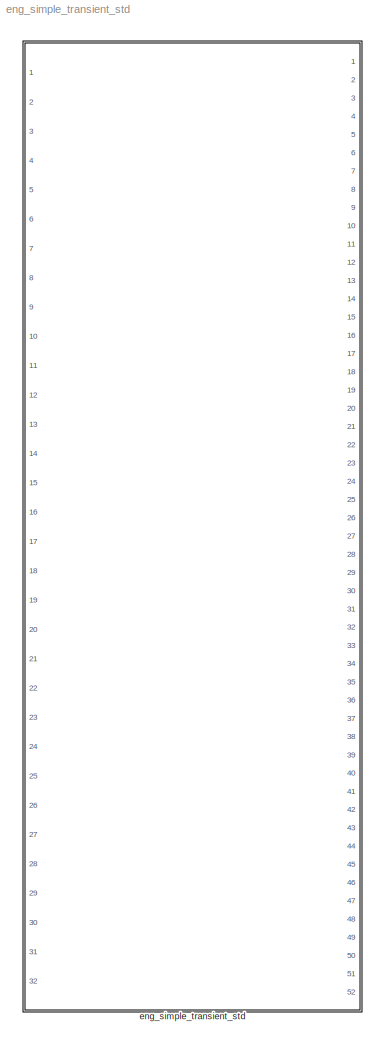
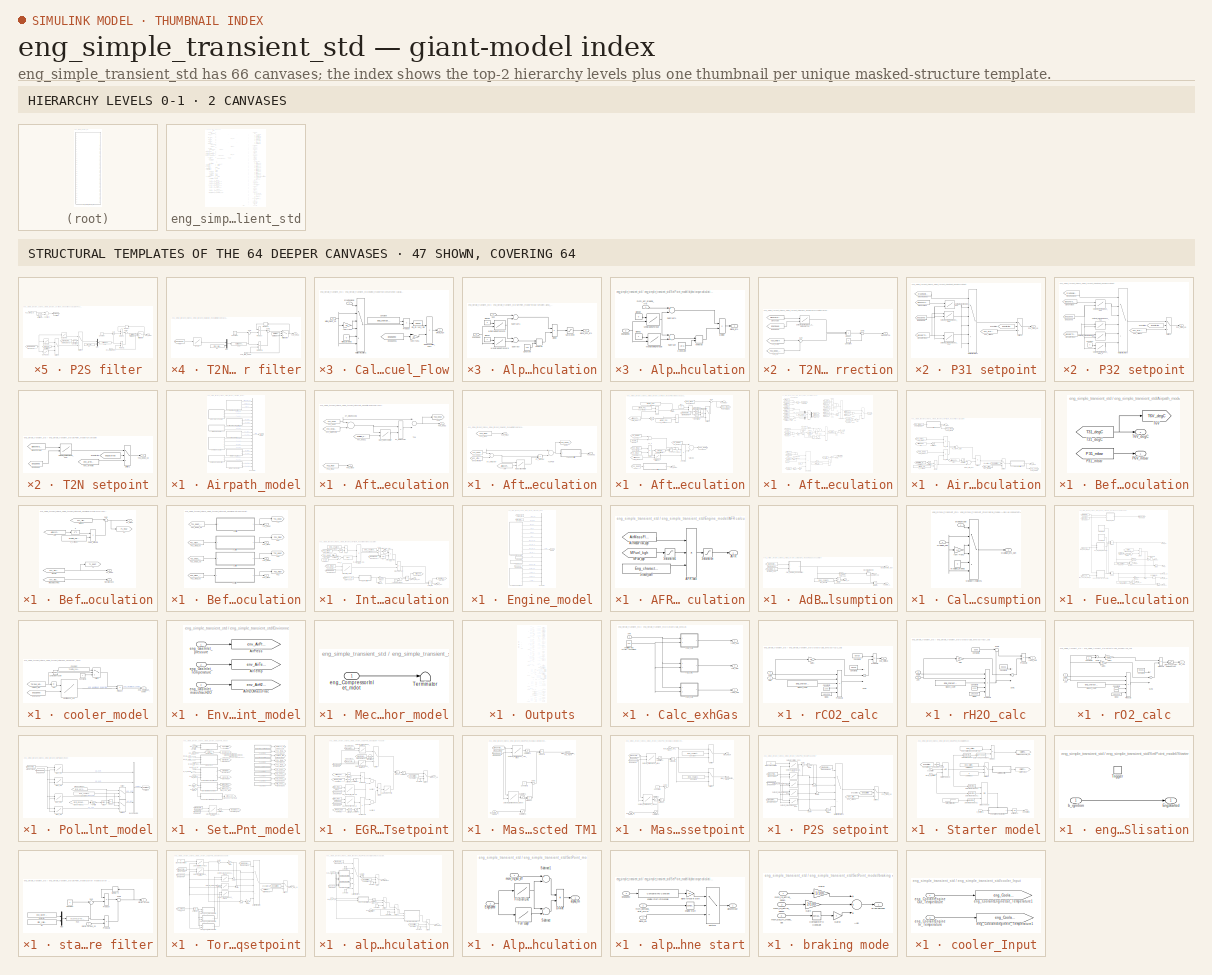
[diagram: thumbnail index - top-2 hierarchy levels (2 canvases) + 47 structural-template representatives of the remaining 64 canvases]
MODEL eng_simple_transient_std
KIND library
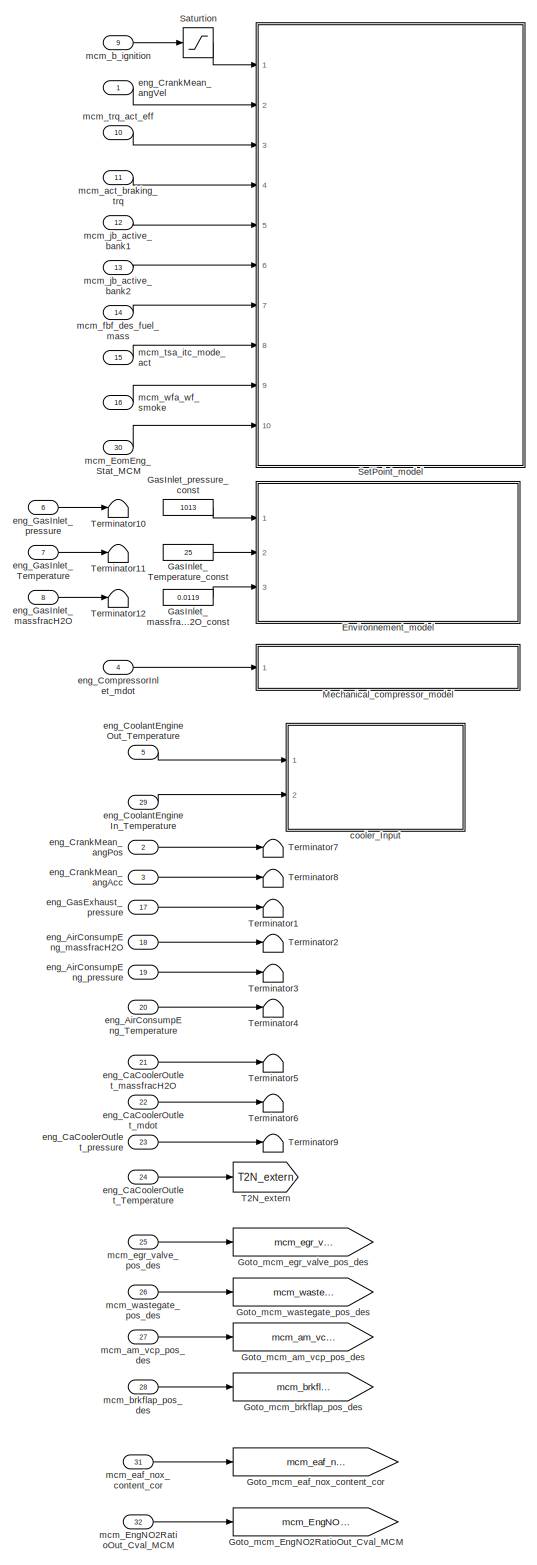
[diagram: eng_simple_transient_std - part 1/6, left side, full height]
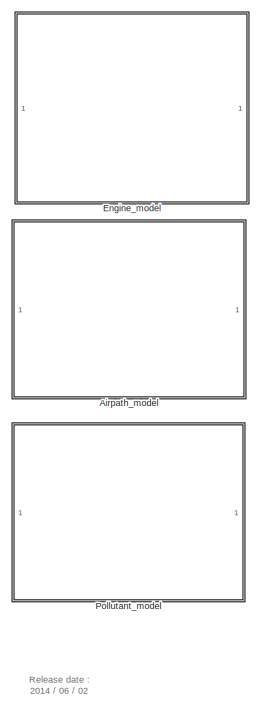
[diagram: eng_simple_transient_std - part 2/6, top center region]
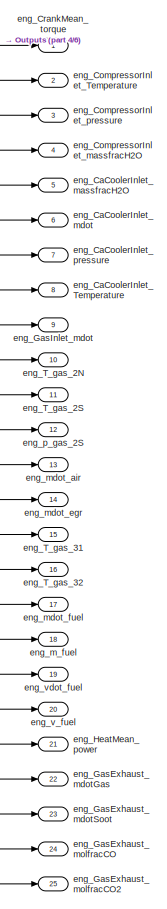
[diagram: eng_simple_transient_std - part 3/6, top right region]
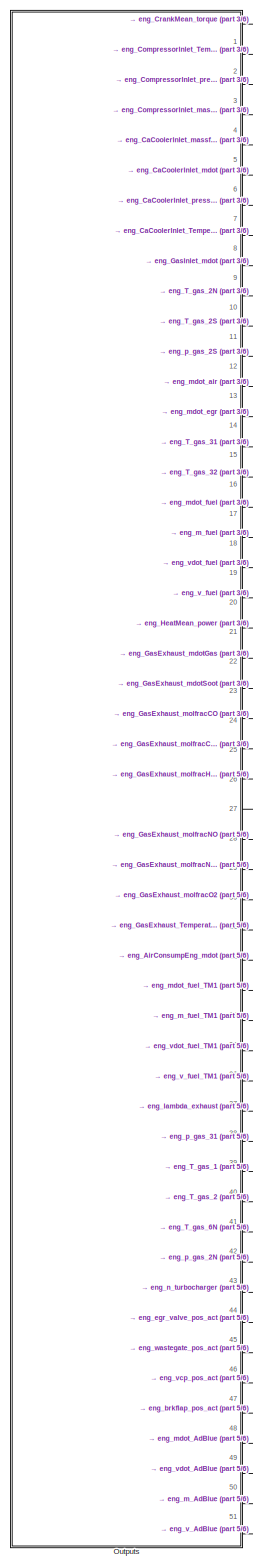
[diagram: eng_simple_transient_std - part 4/6, center side, full height]
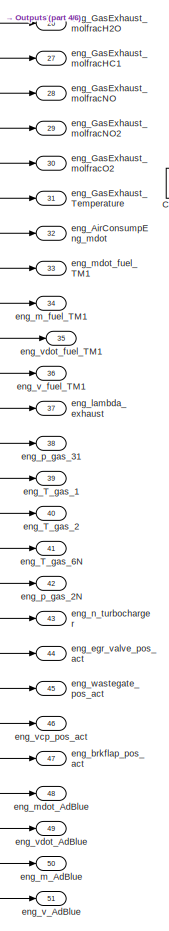
[diagram: eng_simple_transient_std - part 5/6, bottom right region]
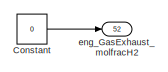
[diagram: eng_simple_transient_std - part 6/6, middle right region]
BLOCK [SubSystem] eng_simple_transient_std
  Ports = [32, 52]
  RequestExecContextInheritance = off
  SID = 1
  SystemSampleTime = 0.01
  TreatAsAtomicUnit = on
  Variant = off
BLOCK [SubSystem] eng_simple_transient_std/Airpath_model
  Ports = []
  RequestExecContextInheritance = off
  SID = 16
  Variant = off
BLOCK [SubSystem] eng_simple_transient_std/Airpath_model/After EGR cooler calculation
  Ports = [0, 2]
  RequestExecContextInheritance = off
  SID = 17
  Variant = off
BLOCK [Lookup2D] eng_simple_transient_std/Airpath_model/After EGR cooler calculation/Map_EGRcoolerEff
  ColumnIndex = Airpath_EGRcooler_x_EGR_flow
  InputSameDT = off
  RowIndex = Airpath_EGRcooler_y_delta_Temp
  SID = 18
  SaturateOnIntegerOverflow = off
  Table = Airpath_EGRcooler_z_efficiency
BLOCK [From] eng_simple_transient_std/Airpath_model/After EGR cooler calculation/P2S_mbar
  GotoTag = P2S_mbar
  SID = 19
  TagVisibility = global
BLOCK [Outport] eng_simple_transient_std/Airpath_model/After EGR cooler calculation/P6N_mbar
  IconDisplay = Port number
  SID = 27
BLOCK [Sum] eng_simple_transient_std/Airpath_model/After EGR cooler calculation/T6N
  InputSameDT = off
  Inputs = +-
  OutDataTypeStr = Inherit: Inherit via internal rule
  Ports = [2, 1]
  SID = 20
  SaturateOnIntegerOverflow = off
BLOCK [Goto] eng_simple_transient_std/Airpath_model/After EGR cooler calculation/T6N1
  GotoTag = T6N_degC
  SID = 21
  TagVisibility = global
BLOCK [Outport] eng_simple_transient_std/Airpath_model/After EGR cooler calculation/T6N_degC
  IconDisplay = Port number
  Port = 2
  SID = 28
BLOCK [From] eng_simple_transient_std/Airpath_model/After EGR cooler calculation/T6V_degC
  GotoTag = T6V_degC
  SID = 22
  TagVisibility = global
BLOCK [From] eng_simple_transient_std/Airpath_model/After EGR cooler calculation/T6V_degC1
  GotoTag = EGRflow_kgh
  SID = 23
  TagVisibility = global
BLOCK [Product] eng_simple_transient_std/Airpath_model/After EGR cooler calculation/dT_EGRcooler
  InputSameDT = off
  Inputs = **
  OutDataTypeStr = Inherit: Inherit via internal rule
  Ports = [2, 1]
  RndMeth = Floor
  SID = 24
  SaturateOnIntegerOverflow = off
BLOCK [Sum] eng_simple_transient_std/Airpath_model/After EGR cooler calculation/dT_bfEGRCooler1
  InputSameDT = off
  Inputs = +-
  OutDataTypeStr = Inherit: Inherit via internal rule
  Ports = [2, 1]
  SID = 25
  SaturateOnIntegerOverflow = off
BLOCK [From] eng_simple_transient_std/Airpath_model/After EGR cooler calculation/env_WaterTemp
  GotoTag = eng_CoolantEngineOut_Temperature
  SID = 26
  TagVisibility = global
BLOCK [SubSystem] eng_simple_transient_std/Airpath_model/After air cooler calculation
  Ports = [0, 2]
  RequestExecContextInheritance = off
  SID = 29
  Variant = off
BLOCK [From] eng_simple_transient_std/Airpath_model/After air cooler calculation/AMF
  GotoTag = AirMassFlow_kgh
  SID = 30
  TagVisibility = global
BLOCK [Goto] eng_simple_transient_std/Airpath_model/After air cooler calculation/Goto1
  GotoTag = T2N_degC_wf
  SID = 31
  TagVisibility = global
BLOCK [Lookup2D] eng_simple_transient_std/Airpath_model/After air cooler calculation/Map_AirCoolerEff
  ColumnIndex = Airpath_aircooler_x_ML_kgh
  InputSameDT = off
  LookUpMeth = Interpolation-Use End Values
  RowIndex = Airpath_aircooler_y_delta_Temp
  SID = 32
  SaturateOnIntegerOverflow = off
  Table = Airpath_aircooler_z_efficiency
BLOCK [Outport] eng_simple_transient_std/Airpath_model/After air cooler calculation/P2N_mbar
  IconDisplay = Port number
  SID = 40
BLOCK [From] eng_simple_transient_std/Airpath_model/After air cooler calculation/P2S_mbar
  GotoTag = P2S_mbar
  SID = 33
  TagVisibility = global
BLOCK [Sum] eng_simple_transient_std/Airpath_model/After air cooler calculation/T2N Flow
  InputSameDT = off
  Inputs = +-
  OutDataTypeStr = Inherit: Inherit via internal rule
  Ports = [2, 1]
  SID = 34
  SaturateOnIntegerOverflow = off
BLOCK [SubSystem] eng_simple_transient_std/Airpath_model/After air cooler calculation/T2N sensor filter
  AncestorBlock = ControlLib/# First order filter
  Ports = [1, 1]
  RequestExecContextInheritance = off
  SID = 35
  Variant = off
BLOCK [Constant] eng_simple_transient_std/Airpath_model/After air cooler calculation/T2N sensor filter/Constant
  SID = 35:2
BLOCK [DigitalClock] eng_simple_transient_std/Airpath_model/After air cooler calculation/T2N sensor filter/Digital Clock
  SID = 35:19
  SampleTime = -1
BLOCK [Fcn] eng_simple_transient_std/Airpath_model/After air cooler calculation/T2N sensor filter/Fcn
  Expr = u(2)/(u(2)+u(1))
  SID = 35:3
BLOCK [From] eng_simple_transient_std/Airpath_model/After air cooler calculation/T2N sensor filter/From
  GotoTag = EngSpeed
  SID = 35:16
  TagVisibility = global
BLOCK [Switch] eng_simple_transient_std/Airpath_model/After air cooler calculation/T2N sensor filter/Initialisation
  Criteria = u2 > Threshold
  InputSameDT = off
  SID = 35:18
  SaturateOnIntegerOverflow = off
BLOCK [Memory] eng_simple_transient_std/Airpath_model/After air cooler calculation/T2N sensor filter/Memory4
  InheritSampleTime = on
  SID = 35:5
BLOCK [Mux] eng_simple_transient_std/Airpath_model/After air cooler calculation/T2N sensor filter/Mux
  DisplayOption = bar
  Inputs = 2
  Ports = [2, 1]
  SID = 35:6
BLOCK [Product] eng_simple_transient_std/Airpath_model/After air cooler calculation/T2N sensor filter/Product
  Ports = [2, 1]
  RndMeth = Floor
  SID = 35:7
BLOCK [Product] eng_simple_transient_std/Airpath_model/After air cooler calculation/T2N sensor filter/Product1
  Ports = [2, 1]
  RndMeth = Floor
  SID = 35:8
BLOCK [Sum] eng_simple_transient_std/Airpath_model/After air cooler calculation/T2N sensor filter/Sum
  IconShape = round
  Inputs = |+-
  Ports = [2, 1]
  SID = 35:9
BLOCK [Sum] eng_simple_transient_std/Airpath_model/After air cooler calculation/T2N sensor filter/Sum1
  IconShape = round
  Inputs = |++
  Ports = [2, 1]
  SID = 35:10
BLOCK [Outport] eng_simple_transient_std/Airpath_model/After air cooler calculation/T2N sensor filter/T2N_degC
  IconDisplay = Port number
  SID = 35:13
BLOCK [Inport] eng_simple_transient_std/Airpath_model/After air cooler calculation/T2N sensor filter/T2N_flow_degC
  IconDisplay = Port number
  SID = 35:1
BLOCK [Constant] eng_simple_transient_std/Airpath_model/After air cooler calculation/T2N sensor filter/dt
  SID = 35:11
  Value = Fiter_calibration_dt
BLOCK [Lookup] eng_simple_transient_std/Airpath_model/After air cooler calculation/T2N sensor filter/tc T2N
  InputValues = Fiter_calibration_fmode_x_NMOT_rpm
  LookUpMeth = Interpolation-Use End Values
  SID = 35:15
  SaturateOnIntegerOverflow = off
  Table = Fiter_calibration_fmode_y_tc_T2N
BLOCK [Outport] eng_simple_transient_std/Airpath_model/After air cooler calculation/T2N_degC
  IconDisplay = Port number
  Port = 2
  SID = 41
BLOCK [From] eng_simple_transient_std/Airpath_model/After air cooler calculation/T2V_degC
  GotoTag = T2V_degC
  SID = 36
  TagVisibility = global
BLOCK [Product] eng_simple_transient_std/Airpath_model/After air cooler calculation/dT_AirCooler
  InputSameDT = off
  Inputs = **
  OutDataTypeStr = Inherit: Inherit via internal rule
  Ports = [2, 1]
  RndMeth = Floor
  SID = 37
  SaturateOnIntegerOverflow = off
BLOCK [Sum] eng_simple_transient_std/Airpath_model/After air cooler calculation/dT_bfAirCooler
  InputSameDT = off
  Inputs = +-
  OutDataTypeStr = Inherit: Inherit via internal rule
  Ports = [2, 1]
  SID = 38
  SaturateOnIntegerOverflow = off
BLOCK [From] eng_simple_transient_std/Airpath_model/After air cooler calculation/env_AirTemp
  GotoTag = env_AirTemp
  SID = 39
  TagVisibility = global
BLOCK [SubSystem] eng_simple_transient_std/Airpath_model/After compressor calculation
  Ports = [0, 2]
  RequestExecContextInheritance = off
  SID = 42
  Variant = off
BLOCK [Fcn] eng_simple_transient_std/Airpath_model/After compressor calculation/(P2//P1)^((g-1)//g)
  Expr = u^((1.4-1)/1.4)
  SID = 43
BLOCK [From] eng_simple_transient_std/Airpath_model/After compressor calculation/AMF_kgh
  GotoTag = AirMassFlow_kgh
  SID = 44
  TagVisibility = global
BLOCK [From] eng_simple_transient_std/Airpath_model/After compressor calculation/AMF_kgh1
  GotoTag = AirMassFlow_kgh
  SID = 45
  TagVisibility = global
BLOCK [Reference] eng_simple_transient_std/Airpath_model/After compressor calculation/Compare\nTo Constant  REF=simulink/Logic and Bit\nOperations/Compare\nTo Constant
  OutDataTypeStr = uint8
  Ports = [1, 1]
  SID = 758
  SourceBlock = simulink/Logic and Bit\nOperations/Compare\nTo Constant
  SourceType = Compare To Constant
  ZeroCross = on
  const = 3.0
  relop = <=
BLOCK [Reference] eng_simple_transient_std/Airpath_model/After compressor calculation/Compare\nTo Constant1  REF=simulink/Logic and Bit\nOperations/Compare\nTo Constant
  OutDataTypeStr = uint8
  Ports = [1, 1]
  SID = 759
  SourceBlock = simulink/Logic and Bit\nOperations/Compare\nTo Constant
  SourceType = Compare To Constant
  ZeroCross = on
  const = 1
  relop = >=
BLOCK [Lookup2D] eng_simple_transient_std/Airpath_model/After compressor calculation/Compressor efficiency
  ColumnIndex = Airpath_compressor_x_massFlow_kgh
  InputSameDT = off
  LookUpMeth = Interpolation-Use End Values
  RowIndex = Airpath_compressor_y_PressRatio
  SID = 46
  SaturateOnIntegerOverflow = off
  Table = Airpath_compressor_z_Efficiency
BLOCK [Logic] eng_simple_transient_std/Airpath_model/After compressor calculation/Logical\nOperator
  AllPortsSameDT = off
  OutDataTypeStr = boolean
  Ports = [2, 1]
  SID = 760
BLOCK [MinMax] eng_simple_transient_std/Airpath_model/After compressor calculation/MinMax
  Function = max
  InputSameDT = off
  Inputs = 2
  Ports = [2, 1]
  SID = 47
  SaturateOnIntegerOverflow = off
BLOCK [Fcn] eng_simple_transient_std/Airpath_model/After compressor calculation/P
  Expr = u^2
  SID = 48
BLOCK [From] eng_simple_transient_std/Airpath_model/After compressor calculation/P1_mbar
  GotoTag = P1_mbar
  SID = 49
  TagVisibility = global
BLOCK [Product] eng_simple_transient_std/Airpath_model/After compressor calculation/P2//P1
  InputSameDT = off
  Inputs = */
  OutDataTypeStr = Inherit: Inherit via internal rule
  Ports = [2, 1]
  RndMeth = Floor
  SID = 50
  SaturateOnIntegerOverflow = off
BLOCK [From] eng_simple_transient_std/Airpath_model/After compressor calculation/P2S_mbar
  GotoTag = P2S_mbar
  SID = 51
  TagVisibility = global
BLOCK [Outport] eng_simple_transient_std/Airpath_model/After compressor calculation/P2V_mbar
  IconDisplay = Port number
  SID = 75
BLOCK [From] eng_simple_transient_std/Airpath_model/After compressor calculation/P2V_mbar1
  GotoTag = P2V_mbar
  SID = 52
  TagVisibility = global
BLOCK [Goto] eng_simple_transient_std/Airpath_model/After compressor calculation/P2V_mbar_2
  GotoTag = P2V_mbar
  SID = 53
  TagVisibility = global
BLOCK [Product] eng_simple_transient_std/Airpath_model/After compressor calculation/PxV1
  InputSameDT = off
  OutDataTypeStr = Inherit: Inherit via internal rule
  Ports = [2, 1]
  SID = 54
  SaturateOnIntegerOverflow = off
BLOCK [Product] eng_simple_transient_std/Airpath_model/After compressor calculation/PxV2
  InputSameDT = off
  OutDataTypeStr = Inherit: Inherit via internal rule
  Ports = [2, 1]
  SID = 55
  SaturateOnIntegerOverflow = off
BLOCK [Sum] eng_simple_transient_std/Airpath_model/After compressor calculation/Sum
  IconShape = round
  InputSameDT = off
  Inputs = |++
  OutDataTypeStr = Inherit: Inherit via internal rule
  Ports = [2, 1]
  SID = 56
  SaturateOnIntegerOverflow = off
BLOCK [Sum] eng_simple_transient_std/Airpath_model/After compressor calculation/Sum1
  IconShape = round
  InputSameDT = off
  Inputs = ++|
  OutDataTypeStr = Inherit: Inherit via internal rule
  Ports = [2, 1]
  SID = 57
  SaturateOnIntegerOverflow = off
BLOCK [Switch] eng_simple_transient_std/Airpath_model/After compressor calculation/Switch3
  Criteria = u2 > Threshold
  InputSameDT = off
  SID = 58
  SaturateOnIntegerOverflow = off
BLOCK [Sum] eng_simple_transient_std/Airpath_model/After compressor calculation/T1_K
  InputSameDT = off
  OutDataTypeStr = Inherit: Inherit via internal rule
  Ports = [2, 1]
  SID = 59
  SaturateOnIntegerOverflow = off
BLOCK [From] eng_simple_transient_std/Airpath_model/After compressor calculation/T1_degC
  GotoTag = T1_degC
  SID = 60
  TagVisibility = global
BLOCK [From] eng_simple_transient_std/Airpath_model/After compressor calculation/T1_degC1
  GotoTag = T1_degC
  SID = 61
  TagVisibility = global
BLOCK [Goto] eng_simple_transient_std/Airpath_model/After compressor calculation/T2V
  GotoTag = T2V_degC
  SID = 62
  TagVisibility = global
BLOCK [SubSystem] eng_simple_transient_std/Airpath_model/After compressor calculation/T2V sensor filter
  AncestorBlock = ControlLib/# First order filter
  Ports = [1, 1]
  RequestExecContextInheritance = off
  SID = 63
  Variant = off
BLOCK [Constant] eng_simple_transient_std/Airpath_model/After compressor calculation/T2V sensor filter/Constant
  SID = 63:2
BLOCK [DigitalClock] eng_simple_transient_std/Airpath_model/After compressor calculation/T2V sensor filter/Digital Clock
  SID = 63:19
  SampleTime = -1
BLOCK [From] eng_simple_transient_std/Airpath_model/After compressor calculation/T2V sensor filter/EngSpeed
  GotoTag = EngSpeed
  SID = 63:16
  TagVisibility = global
BLOCK [Fcn] eng_simple_transient_std/Airpath_model/After compressor calculation/T2V sensor filter/Fcn
  Expr = u(2)/(u(2)+u(1))
  SID = 63:3
BLOCK [Switch] eng_simple_transient_std/Airpath_model/After compressor calculation/T2V sensor filter/Initialisation
  Criteria = u2 > Threshold
  InputSameDT = off
  SID = 63:18
  SaturateOnIntegerOverflow = off
BLOCK [Memory] eng_simple_transient_std/Airpath_model/After compressor calculation/T2V sensor filter/Memory4
  InheritSampleTime = on
  SID = 63:5
BLOCK [Mux] eng_simple_transient_std/Airpath_model/After compressor calculation/T2V sensor filter/Mux
  DisplayOption = bar
  Inputs = 2
  Ports = [2, 1]
  SID = 63:6
BLOCK [Product] eng_simple_transient_std/Airpath_model/After compressor calculation/T2V sensor filter/Product
  Ports = [2, 1]
  RndMeth = Floor
  SID = 63:7
BLOCK [Product] eng_simple_transient_std/Airpath_model/After compressor calculation/T2V sensor filter/Product1
  Ports = [2, 1]
  RndMeth = Floor
  SID = 63:8
BLOCK [Sum] eng_simple_transient_std/Airpath_model/After compressor calculation/T2V sensor filter/Sum
  IconShape = round
  Inputs = |+-
  Ports = [2, 1]
  SID = 63:9
BLOCK [Sum] eng_simple_transient_std/Airpath_model/After compressor calculation/T2V sensor filter/Sum1
  IconShape = round
  Inputs = |++
  Ports = [2, 1]
  SID = 63:10
BLOCK [Outport] eng_simple_transient_std/Airpath_model/After compressor calculation/T2V sensor filter/T2V_degC
  IconDisplay = Port number
  SID = 63:13
BLOCK [Inport] eng_simple_transient_std/Airpath_model/After compressor calculation/T2V sensor filter/T2V_flow_degC
  IconDisplay = Port number
  SID = 63:1
BLOCK [Constant] eng_simple_transient_std/Airpath_model/After compressor calculation/T2V sensor filter/dt
  SID = 63:11
  Value = Fiter_calibration_dt
BLOCK [Lookup] eng_simple_transient_std/Airpath_model/After compressor calculation/T2V sensor filter/tc T2V
  InputValues = Fiter_calibration_fmode_x_NMOT_rpm
  LookUpMeth = Interpolation-Use End Values
  SID = 63:14
  SaturateOnIntegerOverflow = off
  Table = Fiter_calibration_fmode_y_tc_T2V
BLOCK [From] eng_simple_transient_std/Airpath_model/After compressor calculation/T2V1
  GotoTag = T2V_degC
  SID = 64
  TagVisibility = global
BLOCK [Outport] eng_simple_transient_std/Airpath_model/After compressor calculation/T2V_degC
  IconDisplay = Port number
  Port = 2
  SID = 76
BLOCK [Product] eng_simple_transient_std/Airpath_model/After compressor calculation/T2_ad
  InputSameDT = off
  Inputs = **
  OutDataTypeStr = Inherit: Inherit via internal rule
  Ports = [2, 1]
  RndMeth = Floor
  SID = 65
  SaturateOnIntegerOverflow = off
BLOCK [Sum] eng_simple_transient_std/Airpath_model/After compressor calculation/TaftComp
  InputSameDT = off
  OutDataTypeStr = Inherit: Inherit via internal rule
  Ports = [2, 1]
  SID = 66
  SaturateOnIntegerOverflow = off
BLOCK [From] eng_simple_transient_std/Airpath_model/After compressor calculation/brakingMode
  GotoTag = brakingMode
  SID = 67
  TagVisibility = global
BLOCK [Product] eng_simple_transient_std/Airpath_model/After compressor calculation/dTcomp
  InputSameDT = off
  Inputs = */
  OutDataTypeStr = Inherit: Inherit via internal rule
  Ports = [2, 1]
  RndMeth = Floor
  SID = 68
  SaturateOnIntegerOverflow = off
BLOCK [Sum] eng_simple_transient_std/Airpath_model/After compressor calculation/dTcompAd
  InputSameDT = off
  Inputs = -+
  OutDataTypeStr = Inherit: Inherit via internal rule
  Ports = [2, 1]
  SID = 69
  SaturateOnIntegerOverflow = off
BLOCK [Constant] eng_simple_transient_std/Airpath_model/After compressor calculation/deg->K
  SID = 70
  Value = 273.15
BLOCK [Constant] eng_simple_transient_std/Airpath_model/After compressor calculation/max
  SID = 71
  Value = 0
BLOCK [Constant] eng_simple_transient_std/Airpath_model/After compressor calculation/n_cylinder
  SID = 72
  Value = Airpath_Pdrop_aircooler_coeff
BLOCK [Constant] eng_simple_transient_std/Airpath_model/After compressor calculation/n_cylinder1
  SID = 73
  Value = Airpath_Pdrop_aircooler_coeffBr_a1
BLOCK [Constant] eng_simple_transient_std/Airpath_model/After compressor calculation/n_cylinder2
  SID = 74
  Value = Airpath_Pdrop_aircooler_coeffBr_a2
BLOCK [SubSystem] eng_simple_transient_std/Airpath_model/After turbine calculation
  Ports = [0, 2]
  RequestExecContextInheritance = off
  SID = 77
  Variant = off
BLOCK [Fcn] eng_simple_transient_std/Airpath_model/After turbine calculation/(P4//P3)^((g-1)//g)
  Expr = u^((1.4-1)/1.4)
  SID = 78
BLOCK [From] eng_simple_transient_std/Airpath_model/After turbine calculation/AMF
  GotoTag = AirMassFlow_kgh
  SID = 79
  TagVisibility = global
BLOCK [From] eng_simple_transient_std/Airpath_model/After turbine calculation/AMF1
  GotoTag = AirMassFlow_kgh
  SID = 80
  TagVisibility = global
BLOCK [Sum] eng_simple_transient_std/Airpath_model/After turbine calculation/Add
  InputSameDT = off
  OutDataTypeStr = Inherit: Inherit via internal rule
  Ports = [2, 1]
  SID = 81
  SaturateOnIntegerOverflow = off
BLOCK [Sum] eng_simple_transient_std/Airpath_model/After turbine calculation/Add1
  InputSameDT = off
  OutDataTypeStr = Inherit: Inherit via internal rule
  Ports = [2, 1]
  SID = 82
  SaturateOnIntegerOverflow = off
BLOCK [Sum] eng_simple_transient_std/Airpath_model/After turbine calculation/Add4
  InputSameDT = off
  Inputs = +-
  OutDataTypeStr = Inherit: Inherit via internal rule
  Ports = [2, 1]
  SID = 83
  SaturateOnIntegerOverflow = off
BLOCK [Sum] eng_simple_transient_std/Airpath_model/After turbine calculation/Add6
  InputSameDT = off
  Inputs = +-
  OutDataTypeStr = Inherit: Inherit via internal rule
  Ports = [2, 1]
  SID = 84
  SaturateOnIntegerOverflow = off
BLOCK [Demux] eng_simple_transient_std/Airpath_model/After turbine calculation/Demux
  DisplayOption = bar
  Outputs = 2
  Ports = [1, 2]
  SID = 85
BLOCK [From] eng_simple_transient_std/Airpath_model/After turbine calculation/EGRflow
  GotoTag = EGRflow_kgh
  SID = 86
  TagVisibility = global
BLOCK [From] eng_simple_transient_std/Airpath_model/After turbine calculation/EGRflow3
  GotoTag = EGRflow_kgh
  SID = 87
  TagVisibility = global
BLOCK [From] eng_simple_transient_std/Airpath_model/After turbine calculation/EGRflow5
  GotoTag = EGRflow_kgh
  SID = 88
  TagVisibility = global
BLOCK [From] eng_simple_transient_std/Airpath_model/After turbine calculation/EGRflow7
  GotoTag = beforeEGRflow
  SID = 89
  TagVisibility = global
BLOCK [Sum] eng_simple_transient_std/Airpath_model/After turbine calculation/ExhaustMassFlow
  InputSameDT = off
  OutDataTypeStr = Inherit: Inherit via internal rule
  Ports = [2, 1]
  SID = 90
  SaturateOnIntegerOverflow = off
BLOCK [Sum] eng_simple_transient_std/Airpath_model/After turbine calculation/ExhaustMassFlow1
  InputSameDT = off
  Inputs = +++
  OutDataTypeStr = Inherit: Inherit via internal rule
  Ports = [3, 1]
  SID = 91
  SaturateOnIntegerOverflow = off
BLOCK [Product] eng_simple_transient_std/Airpath_model/After turbine calculation/ExhaustVolFlow
  InputSameDT = off
  Inputs = ***/
  OutDataTypeStr = Inherit: Inherit via internal rule
  Ports = [4, 1]
  RndMeth = Floor
  SID = 92
  SaturateOnIntegerOverflow = off
BLOCK [Gain] eng_simple_transient_std/Airpath_model/After turbine calculation/Gain1
  Gain = 1/2
  OutDataTypeStr = Inherit: Inherit via internal rule
  ParamDataTypeStr = Inherit: Inherit via internal rule
  SID = 93
  SaturateOnIntegerOverflow = off
BLOCK [Gain] eng_simple_transient_std/Airpath_model/After turbine calculation/Gain2
  Gain = 1/2
  OutDataTypeStr = Inherit: Inherit via internal rule
  ParamDataTypeStr = Inherit: Inherit via internal rule
  SID = 94
  SaturateOnIntegerOverflow = off
BLOCK [Gain] eng_simple_transient_std/Airpath_model/After turbine calculation/Gain3
  Gain = 1/2
  OutDataTypeStr = Inherit: Inherit via internal rule
  ParamDataTypeStr = Inherit: Inherit via internal rule
  SID = 95
  SaturateOnIntegerOverflow = off
BLOCK [Gain] eng_simple_transient_std/Airpath_model/After turbine calculation/Gain6
  Gain = 1/2
  OutDataTypeStr = Inherit: Inherit via internal rule
  ParamDataTypeStr = Inherit: Inherit via internal rule
  SID = 96
  SaturateOnIntegerOverflow = off
BLOCK [Sum] eng_simple_transient_std/Airpath_model/After turbine calculation/MFlow1
  InputSameDT = off
  OutDataTypeStr = Inherit: Inherit via internal rule
  Ports = [2, 1]
  SID = 97
  SaturateOnIntegerOverflow = off
BLOCK [Sum] eng_simple_transient_std/Airpath_model/After turbine calculation/MFlow2
  InputSameDT = off
  OutDataTypeStr = Inherit: Inherit via internal rule
  Ports = [2, 1]
  SID = 98
  SaturateOnIntegerOverflow = off
BLOCK [Sum] eng_simple_transient_std/Airpath_model/After turbine calculation/MFlow3
  InputSameDT = off
  OutDataTypeStr = Inherit: Inherit via internal rule
  Ports = [2, 1]
  SID = 99
  SaturateOnIntegerOverflow = off
BLOCK [Goto] eng_simple_transient_std/Airpath_model/After turbine calculation/MFlow31_kgh
  GotoTag = MFlow31_kgh
  SID = 100
BLOCK [From] eng_simple_transient_std/Airpath_model/After turbine calculation/MFlow31_kgh1
  GotoTag = MFlow31_kgh
  SID = 101
BLOCK [From] eng_simple_transient_std/Airpath_model/After turbine calculation/MFlow31_kgh2
  GotoTag = MFlow31_kgh
  SID = 102
BLOCK [From] eng_simple_transient_std/Airpath_model/After turbine calculation/MFlow31_kgh3
  GotoTag = MFlow31_kgh
  SID = 103
BLOCK [Goto] eng_simple_transient_std/Airpath_model/After turbine calculation/MFlow32_kgh
  GotoTag = MFlow32_kgh
  SID = 104
BLOCK [From] eng_simple_transient_std/Airpath_model/After turbine calculation/MFlow32_kgh1
  GotoTag = MFlow32_kgh
  SID = 105
BLOCK [From] eng_simple_transient_std/Airpath_model/After turbine calculation/MFlow32_kgh2
  GotoTag = MFlow32_kgh
  SID = 106
BLOCK [From] eng_simple_transient_std/Airpath_model/After turbine calculation/MFlow32_kgh3
  GotoTag = MFlow32_kgh
  SID = 107
BLOCK [From] eng_simple_transient_std/Airpath_model/After turbine calculation/Mfuel
  GotoTag = MFuel_kgh
  SID = 108
  TagVisibility = global
BLOCK [From] eng_simple_transient_std/Airpath_model/After turbine calculation/Mfuel1
  GotoTag = MFuel_kgh
  SID = 109
  TagVisibility = global
BLOCK [Mux] eng_simple_transient_std/Airpath_model/After turbine calculation/Mux
  DisplayOption = bar
  Inputs = 2
  Ports = [2, 1]
  SID = 110
BLOCK [Mux] eng_simple_transient_std/Airpath_model/After turbine calculation/Mux1
  DisplayOption = bar
  Inputs = 2
  Ports = [2, 1]
  SID = 111
BLOCK [Fcn] eng_simple_transient_std/Airpath_model/After turbine calculation/P
  Expr = u^2
  SID = 112
BLOCK [From] eng_simple_transient_std/Airpath_model/After turbine calculation/P31_mbar
  GotoTag = P31_mbar
  SID = 113
  TagVisibility = global
BLOCK [From] eng_simple_transient_std/Airpath_model/After turbine calculation/P32_mbar
  GotoTag = P32_mbar
  SID = 114
  TagVisibility = global
BLOCK [Product] eng_simple_transient_std/Airpath_model/After turbine calculation/P4//P3
  InputSameDT = off
  Inputs = */
  OutDataTypeStr = Inherit: Inherit via internal rule
  Ports = [2, 1]
  RndMeth = Floor
  SID = 115
  SaturateOnIntegerOverflow = off
BLOCK [Product] eng_simple_transient_std/Airpath_model/After turbine calculation/P4//P3_2
  InputSameDT = off
  Inputs = */
  OutDataTypeStr = Inherit: Inherit via internal rule
  Ports = [2, 1]
  RndMeth = Floor
  SID = 116
  SaturateOnIntegerOverflow = off
BLOCK [Outport] eng_simple_transient_std/Airpath_model/After turbine calculation/P4_mbar
  IconDisplay = Port number
  SID = 157
BLOCK [From] eng_simple_transient_std/Airpath_model/After turbine calculation/P4_mbar1
  GotoTag = P4_mbar
  SID = 117
BLOCK [Goto] eng_simple_transient_std/Airpath_model/After turbine calculation/P4_mbar2
  GotoTag = P4_mbar
  SID = 118
BLOCK [From] eng_simple_transient_std/Airpath_model/After turbine calculation/P4_mbar3
  GotoTag = P4_mbar
  SID = 119
BLOCK [Product] eng_simple_transient_std/Airpath_model/After turbine calculation/Product
  InputSameDT = off
  OutDataTypeStr = Inherit: Inherit via internal rule
  Ports = [2, 1]
  SID = 120
  SaturateOnIntegerOverflow = off
BLOCK [Product] eng_simple_transient_std/Airpath_model/After turbine calculation/Product1
  InputSameDT = off
  OutDataTypeStr = Inherit: Inherit via internal rule
  Ports = [2, 1]
  SID = 121
  SaturateOnIntegerOverflow = off
BLOCK [Product] eng_simple_transient_std/Airpath_model/After turbine calculation/PxV2
  InputSameDT = off
  OutDataTypeStr = Inherit: Inherit via internal rule
  Ports = [2, 1]
  SID = 122
  SaturateOnIntegerOverflow = off
BLOCK [Saturate] eng_simple_transient_std/Airpath_model/After turbine calculation/Saturation
  InputPortMap = u0
  LowerLimit = 0.1
  Ports = [1, 1]
  SID = 123
  UpperLimit = inf
BLOCK [Sum] eng_simple_transient_std/Airpath_model/After turbine calculation/Sum
  IconShape = round
  InputSameDT = off
  Inputs = |++
  OutDataTypeStr = Inherit: Inherit via internal rule
  Ports = [2, 1]
  SID = 124
  SaturateOnIntegerOverflow = off
BLOCK [Sum] eng_simple_transient_std/Airpath_model/After turbine calculation/Sum2
  IconShape = round
  InputSameDT = off
  Inputs = |++
  OutDataTypeStr = Inherit: Inherit via internal rule
  Ports = [2, 1]
  SID = 125
  SaturateOnIntegerOverflow = off
BLOCK [Switch] eng_simple_transient_std/Airpath_model/After turbine calculation/Switch1
  Criteria = u2 > Threshold
  InputSameDT = off
  SID = 126
  SaturateOnIntegerOverflow = off
BLOCK [Switch] eng_simple_transient_std/Airpath_model/After turbine calculation/Switch3
  Criteria = u2 > Threshold
  InputSameDT = off
  SID = 127
  SaturateOnIntegerOverflow = off
BLOCK [Product] eng_simple_transient_std/Airpath_model/After turbine calculation/T3 weighted mean
  InputSameDT = off
  Inputs = */
  OutDataTypeStr = Inherit: Inherit via internal rule
  Ports = [2, 1]
  RndMeth = Floor
  SID = 128
  SaturateOnIntegerOverflow = off
BLOCK [From] eng_simple_transient_std/Airpath_model/After turbine calculation/T31_degC
  GotoTag = T31_degC
  SID = 129
  TagVisibility = global
BLOCK [From] eng_simple_transient_std/Airpath_model/After turbine calculation/T31_degC1
  GotoTag = T32_degC
  SID = 130
  TagVisibility = global
BLOCK [From] eng_simple_transient_std/Airpath_model/After turbine calculation/T31_degC2
  GotoTag = T31_degC
  SID = 131
  TagVisibility = global
BLOCK [From] eng_simple_transient_std/Airpath_model/After turbine calculation/T31_degC3
  GotoTag = T32_degC
  SID = 132
  TagVisibility = global
BLOCK [Goto] eng_simple_transient_std/Airpath_model/After turbine calculation/T3_degC
  GotoTag = T3_degC
  SID = 133
BLOCK [From] eng_simple_transient_std/Airpath_model/After turbine calculation/T3_degC2
  GotoTag = T3_degC
  SID = 134
BLOCK [From] eng_simple_transient_std/Airpath_model/After turbine calculation/T3_degC3
  GotoTag = T3_degC
  SID = 135
BLOCK [Product] eng_simple_transient_std/Airpath_model/After turbine calculation/T4_ad
  InputSameDT = off
  Inputs = **
  OutDataTypeStr = Inherit: Inherit via internal rule
  Ports = [2, 1]
  RndMeth = Floor
  SID = 136
  SaturateOnIntegerOverflow = off
BLOCK [Outport] eng_simple_transient_std/Airpath_model/After turbine calculation/T4_degC
  IconDisplay = Port number
  Port = 2
  SID = 158
BLOCK [Goto] eng_simple_transient_std/Airpath_model/After turbine calculation/T4_degC1
  GotoTag = T4_degC
  SID = 137
BLOCK [From] eng_simple_transient_std/Airpath_model/After turbine calculation/T4_degC2
  GotoTag = T4_degC
  SID = 138
BLOCK [Sum] eng_simple_transient_std/Airpath_model/After turbine calculation/TaftTurb
  InputSameDT = off
  Inputs = +-
  OutDataTypeStr = Inherit: Inherit via internal rule
  Ports = [2, 1]
  SID = 139
  SaturateOnIntegerOverflow = off
BLOCK [Sum] eng_simple_transient_std/Airpath_model/After turbine calculation/TbfTurb_K
  InputSameDT = off
  OutDataTypeStr = Inherit: Inherit via internal rule
  Ports = [2, 1]
  SID = 140
  SaturateOnIntegerOverflow = off
BLOCK [Lookup] eng_simple_transient_std/Airpath_model/After turbine calculation/Turbine efficiency
  InputValues = Airpath_turbine_x_PressRatio
  SID = 141
  SaturateOnIntegerOverflow = off
  Table = Airpath_turbine_y_Efficiency
BLOCK [UnitDelay] eng_simple_transient_std/Airpath_model/After turbine calculation/Unit Delay
  InitialCondition = 20
  SID = 142
  SampleTime = -1
BLOCK [UnitDelay] eng_simple_transient_std/Airpath_model/After turbine calculation/Unit Delay1
  InitialCondition = 1000
  SID = 143
  SampleTime = -1
BLOCK [Constant] eng_simple_transient_std/Airpath_model/After turbine calculation/assymetric turbine2
  SID = 144
  Value = Eng_characteristics_assymTurbine
BLOCK [Goto] eng_simple_transient_std/Airpath_model/After turbine calculation/beforeEGRflow
  GotoTag = beforeEGRflow
  SID = 145
BLOCK [From] eng_simple_transient_std/Airpath_model/After turbine calculation/beforeEGRflow5
  GotoTag = beforeEGRflow
  SID = 146
BLOCK [From] eng_simple_transient_std/Airpath_model/After turbine calculation/beforeEGRflow6
  GotoTag = beforeEGRflow
  SID = 147
BLOCK [Constant] eng_simple_transient_std/Airpath_model/After turbine calculation/const
  SID = 148
BLOCK [Product] eng_simple_transient_std/Airpath_model/After turbine calculation/dTturb
  InputSameDT = off
  Inputs = **
  OutDataTypeStr = Inherit: Inherit via internal rule
  Ports = [2, 1]
  RndMeth = Floor
  SID = 149
  SaturateOnIntegerOverflow = off
BLOCK [Sum] eng_simple_transient_std/Airpath_model/After turbine calculation/dTturbAd
  InputSameDT = off
  Inputs = +-
  OutDataTypeStr = Inherit: Inherit via internal rule
  Ports = [2, 1]
  SID = 150
  SaturateOnIntegerOverflow = off
BLOCK [Constant] eng_simple_transient_std/Airpath_model/After turbine calculation/deg->K
  SID = 151
  Value = 273.15
BLOCK [Constant] eng_simple_transient_std/Airpath_model/After turbine calculation/degC->K
  SID = 152
  Value = 273.15
BLOCK [From] eng_simple_transient_std/Airpath_model/After turbine calculation/env_AirPress
  GotoTag = env_AirPress
  SID = 153
  TagVisibility = global
BLOCK [Gain] eng_simple_transient_std/Airpath_model/After turbine calculation/gain
  Gain = 100
  OutDataTypeStr = Inherit: Inherit via internal rule
  ParamDataTypeStr = Inherit: Inherit via internal rule
  SID = 154
  SaturateOnIntegerOverflow = off
BLOCK [Constant] eng_simple_transient_std/Airpath_model/After turbine calculation/n_cylinder1
  SID = 155
  Value = Airpath_Pdrop_aftTurb_coeff
BLOCK [Constant] eng_simple_transient_std/Airpath_model/After turbine calculation/r
  SID = 156
  Value = 287
BLOCK [SubSystem] eng_simple_transient_std/Airpath_model/Airbox calculation
  Ports = [0, 2]
  RequestExecContextInheritance = off
  SID = 159
  Variant = off
BLOCK [From] eng_simple_transient_std/Airpath_model/Airbox calculation/AMF
  GotoTag = AirMassFlow_kgh
  SID = 160
  TagVisibility = global
BLOCK [From] eng_simple_transient_std/Airpath_model/Airbox calculation/AMF1
  GotoTag = AirMassFlow_kgh
  SID = 161
  TagVisibility = global
BLOCK [From] eng_simple_transient_std/Airpath_model/Airbox calculation/EGRflow
  GotoTag = EGRflow_kgh
  SID = 162
  TagVisibility = global
BLOCK [From] eng_simple_transient_std/Airpath_model/Airbox calculation/EngStarted
  GotoTag = EngStarted
  SID = 163
  TagVisibility = global
BLOCK [Product] eng_simple_transient_std/Airpath_model/Airbox calculation/FT_AIR
  InputSameDT = off
  OutDataTypeStr = Inherit: Inherit via internal rule
  Ports = [2, 1]
  SID = 164
  SaturateOnIntegerOverflow = off
BLOCK [Sum] eng_simple_transient_std/Airpath_model/Airbox calculation/FT_AIR+FT_EGR
  InputSameDT = off
  OutDataTypeStr = Inherit: Inherit via internal rule
  Ports = [2, 1]
  SID = 165
  SaturateOnIntegerOverflow = off
BLOCK [Product] eng_simple_transient_std/Airpath_model/Airbox calculation/FT_EGR
  InputSameDT = off
  OutDataTypeStr = Inherit: Inherit via internal rule
  Ports = [2, 1]
  SID = 166
  SaturateOnIntegerOverflow = off
BLOCK [Sum] eng_simple_transient_std/Airpath_model/Airbox calculation/Intake_flow_kgh
  InputSameDT = off
  OutDataTypeStr = Inherit: Inherit via internal rule
  Ports = [2, 1]
  SID = 167
  SaturateOnIntegerOverflow = off
BLOCK [SubSystem] eng_simple_transient_std/Airpath_model/Airbox calculation/P2S filter
  AncestorBlock = ControlLib/# First order filter
  Ports = [1, 1]
  RequestExecContextInheritance = off
  SID = 168
  Variant = off
BLOCK [Reference] eng_simple_transient_std/Airpath_model/Airbox calculation/P2S filter/Compare\nTo Constant  REF=simulink/Logic and Bit\nOperations/Compare\nTo Constant
  OutDataTypeStr = uint8
  Ports = [1, 1]
  SID = 168:32
  SourceBlock = simulink/Logic and Bit\nOperations/Compare\nTo Constant
  SourceType = Compare To Constant
  ZeroCross = on
  const = 3
  relop = ==
BLOCK [Constant] eng_simple_transient_std/Airpath_model/Airbox calculation/P2S filter/Constant
  SID = 168:4
BLOCK [DigitalClock] eng_simple_transient_std/Airpath_model/Airbox calculation/P2S filter/Digital Clock
  SID = 168:31
  SampleTime = -1
BLOCK [From] eng_simple_transient_std/Airpath_model/Airbox calculation/P2S filter/EngSpeed
  GotoTag = EngSpeed
  SID = 168:26
  TagVisibility = global
BLOCK [Fcn] eng_simple_transient_std/Airpath_model/Airbox calculation/P2S filter/Fcn
  Expr = u(2)/(u(2)+u(1))
  SID = 168:5
BLOCK [Switch] eng_simple_transient_std/Airpath_model/Airbox calculation/P2S filter/Initialisation
  Criteria = u2 > Threshold
  InputSameDT = off
  SID = 168:30
  SaturateOnIntegerOverflow = off
BLOCK [Memory] eng_simple_transient_std/Airpath_model/Airbox calculation/P2S filter/Memory4
  InheritSampleTime = on
  SID = 168:7
BLOCK [Mux] eng_simple_transient_std/Airpath_model/Airbox calculation/P2S filter/Mux
  DisplayOption = bar
  Inputs = 2
  Ports = [2, 1]
  SID = 168:8
BLOCK [Outport] eng_simple_transient_std/Airpath_model/Airbox calculation/P2S filter/P2S_mbar
  IconDisplay = Port number
  SID = 168:24
BLOCK [Inport] eng_simple_transient_std/Airpath_model/Airbox calculation/P2S filter/P2S_mbar_sp
  IconDisplay = Port number
  SID = 168:1
BLOCK [InportShadow] eng_simple_transient_std/Airpath_model/Airbox calculation/P2S filter/P2V_mbar_sp1
  IconDisplay = Port number
  SID = 168:9
BLOCK [Product] eng_simple_transient_std/Airpath_model/Airbox calculation/P2S filter/Product
  Ports = [2, 1]
  RndMeth = Floor
  SID = 168:10
BLOCK [Product] eng_simple_transient_std/Airpath_model/Airbox calculation/P2S filter/Product1
  Ports = [2, 1]
  RndMeth = Floor
  SID = 168:11
BLOCK [Sum] eng_simple_transient_std/Airpath_model/Airbox calculation/P2S filter/Subtract1
  InputSameDT = off
  Inputs = +-
  OutDataTypeStr = Inherit: Inherit via internal rule
  Ports = [2, 1]
  SID = 168:12
  SaturateOnIntegerOverflow = off
BLOCK [Sum] eng_simple_transient_std/Airpath_model/Airbox calculation/P2S filter/Sum
  IconShape = round
  Inputs = |+-
  Ports = [2, 1]
  SID = 168:13
BLOCK [Sum] eng_simple_transient_std/Airpath_model/Airbox calculation/P2S filter/Sum1
  IconShape = round
  Inputs = |++
  Ports = [2, 1]
  SID = 168:14
BLOCK [Goto] eng_simple_transient_std/Airpath_model/Airbox calculation/P2S filter/Svariation
  GotoTag = increase
  SID = 168:15
BLOCK [From] eng_simple_transient_std/Airpath_model/Airbox calculation/P2S filter/Svariation1
  GotoTag = increase
  SID = 168:16
BLOCK [Switch] eng_simple_transient_std/Airpath_model/Airbox calculation/P2S filter/Switch2
  Criteria = u2 > Threshold
  InputSameDT = off
  SID = 168:17
  SaturateOnIntegerOverflow = off
BLOCK [Switch] eng_simple_transient_std/Airpath_model/Airbox calculation/P2S filter/Switch3
  Criteria = u2 > Threshold
  InputSameDT = off
  SID = 168:18
  SaturateOnIntegerOverflow = off
BLOCK [UnitDelay] eng_simple_transient_std/Airpath_model/Airbox calculation/P2S filter/Unit Delay1
  SID = 168:19
  SampleTime = -1
BLOCK [From] eng_simple_transient_std/Airpath_model/Airbox calculation/P2S filter/brakingMode1
  GotoTag = brakingMode
  SID = 168:27
  TagVisibility = global
BLOCK [Constant] eng_simple_transient_std/Airpath_model/Airbox calculation/P2S filter/dt
  SID = 168:20
  Value = Fiter_calibration_dt
BLOCK [Lookup] eng_simple_transient_std/Airpath_model/Airbox calculation/P2S filter/tc_P2S_dc
  InputValues = Fiter_calibration_fmode_x_NMOT_rpm
  LookUpMeth = Interpolation-Use End Values
  SID = 168:22
  SaturateOnIntegerOverflow = off
  Table = Fiter_calibration_fmode_y_tc_P2S_dc
BLOCK [Lookup] eng_simple_transient_std/Airpath_model/Airbox calculation/P2S filter/tc_P2S_ic
  InputValues = Fiter_calibration_fmode_x_NMOT_rpm
  LookUpMeth = Interpolation-Use End Values
  SID = 168:23
  SaturateOnIntegerOverflow = off
  Table = Fiter_calibration_fmode_y_tc_P2S_ic
BLOCK [Lookup] eng_simple_transient_std/Airpath_model/Airbox calculation/P2S filter/tc_br_P2S
  InputValues = Fiter_calibration_brmode_x_NMOT_rpm
  LookUpMeth = Interpolation-Use End Values
  SID = 168:25
  SaturateOnIntegerOverflow = off
  Table = Fiter_calibration_brmode_y_tc_P2S
BLOCK [Outport] eng_simple_transient_std/Airpath_model/Airbox calculation/P2S_mbar
  IconDisplay = Port number
  SID = 181
BLOCK [Goto] eng_simple_transient_std/Airpath_model/Airbox calculation/P2S_mbar1
  GotoTag = P2S_mbar
  SID = 169
  TagVisibility = global
BLOCK [From] eng_simple_transient_std/Airpath_model/Airbox calculation/P2V_mbar_sp
  GotoTag = P2S_mbar_sp
  SID = 170
  TagVisibility = global
BLOCK [Product] eng_simple_transient_std/Airpath_model/Airbox calculation/PxV2
  InputSameDT = off
  OutDataTypeStr = Inherit: Inherit via internal rule
  Ports = [2, 1]
  SID = 171
  SaturateOnIntegerOverflow = off
BLOCK [Saturate] eng_simple_transient_std/Airpath_model/Airbox calculation/Saturation
  InputPortMap = u0
  LowerLimit = 0.1
  Ports = [1, 1]
  SID = 1408
  UpperLimit = inf
BLOCK [Saturate] eng_simple_transient_std/Airpath_model/Airbox calculation/Saturation1
  InputPortMap = u0
  LowerLimit = 0
  Ports = [1, 1]
  SID = 1406
  UpperLimit = inf
BLOCK [Saturate] eng_simple_transient_std/Airpath_model/Airbox calculation/Saturation2
  InputPortMap = u0
  LowerLimit = 0.1
  Ports = [1, 1]
  SID = 1409
  UpperLimit = inf
BLOCK [Switch] eng_simple_transient_std/Airpath_model/Airbox calculation/Switch1
  Criteria = u2 > Threshold
  InputSameDT = off
  SID = 173
  SaturateOnIntegerOverflow = off
BLOCK [From] eng_simple_transient_std/Airpath_model/Airbox calculation/T2N_degC
  GotoTag = T2N_degC_wf
  SID = 174
  TagVisibility = global
BLOCK [SubSystem] eng_simple_transient_std/Airpath_model/Airbox calculation/T2S sensor filter
  AncestorBlock = ControlLib/# First order filter
  Ports = [1, 1]
  RequestExecContextInheritance = off
  SID = 175
  Variant = off
BLOCK [Constant] eng_simple_transient_std/Airpath_model/Airbox calculation/T2S sensor filter/Constant
  SID = 175:2
BLOCK [DigitalClock] eng_simple_transient_std/Airpath_model/Airbox calculation/T2S sensor filter/Digital Clock
  SID = 175:19
  SampleTime = -1
BLOCK [Fcn] eng_simple_transient_std/Airpath_model/Airbox calculation/T2S sensor filter/Fcn
  Expr = u(2)/(u(2)+u(1))
  SID = 175:3
BLOCK [From] eng_simple_transient_std/Airpath_model/Airbox calculation/T2S sensor filter/From
  GotoTag = EngSpeed
  SID = 175:16
  TagVisibility = global
BLOCK [Switch] eng_simple_transient_std/Airpath_model/Airbox calculation/T2S sensor filter/Initialisation
  Criteria = u2 > Threshold
  InputSameDT = off
  SID = 175:18
  SaturateOnIntegerOverflow = off
BLOCK [Memory] eng_simple_transient_std/Airpath_model/Airbox calculation/T2S sensor filter/Memory4
  InheritSampleTime = on
  SID = 175:5
BLOCK [Mux] eng_simple_transient_std/Airpath_model/Airbox calculation/T2S sensor filter/Mux
  DisplayOption = bar
  Inputs = 2
  Ports = [2, 1]
  SID = 175:6
BLOCK [Product] eng_simple_transient_std/Airpath_model/Airbox calculation/T2S sensor filter/Product
  Ports = [2, 1]
  RndMeth = Floor
  SID = 175:7
BLOCK [Product] eng_simple_transient_std/Airpath_model/Airbox calculation/T2S sensor filter/Product1
  Ports = [2, 1]
  RndMeth = Floor
  SID = 175:8
BLOCK [Sum] eng_simple_transient_std/Airpath_model/Airbox calculation/T2S sensor filter/Sum
  IconShape = round
  Inputs = |+-
  Ports = [2, 1]
  SID = 175:9
BLOCK [Sum] eng_simple_transient_std/Airpath_model/Airbox calculation/T2S sensor filter/Sum1
  IconShape = round
  Inputs = |++
  Ports = [2, 1]
  SID = 175:10
BLOCK [Outport] eng_simple_transient_std/Airpath_model/Airbox calculation/T2S sensor filter/T2S_degC
  IconDisplay = Port number
  SID = 175:13
BLOCK [Inport] eng_simple_transient_std/Airpath_model/Airbox calculation/T2S sensor filter/T2S_flow_degC
  IconDisplay = Port number
  SID = 175:1
BLOCK [Constant] eng_simple_transient_std/Airpath_model/Airbox calculation/T2S sensor filter/dt
  SID = 175:11
  Value = Fiter_calibration_dt
BLOCK [Lookup] eng_simple_transient_std/Airpath_model/Airbox calculation/T2S sensor filter/tc T2V
  InputValues = Fiter_calibration_fmode_x_NMOT_rpm
  LookUpMeth = Interpolation-Use End Values
  SID = 175:15
  SaturateOnIntegerOverflow = off
  Table = Fiter_calibration_fmode_y_tc_T2V
BLOCK [Outport] eng_simple_transient_std/Airpath_model/Airbox calculation/T2S_degC
  IconDisplay = Port number
  Port = 2
  SID = 182
BLOCK [Goto] eng_simple_transient_std/Airpath_model/Airbox calculation/T2S_degC1
  GotoTag = T2S_degC
  SID = 176
  TagVisibility = global
BLOCK [From] eng_simple_transient_std/Airpath_model/Airbox calculation/T6N_degC
  GotoTag = T6N_degC
  SID = 177
  TagVisibility = global
BLOCK [Product] eng_simple_transient_std/Airpath_model/Airbox calculation/Tairbox
  InputSameDT = off
  Inputs = */
  OutDataTypeStr = Inherit: Inherit via internal rule
  Ports = [2, 1]
  RndMeth = Floor
  SID = 178
  SaturateOnIntegerOverflow = off
BLOCK [From] eng_simple_transient_std/Airpath_model/Airbox calculation/env_AirTemp
  GotoTag = env_AirTemp
  SID = 179
  TagVisibility = global
BLOCK [Constant] eng_simple_transient_std/Airpath_model/Airbox calculation/n_cylinder1
  SID = 180
  Value = Airpath_Tairbox_EGR_coeff
BLOCK [Goto] eng_simple_transient_std/Airpath_model/Airpath
  GotoTag = Airpath
  SID = 183
  TagVisibility = global
BLOCK [SubSystem] eng_simple_transient_std/Airpath_model/Before EGR cooler calculation
  Ports = [0, 2]
  RequestExecContextInheritance = off
  SID = 184
  Variant = off
BLOCK [From] eng_simple_transient_std/Airpath_model/Before EGR cooler calculation/P31_mbar
  GotoTag = P31_mbar
  SID = 185
  TagVisibility = global
BLOCK [Outport] eng_simple_transient_std/Airpath_model/Before EGR cooler calculation/P6V_mbar
  IconDisplay = Port number
  SID = 188
BLOCK [From] eng_simple_transient_std/Airpath_model/Before EGR cooler calculation/T31_degC
  GotoTag = T31_degC
  SID = 186
  TagVisibility = global
BLOCK [Goto] eng_simple_transient_std/Airpath_model/Before EGR cooler calculation/T6V
  GotoTag = T6V_degC
  SID = 187
  TagVisibility = global
BLOCK [Outport] eng_simple_transient_std/Airpath_model/Before EGR cooler calculation/T6V_degC
  IconDisplay = Port number
  Port = 2
  SID = 189
BLOCK [SubSystem] eng_simple_transient_std/Airpath_model/Before compressor calculation
  Ports = [0, 3]
  RequestExecContextInheritance = off
  SID = 190
  Variant = off
BLOCK [From] eng_simple_transient_std/Airpath_model/Before compressor calculation/AMF
  GotoTag = AirMassFlow_kgh
  SID = 191
  TagVisibility = global
BLOCK [From] eng_simple_transient_std/Airpath_model/Before compressor calculation/AirH2OMassFrac
  GotoTag = env_AirH2OMassFrac
  SID = 192
  TagVisibility = global
BLOCK [From] eng_simple_transient_std/Airpath_model/Before compressor calculation/AirPress
  GotoTag = env_AirPress
  SID = 193
  TagVisibility = global
BLOCK [From] eng_simple_transient_std/Airpath_model/Before compressor calculation/AirTemp
  GotoTag = env_AirTemp
  SID = 194
  TagVisibility = global
BLOCK [Goto] eng_simple_transient_std/Airpath_model/Before compressor calculation/P1
  GotoTag = P1_mbar
  SID = 195
  TagVisibility = global
BLOCK [Outport] eng_simple_transient_std/Airpath_model/Before compressor calculation/P1_mbar
  IconDisplay = Port number
  Port = 2
  SID = 202
BLOCK [Product] eng_simple_transient_std/Airpath_model/Before compressor calculation/Pdrop_bfrComp
  InputSameDT = off
  OutDataTypeStr = Inherit: Inherit via internal rule
  Ports = [2, 1]
  SID = 196
  SaturateOnIntegerOverflow = off
BLOCK [Sum] eng_simple_transient_std/Airpath_model/Before compressor calculation/Sum
  IconShape = round
  InputSameDT = off
  Inputs = |+-
  OutDataTypeStr = Inherit: Inherit via internal rule
  Ports = [2, 1]
  SID = 197
  SaturateOnIntegerOverflow = off
BLOCK [Goto] eng_simple_transient_std/Airpath_model/Before compressor calculation/T1
  GotoTag = T1_degC
  SID = 198
  TagVisibility = global
BLOCK [Outport] eng_simple_transient_std/Airpath_model/Before compressor calculation/T1_degC
  IconDisplay = Port number
  Port = 3
  SID = 203
BLOCK [Fcn] eng_simple_transient_std/Airpath_model/Before compressor calculation/a
  Expr = u^2
  SID = 199
BLOCK [Outport] eng_simple_transient_std/Airpath_model/Before compressor calculation/massfracH2O
  IconDisplay = Port number
  SID = 201
BLOCK [Constant] eng_simple_transient_std/Airpath_model/Before compressor calculation/n_cylinder
  SID = 200
  Value = Airpath_Pdrop_bfrComp_coeff
BLOCK [SubSystem] eng_simple_transient_std/Airpath_model/Before turbine calculation
  Ports = [0, 4]
  RequestExecContextInheritance = off
  SID = 204
  Variant = off
BLOCK [Goto] eng_simple_transient_std/Airpath_model/Before turbine calculation/P31
  GotoTag = P31_mbar
  SID = 205
  TagVisibility = global
BLOCK [SubSystem] eng_simple_transient_std/Airpath_model/Before turbine calculation/P31 filter
  AncestorBlock = ControlLib/# First order filter
  Ports = [1, 1]
  RequestExecContextInheritance = off
  SID = 206
  Variant = off
BLOCK [From] eng_simple_transient_std/Airpath_model/Before turbine calculation/P31 filter/BreakingSignal
  GotoTag = brakingMode
  SID = 206:26
  TagVisibility = global
BLOCK [Reference] eng_simple_transient_std/Airpath_model/Before turbine calculation/P31 filter/Compare\nTo Constant  REF=simulink/Logic and Bit\nOperations/Compare\nTo Constant
  OutDataTypeStr = uint8
  Ports = [1, 1]
  SID = 206:31
  SourceBlock = simulink/Logic and Bit\nOperations/Compare\nTo Constant
  SourceType = Compare To Constant
  ZeroCross = on
  const = 3.0
  relop = ==
BLOCK [Constant] eng_simple_transient_std/Airpath_model/Before turbine calculation/P31 filter/Constant
  SID = 206:4
BLOCK [DigitalClock] eng_simple_transient_std/Airpath_model/Before turbine calculation/P31 filter/Digital Clock
  SID = 206:30
  SampleTime = -1
BLOCK [From] eng_simple_transient_std/Airpath_model/Before turbine calculation/P31 filter/EngSpeed_rpm
  GotoTag = EngSpeed
  SID = 206:27
  TagVisibility = global
BLOCK [Fcn] eng_simple_transient_std/Airpath_model/Before turbine calculation/P31 filter/Fcn
  Expr = u(2)/(u(2)+u(1))
  SID = 206:5
BLOCK [Switch] eng_simple_transient_std/Airpath_model/Before turbine calculation/P31 filter/Initialisation
  Criteria = u2 > Threshold
  InputSameDT = off
  SID = 206:29
  SaturateOnIntegerOverflow = off
BLOCK [Memory] eng_simple_transient_std/Airpath_model/Before turbine calculation/P31 filter/Memory4
  InheritSampleTime = on
  SID = 206:7
BLOCK [Mux] eng_simple_transient_std/Airpath_model/Before turbine calculation/P31 filter/Mux
  DisplayOption = bar
  Inputs = 2
  Ports = [2, 1]
  SID = 206:8
BLOCK [Outport] eng_simple_transient_std/Airpath_model/Before turbine calculation/P31 filter/P31_mbar
  IconDisplay = Port number
  SID = 206:24
BLOCK [Inport] eng_simple_transient_std/Airpath_model/Before turbine calculation/P31 filter/P31_mbar_sp
  IconDisplay = Port number
  SID = 206:1
BLOCK [InportShadow] eng_simple_transient_std/Airpath_model/Before turbine calculation/P31 filter/PbefTurb_b1_mbar_sp1
  IconDisplay = Port number
  SID = 206:9
BLOCK [Product] eng_simple_transient_std/Airpath_model/Before turbine calculation/P31 filter/Product
  Ports = [2, 1]
  RndMeth = Floor
  SID = 206:10
BLOCK [Product] eng_simple_transient_std/Airpath_model/Before turbine calculation/P31 filter/Product1
  Ports = [2, 1]
  RndMeth = Floor
  SID = 206:11
BLOCK [Sum] eng_simple_transient_std/Airpath_model/Before turbine calculation/P31 filter/Subtract1
  InputSameDT = off
  Inputs = +-
  OutDataTypeStr = Inherit: Inherit via internal rule
  Ports = [2, 1]
  SID = 206:12
  SaturateOnIntegerOverflow = off
BLOCK [Sum] eng_simple_transient_std/Airpath_model/Before turbine calculation/P31 filter/Sum
  IconShape = round
  Inputs = |+-
  Ports = [2, 1]
  SID = 206:13
BLOCK [Sum] eng_simple_transient_std/Airpath_model/Before turbine calculation/P31 filter/Sum1
  IconShape = round
  Inputs = |++
  Ports = [2, 1]
  SID = 206:14
BLOCK [Goto] eng_simple_transient_std/Airpath_model/Before turbine calculation/P31 filter/Svariation
  GotoTag = increase
  SID = 206:15
BLOCK [From] eng_simple_transient_std/Airpath_model/Before turbine calculation/P31 filter/Svariation2
  GotoTag = increase
  SID = 206:16
BLOCK [Switch] eng_simple_transient_std/Airpath_model/Before turbine calculation/P31 filter/Switch1
  Criteria = u2 > Threshold
  InputSameDT = off
  SID = 206:17
  SaturateOnIntegerOverflow = off
BLOCK [Switch] eng_simple_transient_std/Airpath_model/Before turbine calculation/P31 filter/Switch3
  Criteria = u2 > Threshold
  InputSameDT = off
  SID = 206:18
  SaturateOnIntegerOverflow = off
BLOCK [UnitDelay] eng_simple_transient_std/Airpath_model/Before turbine calculation/P31 filter/Unit Delay1
  SID = 206:19
  SampleTime = -1
BLOCK [Constant] eng_simple_transient_std/Airpath_model/Before turbine calculation/P31 filter/dt
  SID = 206:20
  Value = Fiter_calibration_dt
BLOCK [Lookup] eng_simple_transient_std/Airpath_model/Before turbine calculation/P31 filter/tc Br
  InputValues = Fiter_calibration_brmode_x_NMOT_rpm
  LookUpMeth = Interpolation-Use End Values
  SID = 206:25
  SaturateOnIntegerOverflow = off
  Table = Fiter_calibration_brmode_y_tc_P31
BLOCK [Lookup] eng_simple_transient_std/Airpath_model/Before turbine calculation/P31 filter/tc FM decrease
  InputValues = Fiter_calibration_fmode_x_NMOT_rpm
  LookUpMeth = Interpolation-Use End Values
  SID = 206:22
  SaturateOnIntegerOverflow = off
  Table = Fiter_calibration_fmode_y_tc_P31_dc
BLOCK [Lookup] eng_simple_transient_std/Airpath_model/Before turbine calculation/P31 filter/tc FM increase
  InputValues = Fiter_calibration_fmode_x_NMOT_rpm
  LookUpMeth = Interpolation-Use End Values
  SID = 206:23
  SaturateOnIntegerOverflow = off
  Table = Fiter_calibration_fmode_y_tc_P31_ic
BLOCK [Outport] eng_simple_transient_std/Airpath_model/Before turbine calculation/P31_mbar
  IconDisplay = Port number
  SID = 217
BLOCK [From] eng_simple_transient_std/Airpath_model/Before turbine calculation/P31_mbar_sp
  GotoTag = P31_mbar_sp
  SID = 207
  TagVisibility = global
BLOCK [Goto] eng_simple_transient_std/Airpath_model/Before turbine calculation/P32
  GotoTag = P32_mbar
  SID = 208
  TagVisibility = global
BLOCK [SubSystem] eng_simple_transient_std/Airpath_model/Before turbine calculation/P32 filter
  AncestorBlock = ControlLib/# First order filter
  Ports = [1, 1]
  RequestExecContextInheritance = off
  SID = 209
  Variant = off
BLOCK [From] eng_simple_transient_std/Airpath_model/Before turbine calculation/P32 filter/BreakingSignal
  GotoTag = brakingMode
  SID = 209:27
  TagVisibility = global
BLOCK [Reference] eng_simple_transient_std/Airpath_model/Before turbine calculation/P32 filter/Compare\nTo Constant  REF=simulink/Logic and Bit\nOperations/Compare\nTo Constant
  OutDataTypeStr = uint8
  Ports = [1, 1]
  SID = 209:31
  SourceBlock = simulink/Logic and Bit\nOperations/Compare\nTo Constant
  SourceType = Compare To Constant
  ZeroCross = on
  const = 3.0
  relop = ==
BLOCK [Constant] eng_simple_transient_std/Airpath_model/Before turbine calculation/P32 filter/Constant
  SID = 209:4
BLOCK [DigitalClock] eng_simple_transient_std/Airpath_model/Before turbine calculation/P32 filter/Digital Clock
  SID = 209:30
  SampleTime = -1
BLOCK [From] eng_simple_transient_std/Airpath_model/Before turbine calculation/P32 filter/EngSpeed_rpm
  GotoTag = EngSpeed
  SID = 209:26
  TagVisibility = global
BLOCK [Fcn] eng_simple_transient_std/Airpath_model/Before turbine calculation/P32 filter/Fcn
  Expr = u(2)/(u(2)+u(1))
  SID = 209:5
BLOCK [Switch] eng_simple_transient_std/Airpath_model/Before turbine calculation/P32 filter/Initialisation
  Criteria = u2 > Threshold
  InputSameDT = off
  SID = 209:29
  SaturateOnIntegerOverflow = off
BLOCK [Memory] eng_simple_transient_std/Airpath_model/Before turbine calculation/P32 filter/Memory4
  InheritSampleTime = on
  SID = 209:7
BLOCK [Mux] eng_simple_transient_std/Airpath_model/Before turbine calculation/P32 filter/Mux
  DisplayOption = bar
  Inputs = 2
  Ports = [2, 1]
  SID = 209:8
BLOCK [Outport] eng_simple_transient_std/Airpath_model/Before turbine calculation/P32 filter/P32_mbar
  IconDisplay = Port number
  SID = 209:24
BLOCK [Inport] eng_simple_transient_std/Airpath_model/Before turbine calculation/P32 filter/P32_mbar_sp
  IconDisplay = Port number
  SID = 209:1
BLOCK [InportShadow] eng_simple_transient_std/Airpath_model/Before turbine calculation/P32 filter/P32_mbar_sp1
  IconDisplay = Port number
  SID = 209:9
BLOCK [Product] eng_simple_transient_std/Airpath_model/Before turbine calculation/P32 filter/Product
  Ports = [2, 1]
  RndMeth = Floor
  SID = 209:10
BLOCK [Product] eng_simple_transient_std/Airpath_model/Before turbine calculation/P32 filter/Product1
  Ports = [2, 1]
  RndMeth = Floor
  SID = 209:11
BLOCK [Sum] eng_simple_transient_std/Airpath_model/Before turbine calculation/P32 filter/Subtract1
  InputSameDT = off
  Inputs = +-
  OutDataTypeStr = Inherit: Inherit via internal rule
  Ports = [2, 1]
  SID = 209:12
  SaturateOnIntegerOverflow = off
BLOCK [Sum] eng_simple_transient_std/Airpath_model/Before turbine calculation/P32 filter/Sum
  IconShape = round
  Inputs = |+-
  Ports = [2, 1]
  SID = 209:13
BLOCK [Sum] eng_simple_transient_std/Airpath_model/Before turbine calculation/P32 filter/Sum1
  IconShape = round
  Inputs = |++
  Ports = [2, 1]
  SID = 209:14
BLOCK [Goto] eng_simple_transient_std/Airpath_model/Before turbine calculation/P32 filter/Svariation
  GotoTag = increase
  SID = 209:15
BLOCK [From] eng_simple_transient_std/Airpath_model/Before turbine calculation/P32 filter/Svariation2
  GotoTag = increase
  SID = 209:16
BLOCK [Switch] eng_simple_transient_std/Airpath_model/Before turbine calculation/P32 filter/Switch1
  Criteria = u2 > Threshold
  InputSameDT = off
  SID = 209:17
  SaturateOnIntegerOverflow = off
BLOCK [Switch] eng_simple_transient_std/Airpath_model/Before turbine calculation/P32 filter/Switch3
  Criteria = u2 > Threshold
  InputSameDT = off
  SID = 209:18
  SaturateOnIntegerOverflow = off
BLOCK [UnitDelay] eng_simple_transient_std/Airpath_model/Before turbine calculation/P32 filter/Unit Delay1
  SID = 209:19
  SampleTime = -1
BLOCK [Constant] eng_simple_transient_std/Airpath_model/Before turbine calculation/P32 filter/dt
  SID = 209:20
  Value = Fiter_calibration_dt
BLOCK [Lookup] eng_simple_transient_std/Airpath_model/Before turbine calculation/P32 filter/tc Br
  InputValues = Fiter_calibration_brmode_x_NMOT_rpm
  LookUpMeth = Interpolation-Use End Values
  SID = 209:25
  SaturateOnIntegerOverflow = off
  Table = Fiter_calibration_brmode_y_tc_P32
BLOCK [Lookup] eng_simple_transient_std/Airpath_model/Before turbine calculation/P32 filter/tc FM decrease
  InputValues = Fiter_calibration_fmode_x_NMOT_rpm
  LookUpMeth = Interpolation-Use End Values
  SID = 209:22
  SaturateOnIntegerOverflow = off
  Table = Fiter_calibration_fmode_y_tc_P32_dc
BLOCK [Lookup] eng_simple_transient_std/Airpath_model/Before turbine calculation/P32 filter/tc FM increase
  InputValues = Fiter_calibration_fmode_x_NMOT_rpm
  LookUpMeth = Interpolation-Use End Values
  SID = 209:23
  SaturateOnIntegerOverflow = off
  Table = Fiter_calibration_fmode_y_tc_P32_ic
BLOCK [Outport] eng_simple_transient_std/Airpath_model/Before turbine calculation/P32_mbar
  IconDisplay = Port number
  Port = 3
  SID = 219
BLOCK [From] eng_simple_transient_std/Airpath_model/Before turbine calculation/P32_mbar_sp
  GotoTag = P32_mbar_sp
  SID = 210
  TagVisibility = global
BLOCK [Goto] eng_simple_transient_std/Airpath_model/Before turbine calculation/T31
  GotoTag = T31_degC
  SID = 211
  TagVisibility = global
BLOCK [SubSystem] eng_simple_transient_std/Airpath_model/Before turbine calculation/T31 filter
  AncestorBlock = ControlLib/# First order filter
  Ports = [1, 1]
  RequestExecContextInheritance = off
  SID = 212
  Variant = off
BLOCK [From] eng_simple_transient_std/Airpath_model/Before turbine calculation/T31 filter/BreakingSignal
  GotoTag = brakingMode
  SID = 212:26
  TagVisibility = global
BLOCK [Reference] eng_simple_transient_std/Airpath_model/Before turbine calculation/T31 filter/Compare\nTo Constant  REF=simulink/Logic and Bit\nOperations/Compare\nTo Constant
  OutDataTypeStr = uint8
  Ports = [1, 1]
  SID = 212:36
  SourceBlock = simulink/Logic and Bit\nOperations/Compare\nTo Constant
  SourceType = Compare To Constant
  ZeroCross = on
  const = 3.0
  relop = ==
BLOCK [Constant] eng_simple_transient_std/Airpath_model/Before turbine calculation/T31 filter/Constant
  SID = 212:4
BLOCK [DigitalClock] eng_simple_transient_std/Airpath_model/Before turbine calculation/T31 filter/Digital Clock
  SID = 212:35
  SampleTime = -1
BLOCK [From] eng_simple_transient_std/Airpath_model/Before turbine calculation/T31 filter/EngSpeed_rpm
  GotoTag = EngSpeed
  SID = 212:27
  TagVisibility = global
BLOCK [Fcn] eng_simple_transient_std/Airpath_model/Before turbine calculation/T31 filter/Fcn
  Expr = u(2)/(u(2)+u(1))
  SID = 212:5
BLOCK [Switch] eng_simple_transient_std/Airpath_model/Before turbine calculation/T31 filter/Initialisation
  Criteria = u2 > Threshold
  InputSameDT = off
  SID = 212:29
  SaturateOnIntegerOverflow = off
BLOCK [Memory] eng_simple_transient_std/Airpath_model/Before turbine calculation/T31 filter/Memory4
  InheritSampleTime = on
  SID = 212:7
BLOCK [Mux] eng_simple_transient_std/Airpath_model/Before turbine calculation/T31 filter/Mux
  DisplayOption = bar
  Inputs = 2
  Ports = [2, 1]
  SID = 212:8
BLOCK [Product] eng_simple_transient_std/Airpath_model/Before turbine calculation/T31 filter/Product
  Ports = [2, 1]
  RndMeth = Floor
  SID = 212:9
BLOCK [Product] eng_simple_transient_std/Airpath_model/Before turbine calculation/T31 filter/Product1
  Ports = [2, 1]
  RndMeth = Floor
  SID = 212:10
BLOCK [Sum] eng_simple_transient_std/Airpath_model/Before turbine calculation/T31 filter/Subtract1
  InputSameDT = off
  Inputs = +-
  OutDataTypeStr = Inherit: Inherit via internal rule
  Ports = [2, 1]
  SID = 212:11
  SaturateOnIntegerOverflow = off
BLOCK [Sum] eng_simple_transient_std/Airpath_model/Before turbine calculation/T31 filter/Sum
  IconShape = round
  Inputs = |+-
  Ports = [2, 1]
  SID = 212:12
BLOCK [Sum] eng_simple_transient_std/Airpath_model/Before turbine calculation/T31 filter/Sum1
  IconShape = round
  Inputs = |++
  Ports = [2, 1]
  SID = 212:13
BLOCK [Goto] eng_simple_transient_std/Airpath_model/Before turbine calculation/T31 filter/Svariation
  GotoTag = increase
  SID = 212:14
BLOCK [From] eng_simple_transient_std/Airpath_model/Before turbine calculation/T31 filter/Svariation2
  GotoTag = increase
  SID = 212:15
BLOCK [Switch] eng_simple_transient_std/Airpath_model/Before turbine calculation/T31 filter/Switch1
  Criteria = u2 > Threshold
  InputSameDT = off
  SID = 212:16
  SaturateOnIntegerOverflow = off
BLOCK [Switch] eng_simple_transient_std/Airpath_model/Before turbine calculation/T31 filter/Switch3
  Criteria = u2 > Threshold
  InputSameDT = off
  SID = 212:17
  SaturateOnIntegerOverflow = off
BLOCK [Outport] eng_simple_transient_std/Airpath_model/Before turbine calculation/T31 filter/T31_degC
  IconDisplay = Port number
  SID = 212:24
BLOCK [Inport] eng_simple_transient_std/Airpath_model/Before turbine calculation/T31 filter/T31_degC_sp
  IconDisplay = Port number
  SID = 212:1
BLOCK [InportShadow] eng_simple_transient_std/Airpath_model/Before turbine calculation/T31 filter/T31_degC_sp1
  IconDisplay = Port number
  SID = 212:18
BLOCK [UnitDelay] eng_simple_transient_std/Airpath_model/Before turbine calculation/T31 filter/Unit Delay1
  SID = 212:19
  SampleTime = -1
BLOCK [Constant] eng_simple_transient_std/Airpath_model/Before turbine calculation/T31 filter/dt
  SID = 212:20
  Value = Fiter_calibration_dt
BLOCK [Lookup] eng_simple_transient_std/Airpath_model/Before turbine calculation/T31 filter/tc Br
  InputValues = Fiter_calibration_brmode_x_NMOT_rpm
  LookUpMeth = Interpolation-Use End Values
  SID = 212:25
  SaturateOnIntegerOverflow = off
  Table = Fiter_calibration_brmode_y_tc_T31
BLOCK [Lookup] eng_simple_transient_std/Airpath_model/Before turbine calculation/T31 filter/tc FM decrease
  InputValues = Fiter_calibration_fmode_x_NMOT_rpm
  LookUpMeth = Interpolation-Use End Values
  SID = 212:22
  SaturateOnIntegerOverflow = off
  Table = Fiter_calibration_fmode_y_tc_T31_dc
BLOCK [Lookup] eng_simple_transient_std/Airpath_model/Before turbine calculation/T31 filter/tc FM increase
  InputValues = Fiter_calibration_fmode_x_NMOT_rpm
  LookUpMeth = Interpolation-Use End Values
  SID = 212:23
  SaturateOnIntegerOverflow = off
  Table = Fiter_calibration_fmode_y_tc_T31_ic
BLOCK [Outport] eng_simple_transient_std/Airpath_model/Before turbine calculation/T31_degC
  IconDisplay = Port number
  Port = 2
  SID = 218
BLOCK [From] eng_simple_transient_std/Airpath_model/Before turbine calculation/T31_degC_sp
  GotoTag = T31_degC_sp
  SID = 213
  TagVisibility = global
BLOCK [Goto] eng_simple_transient_std/Airpath_model/Before turbine calculation/T32
  GotoTag = T32_degC
  SID = 214
  TagVisibility = global
BLOCK [SubSystem] eng_simple_transient_std/Airpath_model/Before turbine calculation/T32 filter
  AncestorBlock = ControlLib/# First order filter
  Ports = [1, 1]
  RequestExecContextInheritance = off
  SID = 215
  Variant = off
BLOCK [From] eng_simple_transient_std/Airpath_model/Before turbine calculation/T32 filter/BreakingSignal
  GotoTag = brakingMode
  SID = 215:27
  TagVisibility = global
BLOCK [Reference] eng_simple_transient_std/Airpath_model/Before turbine calculation/T32 filter/Compare\nTo Constant  REF=simulink/Logic and Bit\nOperations/Compare\nTo Constant
  OutDataTypeStr = uint8
  Ports = [1, 1]
  SID = 215:31
  SourceBlock = simulink/Logic and Bit\nOperations/Compare\nTo Constant
  SourceType = Compare To Constant
  ZeroCross = on
  const = 3.0
  relop = ==
BLOCK [Constant] eng_simple_transient_std/Airpath_model/Before turbine calculation/T32 filter/Constant
  SID = 215:4
BLOCK [DigitalClock] eng_simple_transient_std/Airpath_model/Before turbine calculation/T32 filter/Digital Clock
  SID = 215:30
  SampleTime = -1
BLOCK [From] eng_simple_transient_std/Airpath_model/Before turbine calculation/T32 filter/EngSpeed_rpm
  GotoTag = EngSpeed
  SID = 215:26
  TagVisibility = global
BLOCK [Fcn] eng_simple_transient_std/Airpath_model/Before turbine calculation/T32 filter/Fcn
  Expr = u(2)/(u(2)+u(1))
  SID = 215:5
BLOCK [Switch] eng_simple_transient_std/Airpath_model/Before turbine calculation/T32 filter/Initialisation
  Criteria = u2 > Threshold
  InputSameDT = off
  SID = 215:29
  SaturateOnIntegerOverflow = off
BLOCK [Memory] eng_simple_transient_std/Airpath_model/Before turbine calculation/T32 filter/Memory4
  InheritSampleTime = on
  SID = 215:7
BLOCK [Mux] eng_simple_transient_std/Airpath_model/Before turbine calculation/T32 filter/Mux
  DisplayOption = bar
  Inputs = 2
  Ports = [2, 1]
  SID = 215:8
BLOCK [Product] eng_simple_transient_std/Airpath_model/Before turbine calculation/T32 filter/Product
  Ports = [2, 1]
  RndMeth = Floor
  SID = 215:9
BLOCK [Product] eng_simple_transient_std/Airpath_model/Before turbine calculation/T32 filter/Product1
  Ports = [2, 1]
  RndMeth = Floor
  SID = 215:10
BLOCK [Sum] eng_simple_transient_std/Airpath_model/Before turbine calculation/T32 filter/Subtract1
  InputSameDT = off
  Inputs = +-
  OutDataTypeStr = Inherit: Inherit via internal rule
  Ports = [2, 1]
  SID = 215:11
  SaturateOnIntegerOverflow = off
BLOCK [Sum] eng_simple_transient_std/Airpath_model/Before turbine calculation/T32 filter/Sum
  IconShape = round
  Inputs = |+-
  Ports = [2, 1]
  SID = 215:12
BLOCK [Sum] eng_simple_transient_std/Airpath_model/Before turbine calculation/T32 filter/Sum1
  IconShape = round
  Inputs = |++
  Ports = [2, 1]
  SID = 215:13
BLOCK [Goto] eng_simple_transient_std/Airpath_model/Before turbine calculation/T32 filter/Svariation
  GotoTag = increase
  SID = 215:14
BLOCK [From] eng_simple_transient_std/Airpath_model/Before turbine calculation/T32 filter/Svariation2
  GotoTag = increase
  SID = 215:15
BLOCK [Switch] eng_simple_transient_std/Airpath_model/Before turbine calculation/T32 filter/Switch1
  Criteria = u2 > Threshold
  InputSameDT = off
  SID = 215:16
  SaturateOnIntegerOverflow = off
BLOCK [Switch] eng_simple_transient_std/Airpath_model/Before turbine calculation/T32 filter/Switch3
  Criteria = u2 > Threshold
  InputSameDT = off
  SID = 215:17
  SaturateOnIntegerOverflow = off
BLOCK [Outport] eng_simple_transient_std/Airpath_model/Before turbine calculation/T32 filter/T32_degC
  IconDisplay = Port number
  SID = 215:24
BLOCK [Inport] eng_simple_transient_std/Airpath_model/Before turbine calculation/T32 filter/T32_degC_sp
  IconDisplay = Port number
  SID = 215:1
BLOCK [InportShadow] eng_simple_transient_std/Airpath_model/Before turbine calculation/T32 filter/T32_degC_sp1
  IconDisplay = Port number
  SID = 215:18
BLOCK [UnitDelay] eng_simple_transient_std/Airpath_model/Before turbine calculation/T32 filter/Unit Delay1
  SID = 215:19
  SampleTime = -1
BLOCK [Constant] eng_simple_transient_std/Airpath_model/Before turbine calculation/T32 filter/dt
  SID = 215:20
  Value = Fiter_calibration_dt
BLOCK [Lookup] eng_simple_transient_std/Airpath_model/Before turbine calculation/T32 filter/tc Br
  InputValues = Fiter_calibration_brmode_x_NMOT_rpm
  LookUpMeth = Interpolation-Use End Values
  SID = 215:25
  SaturateOnIntegerOverflow = off
  Table = Fiter_calibration_brmode_y_tc_T32
BLOCK [Lookup] eng_simple_transient_std/Airpath_model/Before turbine calculation/T32 filter/tc FM decrease
  InputValues = Fiter_calibration_fmode_x_NMOT_rpm
  LookUpMeth = Interpolation-Use End Values
  SID = 215:22
  SaturateOnIntegerOverflow = off
  Table = Fiter_calibration_fmode_y_tc_T32_dc
BLOCK [Lookup] eng_simple_transient_std/Airpath_model/Before turbine calculation/T32 filter/tc FM increase
  InputValues = Fiter_calibration_fmode_x_NMOT_rpm
  LookUpMeth = Interpolation-Use End Values
  SID = 215:23
  SaturateOnIntegerOverflow = off
  Table = Fiter_calibration_fmode_y_tc_T32_ic
BLOCK [Outport] eng_simple_transient_std/Airpath_model/Before turbine calculation/T32_degC
  IconDisplay = Port number
  Port = 4
  SID = 220
BLOCK [From] eng_simple_transient_std/Airpath_model/Before turbine calculation/T32_degC_sp
  GotoTag = T32_degC_sp
  SID = 216
  TagVisibility = global
BLOCK [BusCreator] eng_simple_transient_std/Airpath_model/Bus\nCreator4
  DisplayOption = bar
  InheritFromInputs = on
  Inputs = 22
  Ports = [22, 1]
  SID = 221
BLOCK [SubSystem] eng_simple_transient_std/Airpath_model/Intake flows calculation
  Ports = [0, 3]
  RequestExecContextInheritance = off
  SID = 222
  Variant = off
BLOCK [Sum] eng_simple_transient_std/Airpath_model/Intake flows calculation/1-rEGR1
  InputSameDT = off
  Inputs = -+
  OutDataTypeStr = Inherit: Inherit via internal rule
  Ports = [2, 1]
  SID = 223
  SaturateOnIntegerOverflow = off
BLOCK [Constant] eng_simple_transient_std/Airpath_model/Intake flows calculation/100percent
  SID = 224
BLOCK [Goto] eng_simple_transient_std/Airpath_model/Intake flows calculation/AMF
  GotoTag = AirMassFlow_kgh
  SID = 225
  TagVisibility = global
BLOCK [Outport] eng_simple_transient_std/Airpath_model/Intake flows calculation/Air_mass_flow_kgh
  IconDisplay = Port number
  SID = 252
BLOCK [Outport] eng_simple_transient_std/Airpath_model/Intake flows calculation/EGRTAT
  IconDisplay = Port number
  Port = 3
  SID = 254
BLOCK [SubSystem] eng_simple_transient_std/Airpath_model/Intake flows calculation/EGRTAT filter
  AncestorBlock = ControlLib/# First order filter
  Ports = [1, 1]
  RequestExecContextInheritance = off
  SID = 226
  Variant = off
BLOCK [Constant] eng_simple_transient_std/Airpath_model/Intake flows calculation/EGRTAT filter/Constant
  SID = 226:2
BLOCK [DigitalClock] eng_simple_transient_std/Airpath_model/Intake flows calculation/EGRTAT filter/Digital Clock
  SID = 226:17
  SampleTime = -1
BLOCK [Outport] eng_simple_transient_std/Airpath_model/Intake flows calculation/EGRTAT filter/EGRTAT
  IconDisplay = Port number
  SID = 226:12
BLOCK [Inport] eng_simple_transient_std/Airpath_model/Intake flows calculation/EGRTAT filter/EGRTAT_sp
  IconDisplay = Port number
  SID = 226:1
BLOCK [From] eng_simple_transient_std/Airpath_model/Intake flows calculation/EGRTAT filter/EngSpeed
  GotoTag = EngSpeed
  SID = 226:14
  TagVisibility = global
BLOCK [Fcn] eng_simple_transient_std/Airpath_model/Intake flows calculation/EGRTAT filter/Fcn
  Expr = u(2)/(u(2)+u(1))
  SID = 226:4
BLOCK [Switch] eng_simple_transient_std/Airpath_model/Intake flows calculation/EGRTAT filter/Initialisation
  Criteria = u2 > Threshold
  InputSameDT = off
  SID = 226:16
  SaturateOnIntegerOverflow = off
BLOCK [Lookup] eng_simple_transient_std/Airpath_model/Intake flows calculation/EGRTAT filter/Lookup Table
  InputValues = Fiter_calibration_fmode_x_NMOT_rpm
  LookUpMeth = Interpolation-Use End Values
  SID = 226:13
  SaturateOnIntegerOverflow = off
  Table = Fiter_calibration_fmode_y_tc_EGRTAT
BLOCK [Memory] eng_simple_transient_std/Airpath_model/Intake flows calculation/EGRTAT filter/Memory4
  InheritSampleTime = on
  SID = 226:5
BLOCK [Mux] eng_simple_transient_std/Airpath_model/Intake flows calculation/EGRTAT filter/Mux
  DisplayOption = bar
  Inputs = 2
  Ports = [2, 1]
  SID = 226:6
BLOCK [Product] eng_simple_transient_std/Airpath_model/Intake flows calculation/EGRTAT filter/Product
  Ports = [2, 1]
  RndMeth = Floor
  SID = 226:7
BLOCK [Product] eng_simple_transient_std/Airpath_model/Intake flows calculation/EGRTAT filter/Product1
  Ports = [2, 1]
  RndMeth = Floor
  SID = 226:8
BLOCK [Sum] eng_simple_transient_std/Airpath_model/Intake flows calculation/EGRTAT filter/Sum
  IconShape = round
  Inputs = |+-
  Ports = [2, 1]
  SID = 226:9
BLOCK [Sum] eng_simple_transient_std/Airpath_model/Intake flows calculation/EGRTAT filter/Sum1
  IconShape = round
  Inputs = |++
  Ports = [2, 1]
  SID = 226:10
BLOCK [Constant] eng_simple_transient_std/Airpath_model/Intake flows calculation/EGRTAT filter/dt
  SID = 226:11
  Value = Fiter_calibration_dt
BLOCK [From] eng_simple_transient_std/Airpath_model/Intake flows calculation/EGRTAT_sp
  GotoTag = EGRTAT_sp
  SID = 227
  TagVisibility = global
BLOCK [Product] eng_simple_transient_std/Airpath_model/Intake flows calculation/EGR_flow
  InputSameDT = off
  Inputs = **
  OutDataTypeStr = Inherit: Inherit via internal rule
  Ports = [2, 1]
  RndMeth = Floor
  SID = 228
  SaturateOnIntegerOverflow = off
BLOCK [Goto] eng_simple_transient_std/Airpath_model/Intake flows calculation/EGR_flow1
  GotoTag = EGRflow_kgh
  SID = 229
  TagVisibility = global
BLOCK [Outport] eng_simple_transient_std/Airpath_model/Intake flows calculation/EGR_flow_kgh
  IconDisplay = Port number
  Port = 2
  SID = 253
BLOCK [From] eng_simple_transient_std/Airpath_model/Intake flows calculation/EngSpeed
  GotoTag = EngSpeed
  SID = 230
  TagVisibility = global
BLOCK [From] eng_simple_transient_std/Airpath_model/Intake flows calculation/EngSpeed1
  GotoTag = EngSpeed
  SID = 231
  TagVisibility = global
BLOCK [Product] eng_simple_transient_std/Airpath_model/Intake flows calculation/IntakeFlow_kgh
  InputSameDT = off
  OutDataTypeStr = Inherit: Inherit via internal rule
  Ports = [2, 1]
  SID = 232
  SaturateOnIntegerOverflow = off
BLOCK [From] eng_simple_transient_std/Airpath_model/Intake flows calculation/P2S_mbar
  GotoTag = P2S_mbar
  SID = 233
  TagVisibility = global
BLOCK [From] eng_simple_transient_std/Airpath_model/Intake flows calculation/P2S_mbar2
  GotoTag = P2S_mbar
  SID = 234
  TagVisibility = global
BLOCK [Fcn] eng_simple_transient_std/Airpath_model/Intake flows calculation/PV
  Expr = u/10
  SID = 235
BLOCK [Product] eng_simple_transient_std/Airpath_model/Intake flows calculation/PxV
  InputSameDT = off
  OutDataTypeStr = Inherit: Inherit via internal rule
  Ports = [2, 1]
  SID = 236
  SaturateOnIntegerOverflow = off
BLOCK [Product] eng_simple_transient_std/Airpath_model/Intake flows calculation/PxV1
  InputSameDT = off
  OutDataTypeStr = Inherit: Inherit via internal rule
  Ports = [2, 1]
  SID = 237
  SaturateOnIntegerOverflow = off
BLOCK [Sum] eng_simple_transient_std/Airpath_model/Intake flows calculation/T2S_K
  InputSameDT = off
  OutDataTypeStr = Inherit: Inherit via internal rule
  Ports = [2, 1]
  SID = 238
  SaturateOnIntegerOverflow = off
BLOCK [From] eng_simple_transient_std/Airpath_model/Intake flows calculation/T2S_degC
  GotoTag = T2S_degC
  SID = 239
  TagVisibility = global
BLOCK [UnitDelay] eng_simple_transient_std/Airpath_model/Intake flows calculation/Unit Delay
  InputProcessing = Elements as channels (sample based)
  SID = 240
  SampleTime = -1
BLOCK [Constant] eng_simple_transient_std/Airpath_model/Intake flows calculation/V_cylinder
  SID = 241
  Value = Eng_characteristics_V_cylinder
BLOCK [Product] eng_simple_transient_std/Airpath_model/Intake flows calculation/air_flow
  InputSameDT = off
  Inputs = **
  OutDataTypeStr = Inherit: Inherit via internal rule
  Ports = [2, 1]
  RndMeth = Floor
  SID = 242
  SaturateOnIntegerOverflow = off
BLOCK [Constant] eng_simple_transient_std/Airpath_model/Intake flows calculation/deg->K
  SID = 243
  Value = 273.15
BLOCK [Lookup2D] eng_simple_transient_std/Airpath_model/Intake flows calculation/intakeflow_VolEff
  ColumnIndex = Airpath_intakeflow_x_NMOTW_rpm
  InputSameDT = off
  LookUpMeth = Interpolation-Use End Values
  RowIndex = Airpath_intakeflow_y_P2S_mbar
  SID = 244
  SaturateOnIntegerOverflow = off
  Table = Airpath_intakeflow_z_VolEff
BLOCK [Product] eng_simple_transient_std/Airpath_model/Intake flows calculation/m_perfect_gas_per_cylinder
  InputSameDT = off
  Inputs = */
  OutDataTypeStr = Inherit: Inherit via internal rule
  Ports = [2, 1]
  RndMeth = Floor
  SID = 245
  SaturateOnIntegerOverflow = off
BLOCK [Fcn] eng_simple_transient_std/Airpath_model/Intake flows calculation/m_perfect_gas_per_rotate
  Expr = u/2
  SID = 246
BLOCK [Constant] eng_simple_transient_std/Airpath_model/Intake flows calculation/n_cylinder
  SID = 247
  Value = Eng_characteristics_n_cylinder
BLOCK [Gain] eng_simple_transient_std/Airpath_model/Intake flows calculation/percent
  Gain = 1/100
  OutDataTypeStr = Inherit: Inherit via internal rule
  ParamDataTypeStr = Inherit: Inherit via internal rule
  SID = 248
  SaturateOnIntegerOverflow = off
BLOCK [Product] eng_simple_transient_std/Airpath_model/Intake flows calculation/perfect_gas_flow_kgh
  InputSameDT = off
  OutDataTypeStr = Inherit: Inherit via internal rule
  Ports = [2, 1]
  SID = 249
  SaturateOnIntegerOverflow = off
BLOCK [Fcn] eng_simple_transient_std/Airpath_model/Intake flows calculation/rT
  Expr = u*287
  SID = 250
BLOCK [Fcn] eng_simple_transient_std/Airpath_model/Intake flows calculation/rph
  Expr = u*60
  SID = 251
BLOCK [Constant] eng_simple_transient_std/Constant
  SID = 1461
  Value = 0
BLOCK [SubSystem] eng_simple_transient_std/Engine_model
  Ports = []
  RequestExecContextInheritance = off
  SID = 255
  Variant = off
BLOCK [SubSystem] eng_simple_transient_std/Engine_model/AFR calculation
  Ports = [0, 1]
  RequestExecContextInheritance = off
  SID = 256
  Variant = off
BLOCK [Outport] eng_simple_transient_std/Engine_model/AFR calculation/AFR
  IconDisplay = Port number
  SID = 263
BLOCK [Product] eng_simple_transient_std/Engine_model/AFR calculation/AFR calc
  InputSameDT = off
  Inputs = *//
  OutDataTypeStr = Inherit: Inherit via internal rule
  Ports = [3, 1]
  RndMeth = Floor
  SID = 257
  SaturateOnIntegerOverflow = off
BLOCK [From] eng_simple_transient_std/Engine_model/AFR calculation/AirMassFlow_kgh
  GotoTag = AirMassFlow_kgh
  SID = 258
  TagVisibility = global
BLOCK [From] eng_simple_transient_std/Engine_model/AFR calculation/MFuel_kgh
  GotoTag = MFuel_kgh
  SID = 259
  TagVisibility = global
BLOCK [Saturate] eng_simple_transient_std/Engine_model/AFR calculation/Saturation
  InputPortMap = u0
  LowerLimit = 0
  Ports = [1, 1]
  SID = 260
  UpperLimit = 20
BLOCK [Saturate] eng_simple_transient_std/Engine_model/AFR calculation/Saturation1
  InputPortMap = u0
  LowerLimit = 1e-6
  Ports = [1, 1]
  SID = 261
  UpperLimit = 1e6
BLOCK [Constant] eng_simple_transient_std/Engine_model/AFR calculation/Stoech_coeff
  SID = 262
  Value = Eng_characteristics_Stoech_coeff
BLOCK [SubSystem] eng_simple_transient_std/Engine_model/AdBlue consumption
  Ports = [0, 4]
  RequestExecContextInheritance = off
  SID = 1262
  Variant = off
BLOCK [SubSystem] eng_simple_transient_std/Engine_model/AdBlue consumption/Calc_AdBlue_Consumption
  Ports = [2, 1]
  RequestExecContextInheritance = off
  SID = 1276
  Variant = off
BLOCK [Constant] eng_simple_transient_std/Engine_model/AdBlue consumption/Calc_AdBlue_Consumption/MAdBlue_braking
  SID = 1281
  Value = 0
BLOCK [Outport] eng_simple_transient_std/Engine_model/AdBlue consumption/Calc_AdBlue_Consumption/MAdBlue_brk_kgh
  IconDisplay = Port number
  SID = 1288
BLOCK [Inport] eng_simple_transient_std/Engine_model/AdBlue consumption/Calc_AdBlue_Consumption/MAdBlue_kgh
  IconDisplay = Port number
  Port = 2
  SID = 1278
BLOCK [MultiPortSwitch] eng_simple_transient_std/Engine_model/AdBlue consumption/Calc_AdBlue_Consumption/Multiport\nSwitch1
  DataPortOrder = Zero-based contiguous
  InputSameDT = off
  Inputs = 5
  Ports = [6, 1]
  SID = 1282
  SaturateOnIntegerOverflow = off
  zeroidx = on
BLOCK [Inport] eng_simple_transient_std/Engine_model/AdBlue consumption/Calc_AdBlue_Consumption/brakingMode
  IconDisplay = Port number
  SID = 1277
BLOCK [Gain] eng_simple_transient_std/Engine_model/AdBlue consumption/Calc_AdBlue_Consumption/rpm->rph2
  Gain = 1/2
  OutDataTypeStr = Inherit: Inherit via internal rule
  ParamDataTypeStr = Inherit: Inherit via internal rule
  SID = 1287
  SaturateOnIntegerOverflow = off
BLOCK [DiscreteIntegrator] eng_simple_transient_std/Engine_model/AdBlue consumption/Discrete-Time\nIntegrator
  ICPrevOutput = DiscIntNeverNeededParam
  ICPrevScaledInput = DiscIntNeverNeededParam
  Ports = [1, 1]
  SID = 1303
  SampleTime = -1
BLOCK [Product] eng_simple_transient_std/Engine_model/AdBlue consumption/Divide
  InputSameDT = off
  Inputs = */
  OutDataTypeStr = Inherit: Inherit via internal rule
  Ports = [2, 1]
  RndMeth = Floor
  SID = 1305
  SaturateOnIntegerOverflow = off
BLOCK [Product] eng_simple_transient_std/Engine_model/AdBlue consumption/Divide1
  InputSameDT = off
  Inputs = */
  OutDataTypeStr = Inherit: Inherit via internal rule
  Ports = [2, 1]
  RndMeth = Floor
  SID = 1306
  SaturateOnIntegerOverflow = off
BLOCK [Outport] eng_simple_transient_std/Engine_model/AdBlue consumption/MAdBlue_brk_kgh
  IconDisplay = Port number
  SID = 1337
BLOCK [Outport] eng_simple_transient_std/Engine_model/AdBlue consumption/MAdBlue_kg
  IconDisplay = Port number
  Port = 3
  SID = 1339
BLOCK [From] eng_simple_transient_std/Engine_model/AdBlue consumption/MAdBlue_kgh
  GotoTag = MAdBlue_kgh
  SID = 1312
  TagVisibility = global
BLOCK [Outport] eng_simple_transient_std/Engine_model/AdBlue consumption/VAdBlue_L
  IconDisplay = Port number
  Port = 4
  SID = 1340
BLOCK [Outport] eng_simple_transient_std/Engine_model/AdBlue consumption/VAdBlue_Lh
  IconDisplay = Port number
  Port = 2
  SID = 1338
BLOCK [From] eng_simple_transient_std/Engine_model/AdBlue consumption/brakingMode
  GotoTag = brakingMode
  SID = 1330
  TagVisibility = global
BLOCK [Constant] eng_simple_transient_std/Engine_model/AdBlue consumption/fuel_density
  SID = 1332
  Value = Eng_characteristics_AdBlue_density
BLOCK [Gain] eng_simple_transient_std/Engine_model/AdBlue consumption/kgh->kgs
  Gain = 1/3600
  OutDataTypeStr = Inherit: Inherit via internal rule
  ParamDataTypeStr = Inherit: Inherit via internal rule
  SID = 1335
  SaturateOnIntegerOverflow = off
BLOCK [BusCreator] eng_simple_transient_std/Engine_model/Bus\nCreator4
  DisplayOption = bar
  InheritFromInputs = on
  Inputs = 17
  Ports = [17, 1]
  SID = 264
BLOCK [From] eng_simple_transient_std/Engine_model/EngSpeed_rpm
  GotoTag = EngSpeed
  SID = 1198
  TagVisibility = global
BLOCK [Goto] eng_simple_transient_std/Engine_model/Engine
  GotoTag = Engine
  SID = 265
  TagVisibility = global
BLOCK [SubSystem] eng_simple_transient_std/Engine_model/Fuel consumption calculation
  Ports = [0, 8]
  RequestExecContextInheritance = off
  SID = 266
  Variant = off
BLOCK [SubSystem] eng_simple_transient_std/Engine_model/Fuel consumption calculation/Calc_Fuel_Flow
  Ports = [2, 1]
  RequestExecContextInheritance = off
  SID = 776
  Variant = off
BLOCK [Constant] eng_simple_transient_std/Engine_model/Fuel consumption calculation/Calc_Fuel_Flow/Constant
  SID = 267
  Value = Eng_characteristics_n_cylinder
BLOCK [From] eng_simple_transient_std/Engine_model/Fuel consumption calculation/Calc_Fuel_Flow/EngSpeed1
  GotoTag = EngSpeed
  SID = 273
  TagVisibility = global
BLOCK [Outport] eng_simple_transient_std/Engine_model/Fuel consumption calculation/Calc_Fuel_Flow/MFuel_kgh
  IconDisplay = Port number
  SID = 779
BLOCK [Constant] eng_simple_transient_std/Engine_model/Fuel consumption calculation/Calc_Fuel_Flow/Mfuel_Braking
  SID = 276
  Value = 0
BLOCK [Inport] eng_simple_transient_std/Engine_model/Fuel consumption calculation/Calc_Fuel_Flow/Mfuel_mgstr_sp
  IconDisplay = Port number
  Port = 2
  SID = 778
BLOCK [MultiPortSwitch] eng_simple_transient_std/Engine_model/Fuel consumption calculation/Calc_Fuel_Flow/Multiport\nSwitch1
  DataPortOrder = Zero-based contiguous
  InputSameDT = off
  Inputs = 5
  Ports = [6, 1]
  SID = 278
  SaturateOnIntegerOverflow = off
  zeroidx = on
BLOCK [Product] eng_simple_transient_std/Engine_model/Fuel consumption calculation/Calc_Fuel_Flow/Product
  InputSameDT = off
  OutDataTypeStr = Inherit: Inherit via internal rule
  Ports = [2, 1]
  SID = 279
  SaturateOnIntegerOverflow = off
BLOCK [Inport] eng_simple_transient_std/Engine_model/Fuel consumption calculation/Calc_Fuel_Flow/brakingMode
  IconDisplay = Port number
  SID = 777
BLOCK [Product] eng_simple_transient_std/Engine_model/Fuel consumption calculation/Calc_Fuel_Flow/fuelConsumtion_kgh1
  InputSameDT = off
  Inputs = **
  OutDataTypeStr = Inherit: Inherit via internal rule
  Ports = [2, 1]
  RndMeth = Floor
  SID = 284
  SaturateOnIntegerOverflow = off
BLOCK [Fcn] eng_simple_transient_std/Engine_model/Fuel consumption calculation/Calc_Fuel_Flow/mg_str->kg_rota
  Expr = u/2/1e6
  SID = 287
BLOCK [Gain] eng_simple_transient_std/Engine_model/Fuel consumption calculation/Calc_Fuel_Flow/rpm->rph1
  Gain = 60
  OutDataTypeStr = Inherit: Inherit via internal rule
  ParamDataTypeStr = Inherit: Inherit via internal rule
  SID = 288
  SaturateOnIntegerOverflow = off
BLOCK [Gain] eng_simple_transient_std/Engine_model/Fuel consumption calculation/Calc_Fuel_Flow/rpm->rph2
  Gain = 1/2
  OutDataTypeStr = Inherit: Inherit via internal rule
  ParamDataTypeStr = Inherit: Inherit via internal rule
  SID = 289
  SaturateOnIntegerOverflow = off
BLOCK [SubSystem] eng_simple_transient_std/Engine_model/Fuel consumption calculation/Calc_Fuel_Flow_Consumption
  Ports = [2, 1]
  RequestExecContextInheritance = off
  SID = 780
  Variant = off
BLOCK [Constant] eng_simple_transient_std/Engine_model/Fuel consumption calculation/Calc_Fuel_Flow_Consumption/Constant
  SID = 798
  Value = Eng_characteristics_n_cylinder
BLOCK [From] eng_simple_transient_std/Engine_model/Fuel consumption calculation/Calc_Fuel_Flow_Consumption/EngSpeed1
  GotoTag = EngSpeed
  SID = 799
  TagVisibility = global
BLOCK [Outport] eng_simple_transient_std/Engine_model/Fuel consumption calculation/Calc_Fuel_Flow_Consumption/MFuel_kgh
  IconDisplay = Port number
  SID = 807
BLOCK [Constant] eng_simple_transient_std/Engine_model/Fuel consumption calculation/Calc_Fuel_Flow_Consumption/Mfuel_Braking
  SID = 800
  Value = 0
BLOCK [Inport] eng_simple_transient_std/Engine_model/Fuel consumption calculation/Calc_Fuel_Flow_Consumption/Mfuel_mgstr_sp
  IconDisplay = Port number
  Port = 2
  SID = 797
BLOCK [MultiPortSwitch] eng_simple_transient_std/Engine_model/Fuel consumption calculation/Calc_Fuel_Flow_Consumption/Multiport\nSwitch1
  DataPortOrder = Zero-based contiguous
  InputSameDT = off
  Inputs = 5
  Ports = [6, 1]
  SID = 801
  SaturateOnIntegerOverflow = off
  zeroidx = on
BLOCK [Product] eng_simple_transient_std/Engine_model/Fuel consumption calculation/Calc_Fuel_Flow_Consumption/Product
  InputSameDT = off
  OutDataTypeStr = Inherit: Inherit via internal rule
  Ports = [2, 1]
  SID = 802
  SaturateOnIntegerOverflow = off
BLOCK [Inport] eng_simple_transient_std/Engine_model/Fuel consumption calculation/Calc_Fuel_Flow_Consumption/brakingMode
  IconDisplay = Port number
  SID = 796
BLOCK [Product] eng_simple_transient_std/Engine_model/Fuel consumption calculation/Calc_Fuel_Flow_Consumption/fuelConsumtion_kgh1
  InputSameDT = off
  Inputs = **
  OutDataTypeStr = Inherit: Inherit via internal rule
  Ports = [2, 1]
  RndMeth = Floor
  SID = 803
  SaturateOnIntegerOverflow = off
BLOCK [Fcn] eng_simple_transient_std/Engine_model/Fuel consumption calculation/Calc_Fuel_Flow_Consumption/mg_str->kg_rota
  Expr = u/2/1e6
  SID = 804
BLOCK [Gain] eng_simple_transient_std/Engine_model/Fuel consumption calculation/Calc_Fuel_Flow_Consumption/rpm->rph1
  Gain = 60
  OutDataTypeStr = Inherit: Inherit via internal rule
  ParamDataTypeStr = Inherit: Inherit via internal rule
  SID = 805
  SaturateOnIntegerOverflow = off
BLOCK [Gain] eng_simple_transient_std/Engine_model/Fuel consumption calculation/Calc_Fuel_Flow_Consumption/rpm->rph2
  Gain = 1/2
  OutDataTypeStr = Inherit: Inherit via internal rule
  ParamDataTypeStr = Inherit: Inherit via internal rule
  SID = 806
  SaturateOnIntegerOverflow = off
BLOCK [SubSystem] eng_simple_transient_std/Engine_model/Fuel consumption calculation/Calc_Fuel_Flow_TM1_Consumption
  Ports = [2, 1]
  RequestExecContextInheritance = off
  SID = 1138
  Variant = off
BLOCK [Constant] eng_simple_transient_std/Engine_model/Fuel consumption calculation/Calc_Fuel_Flow_TM1_Consumption/Constant
  SID = 1141
  Value = Eng_characteristics_n_cylinder
BLOCK [From] eng_simple_transient_std/Engine_model/Fuel consumption calculation/Calc_Fuel_Flow_TM1_Consumption/EngSpeed1
  GotoTag = EngSpeed
  SID = 1142
  TagVisibility = global
BLOCK [Outport] eng_simple_transient_std/Engine_model/Fuel consumption calculation/Calc_Fuel_Flow_TM1_Consumption/MFuel_kgh
  IconDisplay = Port number
  SID = 1150
BLOCK [Constant] eng_simple_transient_std/Engine_model/Fuel consumption calculation/Calc_Fuel_Flow_TM1_Consumption/Mfuel_Braking
  SID = 1143
  Value = 0
BLOCK [Inport] eng_simple_transient_std/Engine_model/Fuel consumption calculation/Calc_Fuel_Flow_TM1_Consumption/Mfuel_mgstr_sp
  IconDisplay = Port number
  Port = 2
  SID = 1140
BLOCK [MultiPortSwitch] eng_simple_transient_std/Engine_model/Fuel consumption calculation/Calc_Fuel_Flow_TM1_Consumption/Multiport\nSwitch1
  DataPortOrder = Zero-based contiguous
  InputSameDT = off
  Inputs = 5
  Ports = [6, 1]
  SID = 1144
  SaturateOnIntegerOverflow = off
  zeroidx = on
BLOCK [Product] eng_simple_transient_std/Engine_model/Fuel consumption calculation/Calc_Fuel_Flow_TM1_Consumption/Product
  InputSameDT = off
  OutDataTypeStr = Inherit: Inherit via internal rule
  Ports = [2, 1]
  SID = 1145
  SaturateOnIntegerOverflow = off
BLOCK [Inport] eng_simple_transient_std/Engine_model/Fuel consumption calculation/Calc_Fuel_Flow_TM1_Consumption/brakingMode
  IconDisplay = Port number
  SID = 1139
BLOCK [Product] eng_simple_transient_std/Engine_model/Fuel consumption calculation/Calc_Fuel_Flow_TM1_Consumption/fuelConsumtion_kgh1
  InputSameDT = off
  Inputs = **
  OutDataTypeStr = Inherit: Inherit via internal rule
  Ports = [2, 1]
  RndMeth = Floor
  SID = 1146
  SaturateOnIntegerOverflow = off
BLOCK [Fcn] eng_simple_transient_std/Engine_model/Fuel consumption calculation/Calc_Fuel_Flow_TM1_Consumption/mg_str->kg_rota
  Expr = u/2/1e6
  SID = 1147
BLOCK [Gain] eng_simple_transient_std/Engine_model/Fuel consumption calculation/Calc_Fuel_Flow_TM1_Consumption/rpm->rph1
  Gain = 60
  OutDataTypeStr = Inherit: Inherit via internal rule
  ParamDataTypeStr = Inherit: Inherit via internal rule
  SID = 1148
  SaturateOnIntegerOverflow = off
BLOCK [Gain] eng_simple_transient_std/Engine_model/Fuel consumption calculation/Calc_Fuel_Flow_TM1_Consumption/rpm->rph2
  Gain = 1/2
  OutDataTypeStr = Inherit: Inherit via internal rule
  ParamDataTypeStr = Inherit: Inherit via internal rule
  SID = 1149
  SaturateOnIntegerOverflow = off
BLOCK [DigitalClock] eng_simple_transient_std/Engine_model/Fuel consumption calculation/Digital Clock
  SID = 268
  SampleTime = -1
BLOCK [DiscreteIntegrator] eng_simple_transient_std/Engine_model/Fuel consumption calculation/Discrete-Time\nIntegrator
  ICPrevOutput = DiscIntNeverNeededParam
  ICPrevScaledInput = DiscIntNeverNeededParam
  Ports = [1, 1]
  SID = 269
  SampleTime = -1
BLOCK [DiscreteIntegrator] eng_simple_transient_std/Engine_model/Fuel consumption calculation/Discrete-Time\nIntegrator1
  ICPrevOutput = DiscIntNeverNeededParam
  ICPrevScaledInput = DiscIntNeverNeededParam
  Ports = [1, 1]
  SID = 1154
  SampleTime = -1
BLOCK [Product] eng_simple_transient_std/Engine_model/Fuel consumption calculation/Divide
  InputSameDT = off
  Inputs = */
  OutDataTypeStr = Inherit: Inherit via internal rule
  Ports = [2, 1]
  RndMeth = Floor
  SID = 270
  SaturateOnIntegerOverflow = off
BLOCK [Product] eng_simple_transient_std/Engine_model/Fuel consumption calculation/Divide1
  InputSameDT = off
  Inputs = */
  OutDataTypeStr = Inherit: Inherit via internal rule
  Ports = [2, 1]
  RndMeth = Floor
  SID = 271
  SaturateOnIntegerOverflow = off
BLOCK [Product] eng_simple_transient_std/Engine_model/Fuel consumption calculation/Divide2
  InputSameDT = off
  Inputs = */
  OutDataTypeStr = Inherit: Inherit via internal rule
  Ports = [2, 1]
  RndMeth = Floor
  SID = 272
  SaturateOnIntegerOverflow = off
BLOCK [Product] eng_simple_transient_std/Engine_model/Fuel consumption calculation/Divide3
  InputSameDT = off
  Inputs = */
  OutDataTypeStr = Inherit: Inherit via internal rule
  Ports = [2, 1]
  RndMeth = Floor
  SID = 1155
  SaturateOnIntegerOverflow = off
BLOCK [Product] eng_simple_transient_std/Engine_model/Fuel consumption calculation/Divide4
  InputSameDT = off
  Inputs = */
  OutDataTypeStr = Inherit: Inherit via internal rule
  Ports = [2, 1]
  RndMeth = Floor
  SID = 1156
  SaturateOnIntegerOverflow = off
BLOCK [Outport] eng_simple_transient_std/Engine_model/Fuel consumption calculation/MFuel_TM1_kg
  IconDisplay = Port number
  Port = 7
  SID = 1161
BLOCK [Outport] eng_simple_transient_std/Engine_model/Fuel consumption calculation/MFuel_TM1_kgh
  IconDisplay = Port number
  Port = 5
  SID = 1153
BLOCK [Outport] eng_simple_transient_std/Engine_model/Fuel consumption calculation/MFuel_kg
  IconDisplay = Port number
  Port = 3
  SID = 293
BLOCK [Outport] eng_simple_transient_std/Engine_model/Fuel consumption calculation/MFuel_kgh
  IconDisplay = Port number
  SID = 291
BLOCK [Goto] eng_simple_transient_std/Engine_model/Fuel consumption calculation/MFuel_kgh1
  GotoTag = MFuel_kgh
  SID = 274
  TagVisibility = global
BLOCK [From] eng_simple_transient_std/Engine_model/Fuel consumption calculation/Mfuel_cons_TM1_mgstr_sp
  GotoTag = Mfuel_cons_TM1_mgstr
  SID = 1151
  TagVisibility = global
BLOCK [From] eng_simple_transient_std/Engine_model/Fuel consumption calculation/Mfuel_cons_mgstr_sp
  GotoTag = Mfuel_cons_mgstr
  SID = 781
  TagVisibility = global
BLOCK [From] eng_simple_transient_std/Engine_model/Fuel consumption calculation/Mfuel_mgstr_sp
  GotoTag = Mfuel_mgstr
  SID = 277
  TagVisibility = global
BLOCK [Product] eng_simple_transient_std/Engine_model/Fuel consumption calculation/Product
  InputSameDT = off
  Inputs = 3
  OutDataTypeStr = Inherit: Inherit via internal rule
  Ports = [3, 1]
  SID = 1116
  SaturateOnIntegerOverflow = off
BLOCK [Product] eng_simple_transient_std/Engine_model/Fuel consumption calculation/Product1
  InputSameDT = off
  Inputs = 3
  OutDataTypeStr = Inherit: Inherit via internal rule
  Ports = [3, 1]
  SID = 1152
  SaturateOnIntegerOverflow = off
BLOCK [Sum] eng_simple_transient_std/Engine_model/Fuel consumption calculation/Sum
  IconShape = round
  InputSameDT = off
  Inputs = ++|
  OutDataTypeStr = Inherit: Inherit via internal rule
  Ports = [2, 1]
  SID = 280
  SaturateOnIntegerOverflow = off
BLOCK [Sum] eng_simple_transient_std/Engine_model/Fuel consumption calculation/Sum1
  IconShape = round
  InputSameDT = off
  Inputs = ++|
  OutDataTypeStr = Inherit: Inherit via internal rule
  Ports = [2, 1]
  SID = 1157
  SaturateOnIntegerOverflow = off
BLOCK [SubSystem] eng_simple_transient_std/Engine_model/Fuel consumption calculation/T2N correction
  Ports = [0, 1]
  RequestExecContextInheritance = off
  SID = 1074
  Variant = off
BLOCK [Constant] eng_simple_transient_std/Engine_model/Fuel consumption calculation/T2N correction/Constant
  SID = 1114
BLOCK [From] eng_simple_transient_std/Engine_model/Fuel consumption calculation/T2N correction/EngSpeed
  GotoTag = EngSpeed
  SID = 1090
  TagVisibility = global
BLOCK [Product] eng_simple_transient_std/Engine_model/Fuel consumption calculation/T2N correction/Product
  InputSameDT = off
  OutDataTypeStr = Inherit: Inherit via internal rule
  Ports = [2, 1]
  SID = 1112
  SaturateOnIntegerOverflow = off
BLOCK [Lookup2D] eng_simple_transient_std/Engine_model/Fuel consumption calculation/T2N correction/Setpoint_fuelledMode_z_dMFueldT2N
  ColumnIndex = Setpoint_fuelledMode_x_NMOTW_rpm
  InputSameDT = off
  RowIndex = Setpoint_fuelledMode_y_alphaTorque
  SID = 1111
  SaturateOnIntegerOverflow = off
  Table = Setpoint_fuelledMode_z_dMFueldT2N
BLOCK [Sum] eng_simple_transient_std/Engine_model/Fuel consumption calculation/T2N correction/Sum
  IconShape = round
  InputSameDT = off
  Inputs = |+-
  OutDataTypeStr = Inherit: Inherit via internal rule
  Ports = [2, 1]
  SID = 1110
  SaturateOnIntegerOverflow = off
BLOCK [Sum] eng_simple_transient_std/Engine_model/Fuel consumption calculation/T2N correction/Sum1
  IconShape = round
  InputSameDT = off
  Inputs = |++
  OutDataTypeStr = Inherit: Inherit via internal rule
  Ports = [2, 1]
  SID = 1113
  SaturateOnIntegerOverflow = off
BLOCK [From] eng_simple_transient_std/Engine_model/Fuel consumption calculation/T2N correction/T2N_extern
  GotoTag = T2N_extern
  SID = 1089
  TagVisibility = global
BLOCK [From] eng_simple_transient_std/Engine_model/Fuel consumption calculation/T2N correction/T2N_sp
  GotoTag = T2N_degC_sp
  SID = 1109
  TagVisibility = global
BLOCK [From] eng_simple_transient_std/Engine_model/Fuel consumption calculation/T2N correction/alphaValue
  GotoTag = alphaTorque
  SID = 1087
  TagVisibility = global
BLOCK [Outport] eng_simple_transient_std/Engine_model/Fuel consumption calculation/T2N correction/dMFueldT2N
  IconDisplay = Port number
  SID = 1115
BLOCK [SubSystem] eng_simple_transient_std/Engine_model/Fuel consumption calculation/TWE correction
  Ports = [0, 1]
  RequestExecContextInheritance = off
  SID = 1385
  Variant = off
BLOCK [Constant] eng_simple_transient_std/Engine_model/Fuel consumption calculation/TWE correction/Constant
  SID = 1386
BLOCK [From] eng_simple_transient_std/Engine_model/Fuel consumption calculation/TWE correction/EngSpeed
  GotoTag = EngSpeed
  SID = 1387
  TagVisibility = global
BLOCK [Product] eng_simple_transient_std/Engine_model/Fuel consumption calculation/TWE correction/Product
  InputSameDT = off
  OutDataTypeStr = Inherit: Inherit via internal rule
  Ports = [2, 1]
  SID = 1388
  SaturateOnIntegerOverflow = off
BLOCK [Lookup2D] eng_simple_transient_std/Engine_model/Fuel consumption calculation/TWE correction/Setpoint_fuelledMode_z_dMFueldTWE
  ColumnIndex = Setpoint_fuelledMode_x_NMOTW_rpm
  InputSameDT = off
  RowIndex = Setpoint_fuelledMode_y_alphaTorque
  SID = 1389
  SaturateOnIntegerOverflow = off
  Table = Setpoint_fuelledMode_z_dMFueldTWE
BLOCK [Sum] eng_simple_transient_std/Engine_model/Fuel consumption calculation/TWE correction/Sum
  IconShape = round
  InputSameDT = off
  Inputs = |+-
  OutDataTypeStr = Inherit: Inherit via internal rule
  Ports = [2, 1]
  SID = 1390
  SaturateOnIntegerOverflow = off
BLOCK [Sum] eng_simple_transient_std/Engine_model/Fuel consumption calculation/TWE correction/Sum1
  IconShape = round
  InputSameDT = off
  Inputs = |++
  OutDataTypeStr = Inherit: Inherit via internal rule
  Ports = [2, 1]
  SID = 1391
  SaturateOnIntegerOverflow = off
BLOCK [From] eng_simple_transient_std/Engine_model/Fuel consumption calculation/TWE correction/TWE_extern
  GotoTag = eng_CoolantEngineIn_Temperature
  SID = 1392
  TagVisibility = global
BLOCK [From] eng_simple_transient_std/Engine_model/Fuel consumption calculation/TWE correction/TWE_sp
  GotoTag = TWE_degC_sp
  SID = 1393
  TagVisibility = global
BLOCK [From] eng_simple_transient_std/Engine_model/Fuel consumption calculation/TWE correction/alphaValue
  GotoTag = alphaTorque
  SID = 1394
  TagVisibility = global
BLOCK [Outport] eng_simple_transient_std/Engine_model/Fuel consumption calculation/TWE correction/dMFueldTWE
  IconDisplay = Port number
  SID = 1395
BLOCK [UnitDelay] eng_simple_transient_std/Engine_model/Fuel consumption calculation/Unit Delay
  InitialCondition = -1
  InputProcessing = Elements as channels (sample based)
  SID = 281
  SampleTime = -1
BLOCK [Outport] eng_simple_transient_std/Engine_model/Fuel consumption calculation/VFuel_L
  IconDisplay = Port number
  Port = 4
  SID = 294
BLOCK [Outport] eng_simple_transient_std/Engine_model/Fuel consumption calculation/VFuel_Lh
  IconDisplay = Port number
  Port = 2
  SID = 292
BLOCK [Outport] eng_simple_transient_std/Engine_model/Fuel consumption calculation/VFuel_TM1_L
  IconDisplay = Port number
  Port = 8
  SID = 1162
BLOCK [Outport] eng_simple_transient_std/Engine_model/Fuel consumption calculation/VFuel_TM1_Lh
  IconDisplay = Port number
  Port = 6
  SID = 1160
BLOCK [From] eng_simple_transient_std/Engine_model/Fuel consumption calculation/brakingMode
  GotoTag = brakingMode
  SID = 282
  TagVisibility = global
BLOCK [Sum] eng_simple_transient_std/Engine_model/Fuel consumption calculation/dt
  InputSameDT = off
  Inputs = +-
  OutDataTypeStr = Inherit: Inherit via internal rule
  Ports = [2, 1]
  SID = 283
  SaturateOnIntegerOverflow = off
BLOCK [Constant] eng_simple_transient_std/Engine_model/Fuel consumption calculation/fuel_density
  SID = 285
  Value = Eng_characteristics_Fuel_density
BLOCK [Constant] eng_simple_transient_std/Engine_model/Fuel consumption calculation/fuel_density1
  SID = 1158
  Value = Eng_characteristics_Fuel_density
BLOCK [Gain] eng_simple_transient_std/Engine_model/Fuel consumption calculation/kgh-->kgs
  Gain = 1/3600
  OutDataTypeStr = Inherit: Inherit via internal rule
  ParamDataTypeStr = Inherit: Inherit via internal rule
  SID = 1159
  SaturateOnIntegerOverflow = off
BLOCK [Gain] eng_simple_transient_std/Engine_model/Fuel consumption calculation/kgh->kgs
  Gain = 1/3600
  OutDataTypeStr = Inherit: Inherit via internal rule
  ParamDataTypeStr = Inherit: Inherit via internal rule
  SID = 286
  SaturateOnIntegerOverflow = off
BLOCK [From] eng_simple_transient_std/Engine_model/Fuel consumption calculation/starterFuelPenalty_kg
  GotoTag = starterFuelPenalty_kg
  SID = 290
  TagVisibility = global
BLOCK [From] eng_simple_transient_std/Engine_model/Mfuel_mgstr_sp
  GotoTag = Mfuel_mgstr
  SID = 295
  TagVisibility = global
BLOCK [From] eng_simple_transient_std/Engine_model/Torque_Nm
  GotoTag = Torque_Nm_sp
  SID = 296
  TagVisibility = global
BLOCK [SubSystem] eng_simple_transient_std/Engine_model/cooler_model
  Ports = [0, 1]
  RequestExecContextInheritance = off
  SID = 297
  Variant = off
BLOCK [Abs] eng_simple_transient_std/Engine_model/cooler_model/Abs
  SID = 1181
  SaturateOnIntegerOverflow = off
BLOCK [Reference] eng_simple_transient_std/Engine_model/cooler_model/Compare\nTo Zero  REF=simulink/Logic and Bit\nOperations/Compare\nTo Zero
  OutDataTypeStr = uint8
  Ports = [1, 1]
  SID = 1175
  SourceBlock = simulink/Logic and Bit\nOperations/Compare\nTo Zero
  SourceType = Compare To Zero
  ZeroCross = on
  relop = <=
BLOCK [Constant] eng_simple_transient_std/Engine_model/cooler_model/Constant
  SID = 1177
  Value = Thermal_heatRelease_negTorque_factor
BLOCK [Constant] eng_simple_transient_std/Engine_model/cooler_model/Constant1
  SID = 1179
BLOCK [From] eng_simple_transient_std/Engine_model/cooler_model/EngSpeed
  GotoTag = EngSpeed
  SID = 298
  TagVisibility = global
BLOCK [Lookup2D] eng_simple_transient_std/Engine_model/cooler_model/Heatrelease_kW
  ColumnIndex = Thermal_heatRelease_x_NMOT_rpm
  InputSameDT = off
  RowIndex = Thermal_heatRelease_y_Torque_Nm
  SID = 299
  SaturateOnIntegerOverflow = off
  Table = Thermal_heatRelease_z_heat_kW
BLOCK [Product] eng_simple_transient_std/Engine_model/cooler_model/Product
  InputSameDT = off
  OutDataTypeStr = Inherit: Inherit via internal rule
  Ports = [2, 1]
  SID = 1180
  SaturateOnIntegerOverflow = off
BLOCK [Switch] eng_simple_transient_std/Engine_model/cooler_model/Switch
  Criteria = u2 > Threshold
  InputSameDT = off
  SID = 1176
  SaturateOnIntegerOverflow = off
BLOCK [From] eng_simple_transient_std/Engine_model/cooler_model/Torque_Nm
  GotoTag = Torque_Nm_sp
  SID = 300
  TagVisibility = global
BLOCK [Outport] eng_simple_transient_std/Engine_model/cooler_model/eng_HeatMean_power
  IconDisplay = Port number
  SID = 301
BLOCK [SubSystem] eng_simple_transient_std/Environnement_model
  Ports = [3]
  RequestExecContextInheritance = off
  SID = 302
  Variant = off
BLOCK [Goto] eng_simple_transient_std/Environnement_model/AirH2OMassFrac
  GotoTag = env_AirH2OMassFrac
  SID = 306
  TagVisibility = global
BLOCK [Goto] eng_simple_transient_std/Environnement_model/AirPress
  GotoTag = env_AirPress
  SID = 307
  TagVisibility = global
BLOCK [Goto] eng_simple_transient_std/Environnement_model/AirTemp
  GotoTag = env_AirTemp
  SID = 308
  TagVisibility = global
BLOCK [Inport] eng_simple_transient_std/Environnement_model/eng_GasInlet_Temperature
  IconDisplay = Port number
  Port = 2
  SID = 304
BLOCK [Inport] eng_simple_transient_std/Environnement_model/eng_GasInlet_massfracH2O
  IconDisplay = Port number
  Port = 3
  SID = 305
BLOCK [Inport] eng_simple_transient_std/Environnement_model/eng_GasInlet_pressure
  IconDisplay = Port number
  SID = 303
BLOCK [Constant] eng_simple_transient_std/GasInlet_Temperature_const
  SID = 1466
  Value = 25
BLOCK [Constant] eng_simple_transient_std/GasInlet_massfracH2O_const
  SID = 1467
  Value = 0.0119
BLOCK [Constant] eng_simple_transient_std/GasInlet_pressure_const
  SID = 1465
  Value = 1013
BLOCK [Goto] eng_simple_transient_std/Goto_mcm_EngNO2RatioOut_Cval_MCM
  GotoTag = mcm_EngNO2RatioOut_Cval_MCM
  SID = 1445
  TagVisibility = global
BLOCK [Goto] eng_simple_transient_std/Goto_mcm_am_vcp_pos_des
  GotoTag = mcm_am_vcp_pos_des
  SID = 1212
  TagVisibility = global
BLOCK [Goto] eng_simple_transient_std/Goto_mcm_brkflap_pos_des
  GotoTag = mcm_brkflap_pos_des
  SID = 1213
  TagVisibility = global
BLOCK [Goto] eng_simple_transient_std/Goto_mcm_eaf_nox_content_cor
  GotoTag = mcm_eaf_nox_content_cor
  SID = 1443
  TagVisibility = global
BLOCK [Goto] eng_simple_transient_std/Goto_mcm_egr_valve_pos_des
  GotoTag = mcm_egr_valve_pos_des
  SID = 1210
  TagVisibility = global
BLOCK [Goto] eng_simple_transient_std/Goto_mcm_wastegate_pos_des
  GotoTag = mcm_wastegate_pos_des
  SID = 1211
  TagVisibility = global
BLOCK [SubSystem] eng_simple_transient_std/Mechanical_compressor_model
  Ports = [1]
  RequestExecContextInheritance = off
  SID = 309
  Variant = off
BLOCK [Terminator] eng_simple_transient_std/Mechanical_compressor_model/Terminator
  SID = 311
BLOCK [Inport] eng_simple_transient_std/Mechanical_compressor_model/eng_CompressorInlet_mdot
  IconDisplay = Port number
  SID = 310
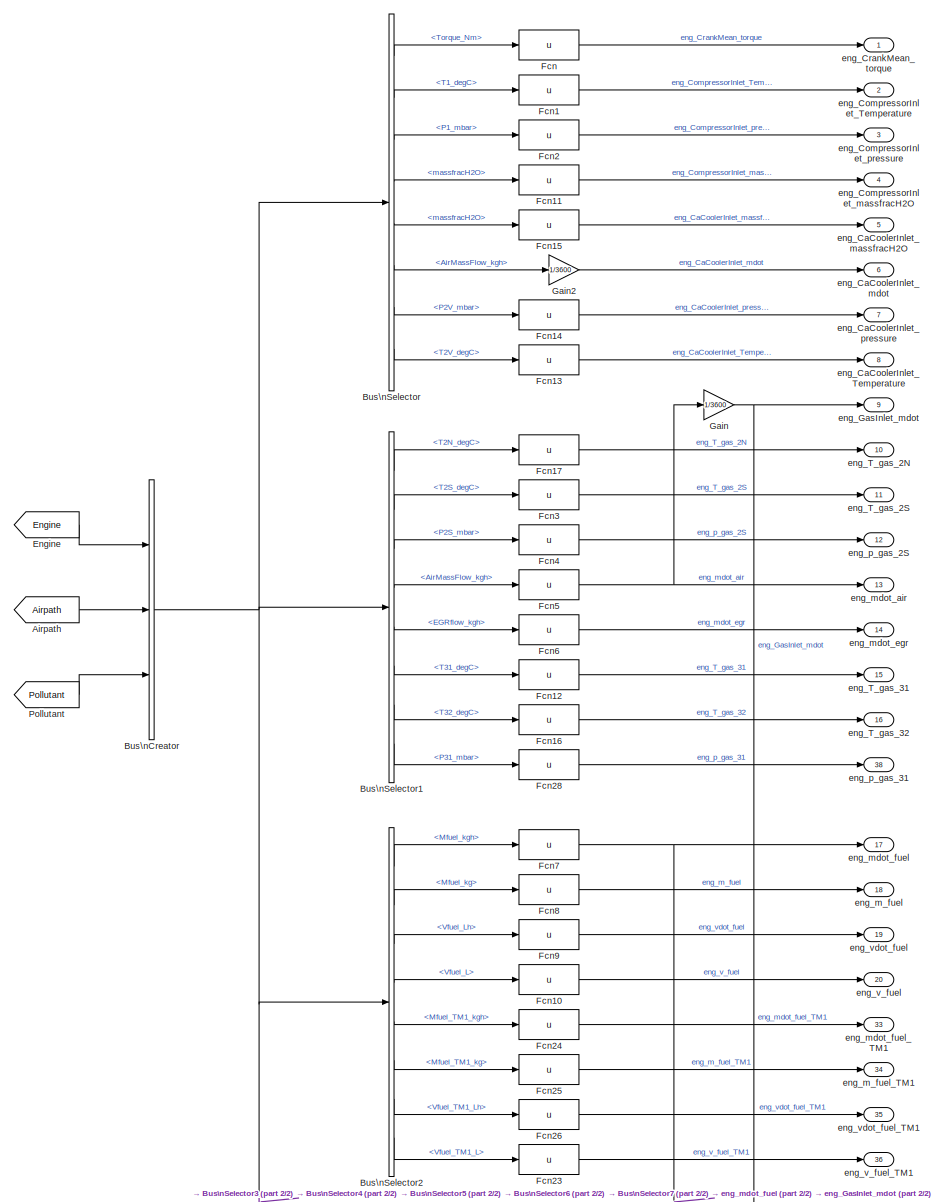
[diagram: eng_simple_transient_std/Outputs - part 1/2, full width, top band]
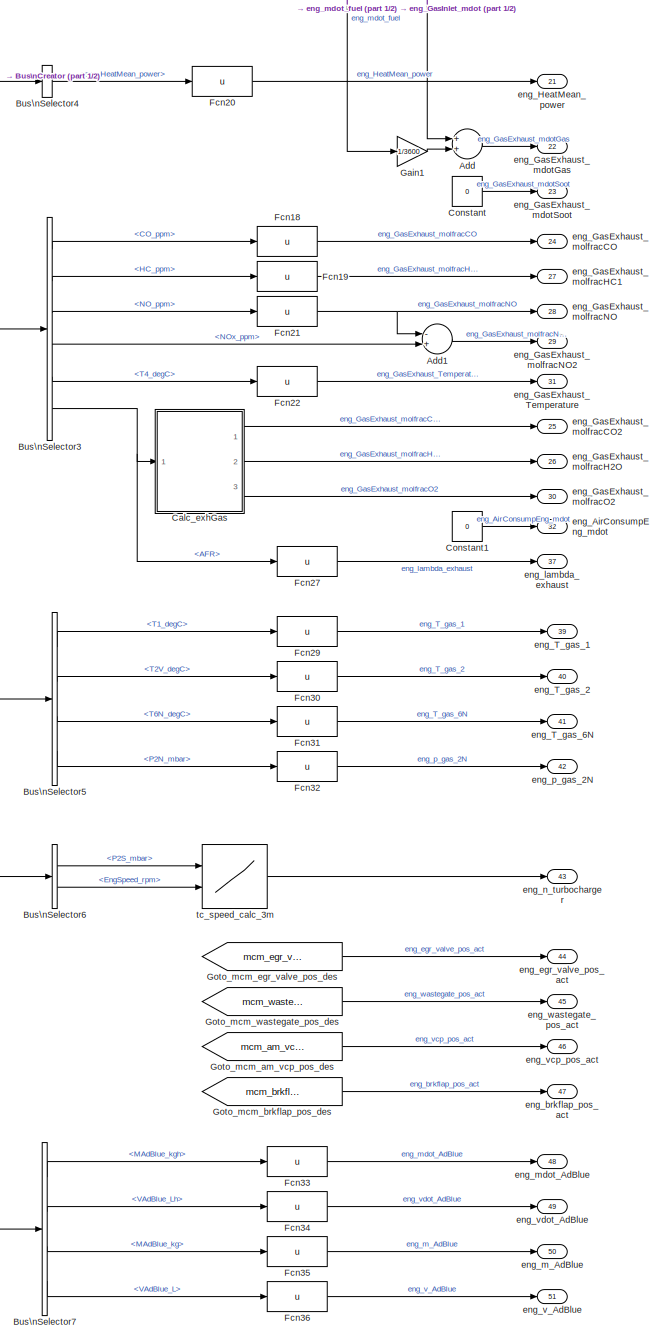
[diagram: eng_simple_transient_std/Outputs - part 2/2, bottom center region]
BLOCK [SubSystem] eng_simple_transient_std/Outputs
  Ports = [0, 51]
  RequestExecContextInheritance = off
  SID = 312
  Variant = off
BLOCK [Sum] eng_simple_transient_std/Outputs/Add
  InputSameDT = off
  OutDataTypeStr = Inherit: Inherit via internal rule
  Ports = [2, 1]
  SID = 667
  SaturateOnIntegerOverflow = off
BLOCK [Sum] eng_simple_transient_std/Outputs/Add1
  InputSameDT = off
  Inputs = -+
  OutDataTypeStr = Inherit: Inherit via internal rule
  Ports = [2, 1]
  SID = 680
  SaturateOnIntegerOverflow = off
BLOCK [From] eng_simple_transient_std/Outputs/Airpath
  GotoTag = Airpath
  SID = 313
  TagVisibility = global
BLOCK [BusCreator] eng_simple_transient_std/Outputs/Bus\nCreator
  DisplayOption = bar
  InheritFromInputs = on
  Inputs = 3
  Ports = [3, 1]
  SID = 314
BLOCK [BusSelector] eng_simple_transient_std/Outputs/Bus\nSelector
  OutputSignals = Engine.Torque_Nm,Airpath.T1_degC,Airpath.P1_mbar,Airpath.massfracH2O,Airpath.massfracH2O,Airpath.AirMassFlow_kgh,Airpath.P2V_mbar,Airpath.T2V_degC
  Ports = [1, 8]
  SID = 315
BLOCK [BusSelector] eng_simple_transient_std/Outputs/Bus\nSelector1
  OutputSignals = Airpath.T2N_degC,Airpath.T2S_degC,Airpath.P2S_mbar,Airpath.AirMassFlow_kgh,Airpath.EGRflow_kgh,Airpath.T31_degC,Airpath.T32_degC,Airpath.P31_mbar
  Ports = [1, 8]
  SID = 316
BLOCK [BusSelector] eng_simple_transient_std/Outputs/Bus\nSelector2
  OutputSignals = Engine.Mfuel_kgh,Engine.Mfuel_kg,Engine.Vfuel_Lh,Engine.Vfuel_L,Engine.Mfuel_TM1_kgh,Engine.Mfuel_TM1_kg,Engine.Vfuel_TM1_Lh,Engine.Vfuel_TM1_L
  Ports = [1, 8]
  SID = 317
BLOCK [BusSelector] eng_simple_transient_std/Outputs/Bus\nSelector3
  OutputSignals = Pollutant.CO_ppm,Pollutant.HC_ppm,Pollutant.NO_ppm,Pollutant.NOx_ppm,Airpath.T4_degC,Engine.AFR
  Ports = [1, 6]
  SID = 672
BLOCK [BusSelector] eng_simple_transient_std/Outputs/Bus\nSelector4
  OutputSignals = Engine.eng_HeatMean_power
  Ports = [1, 1]
  SID = 318
BLOCK [BusSelector] eng_simple_transient_std/Outputs/Bus\nSelector5
  OutputSignals = Airpath.T1_degC,Airpath.T2V_degC,Airpath.T6N_degC,Airpath.P2N_mbar
  Ports = [1, 4]
  SID = 1188
BLOCK [BusSelector] eng_simple_transient_std/Outputs/Bus\nSelector6
  OutputSignals = Airpath.P2S_mbar,Engine.EngSpeed_rpm
  Ports = [1, 2]
  SID = 1197
BLOCK [BusSelector] eng_simple_transient_std/Outputs/Bus\nSelector7
  OutputSignals = Engine.MAdBlue_kgh,Engine.VAdBlue_Lh,Engine.MAdBlue_kg,Engine.VAdBlue_L
  Ports = [1, 4]
  SID = 1363
BLOCK [SubSystem] eng_simple_transient_std/Outputs/Calc_exhGas
  Ports = [1, 3]
  RequestExecContextInheritance = off
  SID = 700
  Variant = off
BLOCK [Inport] eng_simple_transient_std/Outputs/Calc_exhGas/AFR
  IconDisplay = Port number
  SID = 701
BLOCK [Constant] eng_simple_transient_std/Outputs/Calc_exhGas/haluft\nfor Ttau 10°C\npraum 1013mbar
  SID = 721
  Value = 7.56
BLOCK [Outport] eng_simple_transient_std/Outputs/Calc_exhGas/rCO2_Abg
  IconDisplay = Port number
  SID = 715
BLOCK [SubSystem] eng_simple_transient_std/Outputs/Calc_exhGas/rCO2_calc
  Ports = [2, 1]
  RequestExecContextInheritance = off
  SID = 716
  Variant = off
BLOCK [Inport] eng_simple_transient_std/Outputs/Calc_exhGas/rCO2_calc/AFR
  IconDisplay = Port number
  SID = 718
BLOCK [Outport] eng_simple_transient_std/Outputs/Calc_exhGas/rCO2_calc/CO2_molfrac
  IconDisplay = Port number
  SID = 717
BLOCK [Constant] eng_simple_transient_std/Outputs/Calc_exhGas/rCO2_calc/Constant2
  SID = 705
  Value = 0.0325
BLOCK [Constant] eng_simple_transient_std/Outputs/Calc_exhGas/rCO2_calc/Constant3
  SID = 706
  Value = 1000
BLOCK [Constant] eng_simple_transient_std/Outputs/Calc_exhGas/rCO2_calc/Constant5
  SID = 707
  Value = 0.0725
BLOCK [Gain] eng_simple_transient_std/Outputs/Calc_exhGas/rCO2_calc/Gain1
  Gain = 0.5
  OutDataTypeStr = Inherit: Inherit via internal rule
  ParamDataTypeStr = Inherit: Inherit via internal rule
  SID = 708
  SaturateOnIntegerOverflow = off
BLOCK [Constant] eng_simple_transient_std/Outputs/Calc_exhGas/rCO2_calc/MolH1
  SID = 709
  Value = 18.01528
BLOCK [Product] eng_simple_transient_std/Outputs/Calc_exhGas/rCO2_calc/Product1
  InputSameDT = off
  Inputs = ***//
  OutDataTypeStr = Inherit: Inherit via internal rule
  Ports = [5, 1]
  SID = 710
  SaturateOnIntegerOverflow = off
BLOCK [Product] eng_simple_transient_std/Outputs/Calc_exhGas/rCO2_calc/Product2
  InputSameDT = off
  Inputs = */
  OutDataTypeStr = Inherit: Inherit via internal rule
  Ports = [2, 1]
  SID = 711
  SaturateOnIntegerOverflow = off
BLOCK [Constant] eng_simple_transient_std/Outputs/Calc_exhGas/rCO2_calc/Stoech_coeff
  SID = 697
  Value = Eng_characteristics_Stoech_coeff
BLOCK [Sum] eng_simple_transient_std/Outputs/Calc_exhGas/rCO2_calc/Sum1
  InputSameDT = off
  Inputs = 3
  OutDataTypeStr = Inherit: Inherit via internal rule
  Ports = [3, 1]
  SID = 712
  SaturateOnIntegerOverflow = off
BLOCK [Inport] eng_simple_transient_std/Outputs/Calc_exhGas/rCO2_calc/haluft
  IconDisplay = Port number
  Port = 2
  SID = 720
BLOCK [Outport] eng_simple_transient_std/Outputs/Calc_exhGas/rH2O_Abg
  IconDisplay = Port number
  Port = 2
  SID = 724
BLOCK [SubSystem] eng_simple_transient_std/Outputs/Calc_exhGas/rH2O_calc
  AncestorBlock = ExACT_Custom_Tools/direct input/Wasser Raumanteil Abgas\nrH2O_Abg[-] = f(lambda[-],TTau[°C],pambL[mbar])
  Ports = [2, 1]
  RequestExecContextInheritance = off
  SID = 723
  Variant = off
BLOCK [Inport] eng_simple_transient_std/Outputs/Calc_exhGas/rH2O_calc/AFR
  IconDisplay = Port number
  SID = 723:1271
BLOCK [Constant] eng_simple_transient_std/Outputs/Calc_exhGas/rH2O_calc/Constant2
  SID = 723:1272
  Value = 0.0325
BLOCK [Constant] eng_simple_transient_std/Outputs/Calc_exhGas/rH2O_calc/Constant3
  SID = 723:1273
  Value = 1000
BLOCK [Constant] eng_simple_transient_std/Outputs/Calc_exhGas/rH2O_calc/Constant5
  SID = 723:1274
  Value = 0.065
BLOCK [Gain] eng_simple_transient_std/Outputs/Calc_exhGas/rH2O_calc/Gain
  Gain = 0.5
  OutDataTypeStr = Inherit: Inherit via internal rule
  ParamDataTypeStr = Inherit: Inherit via internal rule
  SID = 723:1275
  SaturateOnIntegerOverflow = off
BLOCK [Constant] eng_simple_transient_std/Outputs/Calc_exhGas/rH2O_calc/MolH1
  SID = 723:1276
  Value = 18.01528
BLOCK [Product] eng_simple_transient_std/Outputs/Calc_exhGas/rH2O_calc/Product1
  InputSameDT = off
  Inputs = ***//
  OutDataTypeStr = Inherit: Inherit via internal rule
  Ports = [5, 1]
  SID = 723:1277
  SaturateOnIntegerOverflow = off
BLOCK [Product] eng_simple_transient_std/Outputs/Calc_exhGas/rH2O_calc/Product2
  InputSameDT = off
  Inputs = */
  OutDataTypeStr = Inherit: Inherit via internal rule
  Ports = [2, 1]
  SID = 723:1278
  SaturateOnIntegerOverflow = off
BLOCK [Constant] eng_simple_transient_std/Outputs/Calc_exhGas/rH2O_calc/Stoech_coeff
  SID = 723:1341
  Value = Eng_characteristics_Stoech_coeff
BLOCK [Sum] eng_simple_transient_std/Outputs/Calc_exhGas/rH2O_calc/Sum1
  InputSameDT = off
  Inputs = 3
  OutDataTypeStr = Inherit: Inherit via internal rule
  Ports = [3, 1]
  SID = 723:1279
  SaturateOnIntegerOverflow = off
BLOCK [Sum] eng_simple_transient_std/Outputs/Calc_exhGas/rH2O_calc/Sum3
  IconShape = round
  InputSameDT = off
  Inputs = |++
  OutDataTypeStr = Inherit: Inherit via internal rule
  Ports = [2, 1]
  SID = 723:1280
  SaturateOnIntegerOverflow = off
BLOCK [Inport] eng_simple_transient_std/Outputs/Calc_exhGas/rH2O_calc/haluft
  IconDisplay = Port number
  Port = 2
  SID = 723:1340
BLOCK [Outport] eng_simple_transient_std/Outputs/Calc_exhGas/rH2O_calc/rH2O_Abg
  IconDisplay = Port number
  SID = 723:1290
BLOCK [Outport] eng_simple_transient_std/Outputs/Calc_exhGas/rO2_Abg
  IconDisplay = Port number
  Port = 3
  SID = 725
BLOCK [SubSystem] eng_simple_transient_std/Outputs/Calc_exhGas/rO2_calc
  AncestorBlock = ExACT_Custom_Tools/direct input/Sauerstoff Raumanteil Abgas\nrO2_Abg[-] = f(lambda[-],TTau[°C],pambL[mbar])
  Ports = [2, 1]
  RequestExecContextInheritance = off
  SID = 719
  Variant = off
BLOCK [Inport] eng_simple_transient_std/Outputs/Calc_exhGas/rO2_calc/AFR
  IconDisplay = Port number
  SID = 719:1247
BLOCK [Constant] eng_simple_transient_std/Outputs/Calc_exhGas/rO2_calc/Constant1
  SID = 719:1248
  Value = 0.0325
BLOCK [Constant] eng_simple_transient_std/Outputs/Calc_exhGas/rO2_calc/Constant2
  SID = 719:1249
BLOCK [Constant] eng_simple_transient_std/Outputs/Calc_exhGas/rO2_calc/Constant4
  SID = 719:1250
  Value = 1000
BLOCK [Gain] eng_simple_transient_std/Outputs/Calc_exhGas/rO2_calc/Gain1
  Gain = 0.5
  OutDataTypeStr = Inherit: Inherit via internal rule
  ParamDataTypeStr = Inherit: Inherit via internal rule
  SID = 719:1251
  SaturateOnIntegerOverflow = off
BLOCK [Gain] eng_simple_transient_std/Outputs/Calc_exhGas/rO2_calc/Gain2
  Gain = 0.105
  OutDataTypeStr = Inherit: Inherit via internal rule
  ParamDataTypeStr = Inherit: Inherit via internal rule
  SID = 719:1252
  SaturateOnIntegerOverflow = off
BLOCK [Saturate] eng_simple_transient_std/Outputs/Calc_exhGas/rO2_calc/Lim 0<x<0.2078\n=> lambda<100
  InputPortMap = u0
  LinearizeAsGain = off
  LowerLimit = 1e-16
  Ports = [1, 1]
  SID = 719:1342
  UpperLimit = 0.2078376487
  ZeroCross = off
BLOCK [Constant] eng_simple_transient_std/Outputs/Calc_exhGas/rO2_calc/MolH2
  SID = 719:1253
  Value = 18.01528
BLOCK [Product] eng_simple_transient_std/Outputs/Calc_exhGas/rO2_calc/Product3
  InputSameDT = off
  Inputs = ***//
  OutDataTypeStr = Inherit: Inherit via internal rule
  Ports = [5, 1]
  SID = 719:1254
  SaturateOnIntegerOverflow = off
BLOCK [Product] eng_simple_transient_std/Outputs/Calc_exhGas/rO2_calc/Product4
  InputSameDT = off
  Inputs = */
  OutDataTypeStr = Inherit: Inherit via internal rule
  Ports = [2, 1]
  SID = 719:1255
  SaturateOnIntegerOverflow = off
BLOCK [Constant] eng_simple_transient_std/Outputs/Calc_exhGas/rO2_calc/Stoech_coeff
  SID = 719:1341
  Value = Eng_characteristics_Stoech_coeff
BLOCK [Sum] eng_simple_transient_std/Outputs/Calc_exhGas/rO2_calc/Sum1
  InputSameDT = off
  Inputs = +-
  OutDataTypeStr = Inherit: Inherit via internal rule
  Ports = [2, 1]
  SID = 719:1256
  SaturateOnIntegerOverflow = off
BLOCK [Sum] eng_simple_transient_std/Outputs/Calc_exhGas/rO2_calc/Sum2
  InputSameDT = off
  Inputs = 3
  OutDataTypeStr = Inherit: Inherit via internal rule
  Ports = [3, 1]
  SID = 719:1257
  SaturateOnIntegerOverflow = off
BLOCK [Inport] eng_simple_transient_std/Outputs/Calc_exhGas/rO2_calc/haluft
  IconDisplay = Port number
  Port = 2
  SID = 719:1340
BLOCK [Outport] eng_simple_transient_std/Outputs/Calc_exhGas/rO2_calc/rO2_Abg
  IconDisplay = Port number
  SID = 719:1267
BLOCK [Constant] eng_simple_transient_std/Outputs/Constant
  SID = 670
  Value = 0
BLOCK [Constant] eng_simple_transient_std/Outputs/Constant1
  SID = 732
  Value = 0
BLOCK [From] eng_simple_transient_std/Outputs/Engine
  GotoTag = Engine
  SID = 319
  TagVisibility = global
BLOCK [Fcn] eng_simple_transient_std/Outputs/Fcn
  Expr = u
  SID = 320
BLOCK [Fcn] eng_simple_transient_std/Outputs/Fcn1
  Expr = u
  SID = 321
BLOCK [Fcn] eng_simple_transient_std/Outputs/Fcn10
  Expr = u
  SID = 322
BLOCK [Fcn] eng_simple_transient_std/Outputs/Fcn11
  Expr = u
  SID = 323
BLOCK [Fcn] eng_simple_transient_std/Outputs/Fcn12
  Expr = u
  SID = 907
BLOCK [Fcn] eng_simple_transient_std/Outputs/Fcn13
  Expr = u
  SID = 809
BLOCK [Fcn] eng_simple_transient_std/Outputs/Fcn14
  Expr = u
  SID = 810
BLOCK [Fcn] eng_simple_transient_std/Outputs/Fcn15
  Expr = u
  SID = 814
BLOCK [Fcn] eng_simple_transient_std/Outputs/Fcn16
  Expr = u
  SID = 908
BLOCK [Fcn] eng_simple_transient_std/Outputs/Fcn17
  Expr = u
  SID = 943
BLOCK [Fcn] eng_simple_transient_std/Outputs/Fcn18
  Expr = u
  SID = 1070
BLOCK [Fcn] eng_simple_transient_std/Outputs/Fcn19
  Expr = u
  SID = 1071
BLOCK [Fcn] eng_simple_transient_std/Outputs/Fcn2
  Expr = u
  SID = 324
BLOCK [Fcn] eng_simple_transient_std/Outputs/Fcn20
  Expr = u
  SID = 325
BLOCK [Fcn] eng_simple_transient_std/Outputs/Fcn21
  Expr = u
  SID = 1072
BLOCK [Fcn] eng_simple_transient_std/Outputs/Fcn22
  Expr = u
  SID = 1073
BLOCK [Fcn] eng_simple_transient_std/Outputs/Fcn23
  Expr = u
  SID = 1163
BLOCK [Fcn] eng_simple_transient_std/Outputs/Fcn24
  Expr = u
  SID = 1164
BLOCK [Fcn] eng_simple_transient_std/Outputs/Fcn25
  Expr = u
  SID = 1165
BLOCK [Fcn] eng_simple_transient_std/Outputs/Fcn26
  Expr = u
  SID = 1166
BLOCK [Fcn] eng_simple_transient_std/Outputs/Fcn27
  Expr = u
  SID = 1183
BLOCK [Fcn] eng_simple_transient_std/Outputs/Fcn28
  Expr = u
  SID = 1184
BLOCK [Fcn] eng_simple_transient_std/Outputs/Fcn29
  Expr = u
  SID = 1190
BLOCK [Fcn] eng_simple_transient_std/Outputs/Fcn3
  Expr = u
  SID = 326
BLOCK [Fcn] eng_simple_transient_std/Outputs/Fcn30
  Expr = u
  SID = 1191
BLOCK [Fcn] eng_simple_transient_std/Outputs/Fcn31
  Expr = u
  SID = 1193
BLOCK [Fcn] eng_simple_transient_std/Outputs/Fcn32
  Expr = u
  SID = 1195
BLOCK [Fcn] eng_simple_transient_std/Outputs/Fcn33
  Expr = u
  SID = 1364
BLOCK [Fcn] eng_simple_transient_std/Outputs/Fcn34
  Expr = u
  SID = 1365
BLOCK [Fcn] eng_simple_transient_std/Outputs/Fcn35
  Expr = u
  SID = 1366
BLOCK [Fcn] eng_simple_transient_std/Outputs/Fcn36
  Expr = u
  SID = 1367
BLOCK [Fcn] eng_simple_transient_std/Outputs/Fcn4
  Expr = u
  SID = 327
BLOCK [Fcn] eng_simple_transient_std/Outputs/Fcn5
  Expr = u
  SID = 328
BLOCK [Fcn] eng_simple_transient_std/Outputs/Fcn6
  Expr = u
  SID = 329
BLOCK [Fcn] eng_simple_transient_std/Outputs/Fcn7
  Expr = u
  SID = 330
BLOCK [Fcn] eng_simple_transient_std/Outputs/Fcn8
  Expr = u
  SID = 331
BLOCK [Fcn] eng_simple_transient_std/Outputs/Fcn9
  Expr = u
  SID = 332
BLOCK [Gain] eng_simple_transient_std/Outputs/Gain
  Gain = 1/3600
  OutDataTypeStr = Inherit: Inherit via internal rule
  ParamDataTypeStr = Inherit: Inherit via internal rule
  SID = 333
  SaturateOnIntegerOverflow = off
BLOCK [Gain] eng_simple_transient_std/Outputs/Gain1
  Gain = 1/3600
  OutDataTypeStr = Inherit: Inherit via internal rule
  ParamDataTypeStr = Inherit: Inherit via internal rule
  SID = 668
  SaturateOnIntegerOverflow = off
BLOCK [Gain] eng_simple_transient_std/Outputs/Gain2
  Gain = 1/3600
  OutDataTypeStr = Inherit: Inherit via internal rule
  ParamDataTypeStr = Inherit: Inherit via internal rule
  SID = 822
  SaturateOnIntegerOverflow = off
BLOCK [From] eng_simple_transient_std/Outputs/Goto_mcm_am_vcp_pos_des
  GotoTag = mcm_am_vcp_pos_des
  SID = 1220
  TagVisibility = global
BLOCK [From] eng_simple_transient_std/Outputs/Goto_mcm_brkflap_pos_des
  GotoTag = mcm_brkflap_pos_des
  SID = 1221
  TagVisibility = global
BLOCK [From] eng_simple_transient_std/Outputs/Goto_mcm_egr_valve_pos_des
  GotoTag = mcm_egr_valve_pos_des
  SID = 1218
  TagVisibility = global
BLOCK [From] eng_simple_transient_std/Outputs/Goto_mcm_wastegate_pos_des
  GotoTag = mcm_wastegate_pos_des
  SID = 1219
  TagVisibility = global
BLOCK [From] eng_simple_transient_std/Outputs/Pollutant
  GotoTag = Pollutant
  SID = 334
  TagVisibility = global
BLOCK [Outport] eng_simple_transient_std/Outputs/eng_AirConsumpEng_mdot
  IconDisplay = Port number
  Port = 32
  SID = 966
BLOCK [Outport] eng_simple_transient_std/Outputs/eng_CaCoolerInlet_Temperature
  IconDisplay = Port number
  Port = 8
  SID = 818
BLOCK [Outport] eng_simple_transient_std/Outputs/eng_CaCoolerInlet_massfracH2O
  IconDisplay = Port number
  Port = 5
  SID = 815
BLOCK [Outport] eng_simple_transient_std/Outputs/eng_CaCoolerInlet_mdot
  IconDisplay = Port number
  Port = 6
  SID = 816
BLOCK [Outport] eng_simple_transient_std/Outputs/eng_CaCoolerInlet_pressure
  IconDisplay = Port number
  Port = 7
  SID = 817
BLOCK [Outport] eng_simple_transient_std/Outputs/eng_CompressorInlet_Temperature
  IconDisplay = Port number
  Port = 2
  SID = 336
BLOCK [Outport] eng_simple_transient_std/Outputs/eng_CompressorInlet_massfracH2O
  IconDisplay = Port number
  Port = 4
  SID = 338
BLOCK [Outport] eng_simple_transient_std/Outputs/eng_CompressorInlet_pressure
  IconDisplay = Port number
  Port = 3
  SID = 337
BLOCK [Outport] eng_simple_transient_std/Outputs/eng_CrankMean_torque
  IconDisplay = Port number
  SID = 335
BLOCK [Outport] eng_simple_transient_std/Outputs/eng_GasExhaust_Temperature
  IconDisplay = Port number
  Port = 31
  SID = 965
BLOCK [Outport] eng_simple_transient_std/Outputs/eng_GasExhaust_mdotGas
  IconDisplay = Port number
  Port = 22
  SID = 956
BLOCK [Outport] eng_simple_transient_std/Outputs/eng_GasExhaust_mdotSoot
  IconDisplay = Port number
  Port = 23
  SID = 957
BLOCK [Outport] eng_simple_transient_std/Outputs/eng_GasExhaust_molfracCO
  IconDisplay = Port number
  Port = 24
  SID = 958
BLOCK [Outport] eng_simple_transient_std/Outputs/eng_GasExhaust_molfracCO2
  IconDisplay = Port number
  Port = 25
  SID = 959
BLOCK [Outport] eng_simple_transient_std/Outputs/eng_GasExhaust_molfracH2O
  IconDisplay = Port number
  Port = 26
  SID = 960
BLOCK [Outport] eng_simple_transient_std/Outputs/eng_GasExhaust_molfracHC1
  IconDisplay = Port number
  Port = 27
  SID = 961
BLOCK [Outport] eng_simple_transient_std/Outputs/eng_GasExhaust_molfracNO
  IconDisplay = Port number
  Port = 28
  SID = 962
BLOCK [Outport] eng_simple_transient_std/Outputs/eng_GasExhaust_molfracNO2
  IconDisplay = Port number
  Port = 29
  SID = 963
BLOCK [Outport] eng_simple_transient_std/Outputs/eng_GasExhaust_molfracO2
  IconDisplay = Port number
  Port = 30
  SID = 964
BLOCK [Outport] eng_simple_transient_std/Outputs/eng_GasInlet_mdot
  IconDisplay = Port number
  Port = 9
  SID = 823
BLOCK [Outport] eng_simple_transient_std/Outputs/eng_HeatMean_power
  IconDisplay = Port number
  Port = 21
  SID = 955
BLOCK [Outport] eng_simple_transient_std/Outputs/eng_T_gas_1
  IconDisplay = Port number
  Port = 39
  SID = 1189
BLOCK [Outport] eng_simple_transient_std/Outputs/eng_T_gas_2
  IconDisplay = Port number
  Port = 40
  SID = 1192
BLOCK [Outport] eng_simple_transient_std/Outputs/eng_T_gas_2N
  IconDisplay = Port number
  Port = 10
  SID = 944
BLOCK [Outport] eng_simple_transient_std/Outputs/eng_T_gas_2S
  IconDisplay = Port number
  Port = 11
  SID = 945
BLOCK [Outport] eng_simple_transient_std/Outputs/eng_T_gas_31
  IconDisplay = Port number
  Port = 15
  SID = 949
BLOCK [Outport] eng_simple_transient_std/Outputs/eng_T_gas_32
  IconDisplay = Port number
  Port = 16
  SID = 950
BLOCK [Outport] eng_simple_transient_std/Outputs/eng_T_gas_6N
  IconDisplay = Port number
  Port = 41
  SID = 1194
BLOCK [Outport] eng_simple_transient_std/Outputs/eng_brkflap_pos_act
  IconDisplay = Port number
  Port = 47
  SID = 1217
BLOCK [Outport] eng_simple_transient_std/Outputs/eng_egr_valve_pos_act
  IconDisplay = Port number
  Port = 44
  SID = 1214
BLOCK [Outport] eng_simple_transient_std/Outputs/eng_lambda_exhaust
  IconDisplay = Port number
  Port = 37
  SID = 1182
BLOCK [Outport] eng_simple_transient_std/Outputs/eng_m_AdBlue
  IconDisplay = Port number
  Port = 50
  SID = 1370
BLOCK [Outport] eng_simple_transient_std/Outputs/eng_m_fuel
  IconDisplay = Port number
  Port = 18
  SID = 952
BLOCK [Outport] eng_simple_transient_std/Outputs/eng_m_fuel_TM1
  IconDisplay = Port number
  Port = 34
  SID = 1168
BLOCK [Outport] eng_simple_transient_std/Outputs/eng_mdot_AdBlue
  IconDisplay = Port number
  Port = 48
  SID = 1368
BLOCK [Outport] eng_simple_transient_std/Outputs/eng_mdot_air
  IconDisplay = Port number
  Port = 13
  SID = 947
BLOCK [Outport] eng_simple_transient_std/Outputs/eng_mdot_egr
  IconDisplay = Port number
  Port = 14
  SID = 948
BLOCK [Outport] eng_simple_transient_std/Outputs/eng_mdot_fuel
  IconDisplay = Port number
  Port = 17
  SID = 951
BLOCK [Outport] eng_simple_transient_std/Outputs/eng_mdot_fuel_TM1
  IconDisplay = Port number
  Port = 33
  SID = 1167
BLOCK [Outport] eng_simple_transient_std/Outputs/eng_n_turbocharger
  IconDisplay = Port number
  Port = 43
  SID = 1200
BLOCK [Outport] eng_simple_transient_std/Outputs/eng_p_gas_2N
  IconDisplay = Port number
  Port = 42
  SID = 1196
BLOCK [Outport] eng_simple_transient_std/Outputs/eng_p_gas_2S
  IconDisplay = Port number
  Port = 12
  SID = 946
BLOCK [Outport] eng_simple_transient_std/Outputs/eng_p_gas_31
  IconDisplay = Port number
  Port = 38
  SID = 1185
BLOCK [Outport] eng_simple_transient_std/Outputs/eng_v_AdBlue
  IconDisplay = Port number
  Port = 51
  SID = 1371
BLOCK [Outport] eng_simple_transient_std/Outputs/eng_v_fuel
  IconDisplay = Port number
  Port = 20
  SID = 954
BLOCK [Outport] eng_simple_transient_std/Outputs/eng_v_fuel_TM1
  IconDisplay = Port number
  Port = 36
  SID = 1170
BLOCK [Outport] eng_simple_transient_std/Outputs/eng_vcp_pos_act
  IconDisplay = Port number
  Port = 46
  SID = 1216
BLOCK [Outport] eng_simple_transient_std/Outputs/eng_vdot_AdBlue
  IconDisplay = Port number
  Port = 49
  SID = 1369
BLOCK [Outport] eng_simple_transient_std/Outputs/eng_vdot_fuel
  IconDisplay = Port number
  Port = 19
  SID = 953
BLOCK [Outport] eng_simple_transient_std/Outputs/eng_vdot_fuel_TM1
  IconDisplay = Port number
  Port = 35
  SID = 1169
BLOCK [Outport] eng_simple_transient_std/Outputs/eng_wastegate_pos_act
  IconDisplay = Port number
  Port = 45
  SID = 1215
BLOCK [Lookup2D] eng_simple_transient_std/Outputs/tc_speed_calc_3m
  ColumnIndex = tc_speed_calc_y_eng_speed
  InputSameDT = off
  LookUpMeth = Interpolation-Use End Values
  RowIndex = tc_speed_calc_x_p_intake
  SID = 1199
  SaturateOnIntegerOverflow = off
  Table = tc_speed_calc_3m
BLOCK [SubSystem] eng_simple_transient_std/Pollutant_model
  Ports = []
  RequestExecContextInheritance = off
  SID = 349
  Variant = off
BLOCK [Gain] eng_simple_transient_std/Pollutant_model/%->ratio
  Gain = -0.01
  OutDataTypeStr = Inherit: Inherit via internal rule
  ParamDataTypeStr = Inherit: Inherit via internal rule
  SID = 1451
  SaturateOnIntegerOverflow = off
BLOCK [Bias] eng_simple_transient_std/Pollutant_model/Bias
  Bias = 1
  SID = 1452
  SaturateOnIntegerOverflow = off
BLOCK [BusCreator] eng_simple_transient_std/Pollutant_model/Bus\nCreator4
  DisplayOption = bar
  InheritFromInputs = on
  Inputs = 4
  Ports = [4, 1]
  SID = 350
BLOCK [Constant] eng_simple_transient_std/Pollutant_model/Constant
  SID = 1448
  Value = Eng_characteristics_use_mcm_NOx
BLOCK [From] eng_simple_transient_std/Pollutant_model/EngSpeed
  GotoTag = EngSpeed
  SID = 351
  TagVisibility = global
BLOCK [Lookup2D] eng_simple_transient_std/Pollutant_model/Map_CO
  ColumnIndex = Setpoint_fuelledMode_x_NMOTW_rpm
  InputSameDT = off
  LookUpMeth = Interpolation-Use End Values
  RowIndex = Setpoint_fuelledMode_y_alphaTorque
  SID = 352
  SaturateOnIntegerOverflow = off
  Table = Setpoint_fuelledMode_z_CO_ppm
BLOCK [Lookup2D] eng_simple_transient_std/Pollutant_model/Map_HC
  ColumnIndex = Setpoint_fuelledMode_x_NMOTW_rpm
  InputSameDT = off
  LookUpMeth = Interpolation-Use End Values
  RowIndex = Setpoint_fuelledMode_y_alphaTorque
  SID = 353
  SaturateOnIntegerOverflow = off
  Table = Setpoint_fuelledMode_z_HC_ppm
BLOCK [Lookup2D] eng_simple_transient_std/Pollutant_model/Map_NO
  ColumnIndex = Setpoint_fuelledMode_x_NMOTW_rpm
  InputSameDT = off
  LookUpMeth = Interpolation-Use End Values
  RowIndex = Setpoint_fuelledMode_y_alphaTorque
  SID = 354
  SaturateOnIntegerOverflow = off
  Table = Setpoint_fuelledMode_z_NO_ppm
BLOCK [Lookup2D] eng_simple_transient_std/Pollutant_model/Map_NOx
  ColumnIndex = Setpoint_fuelledMode_x_NMOTW_rpm
  InputSameDT = off
  LookUpMeth = Interpolation-Use End Values
  RowIndex = Setpoint_fuelledMode_y_alphaTorque
  SID = 355
  SaturateOnIntegerOverflow = off
  Table = Setpoint_fuelledMode_z_NOx_ppm
BLOCK [Goto] eng_simple_transient_std/Pollutant_model/Pollutant
  GotoTag = Pollutant
  SID = 356
  TagVisibility = global
BLOCK [Product] eng_simple_transient_std/Pollutant_model/Product
  InputSameDT = off
  OutDataTypeStr = Inherit: Inherit via internal rule
  Ports = [2, 1]
  SID = 1453
  SaturateOnIntegerOverflow = off
BLOCK [Switch] eng_simple_transient_std/Pollutant_model/Switch
  Criteria = u2 > Threshold
  InputSameDT = off
  SID = 1446
  SaturateOnIntegerOverflow = off
BLOCK [Switch] eng_simple_transient_std/Pollutant_model/Switch1
  Criteria = u2 > Threshold
  InputSameDT = off
  SID = 1447
  SaturateOnIntegerOverflow = off
BLOCK [From] eng_simple_transient_std/Pollutant_model/alphaTorque
  GotoTag = alphaTorque
  SID = 357
  TagVisibility = global
BLOCK [From] eng_simple_transient_std/Pollutant_model/alphaTorque1
  GotoTag = mcm_eaf_nox_content_cor
  SID = 1449
  TagVisibility = global
BLOCK [From] eng_simple_transient_std/Pollutant_model/alphaTorque2
  GotoTag = mcm_EngNO2RatioOut_Cval_MCM
  SID = 1450
  TagVisibility = global
BLOCK [Saturate] eng_simple_transient_std/Saturtion
  InputPortMap = u0
  LowerLimit = 1
  Ports = [1, 1]
  SID = 735
  UpperLimit = 1
BLOCK [SubSystem] eng_simple_transient_std/SetPoint_model
  Ports = [10]
  RequestExecContextInheritance = off
  SID = 358
  Variant = off
BLOCK [Goto] eng_simple_transient_std/SetPoint_model/BrakingMode
  GotoTag = brakingMode
  SID = 366
  TagVisibility = global
BLOCK [SubSystem] eng_simple_transient_std/SetPoint_model/EGRTAT setpoint
  Ports = [0, 1]
  RequestExecContextInheritance = off
  SID = 367
  Variant = off
BLOCK [From] eng_simple_transient_std/SetPoint_model/EGRTAT setpoint/AMF
  GotoTag = AirMassFlow_kgh
  SID = 368
  TagVisibility = global
BLOCK [Reference] eng_simple_transient_std/SetPoint_model/EGRTAT setpoint/Compare\nTo Constant  REF=simulink/Logic and Bit\nOperations/Compare\nTo Constant
  OutDataTypeStr = uint8
  Ports = [1, 1]
  SID = 747
  SourceBlock = simulink/Logic and Bit\nOperations/Compare\nTo Constant
  SourceType = Compare To Constant
  ZeroCross = on
  const = 3
  relop = ==
BLOCK [Constant] eng_simple_transient_std/SetPoint_model/EGRTAT setpoint/Constant2
  SID = 369
  Value = 0
BLOCK [Product] eng_simple_transient_std/SetPoint_model/EGRTAT setpoint/Divide
  InputSameDT = off
  Inputs = */
  OutDataTypeStr = Inherit: Inherit via internal rule
  Ports = [2, 1]
  RndMeth = Floor
  SID = 370
  SaturateOnIntegerOverflow = off
BLOCK [Lookup] eng_simple_transient_std/SetPoint_model/EGRTAT setpoint/EGR valve control
  InputValues = Fiter_calibration_fmode_y_ec_EGRTAT
  LookUpMeth = Interpolation-Use End Values
  SID = 371
  SaturateOnIntegerOverflow = off
  Table = [0 1]
BLOCK [Outport] eng_simple_transient_std/SetPoint_model/EGRTAT setpoint/EGRTAT_sp
  IconDisplay = Port number
  SID = 400
BLOCK [From] eng_simple_transient_std/SetPoint_model/EGRTAT setpoint/EngSpeed
  GotoTag = EngSpeed
  SID = 372
  TagVisibility = global
BLOCK [From] eng_simple_transient_std/SetPoint_model/EGRTAT setpoint/EngSpeed1
  GotoTag = EngSpeed
  SID = 373
  TagVisibility = global
BLOCK [From] eng_simple_transient_std/SetPoint_model/EGRTAT setpoint/EngSpeed2
  GotoTag = EngSpeed
  SID = 374
  TagVisibility = global
BLOCK [From] eng_simple_transient_std/SetPoint_model/EGRTAT setpoint/EngStarted
  GotoTag = EngStarted
  SID = 375
  TagVisibility = global
BLOCK [From] eng_simple_transient_std/SetPoint_model/EGRTAT setpoint/Mfuel1
  GotoTag = Mfuel_mgstr
  SID = 376
  TagVisibility = global
BLOCK [From] eng_simple_transient_std/SetPoint_model/EGRTAT setpoint/Mfuel2
  GotoTag = Mfuel_mgstr
  SID = 377
  TagVisibility = global
BLOCK [Product] eng_simple_transient_std/SetPoint_model/EGRTAT setpoint/Product
  InputSameDT = off
  OutDataTypeStr = Inherit: Inherit via internal rule
  Ports = [2, 1]
  SID = 378
  SaturateOnIntegerOverflow = off
BLOCK [Saturate] eng_simple_transient_std/SetPoint_model/EGRTAT setpoint/Saturaion3
  InputPortMap = u0
  LowerLimit = 0
  Ports = [1, 1]
  SID = 379
  UpperLimit = 100
BLOCK [Saturate] eng_simple_transient_std/SetPoint_model/EGRTAT setpoint/Saturation1
  InputPortMap = u0
  LowerLimit = 1e-6
  Ports = [1, 1]
  SID = 380
  UpperLimit = 1e6
BLOCK [Saturate] eng_simple_transient_std/SetPoint_model/EGRTAT setpoint/Saturation4
  InputPortMap = u0
  LowerLimit = 1e-6
  Ports = [1, 1]
  SID = 381
  UpperLimit = 1e6
BLOCK [Lookup2D] eng_simple_transient_std/SetPoint_model/EGRTAT setpoint/Setpoint_brakingMode_EGRTAT
  ColumnIndex = Setpoint_brakingMode3_x_NMOTW_rpm
  InputSameDT = off
  RowIndex = Setpoint_brakingMode3_y_alphaTorque
  SID = 382
  SaturateOnIntegerOverflow = off
  Table = Setpoint_brakingMode3_z_EGRTAT
BLOCK [Lookup2D] eng_simple_transient_std/SetPoint_model/EGRTAT setpoint/Setpoint_fuelledMode_EGRTAT
  ColumnIndex = Setpoint_fuelledMode_x_NMOTW_rpm
  InputSameDT = off
  RowIndex = Setpoint_fuelledMode_y_alphaTorque
  SID = 383
  SaturateOnIntegerOverflow = off
  Table = Setpoint_fuelledMode_z_EGRTAT
BLOCK [Sum] eng_simple_transient_std/SetPoint_model/EGRTAT setpoint/Subtract
  InputSameDT = off
  Inputs = +-
  OutDataTypeStr = Inherit: Inherit via internal rule
  Ports = [2, 1]
  SID = 384
  SaturateOnIntegerOverflow = off
BLOCK [Sum] eng_simple_transient_std/SetPoint_model/EGRTAT setpoint/Subtract1
  InputSameDT = off
  Inputs = -+
  OutDataTypeStr = Inherit: Inherit via internal rule
  Ports = [2, 1]
  SID = 385
  SaturateOnIntegerOverflow = off
BLOCK [Switch] eng_simple_transient_std/SetPoint_model/EGRTAT setpoint/Switch
  Criteria = u2 > Threshold
  InputSameDT = off
  SID = 386
  SaturateOnIntegerOverflow = off
BLOCK [Switch] eng_simple_transient_std/SetPoint_model/EGRTAT setpoint/Switch1
  Criteria = u2 > Threshold
  InputSameDT = off
  SID = 387
  SaturateOnIntegerOverflow = off
BLOCK [UnitDelay] eng_simple_transient_std/SetPoint_model/EGRTAT setpoint/Unit Delay1
  InputProcessing = Elements as channels (sample based)
  SID = 388
  SampleTime = -1
BLOCK [UnitDelay] eng_simple_transient_std/SetPoint_model/EGRTAT setpoint/Unit Delay2
  InputProcessing = Elements as channels (sample based)
  SID = 389
  SampleTime = -1
BLOCK [UnitDelay] eng_simple_transient_std/SetPoint_model/EGRTAT setpoint/Unit Delay3
  InputProcessing = Elements as channels (sample based)
  SID = 390
  SampleTime = -1
BLOCK [Product] eng_simple_transient_std/SetPoint_model/EGRTAT setpoint/actual AFR
  InputSameDT = off
  Inputs = */
  OutDataTypeStr = Inherit: Inherit via internal rule
  Ports = [2, 1]
  RndMeth = Floor
  SID = 391
  SaturateOnIntegerOverflow = off
BLOCK [From] eng_simple_transient_std/SetPoint_model/EGRTAT setpoint/alphaBrTorque
  GotoTag = alphaBrTorque
  SID = 392
  TagVisibility = global
BLOCK [From] eng_simple_transient_std/SetPoint_model/EGRTAT setpoint/alphaTorque
  GotoTag = alphaTorque
  SID = 393
  TagVisibility = global
BLOCK [From] eng_simple_transient_std/SetPoint_model/EGRTAT setpoint/breakingMode
  GotoTag = brakingMode
  SID = 394
  TagVisibility = global
BLOCK [Product] eng_simple_transient_std/SetPoint_model/EGRTAT setpoint/desired AFR
  InputSameDT = off
  Inputs = */
  OutDataTypeStr = Inherit: Inherit via internal rule
  Ports = [2, 1]
  RndMeth = Floor
  SID = 395
  SaturateOnIntegerOverflow = off
BLOCK [Lookup2D] eng_simple_transient_std/SetPoint_model/EGRTAT setpoint/egr_smoke_lim_desAir
  ColumnIndex = egr_smoke_lim_x_NMOT_rpm
  Description = Look-up table (2D) of dSPACE TargetLink.\n\nThis block calculates the output values dependant on the given table matrix. Note that both the row and column index vectors must be monotonically increasing for TargetLink.
  InputSameDT = off
  LookUpMeth = Interpolation-Use End Values
  OutDataTypeStr = double
  RowIndex = egr_smoke_lim_y_Mfuel_mgstr
  SID = 396
  SaturateOnIntegerOverflow = off
  Table = egr_smoke_lim_z_desAir_kgh
BLOCK [Lookup2D] eng_simple_transient_std/SetPoint_model/EGRTAT setpoint/egr_smoke_lim_minAFR
  ColumnIndex = egr_smoke_lim_x_NMOT_rpm
  Description = Look-up table (2D) of dSPACE TargetLink.\n\nThis block calculates the output values dependant on the given table matrix. Note that both the row and column index vectors must be monotonically increasing for TargetLink.
  InputSameDT = off
  LookUpMeth = Interpolation-Use End Values
  OutDataTypeStr = double
  RowIndex = egr_smoke_lim_y_Mfuel_mgstr
  SID = 397
  SaturateOnIntegerOverflow = off
  Table = egr_smoke_lim_z_minAFR
BLOCK [From] eng_simple_transient_std/SetPoint_model/EGRTAT setpoint/fuelFlow
  GotoTag = MFuel_kgh
  SID = 398
  TagVisibility = global
BLOCK [From] eng_simple_transient_std/SetPoint_model/EGRTAT setpoint/fuelFlow2
  GotoTag = MFuel_kgh
  SID = 399
  TagVisibility = global
BLOCK [Goto] eng_simple_transient_std/SetPoint_model/EGRTAT_sp
  GotoTag = EGRTAT_sp
  SID = 401
  TagVisibility = global
BLOCK [Goto] eng_simple_transient_std/SetPoint_model/EngSpeed
  GotoTag = EngSpeed
  SID = 402
  TagVisibility = global
BLOCK [From] eng_simple_transient_std/SetPoint_model/EngSpeed1
  GotoTag = EngSpeed
  SID = 1257
  TagVisibility = global
BLOCK [Goto] eng_simple_transient_std/SetPoint_model/EngStarted
  GotoTag = EngStarted
  SID = 403
  TagVisibility = global
BLOCK [Goto] eng_simple_transient_std/SetPoint_model/MAdBlue_kgh
  GotoTag = MAdBlue_kgh
  SID = 1261
  TagVisibility = global
BLOCK [SubSystem] eng_simple_transient_std/SetPoint_model/Mass of fuel injected TM1
  Ports = [1, 1]
  RequestExecContextInheritance = off
  SID = 1117
  Variant = off
BLOCK [Constant] eng_simple_transient_std/SetPoint_model/Mass of fuel injected TM1/Constant2
  SID = 1122
BLOCK [From] eng_simple_transient_std/SetPoint_model/Mass of fuel injected TM1/EngSpeed
  GotoTag = EngSpeed
  SID = 1123
  TagVisibility = global
BLOCK [Outport] eng_simple_transient_std/SetPoint_model/Mass of fuel injected TM1/Mfuel_consumption_TM1_mgstr
  IconDisplay = Port number
  SID = 1136
BLOCK [Product] eng_simple_transient_std/SetPoint_model/Mass of fuel injected TM1/Product
  InputSameDT = off
  OutDataTypeStr = Inherit: Inherit via internal rule
  Ports = [2, 1]
  SID = 1124
  SaturateOnIntegerOverflow = off
BLOCK [Product] eng_simple_transient_std/SetPoint_model/Mass of fuel injected TM1/Product1
  InputSameDT = off
  OutDataTypeStr = Inherit: Inherit via internal rule
  Ports = [2, 1]
  SID = 1125
  SaturateOnIntegerOverflow = off
BLOCK [Saturate] eng_simple_transient_std/SetPoint_model/Mass of fuel injected TM1/Saturation1
  InputPortMap = u0
  LowerLimit = -1
  Ports = [1, 1]
  SID = 1126
  UpperLimit = 1e6
BLOCK [Saturate] eng_simple_transient_std/SetPoint_model/Mass of fuel injected TM1/Saturation2
  InputPortMap = u0
  LowerLimit = 0
  Ports = [1, 1]
  SID = 1127
  UpperLimit = 1e6
BLOCK [Saturate] eng_simple_transient_std/SetPoint_model/Mass of fuel injected TM1/Saturation3
  InputPortMap = u0
  LowerLimit = 0
  Ports = [1, 1]
  SID = 1128
  UpperLimit = 1
BLOCK [Lookup2D] eng_simple_transient_std/SetPoint_model/Mass of fuel injected TM1/Setpoint_fuelledMode_Smoke
  ColumnIndex = Setpoint_fuelledMode_x_NMOTW_rpm
  InputSameDT = off
  RowIndex = Setpoint_fuelledMode_y_alphaTorque
  SID = 1130
  SaturateOnIntegerOverflow = off
  Table = Setpoint_fuelledMode_z_Mfuel_smoke_factor
BLOCK [Lookup2D] eng_simple_transient_std/SetPoint_model/Mass of fuel injected TM1/Setpoint_fuelledMode_TM1_Mfuel
  ColumnIndex = Setpoint_fuelledMode_x_NMOTW_rpm
  InputSameDT = off
  RowIndex = Setpoint_fuelledMode_y_alphaTorque
  SID = 1129
  SaturateOnIntegerOverflow = off
  Table = Setpoint_fuelledMode_z_Mfuel_TM1_mgstr
BLOCK [Sum] eng_simple_transient_std/SetPoint_model/Mass of fuel injected TM1/Sum1
  IconShape = round
  InputSameDT = off
  Inputs = |++
  OutDataTypeStr = Inherit: Inherit via internal rule
  Ports = [2, 1]
  SID = 1131
  SaturateOnIntegerOverflow = off
BLOCK [From] eng_simple_transient_std/SetPoint_model/Mass of fuel injected TM1/alphaTorque
  GotoTag = alphaTorque
  SID = 1134
  TagVisibility = global
BLOCK [Inport] eng_simple_transient_std/SetPoint_model/Mass of fuel injected TM1/mcm_wfa_wf_smoke
  IconDisplay = Port number
  SID = 1119
BLOCK [SubSystem] eng_simple_transient_std/SetPoint_model/Mass of fuel injected setpoint
  Ports = [2, 2]
  RequestExecContextInheritance = off
  SID = 404
  Variant = off
BLOCK [Constant] eng_simple_transient_std/SetPoint_model/Mass of fuel injected setpoint/Constant
  SID = 406
  Value = Eng_characteristics_Mfuel_available
BLOCK [Constant] eng_simple_transient_std/SetPoint_model/Mass of fuel injected setpoint/Constant1
  SID = 763
  Value = Eng_characteristics_Mfuel_with_MCM
BLOCK [Constant] eng_simple_transient_std/SetPoint_model/Mass of fuel injected setpoint/Constant2
  SID = 785
BLOCK [From] eng_simple_transient_std/SetPoint_model/Mass of fuel injected setpoint/EngSpeed
  GotoTag = EngSpeed
  SID = 407
  TagVisibility = global
BLOCK [Outport] eng_simple_transient_std/SetPoint_model/Mass of fuel injected setpoint/Mfuel_consumption_mgstr
  IconDisplay = Port number
  Port = 2
  SID = 761
BLOCK [Outport] eng_simple_transient_std/SetPoint_model/Mass of fuel injected setpoint/Mfuel_mgstr
  IconDisplay = Port number
  SID = 412
BLOCK [Product] eng_simple_transient_std/SetPoint_model/Mass of fuel injected setpoint/Product
  InputSameDT = off
  OutDataTypeStr = Inherit: Inherit via internal rule
  Ports = [2, 1]
  SID = 786
  SaturateOnIntegerOverflow = off
BLOCK [Product] eng_simple_transient_std/SetPoint_model/Mass of fuel injected setpoint/Product1
  InputSameDT = off
  OutDataTypeStr = Inherit: Inherit via internal rule
  Ports = [2, 1]
  SID = 791
  SaturateOnIntegerOverflow = off
BLOCK [Saturate] eng_simple_transient_std/SetPoint_model/Mass of fuel injected setpoint/Saturation1
  InputPortMap = u0
  LowerLimit = -1
  Ports = [1, 1]
  SID = 787
  UpperLimit = 1e6
BLOCK [Saturate] eng_simple_transient_std/SetPoint_model/Mass of fuel injected setpoint/Saturation2
  InputPortMap = u0
  LowerLimit = 0
  Ports = [1, 1]
  SID = 408
  UpperLimit = 1e6
BLOCK [Saturate] eng_simple_transient_std/SetPoint_model/Mass of fuel injected setpoint/Saturation3
  InputPortMap = u0
  LowerLimit = 0
  Ports = [1, 1]
  SID = 788
  UpperLimit = 1
BLOCK [Lookup2D] eng_simple_transient_std/SetPoint_model/Mass of fuel injected setpoint/Setpoint_fuelledMode_Mfuel
  ColumnIndex = Setpoint_fuelledMode_x_NMOTW_rpm
  InputSameDT = off
  RowIndex = Setpoint_fuelledMode_y_alphaTorque
  SID = 409
  SaturateOnIntegerOverflow = off
  Table = Setpoint_fuelledMode_z_Mfuel_mgstr
BLOCK [Lookup2D] eng_simple_transient_std/SetPoint_model/Mass of fuel injected setpoint/Setpoint_fuelledMode_Smoke
  ColumnIndex = Setpoint_fuelledMode_x_NMOTW_rpm
  InputSameDT = off
  RowIndex = Setpoint_fuelledMode_y_alphaTorque
  SID = 789
  SaturateOnIntegerOverflow = off
  Table = Setpoint_fuelledMode_z_Mfuel_smoke_factor
BLOCK [Sum] eng_simple_transient_std/SetPoint_model/Mass of fuel injected setpoint/Sum1
  IconShape = round
  InputSameDT = off
  Inputs = |++
  OutDataTypeStr = Inherit: Inherit via internal rule
  Ports = [2, 1]
  SID = 790
  SaturateOnIntegerOverflow = off
BLOCK [Switch] eng_simple_transient_std/SetPoint_model/Mass of fuel injected setpoint/Switch
  Criteria = u2 > Threshold
  InputSameDT = off
  SID = 410
  SaturateOnIntegerOverflow = off
BLOCK [Switch] eng_simple_transient_std/SetPoint_model/Mass of fuel injected setpoint/Switch1
  Criteria = u2 > Threshold
  InputSameDT = off
  SID = 764
  SaturateOnIntegerOverflow = off
BLOCK [From] eng_simple_transient_std/SetPoint_model/Mass of fuel injected setpoint/alphaTorque
  GotoTag = alphaTorque
  SID = 411
  TagVisibility = global
BLOCK [Inport] eng_simple_transient_std/SetPoint_model/Mass of fuel injected setpoint/mcm_fbf_des_fuel_mass
  IconDisplay = Port number
  SID = 405
BLOCK [Inport] eng_simple_transient_std/SetPoint_model/Mass of fuel injected setpoint/mcm_wfa_wf_smoke
  IconDisplay = Port number
  Port = 2
  SID = 784
BLOCK [Goto] eng_simple_transient_std/SetPoint_model/Mfuel_cons_TM1_mgstr
  GotoTag = Mfuel_cons_TM1_mgstr
  SID = 1137
  TagVisibility = global
BLOCK [Goto] eng_simple_transient_std/SetPoint_model/Mfuel_cons_mgstr
  GotoTag = Mfuel_cons_mgstr
  SID = 762
  TagVisibility = global
BLOCK [Goto] eng_simple_transient_std/SetPoint_model/Mfuel_mgstr
  GotoTag = Mfuel_mgstr
  SID = 413
  TagVisibility = global
BLOCK [SubSystem] eng_simple_transient_std/SetPoint_model/P2S setpoint
  Ports = [0, 1]
  RequestExecContextInheritance = off
  SID = 414
  Variant = off
BLOCK [From] eng_simple_transient_std/SetPoint_model/P2S setpoint/EngSpeed
  GotoTag = EngSpeed
  SID = 415
  TagVisibility = global
BLOCK [From] eng_simple_transient_std/SetPoint_model/P2S setpoint/EngStarted
  GotoTag = EngStarted
  SID = 416
  TagVisibility = global
BLOCK [Gain] eng_simple_transient_std/SetPoint_model/P2S setpoint/Gain
  Gain = 1/2
  OutDataTypeStr = Inherit: Inherit via internal rule
  ParamDataTypeStr = Inherit: Inherit via internal rule
  SID = 417
  SaturateOnIntegerOverflow = off
BLOCK [Gain] eng_simple_transient_std/SetPoint_model/P2S setpoint/Gain1
  Gain = 1/2
  OutDataTypeStr = Inherit: Inherit via internal rule
  ParamDataTypeStr = Inherit: Inherit via internal rule
  SID = 749
  SaturateOnIntegerOverflow = off
BLOCK [MultiPortSwitch] eng_simple_transient_std/SetPoint_model/P2S setpoint/Multiport\nSwitch2
  DataPortOrder = Zero-based contiguous
  InputSameDT = off
  Inputs = 5
  Ports = [6, 1]
  SID = 418
  SaturateOnIntegerOverflow = off
  zeroidx = on
BLOCK [Outport] eng_simple_transient_std/SetPoint_model/P2S setpoint/P2S_mbar_sp
  IconDisplay = Port number
  SID = 433
BLOCK [Lookup2D] eng_simple_transient_std/SetPoint_model/P2S setpoint/Setpoint_Friction_P2S
  ColumnIndex = Setpoint_fuelledMode_x_NMOTW_rpm
  InputSameDT = off
  RowIndex = Setpoint_fuelledMode_y_alphaTorque
  SID = 419
  SaturateOnIntegerOverflow = off
  Table = Setpoint_fuelledMode_z_P2S_mbar
BLOCK [Lookup2D] eng_simple_transient_std/SetPoint_model/P2S setpoint/Setpoint_brakingMode1_P2S
  ColumnIndex = Setpoint_brakingMode1_x_NMOTW_rpm
  InputSameDT = off
  RowIndex = Setpoint_brakingMode1_y_alphaTorque
  SID = 420
  SaturateOnIntegerOverflow = off
  Table = Setpoint_brakingMode1_z_P2S_mbar
BLOCK [Lookup2D] eng_simple_transient_std/SetPoint_model/P2S setpoint/Setpoint_brakingMode2_P2S
  ColumnIndex = Setpoint_brakingMode2_x_NMOTW_rpm
  InputSameDT = off
  RowIndex = Setpoint_brakingMode2_y_alphaTorque
  SID = 421
  SaturateOnIntegerOverflow = off
  Table = Setpoint_brakingMode2_z_P2S_mbar
BLOCK [Lookup2D] eng_simple_transient_std/SetPoint_model/P2S setpoint/Setpoint_brakingMode3_P2S
  ColumnIndex = Setpoint_brakingMode3_x_NMOTW_rpm
  InputSameDT = off
  RowIndex = Setpoint_brakingMode3_y_alphaTorque
  SID = 422
  SaturateOnIntegerOverflow = off
  Table = Setpoint_brakingMode3_z_P2S_mbar
BLOCK [Lookup2D] eng_simple_transient_std/SetPoint_model/P2S setpoint/Setpoint_fuelledMode_P2S
  ColumnIndex = Setpoint_fuelledMode_x_NMOTW_rpm
  InputSameDT = off
  RowIndex = Setpoint_fuelledMode_y_alphaTorque
  SID = 423
  SaturateOnIntegerOverflow = off
  Table = Setpoint_fuelledMode_z_P2S_mbar
BLOCK [Sum] eng_simple_transient_std/SetPoint_model/P2S setpoint/Sum1
  IconShape = round
  InputSameDT = off
  Inputs = |-+
  OutDataTypeStr = Inherit: Inherit via internal rule
  Ports = [2, 1]
  SID = 424
  SaturateOnIntegerOverflow = off
BLOCK [Sum] eng_simple_transient_std/SetPoint_model/P2S setpoint/Sum2
  IconShape = round
  InputSameDT = off
  Inputs = ++|
  OutDataTypeStr = Inherit: Inherit via internal rule
  Ports = [2, 1]
  SID = 425
  SaturateOnIntegerOverflow = off
BLOCK [Sum] eng_simple_transient_std/SetPoint_model/P2S setpoint/Sum3
  IconShape = round
  InputSameDT = off
  Inputs = ++|
  OutDataTypeStr = Inherit: Inherit via internal rule
  Ports = [2, 1]
  SID = 426
  SaturateOnIntegerOverflow = off
BLOCK [Sum] eng_simple_transient_std/SetPoint_model/P2S setpoint/Sum4
  IconShape = round
  InputSameDT = off
  Inputs = ++|
  OutDataTypeStr = Inherit: Inherit via internal rule
  Ports = [2, 1]
  SID = 748
  SaturateOnIntegerOverflow = off
BLOCK [Switch] eng_simple_transient_std/SetPoint_model/P2S setpoint/Switch1
  Criteria = u2 > Threshold
  InputSameDT = off
  SID = 427
  SaturateOnIntegerOverflow = off
BLOCK [Constant] eng_simple_transient_std/SetPoint_model/P2S setpoint/alpaTorqueFriction
  SID = 428
  Value = 0
BLOCK [From] eng_simple_transient_std/SetPoint_model/P2S setpoint/alphaBrTorque
  GotoTag = alphaBrTorque
  SID = 429
  TagVisibility = global
BLOCK [From] eng_simple_transient_std/SetPoint_model/P2S setpoint/alphaTorque
  GotoTag = alphaTorque
  SID = 430
  TagVisibility = global
BLOCK [From] eng_simple_transient_std/SetPoint_model/P2S setpoint/breakingMode
  GotoTag = brakingMode
  SID = 431
  TagVisibility = global
BLOCK [From] eng_simple_transient_std/SetPoint_model/P2S setpoint/env_AirPress
  GotoTag = env_AirPress
  SID = 432
  TagVisibility = global
BLOCK [Goto] eng_simple_transient_std/SetPoint_model/P2S_mbar_sp
  GotoTag = P2S_mbar_sp
  SID = 434
  TagVisibility = global
BLOCK [SubSystem] eng_simple_transient_std/SetPoint_model/P31 setpoint
  Ports = [0, 1]
  RequestExecContextInheritance = off
  SID = 435
  Variant = off
BLOCK [From] eng_simple_transient_std/SetPoint_model/P31 setpoint/EngSpeed
  GotoTag = EngSpeed
  SID = 436
  TagVisibility = global
BLOCK [From] eng_simple_transient_std/SetPoint_model/P31 setpoint/EngStarted
  GotoTag = EngStarted
  SID = 437
  TagVisibility = global
BLOCK [MultiPortSwitch] eng_simple_transient_std/SetPoint_model/P31 setpoint/Multiport\nSwitch4
  DataPortOrder = Zero-based contiguous
  InputSameDT = off
  Inputs = 5
  Ports = [6, 1]
  SID = 438
  SaturateOnIntegerOverflow = off
  zeroidx = on
BLOCK [Outport] eng_simple_transient_std/SetPoint_model/P31 setpoint/P31_mbar_sp
  IconDisplay = Port number
  SID = 447
BLOCK [Lookup2D] eng_simple_transient_std/SetPoint_model/P31 setpoint/Setpoint_brakingMode1_P31
  ColumnIndex = Setpoint_brakingMode1_x_NMOTW_rpm
  InputSameDT = off
  RowIndex = Setpoint_brakingMode1_y_alphaTorque
  SID = 439
  SaturateOnIntegerOverflow = off
  Table = Setpoint_brakingMode1_z_P31_mbar
BLOCK [Lookup2D] eng_simple_transient_std/SetPoint_model/P31 setpoint/Setpoint_brakingMode3_P31
  ColumnIndex = Setpoint_brakingMode3_x_NMOTW_rpm
  InputSameDT = off
  RowIndex = Setpoint_brakingMode3_y_alphaTorque
  SID = 440
  SaturateOnIntegerOverflow = off
  Table = Setpoint_brakingMode3_z_P31_mbar
BLOCK [Lookup2D] eng_simple_transient_std/SetPoint_model/P31 setpoint/Setpoint_fuelledMode_P31
  ColumnIndex = Setpoint_fuelledMode_x_NMOTW_rpm
  InputSameDT = off
  RowIndex = Setpoint_fuelledMode_y_alphaTorque
  SID = 441
  SaturateOnIntegerOverflow = off
  Table = Setpoint_fuelledMode_z_P31_mbar
BLOCK [Switch] eng_simple_transient_std/SetPoint_model/P31 setpoint/Switch1
  Criteria = u2 > Threshold
  InputSameDT = off
  SID = 442
  SaturateOnIntegerOverflow = off
BLOCK [From] eng_simple_transient_std/SetPoint_model/P31 setpoint/alphaBrTorque
  GotoTag = alphaBrTorque
  SID = 443
  TagVisibility = global
BLOCK [From] eng_simple_transient_std/SetPoint_model/P31 setpoint/alphaTorque
  GotoTag = alphaTorque
  SID = 444
  TagVisibility = global
BLOCK [From] eng_simple_transient_std/SetPoint_model/P31 setpoint/breakingMode
  GotoTag = brakingMode
  SID = 445
  TagVisibility = global
BLOCK [From] eng_simple_transient_std/SetPoint_model/P31 setpoint/env_AirPress
  GotoTag = env_AirPress
  SID = 446
  TagVisibility = global
BLOCK [Goto] eng_simple_transient_std/SetPoint_model/P31_mbar_sp
  GotoTag = P31_mbar_sp
  SID = 448
  TagVisibility = global
BLOCK [SubSystem] eng_simple_transient_std/SetPoint_model/P32 setpoint
  Ports = [0, 1]
  RequestExecContextInheritance = off
  SID = 449
  Variant = off
BLOCK [Constant] eng_simple_transient_std/SetPoint_model/P32 setpoint/Constant
  SID = 751
  Value = 0
BLOCK [From] eng_simple_transient_std/SetPoint_model/P32 setpoint/EngSpeed
  GotoTag = EngSpeed
  SID = 450
  TagVisibility = global
BLOCK [From] eng_simple_transient_std/SetPoint_model/P32 setpoint/EngStarted
  GotoTag = EngStarted
  SID = 451
  TagVisibility = global
BLOCK [MultiPortSwitch] eng_simple_transient_std/SetPoint_model/P32 setpoint/Multiport\nSwitch6
  DataPortOrder = Zero-based contiguous
  InputSameDT = off
  Inputs = 5
  Ports = [6, 1]
  SID = 452
  SaturateOnIntegerOverflow = off
  zeroidx = on
BLOCK [Outport] eng_simple_transient_std/SetPoint_model/P32 setpoint/P32_mbar_sp
  IconDisplay = Port number
  SID = 461
BLOCK [Lookup2D] eng_simple_transient_std/SetPoint_model/P32 setpoint/Setpoint_brakingMode2_P32
  ColumnIndex = Setpoint_brakingMode2_x_NMOTW_rpm
  InputSameDT = off
  RowIndex = Setpoint_brakingMode2_y_alphaTorque
  SID = 453
  SaturateOnIntegerOverflow = off
  Table = Setpoint_brakingMode2_z_P32_mbar
BLOCK [Lookup2D] eng_simple_transient_std/SetPoint_model/P32 setpoint/Setpoint_brakingMode3_P32
  ColumnIndex = Setpoint_brakingMode3_x_NMOTW_rpm
  InputSameDT = off
  RowIndex = Setpoint_brakingMode3_y_alphaTorque
  SID = 454
  SaturateOnIntegerOverflow = off
  Table = Setpoint_brakingMode3_z_P32_mbar
BLOCK [Lookup2D] eng_simple_transient_std/SetPoint_model/P32 setpoint/Setpoint_fuelledMode_P32
  ColumnIndex = Setpoint_fuelledMode_x_NMOTW_rpm
  InputSameDT = off
  RowIndex = Setpoint_fuelledMode_y_alphaTorque
  SID = 455
  SaturateOnIntegerOverflow = off
  Table = Setpoint_fuelledMode_z_P32_mbar
BLOCK [Lookup2D] eng_simple_transient_std/SetPoint_model/P32 setpoint/Setpoint_fuelledMode_P32_2
  ColumnIndex = Setpoint_fuelledMode_x_NMOTW_rpm
  InputSameDT = off
  RowIndex = Setpoint_fuelledMode_y_alphaTorque
  SID = 750
  SaturateOnIntegerOverflow = off
  Table = Setpoint_fuelledMode_z_P32_mbar
BLOCK [Switch] eng_simple_transient_std/SetPoint_model/P32 setpoint/Switch1
  Criteria = u2 > Threshold
  InputSameDT = off
  SID = 456
  SaturateOnIntegerOverflow = off
BLOCK [From] eng_simple_transient_std/SetPoint_model/P32 setpoint/alphaBrTorque
  GotoTag = alphaBrTorque
  SID = 457
  TagVisibility = global
BLOCK [From] eng_simple_transient_std/SetPoint_model/P32 setpoint/alphaTorque
  GotoTag = alphaTorque
  SID = 458
  TagVisibility = global
BLOCK [From] eng_simple_transient_std/SetPoint_model/P32 setpoint/breakingMode
  GotoTag = brakingMode
  SID = 459
  TagVisibility = global
BLOCK [From] eng_simple_transient_std/SetPoint_model/P32 setpoint/env_AirPress
  GotoTag = env_AirPress
  SID = 460
  TagVisibility = global
BLOCK [Goto] eng_simple_transient_std/SetPoint_model/P32_mbar_sp
  GotoTag = P32_mbar_sp
  SID = 462
  TagVisibility = global
BLOCK [Saturate] eng_simple_transient_std/SetPoint_model/Saturation2
  InputPortMap = u0
  LowerLimit = 0
  Ports = [1, 1]
  SID = 1258
  UpperLimit = 1e6
BLOCK [Lookup2D] eng_simple_transient_std/SetPoint_model/Setpoint_fuelledMode_z_MAdBlue
  ColumnIndex = Setpoint_fuelledMode_x_NMOTW_rpm
  InputSameDT = off
  RowIndex = Setpoint_fuelledMode_y_alphaTorque
  SID = 1259
  SaturateOnIntegerOverflow = off
  Table = Setpoint_fuelledMode_z_MAdBlue_kgh
BLOCK [SubSystem] eng_simple_transient_std/SetPoint_model/Starter model
  Ports = [2, 1]
  RequestExecContextInheritance = off
  SID = 463
  Variant = off
BLOCK [Reference] eng_simple_transient_std/SetPoint_model/Starter model/Compare\nTo Zero  REF=simulink/Logic and Bit\nOperations/Compare\nTo Zero
  OutDataTypeStr = uint8
  Ports = [1, 1]
  SID = 466
  SourceBlock = simulink/Logic and Bit\nOperations/Compare\nTo Zero
  SourceType = Compare To Zero
  ZeroCross = on
  relop = ==
BLOCK [DataTypeConversion] eng_simple_transient_std/SetPoint_model/Starter model/Data Type Conversion2
  OutDataTypeStr = double
  RndMeth = Floor
  SID = 467
  SaturateOnIntegerOverflow = off
BLOCK [Reference] eng_simple_transient_std/SetPoint_model/Starter model/Detect\nDecrease1  REF=simulink/Logic and Bit\nOperations/Detect\nDecrease
  InputProcessing = Inherited
  OutDataTypeStr = uint8
  Ports = [1, 1]
  SID = 468
  SourceBlock = simulink/Logic and Bit\nOperations/Detect\nDecrease
  SourceType = Detect Decrease
  vinit = 0
BLOCK [Reference] eng_simple_transient_std/SetPoint_model/Starter model/Detect\nDecrease2  REF=simulink/Logic and Bit\nOperations/Detect\nDecrease
  InputProcessing = Inherited
  OutDataTypeStr = uint8
  Ports = [1, 1]
  SID = 469
  SourceBlock = simulink/Logic and Bit\nOperations/Detect\nDecrease
  SourceType = Detect Decrease
  vinit = 0
BLOCK [Reference] eng_simple_transient_std/SetPoint_model/Starter model/Detect\nDecrease4  REF=simulink/Logic and Bit\nOperations/Detect\nDecrease
  InputProcessing = Inherited
  OutDataTypeStr = uint8
  Ports = [1, 1]
  SID = 470
  SourceBlock = simulink/Logic and Bit\nOperations/Detect\nDecrease
  SourceType = Detect Decrease
  vinit = 0
BLOCK [Reference] eng_simple_transient_std/SetPoint_model/Starter model/Detect\nIncrease  REF=simulink/Logic and Bit\nOperations/Detect\nIncrease
  InputProcessing = Inherited
  OutDataTypeStr = uint8
  Ports = [1, 1]
  SID = 471
  SourceBlock = simulink/Logic and Bit\nOperations/Detect\nIncrease
  SourceType = Detect Increase
  vinit = 0.0
BLOCK [Outport] eng_simple_transient_std/SetPoint_model/Starter model/EngStarted
  IconDisplay = Port number
  SID = 490
BLOCK [From] eng_simple_transient_std/SetPoint_model/Starter model/EngStarted2
  GotoTag = EngStarted
  SID = 472
  TagVisibility = global
BLOCK [Constant] eng_simple_transient_std/SetPoint_model/Starter model/Eng_starter_fuel_penalty_kg
  SID = 473
  Value = Eng_starter_fuel_penalty_kg
BLOCK [Product] eng_simple_transient_std/SetPoint_model/Starter model/Product
  InputSameDT = off
  OutDataTypeStr = Inherit: Inherit via internal rule
  Ports = [2, 1]
  SID = 474
  SaturateOnIntegerOverflow = off
BLOCK [Logic] eng_simple_transient_std/SetPoint_model/Starter model/Starter engaged
  AllPortsSameDT = off
  Inputs = 3
  OutDataTypeStr = boolean
  Ports = [3, 1]
  SID = 475
BLOCK [Step] eng_simple_transient_std/SetPoint_model/Starter model/Starter_initialisation
  After = 0
  Before = Eng_initialisation_eng_started
  SID = 476
  Time = 0.1
BLOCK [Logic] eng_simple_transient_std/SetPoint_model/Starter model/Status change
  AllPortsSameDT = off
  Inputs = 3
  Operator = OR
  OutDataTypeStr = boolean
  Ports = [3, 1]
  SID = 477
BLOCK [Switch] eng_simple_transient_std/SetPoint_model/Starter model/Switch1
  Criteria = u2 > Threshold
  InputSameDT = off
  SID = 478
  SaturateOnIntegerOverflow = off
BLOCK [UnitDelay] eng_simple_transient_std/SetPoint_model/Starter model/Unit Delay4
  InputProcessing = Elements as channels (sample based)
  SID = 479
  SampleTime = -1
BLOCK [InportShadow] eng_simple_transient_std/SetPoint_model/Starter model/b_ignition1
  IconDisplay = Port number
  SID = 480
BLOCK [SubSystem] eng_simple_transient_std/SetPoint_model/Starter model/engStarted actualisation
  Ports = [1, 1, 0, 1]
  RequestExecContextInheritance = off
  SID = 481
  TreatAsAtomicUnit = on
  Variant = off
BLOCK [Outport] eng_simple_transient_std/SetPoint_model/Starter model/engStarted actualisation/EngStarted
  IconDisplay = Port number
  SID = 484
BLOCK [TriggerPort] eng_simple_transient_std/SetPoint_model/Starter model/engStarted actualisation/Trigger
  Ports = []
  SID = 483
  StatesWhenEnabling = held
  VariantControl = Variant
BLOCK [Inport] eng_simple_transient_std/SetPoint_model/Starter model/engStarted actualisation/b_ignition
  IconDisplay = Port number
  SID = 482
BLOCK [Inport] eng_simple_transient_std/SetPoint_model/Starter model/mcm_b_ignition
  IconDisplay = Port number
  SID = 464
BLOCK [Inport] eng_simple_transient_std/SetPoint_model/Starter model/scl_starter
  IconDisplay = Port number
  Port = 2
  SID = 465
BLOCK [Constant] eng_simple_transient_std/SetPoint_model/Starter model/starter torque
  SID = 485
  Value = Eng_starter_torque_Nm
BLOCK [SubSystem] eng_simple_transient_std/SetPoint_model/Starter model/starter torque filter
  AncestorBlock = ControlLib/# First order filter
  Ports = [1, 1]
  RequestExecContextInheritance = off
  SID = 486
  Variant = off
BLOCK [Constant] eng_simple_transient_std/SetPoint_model/Starter model/starter torque filter/Constant
  SID = 486:2
BLOCK [Fcn] eng_simple_transient_std/SetPoint_model/Starter model/starter torque filter/Fcn
  Expr = u(2)/(u(2)+u(1))
  SID = 486:3
BLOCK [Memory] eng_simple_transient_std/SetPoint_model/Starter model/starter torque filter/Memory4
  InheritSampleTime = on
  SID = 486:5
BLOCK [Mux] eng_simple_transient_std/SetPoint_model/Starter model/starter torque filter/Mux
  DisplayOption = bar
  Inputs = 2
  Ports = [2, 1]
  SID = 486:6
BLOCK [Product] eng_simple_transient_std/SetPoint_model/Starter model/starter torque filter/Product
  Ports = [2, 1]
  RndMeth = Floor
  SID = 486:7
BLOCK [Product] eng_simple_transient_std/SetPoint_model/Starter model/starter torque filter/Product1
  Ports = [2, 1]
  RndMeth = Floor
  SID = 486:8
BLOCK [Sum] eng_simple_transient_std/SetPoint_model/Starter model/starter torque filter/Sum
  IconShape = round
  Inputs = |+-
  Ports = [2, 1]
  SID = 486:9
BLOCK [Sum] eng_simple_transient_std/SetPoint_model/Starter model/starter torque filter/Sum1
  IconShape = round
  Inputs = |++
  Ports = [2, 1]
  SID = 486:10
BLOCK [Constant] eng_simple_transient_std/SetPoint_model/Starter model/starter torque filter/dt
  SID = 486:11
  Value = Fiter_calibration_dt
BLOCK [Outport] eng_simple_transient_std/SetPoint_model/Starter model/starter torque filter/starterTorque
  IconDisplay = Port number
  SID = 486:13
BLOCK [Inport] eng_simple_transient_std/SetPoint_model/Starter model/starter torque filter/starterTorque_sp
  IconDisplay = Port number
  SID = 486:1
BLOCK [Constant] eng_simple_transient_std/SetPoint_model/Starter model/starter torque filter/tc starter
  SID = 486:19
  Value = Eng_starter_time_constant
BLOCK [Goto] eng_simple_transient_std/SetPoint_model/Starter model/starterFuelPenalty_kg
  GotoTag = starterFuelPenalty_kg
  SID = 487
  TagVisibility = global
BLOCK [Goto] eng_simple_transient_std/SetPoint_model/Starter model/starterTorque
  GotoTag = starterTorque
  SID = 488
  TagVisibility = global
BLOCK [Constant] eng_simple_transient_std/SetPoint_model/Starter model/zero torque
  SID = 489
  Value = 0
BLOCK [SubSystem] eng_simple_transient_std/SetPoint_model/T2N setpoint
  Ports = [0, 1]
  RequestExecContextInheritance = off
  SID = 1092
  Variant = off
BLOCK [From] eng_simple_transient_std/SetPoint_model/T2N setpoint/EngSpeed
  GotoTag = EngSpeed
  SID = 1095
  TagVisibility = global
BLOCK [From] eng_simple_transient_std/SetPoint_model/T2N setpoint/EngStarted
  GotoTag = EngStarted
  SID = 1096
  TagVisibility = global
BLOCK [Lookup2D] eng_simple_transient_std/SetPoint_model/T2N setpoint/Setpoint_fuelledMode_T2N
  ColumnIndex = Setpoint_fuelledMode_x_NMOTW_rpm
  InputSameDT = off
  RowIndex = Setpoint_fuelledMode_y_alphaTorque
  SID = 1100
  SaturateOnIntegerOverflow = off
  Table = Setpoint_fuelledMode_z_T2N_degC
BLOCK [Switch] eng_simple_transient_std/SetPoint_model/T2N setpoint/Switch1
  Criteria = u2 > Threshold
  InputSameDT = off
  SID = 1102
  SaturateOnIntegerOverflow = off
BLOCK [Outport] eng_simple_transient_std/SetPoint_model/T2N setpoint/T2N_degC_sp
  IconDisplay = Port number
  SID = 1107
BLOCK [From] eng_simple_transient_std/SetPoint_model/T2N setpoint/alphaTorque
  GotoTag = alphaTorque
  SID = 1104
  TagVisibility = global
BLOCK [From] eng_simple_transient_std/SetPoint_model/T2N setpoint/env_AirTemp
  GotoTag = env_AirTemp
  SID = 1106
  TagVisibility = global
BLOCK [Goto] eng_simple_transient_std/SetPoint_model/T2N_degC_sp
  GotoTag = T2N_degC_sp
  SID = 1093
  TagVisibility = global
BLOCK [SubSystem] eng_simple_transient_std/SetPoint_model/T31 setpoint
  Ports = [0, 1]
  RequestExecContextInheritance = off
  SID = 491
  Variant = off
BLOCK [From] eng_simple_transient_std/SetPoint_model/T31 setpoint/EngSpeed
  GotoTag = EngSpeed
  SID = 492
  TagVisibility = global
BLOCK [From] eng_simple_transient_std/SetPoint_model/T31 setpoint/EngStarted
  GotoTag = EngStarted
  SID = 493
  TagVisibility = global
BLOCK [MultiPortSwitch] eng_simple_transient_std/SetPoint_model/T31 setpoint/Multiport\nSwitch5
  DataPortOrder = Zero-based contiguous
  InputSameDT = off
  Inputs = 5
  Ports = [6, 1]
  SID = 494
  SaturateOnIntegerOverflow = off
  zeroidx = on
BLOCK [Lookup2D] eng_simple_transient_std/SetPoint_model/T31 setpoint/Setpoint_brakingMode1_T31
  ColumnIndex = Setpoint_brakingMode1_x_NMOTW_rpm
  InputSameDT = off
  RowIndex = Setpoint_brakingMode1_y_alphaTorque
  SID = 495
  SaturateOnIntegerOverflow = off
  Table = Setpoint_brakingMode1_z_T31_degC
BLOCK [Lookup2D] eng_simple_transient_std/SetPoint_model/T31 setpoint/Setpoint_brakingMode3_T31
  ColumnIndex = Setpoint_brakingMode3_x_NMOTW_rpm
  InputSameDT = off
  RowIndex = Setpoint_brakingMode3_y_alphaTorque
  SID = 496
  SaturateOnIntegerOverflow = off
  Table = Setpoint_brakingMode3_z_T31_degC
BLOCK [Lookup2D] eng_simple_transient_std/SetPoint_model/T31 setpoint/Setpoint_fuelledMode_T31
  ColumnIndex = Setpoint_fuelledMode_x_NMOTW_rpm
  InputSameDT = off
  RowIndex = Setpoint_fuelledMode_y_alphaTorque
  SID = 497
  SaturateOnIntegerOverflow = off
  Table = Setpoint_fuelledMode_z_T31_degC
BLOCK [Switch] eng_simple_transient_std/SetPoint_model/T31 setpoint/Switch1
  Criteria = u2 > Threshold
  InputSameDT = off
  SID = 498
  SaturateOnIntegerOverflow = off
BLOCK [Outport] eng_simple_transient_std/SetPoint_model/T31 setpoint/T31_degC_sp
  IconDisplay = Port number
  SID = 503
BLOCK [From] eng_simple_transient_std/SetPoint_model/T31 setpoint/alphaBrTorque
  GotoTag = alphaBrTorque
  SID = 499
  TagVisibility = global
BLOCK [From] eng_simple_transient_std/SetPoint_model/T31 setpoint/alphaTorque
  GotoTag = alphaTorque
  SID = 500
  TagVisibility = global
BLOCK [From] eng_simple_transient_std/SetPoint_model/T31 setpoint/breakingMode
  GotoTag = brakingMode
  SID = 501
  TagVisibility = global
BLOCK [From] eng_simple_transient_std/SetPoint_model/T31 setpoint/env_WaterTemp
  GotoTag = eng_CoolantEngineOut_Temperature
  SID = 502
  TagVisibility = global
BLOCK [Goto] eng_simple_transient_std/SetPoint_model/T31_degC_sp
  GotoTag = T31_degC_sp
  SID = 504
  TagVisibility = global
BLOCK [SubSystem] eng_simple_transient_std/SetPoint_model/T32 setpoint
  Ports = [0, 1]
  RequestExecContextInheritance = off
  SID = 505
  Variant = off
BLOCK [Constant] eng_simple_transient_std/SetPoint_model/T32 setpoint/Constant1
  SID = 754
  Value = 0
BLOCK [From] eng_simple_transient_std/SetPoint_model/T32 setpoint/EngSpeed
  GotoTag = EngSpeed
  SID = 506
  TagVisibility = global
BLOCK [From] eng_simple_transient_std/SetPoint_model/T32 setpoint/EngStarted
  GotoTag = EngStarted
  SID = 507
  TagVisibility = global
BLOCK [MultiPortSwitch] eng_simple_transient_std/SetPoint_model/T32 setpoint/Multiport\nSwitch7
  DataPortOrder = Zero-based contiguous
  InputSameDT = off
  Inputs = 5
  Ports = [6, 1]
  SID = 508
  SaturateOnIntegerOverflow = off
  zeroidx = on
BLOCK [Lookup2D] eng_simple_transient_std/SetPoint_model/T32 setpoint/Setpoint_brakingMode2_T32
  ColumnIndex = Setpoint_brakingMode2_x_NMOTW_rpm
  InputSameDT = off
  RowIndex = Setpoint_brakingMode2_y_alphaTorque
  SID = 509
  SaturateOnIntegerOverflow = off
  Table = Setpoint_brakingMode2_z_T32_degC
BLOCK [Lookup2D] eng_simple_transient_std/SetPoint_model/T32 setpoint/Setpoint_brakingMode3_T32
  ColumnIndex = Setpoint_brakingMode3_x_NMOTW_rpm
  InputSameDT = off
  RowIndex = Setpoint_brakingMode3_y_alphaTorque
  SID = 510
  SaturateOnIntegerOverflow = off
  Table = Setpoint_brakingMode3_z_T32_degC
BLOCK [Lookup2D] eng_simple_transient_std/SetPoint_model/T32 setpoint/Setpoint_fuelledMode_T32
  ColumnIndex = Setpoint_fuelledMode_x_NMOTW_rpm
  InputSameDT = off
  RowIndex = Setpoint_fuelledMode_y_alphaTorque
  SID = 511
  SaturateOnIntegerOverflow = off
  Table = Setpoint_fuelledMode_z_T32_degC
BLOCK [Lookup2D] eng_simple_transient_std/SetPoint_model/T32 setpoint/Setpoint_fuelledMode_T32_2
  ColumnIndex = Setpoint_fuelledMode_x_NMOTW_rpm
  InputSameDT = off
  RowIndex = Setpoint_fuelledMode_y_alphaTorque
  SID = 752
  SaturateOnIntegerOverflow = off
  Table = Setpoint_fuelledMode_z_T32_degC
BLOCK [Switch] eng_simple_transient_std/SetPoint_model/T32 setpoint/Switch1
  Criteria = u2 > Threshold
  InputSameDT = off
  SID = 512
  SaturateOnIntegerOverflow = off
BLOCK [Outport] eng_simple_transient_std/SetPoint_model/T32 setpoint/T32_degC_sp
  IconDisplay = Port number
  SID = 517
BLOCK [From] eng_simple_transient_std/SetPoint_model/T32 setpoint/alphaBrTorque
  GotoTag = alphaBrTorque
  SID = 513
  TagVisibility = global
BLOCK [From] eng_simple_transient_std/SetPoint_model/T32 setpoint/alphaTorque
  GotoTag = alphaTorque
  SID = 514
  TagVisibility = global
BLOCK [From] eng_simple_transient_std/SetPoint_model/T32 setpoint/breakingMode
  GotoTag = brakingMode
  SID = 515
  TagVisibility = global
BLOCK [From] eng_simple_transient_std/SetPoint_model/T32 setpoint/env_WaterTemp
  GotoTag = eng_CoolantEngineOut_Temperature
  SID = 516
  TagVisibility = global
BLOCK [Goto] eng_simple_transient_std/SetPoint_model/T32_degC_sp
  GotoTag = T32_degC_sp
  SID = 518
  TagVisibility = global
BLOCK [SubSystem] eng_simple_transient_std/SetPoint_model/TWE setpoint
  Ports = [0, 1]
  RequestExecContextInheritance = off
  SID = 1376
  Variant = off
BLOCK [From] eng_simple_transient_std/SetPoint_model/TWE setpoint/EngSpeed
  GotoTag = EngSpeed
  SID = 1378
  TagVisibility = global
BLOCK [From] eng_simple_transient_std/SetPoint_model/TWE setpoint/EngStarted
  GotoTag = EngStarted
  SID = 1379
  TagVisibility = global
BLOCK [Lookup2D] eng_simple_transient_std/SetPoint_model/TWE setpoint/Setpoint_fuelledMode_TWE
  ColumnIndex = Setpoint_fuelledMode_x_NMOTW_rpm
  InputSameDT = off
  RowIndex = Setpoint_fuelledMode_y_alphaTorque
  SID = 1380
  SaturateOnIntegerOverflow = off
  Table = Setpoint_fuelledMode_z_TWE_degC
BLOCK [Switch] eng_simple_transient_std/SetPoint_model/TWE setpoint/Switch1
  Criteria = u2 > Threshold
  InputSameDT = off
  SID = 1381
  SaturateOnIntegerOverflow = off
BLOCK [Outport] eng_simple_transient_std/SetPoint_model/TWE setpoint/TWE_degC_sp
  IconDisplay = Port number
  SID = 1384
BLOCK [From] eng_simple_transient_std/SetPoint_model/TWE setpoint/alphaTorque
  GotoTag = alphaTorque
  SID = 1382
  TagVisibility = global
BLOCK [From] eng_simple_transient_std/SetPoint_model/TWE setpoint/env_AirTemp
  GotoTag = env_AirTemp
  SID = 1383
  TagVisibility = global
BLOCK [Goto] eng_simple_transient_std/SetPoint_model/TWE_degC_sp
  GotoTag = TWE_degC_sp
  SID = 1377
  TagVisibility = global
BLOCK [SubSystem] eng_simple_transient_std/SetPoint_model/Torque setpoint
  Ports = [0, 1]
  RequestExecContextInheritance = off
  SID = 519
  Variant = off
BLOCK [SubSystem] eng_simple_transient_std/SetPoint_model/Torque setpoint/Alpha_p2s_Br1 calculation
  Ports = [2, 1]
  RequestExecContextInheritance = off
  SID = 520
  Variant = off
BLOCK [Constant] eng_simple_transient_std/SetPoint_model/Torque setpoint/Alpha_p2s_Br1 calculation/Constant
  SID = 1236
  Value = 1e-6
BLOCK [Product] eng_simple_transient_std/SetPoint_model/Torque setpoint/Alpha_p2s_Br1 calculation/Divide
  InputSameDT = off
  Inputs = */
  OutDataTypeStr = Inherit: Inherit via internal rule
  Ports = [2, 1]
  RndMeth = Floor
  SID = 523
  SaturateOnIntegerOverflow = off
BLOCK [Inport] eng_simple_transient_std/SetPoint_model/Torque setpoint/Alpha_p2s_Br1 calculation/EngSpeed
  IconDisplay = Port number
  Port = 2
  SID = 522
BLOCK [Lookup2D] eng_simple_transient_std/SetPoint_model/Torque setpoint/Alpha_p2s_Br1 calculation/MaxBrakingPressure
  ColumnIndex = Setpoint_brakingMode1_x_NMOTW_rpm
  InputSameDT = off
  RowIndex = Setpoint_brakingMode1_y_alphaTorque
  SID = 524
  SaturateOnIntegerOverflow = off
  Table = Setpoint_brakingMode1_z_P2S_mbar
BLOCK [Lookup2D] eng_simple_transient_std/SetPoint_model/Torque setpoint/Alpha_p2s_Br1 calculation/MinBrakingPressure
  ColumnIndex = Setpoint_brakingMode1_x_NMOTW_rpm
  InputSameDT = off
  RowIndex = Setpoint_brakingMode1_y_alphaTorque
  SID = 525
  SaturateOnIntegerOverflow = off
  Table = Setpoint_brakingMode1_z_P2S_mbar
BLOCK [MinMax] eng_simple_transient_std/SetPoint_model/Torque setpoint/Alpha_p2s_Br1 calculation/MinMax
  Function = max
  InputSameDT = off
  Inputs = 2
  Ports = [2, 1]
  SID = 1237
  SaturateOnIntegerOverflow = off
BLOCK [Saturate] eng_simple_transient_std/SetPoint_model/Torque setpoint/Alpha_p2s_Br1 calculation/Saturation
  InputPortMap = u0
  LowerLimit = 0
  Ports = [1, 1]
  SID = 526
  UpperLimit = 1
BLOCK [Sum] eng_simple_transient_std/SetPoint_model/Torque setpoint/Alpha_p2s_Br1 calculation/Subtract
  InputSameDT = off
  Inputs = -+
  OutDataTypeStr = Inherit: Inherit via internal rule
  Ports = [2, 1]
  SID = 527
  SaturateOnIntegerOverflow = off
BLOCK [Sum] eng_simple_transient_std/SetPoint_model/Torque setpoint/Alpha_p2s_Br1 calculation/Subtract1
  InputSameDT = off
  Inputs = +-
  OutDataTypeStr = Inherit: Inherit via internal rule
  Ports = [2, 1]
  SID = 528
  SaturateOnIntegerOverflow = off
BLOCK [Constant] eng_simple_transient_std/SetPoint_model/Torque setpoint/Alpha_p2s_Br1 calculation/alpha0
  SID = 529
  Value = 0
BLOCK [Constant] eng_simple_transient_std/SetPoint_model/Torque setpoint/Alpha_p2s_Br1 calculation/alpha1
  SID = 530
BLOCK [Outport] eng_simple_transient_std/SetPoint_model/Torque setpoint/Alpha_p2s_Br1 calculation/alpha_p2s_br1
  IconDisplay = Port number
  SID = 531
BLOCK [Inport] eng_simple_transient_std/SetPoint_model/Torque setpoint/Alpha_p2s_Br1 calculation/p2s
  IconDisplay = Port number
  SID = 521
BLOCK [SubSystem] eng_simple_transient_std/SetPoint_model/Torque setpoint/Alpha_p2s_Br2 calculation
  Ports = [2, 1]
  RequestExecContextInheritance = off
  SID = 532
  Variant = off
BLOCK [Constant] eng_simple_transient_std/SetPoint_model/Torque setpoint/Alpha_p2s_Br2 calculation/Constant
  SID = 1238
  Value = 1e-6
BLOCK [Product] eng_simple_transient_std/SetPoint_model/Torque setpoint/Alpha_p2s_Br2 calculation/Divide
  InputSameDT = off
  Inputs = */
  OutDataTypeStr = Inherit: Inherit via internal rule
  Ports = [2, 1]
  RndMeth = Floor
  SID = 535
  SaturateOnIntegerOverflow = off
BLOCK [Inport] eng_simple_transient_std/SetPoint_model/Torque setpoint/Alpha_p2s_Br2 calculation/EngSpeed
  IconDisplay = Port number
  Port = 2
  SID = 534
BLOCK [Lookup2D] eng_simple_transient_std/SetPoint_model/Torque setpoint/Alpha_p2s_Br2 calculation/MaxBrakingPressure
  ColumnIndex = Setpoint_brakingMode2_x_NMOTW_rpm
  InputSameDT = off
  RowIndex = Setpoint_brakingMode2_y_alphaTorque
  SID = 536
  SaturateOnIntegerOverflow = off
  Table = Setpoint_brakingMode2_z_P2S_mbar
BLOCK [Lookup2D] eng_simple_transient_std/SetPoint_model/Torque setpoint/Alpha_p2s_Br2 calculation/MinBrakingPressure
  ColumnIndex = Setpoint_brakingMode2_x_NMOTW_rpm
  InputSameDT = off
  RowIndex = Setpoint_brakingMode2_y_alphaTorque
  SID = 537
  SaturateOnIntegerOverflow = off
  Table = Setpoint_brakingMode2_z_P2S_mbar
BLOCK [MinMax] eng_simple_transient_std/SetPoint_model/Torque setpoint/Alpha_p2s_Br2 calculation/MinMax
  Function = max
  InputSameDT = off
  Inputs = 2
  Ports = [2, 1]
  SID = 1239
  SaturateOnIntegerOverflow = off
BLOCK [Saturate] eng_simple_transient_std/SetPoint_model/Torque setpoint/Alpha_p2s_Br2 calculation/Saturation
  InputPortMap = u0
  LowerLimit = 0
  Ports = [1, 1]
  SID = 538
  UpperLimit = 1
BLOCK [Sum] eng_simple_transient_std/SetPoint_model/Torque setpoint/Alpha_p2s_Br2 calculation/Subtract
  InputSameDT = off
  Inputs = -+
  OutDataTypeStr = Inherit: Inherit via internal rule
  Ports = [2, 1]
  SID = 539
  SaturateOnIntegerOverflow = off
BLOCK [Sum] eng_simple_transient_std/SetPoint_model/Torque setpoint/Alpha_p2s_Br2 calculation/Subtract1
  InputSameDT = off
  Inputs = +-
  OutDataTypeStr = Inherit: Inherit via internal rule
  Ports = [2, 1]
  SID = 540
  SaturateOnIntegerOverflow = off
BLOCK [Constant] eng_simple_transient_std/SetPoint_model/Torque setpoint/Alpha_p2s_Br2 calculation/alpha0
  SID = 541
  Value = 0
BLOCK [Constant] eng_simple_transient_std/SetPoint_model/Torque setpoint/Alpha_p2s_Br2 calculation/alpha1
  SID = 542
BLOCK [Outport] eng_simple_transient_std/SetPoint_model/Torque setpoint/Alpha_p2s_Br2 calculation/alpha_p2s_br2
  IconDisplay = Port number
  SID = 543
BLOCK [Inport] eng_simple_transient_std/SetPoint_model/Torque setpoint/Alpha_p2s_Br2 calculation/p2s
  IconDisplay = Port number
  SID = 533
BLOCK [SubSystem] eng_simple_transient_std/SetPoint_model/Torque setpoint/Alpha_p2s_Br3 calculation
  Ports = [2, 1]
  RequestExecContextInheritance = off
  SID = 544
  Variant = off
BLOCK [Constant] eng_simple_transient_std/SetPoint_model/Torque setpoint/Alpha_p2s_Br3 calculation/Constant
  SID = 1240
  Value = 1e-6
BLOCK [Product] eng_simple_transient_std/SetPoint_model/Torque setpoint/Alpha_p2s_Br3 calculation/Divide
  InputSameDT = off
  Inputs = */
  OutDataTypeStr = Inherit: Inherit via internal rule
  Ports = [2, 1]
  RndMeth = Floor
  SID = 547
  SaturateOnIntegerOverflow = off
BLOCK [Inport] eng_simple_transient_std/SetPoint_model/Torque setpoint/Alpha_p2s_Br3 calculation/EngSpeed
  IconDisplay = Port number
  Port = 2
  SID = 546
BLOCK [Lookup2D] eng_simple_transient_std/SetPoint_model/Torque setpoint/Alpha_p2s_Br3 calculation/MaxBrakingPressure
  ColumnIndex = Setpoint_brakingMode3_x_NMOTW_rpm
  InputSameDT = off
  RowIndex = Setpoint_brakingMode3_y_alphaTorque
  SID = 548
  SaturateOnIntegerOverflow = off
  Table = Setpoint_brakingMode3_z_P2S_mbar
BLOCK [Lookup2D] eng_simple_transient_std/SetPoint_model/Torque setpoint/Alpha_p2s_Br3 calculation/MinBrakingPressure
  ColumnIndex = Setpoint_brakingMode3_x_NMOTW_rpm
  InputSameDT = off
  RowIndex = Setpoint_brakingMode3_y_alphaTorque
  SID = 549
  SaturateOnIntegerOverflow = off
  Table = Setpoint_brakingMode3_z_P2S_mbar
BLOCK [MinMax] eng_simple_transient_std/SetPoint_model/Torque setpoint/Alpha_p2s_Br3 calculation/MinMax
  Function = max
  InputSameDT = off
  Inputs = 2
  Ports = [2, 1]
  SID = 1241
  SaturateOnIntegerOverflow = off
BLOCK [Saturate] eng_simple_transient_std/SetPoint_model/Torque setpoint/Alpha_p2s_Br3 calculation/Saturation
  InputPortMap = u0
  LowerLimit = 0
  Ports = [1, 1]
  SID = 550
  UpperLimit = 1
BLOCK [Sum] eng_simple_transient_std/SetPoint_model/Torque setpoint/Alpha_p2s_Br3 calculation/Subtract
  InputSameDT = off
  Inputs = -+
  OutDataTypeStr = Inherit: Inherit via internal rule
  Ports = [2, 1]
  SID = 551
  SaturateOnIntegerOverflow = off
BLOCK [Sum] eng_simple_transient_std/SetPoint_model/Torque setpoint/Alpha_p2s_Br3 calculation/Subtract1
  InputSameDT = off
  Inputs = +-
  OutDataTypeStr = Inherit: Inherit via internal rule
  Ports = [2, 1]
  SID = 552
  SaturateOnIntegerOverflow = off
BLOCK [Constant] eng_simple_transient_std/SetPoint_model/Torque setpoint/Alpha_p2s_Br3 calculation/alpha0
  SID = 553
  Value = 0
BLOCK [Constant] eng_simple_transient_std/SetPoint_model/Torque setpoint/Alpha_p2s_Br3 calculation/alpha1
  SID = 554
BLOCK [Outport] eng_simple_transient_std/SetPoint_model/Torque setpoint/Alpha_p2s_Br3 calculation/alpha_p2s_br3
  IconDisplay = Port number
  SID = 555
BLOCK [Inport] eng_simple_transient_std/SetPoint_model/Torque setpoint/Alpha_p2s_Br3 calculation/p2s
  IconDisplay = Port number
  SID = 545
BLOCK [From] eng_simple_transient_std/SetPoint_model/Torque setpoint/EngSpeed
  GotoTag = EngSpeed
  SID = 556
  TagVisibility = global
BLOCK [From] eng_simple_transient_std/SetPoint_model/Torque setpoint/EngStarted
  GotoTag = EngStarted
  SID = 557
  TagVisibility = global
BLOCK [Gain] eng_simple_transient_std/SetPoint_model/Torque setpoint/Gain
  Gain = 1/2
  OutDataTypeStr = Inherit: Inherit via internal rule
  ParamDataTypeStr = Inherit: Inherit via internal rule
  SID = 558
  SaturateOnIntegerOverflow = off
BLOCK [Gain] eng_simple_transient_std/SetPoint_model/Torque setpoint/Gain1
  Gain = 1/2
  OutDataTypeStr = Inherit: Inherit via internal rule
  ParamDataTypeStr = Inherit: Inherit via internal rule
  SID = 756
  SaturateOnIntegerOverflow = off
BLOCK [MultiPortSwitch] eng_simple_transient_std/SetPoint_model/Torque setpoint/Multiport\nSwitch
  DataPortOrder = Zero-based contiguous
  InputSameDT = off
  Inputs = 5
  Ports = [6, 1]
  SID = 559
  SaturateOnIntegerOverflow = off
  zeroidx = on
BLOCK [From] eng_simple_transient_std/SetPoint_model/Torque setpoint/P2S
  GotoTag = P2S_mbar
  SID = 560
  TagVisibility = global
BLOCK [Lookup2D] eng_simple_transient_std/SetPoint_model/Torque setpoint/Setpoint_brakingMode1_Torque
  ColumnIndex = Setpoint_brakingMode1_x_NMOTW_rpm
  InputSameDT = off
  RowIndex = Setpoint_brakingMode1_y_alphaTorque
  SID = 561
  SaturateOnIntegerOverflow = off
  Table = Setpoint_brakingMode1_z_Torque_Nm
BLOCK [Lookup2D] eng_simple_transient_std/SetPoint_model/Torque setpoint/Setpoint_brakingMode2_Torque
  ColumnIndex = Setpoint_brakingMode2_x_NMOTW_rpm
  InputSameDT = off
  RowIndex = Setpoint_brakingMode2_y_alphaTorque
  SID = 562
  SaturateOnIntegerOverflow = off
  Table = Setpoint_brakingMode2_z_Torque_Nm
BLOCK [Lookup2D] eng_simple_transient_std/SetPoint_model/Torque setpoint/Setpoint_brakingMode3_Torque
  ColumnIndex = Setpoint_brakingMode3_x_NMOTW_rpm
  InputSameDT = off
  RowIndex = Setpoint_brakingMode3_y_alphaTorque
  SID = 563
  SaturateOnIntegerOverflow = off
  Table = Setpoint_brakingMode3_z_Torque_Nm
BLOCK [Lookup2D] eng_simple_transient_std/SetPoint_model/Torque setpoint/Setpoint_friction_Torque
  ColumnIndex = Setpoint_fuelledMode_x_NMOTW_rpm
  InputSameDT = off
  RowIndex = Setpoint_fuelledMode_y_alphaTorque
  SID = 564
  SaturateOnIntegerOverflow = off
  Table = Setpoint_fuelledMode_z_Torque_Nm
BLOCK [Lookup2D] eng_simple_transient_std/SetPoint_model/Torque setpoint/Setpoint_fuelledMode_Torque
  ColumnIndex = Setpoint_fuelledMode_x_NMOTW_rpm
  InputSameDT = off
  RowIndex = Setpoint_fuelledMode_y_alphaTorque
  SID = 565
  SaturateOnIntegerOverflow = off
  Table = Setpoint_fuelledMode_z_Torque_Nm
BLOCK [Sum] eng_simple_transient_std/SetPoint_model/Torque setpoint/Sum1
  IconShape = round
  InputSameDT = off
  Inputs = |-+
  OutDataTypeStr = Inherit: Inherit via internal rule
  Ports = [2, 1]
  SID = 566
  SaturateOnIntegerOverflow = off
BLOCK [Sum] eng_simple_transient_std/SetPoint_model/Torque setpoint/Sum2
  IconShape = round
  InputSameDT = off
  Inputs = ++|
  OutDataTypeStr = Inherit: Inherit via internal rule
  Ports = [2, 1]
  SID = 567
  SaturateOnIntegerOverflow = off
BLOCK [Sum] eng_simple_transient_std/SetPoint_model/Torque setpoint/Sum3
  IconShape = round
  InputSameDT = off
  Inputs = ++|
  OutDataTypeStr = Inherit: Inherit via internal rule
  Ports = [2, 1]
  SID = 568
  SaturateOnIntegerOverflow = off
BLOCK [Sum] eng_simple_transient_std/SetPoint_model/Torque setpoint/Sum4
  IconShape = round
  InputSameDT = off
  Inputs = ++|
  OutDataTypeStr = Inherit: Inherit via internal rule
  Ports = [2, 1]
  SID = 755
  SaturateOnIntegerOverflow = off
BLOCK [Switch] eng_simple_transient_std/SetPoint_model/Torque setpoint/Switch1
  Criteria = u2 > Threshold
  InputSameDT = off
  SID = 569
  SaturateOnIntegerOverflow = off
BLOCK [Outport] eng_simple_transient_std/SetPoint_model/Torque setpoint/Torque_Nm_sp
  IconDisplay = Port number
  SID = 575
BLOCK [UnitDelay] eng_simple_transient_std/SetPoint_model/Torque setpoint/Unit Delay2
  InitialCondition = 1e3
  InputProcessing = Elements as channels (sample based)
  SID = 570
  SampleTime = -1
BLOCK [Constant] eng_simple_transient_std/SetPoint_model/Torque setpoint/alpaTorqueFriction
  SID = 571
  Value = 0
BLOCK [From] eng_simple_transient_std/SetPoint_model/Torque setpoint/alphaTorque
  GotoTag = alphaTorque
  SID = 572
  TagVisibility = global
BLOCK [From] eng_simple_transient_std/SetPoint_model/Torque setpoint/breakingMode
  GotoTag = brakingMode
  SID = 573
  TagVisibility = global
BLOCK [From] eng_simple_transient_std/SetPoint_model/Torque setpoint/starterTorque
  GotoTag = starterTorque
  SID = 574
  TagVisibility = global
BLOCK [Goto] eng_simple_transient_std/SetPoint_model/Torque_Nm_sp
  GotoTag = Torque_Nm_sp
  SID = 576
  TagVisibility = global
BLOCK [SubSystem] eng_simple_transient_std/SetPoint_model/alpha torque calculation
  Ports = [4, 2]
  RequestExecContextInheritance = off
  SID = 577
  Variant = off
BLOCK [SubSystem] eng_simple_transient_std/SetPoint_model/alpha torque calculation/AlphaBr1 calculation
  Ports = [2, 1]
  RequestExecContextInheritance = off
  SID = 580
  Variant = off
BLOCK [Constant] eng_simple_transient_std/SetPoint_model/alpha torque calculation/AlphaBr1 calculation/Constant
  SID = 1230
  Value = -1e-6
BLOCK [Product] eng_simple_transient_std/SetPoint_model/alpha torque calculation/AlphaBr1 calculation/Divide
  InputSameDT = off
  Inputs = */
  OutDataTypeStr = Inherit: Inherit via internal rule
  Ports = [2, 1]
  RndMeth = Floor
  SID = 583
  SaturateOnIntegerOverflow = off
BLOCK [Inport] eng_simple_transient_std/SetPoint_model/alpha torque calculation/AlphaBr1 calculation/EngSpeed
  IconDisplay = Port number
  Port = 2
  SID = 582
BLOCK [Lookup2D] eng_simple_transient_std/SetPoint_model/alpha torque calculation/AlphaBr1 calculation/MaxBrakingTorque
  ColumnIndex = Setpoint_brakingMode1_x_NMOTW_rpm
  InputSameDT = off
  RowIndex = Setpoint_brakingMode1_y_alphaTorque
  SID = 584
  SaturateOnIntegerOverflow = off
  Table = Setpoint_brakingMode1_z_Torque_Nm
BLOCK [Lookup2D] eng_simple_transient_std/SetPoint_model/alpha torque calculation/AlphaBr1 calculation/MinBrakingTorque
  ColumnIndex = Setpoint_brakingMode1_x_NMOTW_rpm
  InputSameDT = off
  RowIndex = Setpoint_brakingMode1_y_alphaTorque
  SID = 585
  SaturateOnIntegerOverflow = off
  Table = Setpoint_brakingMode1_z_Torque_Nm
BLOCK [MinMax] eng_simple_transient_std/SetPoint_model/alpha torque calculation/AlphaBr1 calculation/MinMax
  InputSameDT = off
  Inputs = 2
  Ports = [2, 1]
  SID = 1231
  SaturateOnIntegerOverflow = off
BLOCK [Sum] eng_simple_transient_std/SetPoint_model/alpha torque calculation/AlphaBr1 calculation/Subtract
  InputSameDT = off
  Inputs = -+
  OutDataTypeStr = Inherit: Inherit via internal rule
  Ports = [2, 1]
  SID = 586
  SaturateOnIntegerOverflow = off
BLOCK [Sum] eng_simple_transient_std/SetPoint_model/alpha torque calculation/AlphaBr1 calculation/Subtract1
  InputSameDT = off
  Inputs = +-
  OutDataTypeStr = Inherit: Inherit via internal rule
  Ports = [2, 1]
  SID = 587
  SaturateOnIntegerOverflow = off
BLOCK [Constant] eng_simple_transient_std/SetPoint_model/alpha torque calculation/AlphaBr1 calculation/alpha0
  SID = 588
  Value = 0
BLOCK [Constant] eng_simple_transient_std/SetPoint_model/alpha torque calculation/AlphaBr1 calculation/alpha1
  SID = 589
BLOCK [Outport] eng_simple_transient_std/SetPoint_model/alpha torque calculation/AlphaBr1 calculation/alpha_br1
  IconDisplay = Port number
  SID = 590
BLOCK [Inport] eng_simple_transient_std/SetPoint_model/alpha torque calculation/AlphaBr1 calculation/mcm_act_braking_trq
  IconDisplay = Port number
  SID = 581
BLOCK [SubSystem] eng_simple_transient_std/SetPoint_model/alpha torque calculation/AlphaBr2 calculation
  Ports = [2, 1]
  RequestExecContextInheritance = off
  SID = 591
  Variant = off
BLOCK [Constant] eng_simple_transient_std/SetPoint_model/alpha torque calculation/AlphaBr2 calculation/Constant
  SID = 1232
  Value = -1e-6
BLOCK [Product] eng_simple_transient_std/SetPoint_model/alpha torque calculation/AlphaBr2 calculation/Divide
  InputSameDT = off
  Inputs = */
  OutDataTypeStr = Inherit: Inherit via internal rule
  Ports = [2, 1]
  RndMeth = Floor
  SID = 594
  SaturateOnIntegerOverflow = off
BLOCK [Inport] eng_simple_transient_std/SetPoint_model/alpha torque calculation/AlphaBr2 calculation/EngSpeed
  IconDisplay = Port number
  Port = 2
  SID = 593
BLOCK [Lookup2D] eng_simple_transient_std/SetPoint_model/alpha torque calculation/AlphaBr2 calculation/MaxBrakingTorque
  ColumnIndex = Setpoint_brakingMode2_x_NMOTW_rpm
  InputSameDT = off
  RowIndex = Setpoint_brakingMode2_y_alphaTorque
  SID = 595
  SaturateOnIntegerOverflow = off
  Table = Setpoint_brakingMode2_z_Torque_Nm
BLOCK [Lookup2D] eng_simple_transient_std/SetPoint_model/alpha torque calculation/AlphaBr2 calculation/MinBrakingTorque
  ColumnIndex = Setpoint_brakingMode2_x_NMOTW_rpm
  InputSameDT = off
  RowIndex = Setpoint_brakingMode2_y_alphaTorque
  SID = 596
  SaturateOnIntegerOverflow = off
  Table = Setpoint_brakingMode2_z_Torque_Nm
BLOCK [MinMax] eng_simple_transient_std/SetPoint_model/alpha torque calculation/AlphaBr2 calculation/MinMax
  InputSameDT = off
  Inputs = 2
  Ports = [2, 1]
  SID = 1233
  SaturateOnIntegerOverflow = off
BLOCK [Sum] eng_simple_transient_std/SetPoint_model/alpha torque calculation/AlphaBr2 calculation/Subtract
  InputSameDT = off
  Inputs = -+
  OutDataTypeStr = Inherit: Inherit via internal rule
  Ports = [2, 1]
  SID = 597
  SaturateOnIntegerOverflow = off
BLOCK [Sum] eng_simple_transient_std/SetPoint_model/alpha torque calculation/AlphaBr2 calculation/Subtract1
  InputSameDT = off
  Inputs = +-
  OutDataTypeStr = Inherit: Inherit via internal rule
  Ports = [2, 1]
  SID = 598
  SaturateOnIntegerOverflow = off
BLOCK [Constant] eng_simple_transient_std/SetPoint_model/alpha torque calculation/AlphaBr2 calculation/alpha0
  SID = 599
  Value = 0
BLOCK [Constant] eng_simple_transient_std/SetPoint_model/alpha torque calculation/AlphaBr2 calculation/alpha1
  SID = 600
BLOCK [Outport] eng_simple_transient_std/SetPoint_model/alpha torque calculation/AlphaBr2 calculation/alpha_br2
  IconDisplay = Port number
  SID = 601
BLOCK [Inport] eng_simple_transient_std/SetPoint_model/alpha torque calculation/AlphaBr2 calculation/mcm_act_braking_trq
  IconDisplay = Port number
  SID = 592
BLOCK [SubSystem] eng_simple_transient_std/SetPoint_model/alpha torque calculation/AlphaBr3 calculation
  Ports = [2, 1]
  RequestExecContextInheritance = off
  SID = 602
  Variant = off
BLOCK [Constant] eng_simple_transient_std/SetPoint_model/alpha torque calculation/AlphaBr3 calculation/Constant
  SID = 1234
  Value = -1e-6
BLOCK [Product] eng_simple_transient_std/SetPoint_model/alpha torque calculation/AlphaBr3 calculation/Divide
  InputSameDT = off
  Inputs = */
  OutDataTypeStr = Inherit: Inherit via internal rule
  Ports = [2, 1]
  RndMeth = Floor
  SID = 605
  SaturateOnIntegerOverflow = off
BLOCK [Inport] eng_simple_transient_std/SetPoint_model/alpha torque calculation/AlphaBr3 calculation/EngSpeed
  IconDisplay = Port number
  Port = 2
  SID = 604
BLOCK [Lookup2D] eng_simple_transient_std/SetPoint_model/alpha torque calculation/AlphaBr3 calculation/MaxBrakingTorque
  ColumnIndex = Setpoint_brakingMode3_x_NMOTW_rpm
  InputSameDT = off
  RowIndex = Setpoint_brakingMode3_y_alphaTorque
  SID = 606
  SaturateOnIntegerOverflow = off
  Table = Setpoint_brakingMode3_z_Torque_Nm
BLOCK [Lookup2D] eng_simple_transient_std/SetPoint_model/alpha torque calculation/AlphaBr3 calculation/MinBrakingTorque
  ColumnIndex = Setpoint_brakingMode3_x_NMOTW_rpm
  InputSameDT = off
  RowIndex = Setpoint_brakingMode3_y_alphaTorque
  SID = 607
  SaturateOnIntegerOverflow = off
  Table = Setpoint_brakingMode3_z_Torque_Nm
BLOCK [MinMax] eng_simple_transient_std/SetPoint_model/alpha torque calculation/AlphaBr3 calculation/MinMax
  InputSameDT = off
  Inputs = 2
  Ports = [2, 1]
  SID = 1235
  SaturateOnIntegerOverflow = off
BLOCK [Sum] eng_simple_transient_std/SetPoint_model/alpha torque calculation/AlphaBr3 calculation/Subtract
  InputSameDT = off
  Inputs = -+
  OutDataTypeStr = Inherit: Inherit via internal rule
  Ports = [2, 1]
  SID = 608
  SaturateOnIntegerOverflow = off
BLOCK [Sum] eng_simple_transient_std/SetPoint_model/alpha torque calculation/AlphaBr3 calculation/Subtract1
  InputSameDT = off
  Inputs = +-
  OutDataTypeStr = Inherit: Inherit via internal rule
  Ports = [2, 1]
  SID = 609
  SaturateOnIntegerOverflow = off
BLOCK [Constant] eng_simple_transient_std/SetPoint_model/alpha torque calculation/AlphaBr3 calculation/alpha0
  SID = 610
  Value = 0
BLOCK [Constant] eng_simple_transient_std/SetPoint_model/alpha torque calculation/AlphaBr3 calculation/alpha1
  SID = 611
BLOCK [Outport] eng_simple_transient_std/SetPoint_model/alpha torque calculation/AlphaBr3 calculation/alpha_br3
  IconDisplay = Port number
  SID = 612
BLOCK [Inport] eng_simple_transient_std/SetPoint_model/alpha torque calculation/AlphaBr3 calculation/mcm_act_braking_trq
  IconDisplay = Port number
  SID = 603
BLOCK [SubSystem] eng_simple_transient_std/SetPoint_model/alpha torque calculation/AlphaFm calculation
  Ports = [2, 1]
  RequestExecContextInheritance = off
  SID = 613
  Variant = off
BLOCK [Product] eng_simple_transient_std/SetPoint_model/alpha torque calculation/AlphaFm calculation/Divide
  InputSameDT = off
  Inputs = */
  OutDataTypeStr = Inherit: Inherit via internal rule
  Ports = [2, 1]
  RndMeth = Floor
  SID = 616
  SaturateOnIntegerOverflow = off
BLOCK [Inport] eng_simple_transient_std/SetPoint_model/alpha torque calculation/AlphaFm calculation/EngSpeed
  IconDisplay = Port number
  Port = 2
  SID = 615
BLOCK [Lookup] eng_simple_transient_std/SetPoint_model/alpha torque calculation/AlphaFm calculation/Friction Line
  InputValues = ECU_torque_x_NMOT_rpm
  SID = 617
  SaturateOnIntegerOverflow = off
  Table = ECU_torque_y_FrictionLine_MISTEE_Nm
BLOCK [Lookup] eng_simple_transient_std/SetPoint_model/alpha torque calculation/AlphaFm calculation/Full Loqd
  InputValues = ECU_torque_x_NMOT_rpm
  SID = 618
  SaturateOnIntegerOverflow = off
  Table = ECU_torque_y_FullLoad_MISTEE_Nm
BLOCK [Sum] eng_simple_transient_std/SetPoint_model/alpha torque calculation/AlphaFm calculation/Subtract
  InputSameDT = off
  Inputs = -+
  OutDataTypeStr = Inherit: Inherit via internal rule
  Ports = [2, 1]
  SID = 619
  SaturateOnIntegerOverflow = off
BLOCK [Sum] eng_simple_transient_std/SetPoint_model/alpha torque calculation/AlphaFm calculation/Subtract1
  InputSameDT = off
  Inputs = +-
  OutDataTypeStr = Inherit: Inherit via internal rule
  Ports = [2, 1]
  SID = 620
  SaturateOnIntegerOverflow = off
BLOCK [Outport] eng_simple_transient_std/SetPoint_model/alpha torque calculation/AlphaFm calculation/alpha_fm
  IconDisplay = Port number
  SID = 621
BLOCK [Inport] eng_simple_transient_std/SetPoint_model/alpha torque calculation/AlphaFm calculation/mcm_trq_act_eff
  IconDisplay = Port number
  SID = 614
BLOCK [Constant] eng_simple_transient_std/SetPoint_model/alpha torque calculation/Constant
  SID = 622
  Value = 0
BLOCK [Constant] eng_simple_transient_std/SetPoint_model/alpha torque calculation/Constant1
  SID = 623
  Value = 0
BLOCK [Constant] eng_simple_transient_std/SetPoint_model/alpha torque calculation/Constant2
  SID = 624
  Value = 0
BLOCK [Constant] eng_simple_transient_std/SetPoint_model/alpha torque calculation/Constant3
  SID = 757
  Value = 0
BLOCK [Constant] eng_simple_transient_std/SetPoint_model/alpha torque calculation/Constant4
  SID = 1229
  Value = 0
BLOCK [Constant] eng_simple_transient_std/SetPoint_model/alpha torque calculation/Constant5
  SID = 1403
  Value = 0
BLOCK [From] eng_simple_transient_std/SetPoint_model/alpha torque calculation/EngSpeed
  GotoTag = EngSpeed
  SID = 625
  TagVisibility = global
BLOCK [From] eng_simple_transient_std/SetPoint_model/alpha torque calculation/EngStarted1
  GotoTag = EngStarted
  SID = 626
  TagVisibility = global
BLOCK [From] eng_simple_transient_std/SetPoint_model/alpha torque calculation/EngStarted2
  GotoTag = EngStarted
  SID = 627
  TagVisibility = global
BLOCK [MultiPortSwitch] eng_simple_transient_std/SetPoint_model/alpha torque calculation/Multiport\nSwitch1
  DataPortOrder = Zero-based contiguous
  InputSameDT = off
  Inputs = 5
  Ports = [6, 1]
  SID = 628
  SaturateOnIntegerOverflow = off
  zeroidx = on
BLOCK [Saturate] eng_simple_transient_std/SetPoint_model/alpha torque calculation/Saturation
  InputPortMap = u0
  LowerLimit = 0
  Ports = [1, 1]
  SID = 629
  UpperLimit = 1
BLOCK [Saturate] eng_simple_transient_std/SetPoint_model/alpha torque calculation/Saturation1
  InputPortMap = u0
  LowerLimit = 0
  Ports = [1, 1]
  SID = 630
  UpperLimit = 1.5
BLOCK [Switch] eng_simple_transient_std/SetPoint_model/alpha torque calculation/Switch
  Criteria = u2 > Threshold
  InputSameDT = off
  SID = 631
  SaturateOnIntegerOverflow = off
BLOCK [Switch] eng_simple_transient_std/SetPoint_model/alpha torque calculation/Switch1
  Criteria = u2 > Threshold
  InputSameDT = off
  SID = 632
  SaturateOnIntegerOverflow = off
BLOCK [Switch] eng_simple_transient_std/SetPoint_model/alpha torque calculation/Switch2
  Criteria = u2 > Threshold
  InputSameDT = off
  SID = 1228
  SaturateOnIntegerOverflow = off
BLOCK [Switch] eng_simple_transient_std/SetPoint_model/alpha torque calculation/Switch3
  Criteria = u2 > Threshold
  InputSameDT = off
  SID = 1404
  SaturateOnIntegerOverflow = off
BLOCK [SubSystem] eng_simple_transient_std/SetPoint_model/alpha torque calculation/alpha in engine start
  Ports = [3, 1]
  RequestExecContextInheritance = off
  SID = 1421
  Variant = off
BLOCK [Inport] eng_simple_transient_std/SetPoint_model/alpha torque calculation/alpha in engine start/EngSpeed
  IconDisplay = Port number
  Port = 3
  SID = 1441
BLOCK [Switch] eng_simple_transient_std/SetPoint_model/alpha torque calculation/alpha in engine start/Switch1
  Criteria = u2 ~= 0
  InputSameDT = off
  SID = 1432
  SaturateOnIntegerOverflow = off
BLOCK [Gain] eng_simple_transient_std/SetPoint_model/alpha torque calculation/alpha in engine start/alpha torque in start
  Gain = 0.4
  OutDataTypeStr = Inherit: Inherit via internal rule
  ParamDataTypeStr = Inherit: Inherit via internal rule
  SID = 1440
  SaturateOnIntegerOverflow = off
BLOCK [Outport] eng_simple_transient_std/SetPoint_model/alpha torque calculation/alpha in engine start/alphaTorque
  IconDisplay = Port number
  SID = 1431
BLOCK [Inport] eng_simple_transient_std/SetPoint_model/alpha torque calculation/alpha in engine start/alpha_val
  IconDisplay = Port number
  SID = 1422
BLOCK [Reference] eng_simple_transient_std/SetPoint_model/alpha torque calculation/alpha in engine start/engine start  REF=simulink/Logic and Bit\nOperations/Compare\nTo Constant
  OutDataTypeStr = uint8
  Ports = [1, 1]
  SID = 1438
  SourceBlock = simulink/Logic and Bit\nOperations/Compare\nTo Constant
  SourceType = Compare To Constant
  ZeroCross = on
  const = 2
  relop = ==
BLOCK [Reference] eng_simple_transient_std/SetPoint_model/alpha torque calculation/alpha in engine start/engine start\nthreshold  REF=simulink/Logic and Bit\nOperations/Compare\nTo Constant
  OutDataTypeStr = uint8
  Ports = [1, 1]
  SID = 1439
  SourceBlock = simulink/Logic and Bit\nOperations/Compare\nTo Constant
  SourceType = Compare To Constant
  ZeroCross = on
  const = Eng_starter_fuelInj_minEngSpd
  relop = >=
BLOCK [Inport] eng_simple_transient_std/SetPoint_model/alpha torque calculation/alpha in engine start/mcm_EomEng_Stat_MCM
  IconDisplay = Port number
  Port = 2
  SID = 1430
BLOCK [Outport] eng_simple_transient_std/SetPoint_model/alpha torque calculation/alphaBrTorque
  IconDisplay = Port number
  SID = 634
BLOCK [Outport] eng_simple_transient_std/SetPoint_model/alpha torque calculation/alphaTorque
  IconDisplay = Port number
  Port = 2
  SID = 635
BLOCK [From] eng_simple_transient_std/SetPoint_model/alpha torque calculation/breakingMode
  GotoTag = brakingMode
  SID = 633
  TagVisibility = global
BLOCK [Inport] eng_simple_transient_std/SetPoint_model/alpha torque calculation/mcm_EomEng_Stat_MCM
  IconDisplay = Port number
  Port = 3
  SID = 1402
BLOCK [Inport] eng_simple_transient_std/SetPoint_model/alpha torque calculation/mcm_act_braking_trq
  IconDisplay = Port number
  Port = 2
  SID = 579
BLOCK [Inport] eng_simple_transient_std/SetPoint_model/alpha torque calculation/mcm_fbf_des_fuel_mass
  IconDisplay = Port number
  Port = 4
  SID = 1405
BLOCK [Inport] eng_simple_transient_std/SetPoint_model/alpha torque calculation/mcm_trq_act_eff
  IconDisplay = Port number
  SID = 578
BLOCK [Goto] eng_simple_transient_std/SetPoint_model/alphaBrTorque
  GotoTag = alphaBrTorque
  SID = 636
  TagVisibility = global
BLOCK [Goto] eng_simple_transient_std/SetPoint_model/alphaTorque
  GotoTag = alphaTorque
  SID = 637
  TagVisibility = global
BLOCK [From] eng_simple_transient_std/SetPoint_model/alphaTorque1
  GotoTag = alphaTorque
  SID = 1260
  TagVisibility = global
BLOCK [SubSystem] eng_simple_transient_std/SetPoint_model/braking mode
  Ports = [3, 1]
  RequestExecContextInheritance = off
  SID = 638
  Variant = off
BLOCK [Sum] eng_simple_transient_std/SetPoint_model/braking mode/Add
  InputSameDT = off
  Inputs = +++
  OutDataTypeStr = Inherit: Inherit via internal rule
  Ports = [3, 1]
  SID = 746
  SaturateOnIntegerOverflow = off
BLOCK [Outport] eng_simple_transient_std/SetPoint_model/braking mode/BrakingMode
  IconDisplay = Port number
  SID = 644
BLOCK [Reference] eng_simple_transient_std/SetPoint_model/braking mode/Compare\nTo Constant  REF=simulink/Logic and Bit\nOperations/Compare\nTo Constant
  OutDataTypeStr = uint8
  Ports = [1, 1]
  SID = 744
  SourceBlock = simulink/Logic and Bit\nOperations/Compare\nTo Constant
  SourceType = Compare To Constant
  ZeroCross = on
  const = 2
  relop = ==
BLOCK [Gain] eng_simple_transient_std/SetPoint_model/braking mode/Gain
  Gain = 2/100
  OutDataTypeStr = Inherit: Inherit via internal rule
  ParamDataTypeStr = Inherit: Inherit via internal rule
  SID = 641
  SaturateOnIntegerOverflow = off
BLOCK [Gain] eng_simple_transient_std/SetPoint_model/braking mode/Gain1
  Gain = 1/100
  OutDataTypeStr = Inherit: Inherit via internal rule
  ParamDataTypeStr = Inherit: Inherit via internal rule
  SID = 642
  SaturateOnIntegerOverflow = off
BLOCK [Gain] eng_simple_transient_std/SetPoint_model/braking mode/Gain2
  Gain = 4
  OutDataTypeStr = Inherit: Inherit via internal rule
  ParamDataTypeStr = Inherit: Inherit via internal rule
  SID = 745
  SaturateOnIntegerOverflow = off
BLOCK [Inport] eng_simple_transient_std/SetPoint_model/braking mode/mcm_jb_active_bank1
  IconDisplay = Port number
  SID = 639
BLOCK [Inport] eng_simple_transient_std/SetPoint_model/braking mode/mcm_jb_active_bank2
  IconDisplay = Port number
  Port = 2
  SID = 640
BLOCK [Inport] eng_simple_transient_std/SetPoint_model/braking mode/mcm_tsa_itc_mode_act
  IconDisplay = Port number
  Port = 3
  SID = 743
BLOCK [Inport] eng_simple_transient_std/SetPoint_model/eng_CrankMean_angVel
  IconDisplay = Port number
  Port = 2
  SID = 360
BLOCK [Inport] eng_simple_transient_std/SetPoint_model/mcm_EomEng_Stat_MCM
  IconDisplay = Port number
  Port = 10
  SID = 1401
BLOCK [Inport] eng_simple_transient_std/SetPoint_model/mcm_act_braking_trq
  IconDisplay = Port number
  Port = 4
  SID = 362
BLOCK [Inport] eng_simple_transient_std/SetPoint_model/mcm_b_ignition
  IconDisplay = Port number
  SID = 359
BLOCK [Inport] eng_simple_transient_std/SetPoint_model/mcm_fbf_des_fuel_mass
  IconDisplay = Port number
  Port = 7
  SID = 365
BLOCK [Inport] eng_simple_transient_std/SetPoint_model/mcm_jb_active_bank1
  IconDisplay = Port number
  Port = 5
  SID = 363
BLOCK [Inport] eng_simple_transient_std/SetPoint_model/mcm_jb_active_bank2
  IconDisplay = Port number
  Port = 6
  SID = 364
BLOCK [Inport] eng_simple_transient_std/SetPoint_model/mcm_trq_act_eff
  IconDisplay = Port number
  Port = 3
  SID = 361
BLOCK [Inport] eng_simple_transient_std/SetPoint_model/mcm_tsa_itc_mode_act
  IconDisplay = Port number
  Port = 8
  SID = 742
BLOCK [Inport] eng_simple_transient_std/SetPoint_model/mcm_wfa_wf_smoke
  IconDisplay = Port number
  Port = 9
  SID = 783
BLOCK [Fcn] eng_simple_transient_std/SetPoint_model/rad//s=>rpm
  Expr = u/(2*pi)*60
  SID = 645
BLOCK [Constant] eng_simple_transient_std/SetPoint_model/scl_starter
  SID = 646
  Value = 0
BLOCK [Goto] eng_simple_transient_std/T2N_extern
  GotoTag = T2N_extern
  SID = 1088
  TagVisibility = global
BLOCK [Terminator] eng_simple_transient_std/Terminator1
  SID = 692
BLOCK [Terminator] eng_simple_transient_std/Terminator10
  SID = 1462
BLOCK [Terminator] eng_simple_transient_std/Terminator11
  SID = 1463
BLOCK [Terminator] eng_simple_transient_std/Terminator12
  SID = 1464
BLOCK [Terminator] eng_simple_transient_std/Terminator2
  SID = 727
BLOCK [Terminator] eng_simple_transient_std/Terminator3
  SID = 729
BLOCK [Terminator] eng_simple_transient_std/Terminator4
  SID = 731
BLOCK [Terminator] eng_simple_transient_std/Terminator5
  SID = 991
BLOCK [Terminator] eng_simple_transient_std/Terminator6
  SID = 993
BLOCK [Terminator] eng_simple_transient_std/Terminator7
  SID = 647
BLOCK [Terminator] eng_simple_transient_std/Terminator8
  SID = 648
BLOCK [Terminator] eng_simple_transient_std/Terminator9
  SID = 995
BLOCK [SubSystem] eng_simple_transient_std/cooler_Input
  Ports = [2]
  RequestExecContextInheritance = off
  SID = 649
  Variant = off
BLOCK [Inport] eng_simple_transient_std/cooler_Input/eng_CoolantEngineIn_Temperature
  IconDisplay = Port number
  Port = 2
  SID = 1398
BLOCK [Goto] eng_simple_transient_std/cooler_Input/eng_CoolantEngineIn_Temperature1
  GotoTag = eng_CoolantEngineIn_Temperature
  SID = 1399
  TagVisibility = global
BLOCK [Inport] eng_simple_transient_std/cooler_Input/eng_CoolantEngineOut_Temperature
  IconDisplay = Port number
  SID = 650
BLOCK [Goto] eng_simple_transient_std/cooler_Input/eng_CoolantEngineOut_Temperature1
  GotoTag = eng_CoolantEngineOut_Temperature
  SID = 651
  TagVisibility = global
BLOCK [Inport] eng_simple_transient_std/eng_AirConsumpEng_Temperature
  IconDisplay = Port number
  Port = 20
  SID = 795
BLOCK [Inport] eng_simple_transient_std/eng_AirConsumpEng_massfracH2O
  IconDisplay = Port number
  Port = 18
  SID = 793
BLOCK [Outport] eng_simple_transient_std/eng_AirConsumpEng_mdot
  IconDisplay = Port number
  Port = 32
  SID = 989
BLOCK [Inport] eng_simple_transient_std/eng_AirConsumpEng_pressure
  IconDisplay = Port number
  Port = 19
  SID = 794
BLOCK [Outport] eng_simple_transient_std/eng_CaCoolerInlet_Temperature
  IconDisplay = Port number
  Port = 8
  SID = 866
BLOCK [Outport] eng_simple_transient_std/eng_CaCoolerInlet_massfracH2O
  IconDisplay = Port number
  Port = 5
  SID = 863
BLOCK [Outport] eng_simple_transient_std/eng_CaCoolerInlet_mdot
  IconDisplay = Port number
  Port = 6
  SID = 864
BLOCK [Outport] eng_simple_transient_std/eng_CaCoolerInlet_pressure
  IconDisplay = Port number
  Port = 7
  SID = 865
BLOCK [Inport] eng_simple_transient_std/eng_CaCoolerOutlet_Temperature
  IconDisplay = Port number
  Port = 24
  SID = 996
BLOCK [Inport] eng_simple_transient_std/eng_CaCoolerOutlet_massfracH2O
  IconDisplay = Port number
  Port = 21
  SID = 990
BLOCK [Inport] eng_simple_transient_std/eng_CaCoolerOutlet_mdot
  IconDisplay = Port number
  Port = 22
  SID = 992
BLOCK [Inport] eng_simple_transient_std/eng_CaCoolerOutlet_pressure
  IconDisplay = Port number
  Port = 23
  SID = 994
BLOCK [Outport] eng_simple_transient_std/eng_CompressorInlet_Temperature
  IconDisplay = Port number
  Port = 2
  SID = 653
BLOCK [Outport] eng_simple_transient_std/eng_CompressorInlet_massfracH2O
  IconDisplay = Port number
  Port = 4
  SID = 655
BLOCK [Inport] eng_simple_transient_std/eng_CompressorInlet_mdot
  IconDisplay = Port number
  Port = 4
  SID = 5
BLOCK [Outport] eng_simple_transient_std/eng_CompressorInlet_pressure
  IconDisplay = Port number
  Port = 3
  SID = 654
BLOCK [Inport] eng_simple_transient_std/eng_CoolantEngineIn_Temperature
  IconDisplay = Port number
  Port = 29
  SID = 1397
BLOCK [Inport] eng_simple_transient_std/eng_CoolantEngineOut_Temperature
  IconDisplay = Port number
  Port = 5
  SID = 6
BLOCK [Inport] eng_simple_transient_std/eng_CrankMean_angAcc
  IconDisplay = Port number
  Port = 3
  SID = 4
BLOCK [Inport] eng_simple_transient_std/eng_CrankMean_angPos
  IconDisplay = Port number
  Port = 2
  SID = 3
BLOCK [Inport] eng_simple_transient_std/eng_CrankMean_angVel
  IconDisplay = Port number
  SID = 2
BLOCK [Outport] eng_simple_transient_std/eng_CrankMean_torque
  IconDisplay = Port number
  SID = 652
BLOCK [Outport] eng_simple_transient_std/eng_GasExhaust_Temperature
  IconDisplay = Port number
  Port = 31
  SID = 988
BLOCK [Outport] eng_simple_transient_std/eng_GasExhaust_mdotGas
  IconDisplay = Port number
  Port = 22
  SID = 979
BLOCK [Outport] eng_simple_transient_std/eng_GasExhaust_mdotSoot
  IconDisplay = Port number
  Port = 23
  SID = 980
BLOCK [Outport] eng_simple_transient_std/eng_GasExhaust_molfracCO
  IconDisplay = Port number
  Port = 24
  SID = 981
BLOCK [Outport] eng_simple_transient_std/eng_GasExhaust_molfracCO2
  IconDisplay = Port number
  Port = 25
  SID = 982
BLOCK [Outport] eng_simple_transient_std/eng_GasExhaust_molfracH2
  IconDisplay = Port number
  Port = 52
  SID = 1460
BLOCK [Outport] eng_simple_transient_std/eng_GasExhaust_molfracH2O
  IconDisplay = Port number
  Port = 26
  SID = 983
BLOCK [Outport] eng_simple_transient_std/eng_GasExhaust_molfracHC1
  IconDisplay = Port number
  Port = 27
  SID = 984
BLOCK [Outport] eng_simple_transient_std/eng_GasExhaust_molfracNO
  IconDisplay = Port number
  Port = 28
  SID = 985
BLOCK [Outport] eng_simple_transient_std/eng_GasExhaust_molfracNO2
  IconDisplay = Port number
  Port = 29
  SID = 986
BLOCK [Outport] eng_simple_transient_std/eng_GasExhaust_molfracO2
  IconDisplay = Port number
  Port = 30
  SID = 987
BLOCK [Inport] eng_simple_transient_std/eng_GasExhaust_pressure
  IconDisplay = Port number
  Port = 17
  SID = 792
BLOCK [Inport] eng_simple_transient_std/eng_GasInlet_Temperature
  IconDisplay = Port number
  Port = 7
  SID = 8
BLOCK [Inport] eng_simple_transient_std/eng_GasInlet_massfracH2O
  IconDisplay = Port number
  Port = 8
  SID = 9
BLOCK [Outport] eng_simple_transient_std/eng_GasInlet_mdot
  IconDisplay = Port number
  Port = 9
  SID = 868
BLOCK [Inport] eng_simple_transient_std/eng_GasInlet_pressure
  IconDisplay = Port number
  Port = 6
  SID = 7
BLOCK [Outport] eng_simple_transient_std/eng_HeatMean_power
  IconDisplay = Port number
  Port = 21
  SID = 978
BLOCK [Outport] eng_simple_transient_std/eng_T_gas_1
  IconDisplay = Port number
  Port = 39
  SID = 1201
BLOCK [Outport] eng_simple_transient_std/eng_T_gas_2
  IconDisplay = Port number
  Port = 40
  SID = 1202
BLOCK [Outport] eng_simple_transient_std/eng_T_gas_2N
  IconDisplay = Port number
  Port = 10
  SID = 967
BLOCK [Outport] eng_simple_transient_std/eng_T_gas_2S
  IconDisplay = Port number
  Port = 11
  SID = 968
BLOCK [Outport] eng_simple_transient_std/eng_T_gas_31
  IconDisplay = Port number
  Port = 15
  SID = 972
BLOCK [Outport] eng_simple_transient_std/eng_T_gas_32
  IconDisplay = Port number
  Port = 16
  SID = 973
BLOCK [Outport] eng_simple_transient_std/eng_T_gas_6N
  IconDisplay = Port number
  Port = 41
  SID = 1203
BLOCK [Outport] eng_simple_transient_std/eng_brkflap_pos_act
  IconDisplay = Port number
  Port = 47
  SID = 1225
BLOCK [Outport] eng_simple_transient_std/eng_egr_valve_pos_act
  IconDisplay = Port number
  Port = 44
  SID = 1222
BLOCK [Outport] eng_simple_transient_std/eng_lambda_exhaust
  IconDisplay = Port number
  Port = 37
  SID = 1186
BLOCK [Outport] eng_simple_transient_std/eng_m_AdBlue
  IconDisplay = Port number
  Port = 50
  SID = 1374
BLOCK [Outport] eng_simple_transient_std/eng_m_fuel
  IconDisplay = Port number
  Port = 18
  SID = 975
BLOCK [Outport] eng_simple_transient_std/eng_m_fuel_TM1
  IconDisplay = Port number
  Port = 34
  SID = 1172
BLOCK [Outport] eng_simple_transient_std/eng_mdot_AdBlue
  IconDisplay = Port number
  Port = 48
  SID = 1372
BLOCK [Outport] eng_simple_transient_std/eng_mdot_air
  IconDisplay = Port number
  Port = 13
  SID = 970
BLOCK [Outport] eng_simple_transient_std/eng_mdot_egr
  IconDisplay = Port number
  Port = 14
  SID = 971
BLOCK [Outport] eng_simple_transient_std/eng_mdot_fuel
  IconDisplay = Port number
  Port = 17
  SID = 974
BLOCK [Outport] eng_simple_transient_std/eng_mdot_fuel_TM1
  IconDisplay = Port number
  Port = 33
  SID = 1171
BLOCK [Outport] eng_simple_transient_std/eng_n_turbocharger
  IconDisplay = Port number
  Port = 43
  SID = 1205
BLOCK [Outport] eng_simple_transient_std/eng_p_gas_2N
  IconDisplay = Port number
  Port = 42
  SID = 1204
BLOCK [Outport] eng_simple_transient_std/eng_p_gas_2S
  IconDisplay = Port number
  Port = 12
  SID = 969
BLOCK [Outport] eng_simple_transient_std/eng_p_gas_31
  IconDisplay = Port number
  Port = 38
  SID = 1187
BLOCK [Outport] eng_simple_transient_std/eng_v_AdBlue
  IconDisplay = Port number
  Port = 51
  SID = 1375
BLOCK [Outport] eng_simple_transient_std/eng_v_fuel
  IconDisplay = Port number
  Port = 20
  SID = 977
BLOCK [Outport] eng_simple_transient_std/eng_v_fuel_TM1
  IconDisplay = Port number
  Port = 36
  SID = 1174
BLOCK [Outport] eng_simple_transient_std/eng_vcp_pos_act
  IconDisplay = Port number
  Port = 46
  SID = 1224
BLOCK [Outport] eng_simple_transient_std/eng_vdot_AdBlue
  IconDisplay = Port number
  Port = 49
  SID = 1373
BLOCK [Outport] eng_simple_transient_std/eng_vdot_fuel
  IconDisplay = Port number
  Port = 19
  SID = 976
BLOCK [Outport] eng_simple_transient_std/eng_vdot_fuel_TM1
  IconDisplay = Port number
  Port = 35
  SID = 1173
BLOCK [Outport] eng_simple_transient_std/eng_wastegate_pos_act
  IconDisplay = Port number
  Port = 45
  SID = 1223
BLOCK [Inport] eng_simple_transient_std/mcm_EngNO2RatioOut_Cval_MCM
  IconDisplay = Port number
  Port = 32
  SID = 1444
BLOCK [Inport] eng_simple_transient_std/mcm_EomEng_Stat_MCM
  IconDisplay = Port number
  Port = 30
  SID = 1400
BLOCK [Inport] eng_simple_transient_std/mcm_act_braking_trq
  IconDisplay = Port number
  Port = 11
  SID = 12
BLOCK [Inport] eng_simple_transient_std/mcm_am_vcp_pos_des
  IconDisplay = Port number
  Port = 27
  SID = 1208
BLOCK [Inport] eng_simple_transient_std/mcm_b_ignition
  IconDisplay = Port number
  Port = 9
  SID = 10
BLOCK [Inport] eng_simple_transient_std/mcm_brkflap_pos_des
  IconDisplay = Port number
  Port = 28
  SID = 1209
BLOCK [Inport] eng_simple_transient_std/mcm_eaf_nox_content_cor
  IconDisplay = Port number
  Port = 31
  SID = 1442
BLOCK [Inport] eng_simple_transient_std/mcm_egr_valve_pos_des
  IconDisplay = Port number
  Port = 25
  SID = 1206
BLOCK [Inport] eng_simple_transient_std/mcm_fbf_des_fuel_mass
  IconDisplay = Port number
  Port = 14
  SID = 15
BLOCK [Inport] eng_simple_transient_std/mcm_jb_active_bank1
  IconDisplay = Port number
  Port = 12
  SID = 13
BLOCK [Inport] eng_simple_transient_std/mcm_jb_active_bank2
  IconDisplay = Port number
  Port = 13
  SID = 14
BLOCK [Inport] eng_simple_transient_std/mcm_trq_act_eff
  IconDisplay = Port number
  Port = 10
  SID = 11
BLOCK [Inport] eng_simple_transient_std/mcm_tsa_itc_mode_act
  IconDisplay = Port number
  Port = 15
  SID = 737
BLOCK [Inport] eng_simple_transient_std/mcm_wastegate_pos_des
  IconDisplay = Port number
  Port = 26
  SID = 1207
BLOCK [Inport] eng_simple_transient_std/mcm_wfa_wf_smoke
  IconDisplay = Port number
  Port = 16
  SID = 782
ANNOTATION eng_simple_transient_std: Release date : \n2014 / 06 / 02
ANNOTATION eng_simple_transient_std/SetPoint_model: 0 : fuelled mode\n1 : mixed mode with braking on bank 1\n2 : mixed mode with braking on bank 2\n3 : full braking mode\n4 : fuelled mode on bank 1, w/o fuel oin bank 2
LINE eng_simple_transient_std/Airpath_model/After EGR cooler calculation/Map_EGRcoolerEff:1 -> eng_simple_transient_std/Airpath_model/After EGR cooler calculation/dT_EGRcooler:2
LINE eng_simple_transient_std/Airpath_model/After EGR cooler calculation/P2S_mbar:1 -> eng_simple_transient_std/Airpath_model/After EGR cooler calculation/P6N_mbar:1
NET eng_simple_transient_std/Airpath_model/After EGR cooler calculation/T6N:1 -> eng_simple_transient_std/Airpath_model/After EGR cooler calculation/T6N1:1, eng_simple_transient_std/Airpath_model/After EGR cooler calculation/T6N_degC:1
LINE eng_simple_transient_std/Airpath_model/After EGR cooler calculation/T6V_degC1:1 -> eng_simple_transient_std/Airpath_model/After EGR cooler calculation/Map_EGRcoolerEff:2
NET eng_simple_transient_std/Airpath_model/After EGR cooler calculation/T6V_degC:1 -> eng_simple_transient_std/Airpath_model/After EGR cooler calculation/T6N:1, eng_simple_transient_std/Airpath_model/After EGR cooler calculation/dT_bfEGRCooler1:1
LINE eng_simple_transient_std/Airpath_model/After EGR cooler calculation/dT_EGRcooler:1 -> eng_simple_transient_std/Airpath_model/After EGR cooler calculation/T6N:2
NET eng_simple_transient_std/Airpath_model/After EGR cooler calculation/dT_bfEGRCooler1:1 -> eng_simple_transient_std/Airpath_model/After EGR cooler calculation/Map_EGRcoolerEff:1, eng_simple_transient_std/Airpath_model/After EGR cooler calculation/dT_EGRcooler:1
LINE eng_simple_transient_std/Airpath_model/After EGR cooler calculation/env_WaterTemp:1 -> eng_simple_transient_std/Airpath_model/After EGR cooler calculation/dT_bfEGRCooler1:2
LINE eng_simple_transient_std/Airpath_model/After EGR cooler calculation:1 -> eng_simple_transient_std/Airpath_model/Bus\nCreator4:21
LINE eng_simple_transient_std/Airpath_model/After EGR cooler calculation:2 -> eng_simple_transient_std/Airpath_model/Bus\nCreator4:22
LINE eng_simple_transient_std/Airpath_model/After air cooler calculation/AMF:1 -> eng_simple_transient_std/Airpath_model/After air cooler calculation/Map_AirCoolerEff:2
LINE eng_simple_transient_std/Airpath_model/After air cooler calculation/Map_AirCoolerEff:1 -> eng_simple_transient_std/Airpath_model/After air cooler calculation/dT_AirCooler:2
LINE eng_simple_transient_std/Airpath_model/After air cooler calculation/P2S_mbar:1 -> eng_simple_transient_std/Airpath_model/After air cooler calculation/P2N_mbar:1
NET eng_simple_transient_std/Airpath_model/After air cooler calculation/T2N Flow:1 -> eng_simple_transient_std/Airpath_model/After air cooler calculation/Goto1:1, eng_simple_transient_std/Airpath_model/After air cooler calculation/T2N sensor filter:1
LINE eng_simple_transient_std/Airpath_model/After air cooler calculation/T2N sensor filter/Constant:1 -> eng_simple_transient_std/Airpath_model/After air cooler calculation/T2N sensor filter/Sum:1
LINE eng_simple_transient_std/Airpath_model/After air cooler calculation/T2N sensor filter/Digital Clock:1 -> eng_simple_transient_std/Airpath_model/After air cooler calculation/T2N sensor filter/Initialisation:2
NET eng_simple_transient_std/Airpath_model/After air cooler calculation/T2N sensor filter/Fcn:1 -> eng_simple_transient_std/Airpath_model/After air cooler calculation/T2N sensor filter/Product1:1, eng_simple_transient_std/Airpath_model/After air cooler calculation/T2N sensor filter/Sum:2
LINE eng_simple_transient_std/Airpath_model/After air cooler calculation/T2N sensor filter/From:1 -> eng_simple_transient_std/Airpath_model/After air cooler calculation/T2N sensor filter/tc T2N:1
NET eng_simple_transient_std/Airpath_model/After air cooler calculation/T2N sensor filter/Initialisation:1 -> eng_simple_transient_std/Airpath_model/After air cooler calculation/T2N sensor filter/Memory4:1, eng_simple_transient_std/Airpath_model/After air cooler calculation/T2N sensor filter/T2N_degC:1
LINE eng_simple_transient_std/Airpath_model/After air cooler calculation/T2N sensor filter/Memory4:1 -> eng_simple_transient_std/Airpath_model/After air cooler calculation/T2N sensor filter/Product:1
LINE eng_simple_transient_std/Airpath_model/After air cooler calculation/T2N sensor filter/Mux:1 -> eng_simple_transient_std/Airpath_model/After air cooler calculation/T2N sensor filter/Fcn:1
LINE eng_simple_transient_std/Airpath_model/After air cooler calculation/T2N sensor filter/Product1:1 -> eng_simple_transient_std/Airpath_model/After air cooler calculation/T2N sensor filter/Sum1:2
LINE eng_simple_transient_std/Airpath_model/After air cooler calculation/T2N sensor filter/Product:1 -> eng_simple_transient_std/Airpath_model/After air cooler calculation/T2N sensor filter/Sum1:1
LINE eng_simple_transient_std/Airpath_model/After air cooler calculation/T2N sensor filter/Sum1:1 -> eng_simple_transient_std/Airpath_model/After air cooler calculation/T2N sensor filter/Initialisation:1
LINE eng_simple_transient_std/Airpath_model/After air cooler calculation/T2N sensor filter/Sum:1 -> eng_simple_transient_std/Airpath_model/After air cooler calculation/T2N sensor filter/Product:2
NET eng_simple_transient_std/Airpath_model/After air cooler calculation/T2N sensor filter/T2N_flow_degC:1 -> eng_simple_transient_std/Airpath_model/After air cooler calculation/T2N sensor filter/Initialisation:3, eng_simple_transient_std/Airpath_model/After air cooler calculation/T2N sensor filter/Product1:2
LINE eng_simple_transient_std/Airpath_model/After air cooler calculation/T2N sensor filter/dt:1 -> eng_simple_transient_std/Airpath_model/After air cooler calculation/T2N sensor filter/Mux:2
LINE eng_simple_transient_std/Airpath_model/After air cooler calculation/T2N sensor filter/tc T2N:1 -> eng_simple_transient_std/Airpath_model/After air cooler calculation/T2N sensor filter/Mux:1
LINE eng_simple_transient_std/Airpath_model/After air cooler calculation/T2N sensor filter:1 -> eng_simple_transient_std/Airpath_model/After air cooler calculation/T2N_degC:1
NET eng_simple_transient_std/Airpath_model/After air cooler calculation/T2V_degC:1 -> eng_simple_transient_std/Airpath_model/After air cooler calculation/T2N Flow:1, eng_simple_transient_std/Airpath_model/After air cooler calculation/dT_bfAirCooler:1
LINE eng_simple_transient_std/Airpath_model/After air cooler calculation/dT_AirCooler:1 -> eng_simple_transient_std/Airpath_model/After air cooler calculation/T2N Flow:2
NET eng_simple_transient_std/Airpath_model/After air cooler calculation/dT_bfAirCooler:1 -> eng_simple_transient_std/Airpath_model/After air cooler calculation/Map_AirCoolerEff:1, eng_simple_transient_std/Airpath_model/After air cooler calculation/dT_AirCooler:1
LINE eng_simple_transient_std/Airpath_model/After air cooler calculation/env_AirTemp:1 -> eng_simple_transient_std/Airpath_model/After air cooler calculation/dT_bfAirCooler:2
LINE eng_simple_transient_std/Airpath_model/After air cooler calculation:1 -> eng_simple_transient_std/Airpath_model/Bus\nCreator4:9
LINE eng_simple_transient_std/Airpath_model/After air cooler calculation:2 -> eng_simple_transient_std/Airpath_model/Bus\nCreator4:10
LINE eng_simple_transient_std/Airpath_model/After compressor calculation/(P2//P1)^((g-1)//g):1 -> eng_simple_transient_std/Airpath_model/After compressor calculation/T2_ad:2
LINE eng_simple_transient_std/Airpath_model/After compressor calculation/AMF_kgh1:1 -> eng_simple_transient_std/Airpath_model/After compressor calculation/Compressor efficiency:2
NET eng_simple_transient_std/Airpath_model/After compressor calculation/AMF_kgh:1 -> eng_simple_transient_std/Airpath_model/After compressor calculation/P:1, eng_simple_transient_std/Airpath_model/After compressor calculation/PxV2:2
LINE eng_simple_transient_std/Airpath_model/After compressor calculation/Compare\nTo Constant1:1 -> eng_simple_transient_std/Airpath_model/After compressor calculation/Logical\nOperator:2
LINE eng_simple_transient_std/Airpath_model/After compressor calculation/Compare\nTo Constant:1 -> eng_simple_transient_std/Airpath_model/After compressor calculation/Logical\nOperator:1
LINE eng_simple_transient_std/Airpath_model/After compressor calculation/Compressor efficiency:1 -> eng_simple_transient_std/Airpath_model/After compressor calculation/dTcomp:2
LINE eng_simple_transient_std/Airpath_model/After compressor calculation/Logical\nOperator:1 -> eng_simple_transient_std/Airpath_model/After compressor calculation/Switch3:2
LINE eng_simple_transient_std/Airpath_model/After compressor calculation/MinMax:1 -> eng_simple_transient_std/Airpath_model/After compressor calculation/Switch3:1
LINE eng_simple_transient_std/Airpath_model/After compressor calculation/P1_mbar:1 -> eng_simple_transient_std/Airpath_model/After compressor calculation/P2//P1:2
NET eng_simple_transient_std/Airpath_model/After compressor calculation/P2//P1:1 -> eng_simple_transient_std/Airpath_model/After compressor calculation/(P2//P1)^((g-1)//g):1, eng_simple_transient_std/Airpath_model/After compressor calculation/Compressor efficiency:1
LINE eng_simple_transient_std/Airpath_model/After compressor calculation/P2S_mbar:1 -> eng_simple_transient_std/Airpath_model/After compressor calculation/Sum:1
LINE eng_simple_transient_std/Airpath_model/After compressor calculation/P2V_mbar1:1 -> eng_simple_transient_std/Airpath_model/After compressor calculation/P2//P1:1
LINE eng_simple_transient_std/Airpath_model/After compressor calculation/P:1 -> eng_simple_transient_std/Airpath_model/After compressor calculation/PxV1:1
LINE eng_simple_transient_std/Airpath_model/After compressor calculation/PxV1:1 -> eng_simple_transient_std/Airpath_model/After compressor calculation/Switch3:3
LINE eng_simple_transient_std/Airpath_model/After compressor calculation/PxV2:1 -> eng_simple_transient_std/Airpath_model/After compressor calculation/Sum1:2
LINE eng_simple_transient_std/Airpath_model/After compressor calculation/Sum1:1 -> eng_simple_transient_std/Airpath_model/After compressor calculation/MinMax:2
NET eng_simple_transient_std/Airpath_model/After compressor calculation/Sum:1 -> eng_simple_transient_std/Airpath_model/After compressor calculation/P2V_mbar:1, eng_simple_transient_std/Airpath_model/After compressor calculation/P2V_mbar_2:1
LINE eng_simple_transient_std/Airpath_model/After compressor calculation/Switch3:1 -> eng_simple_transient_std/Airpath_model/After compressor calculation/Sum:2
NET eng_simple_transient_std/Airpath_model/After compressor calculation/T1_K:1 -> eng_simple_transient_std/Airpath_model/After compressor calculation/T2_ad:1, eng_simple_transient_std/Airpath_model/After compressor calculation/dTcompAd:1
LINE eng_simple_transient_std/Airpath_model/After compressor calculation/T1_degC1:1 -> eng_simple_transient_std/Airpath_model/After compressor calculation/TaftComp:1
LINE eng_simple_transient_std/Airpath_model/After compressor calculation/T1_degC:1 -> eng_simple_transient_std/Airpath_model/After compressor calculation/T1_K:1
LINE eng_simple_transient_std/Airpath_model/After compressor calculation/T2V sensor filter/Constant:1 -> eng_simple_transient_std/Airpath_model/After compressor calculation/T2V sensor filter/Sum:1
LINE eng_simple_transient_std/Airpath_model/After compressor calculation/T2V sensor filter/Digital Clock:1 -> eng_simple_transient_std/Airpath_model/After compressor calculation/T2V sensor filter/Initialisation:2
LINE eng_simple_transient_std/Airpath_model/After compressor calculation/T2V sensor filter/EngSpeed:1 -> eng_simple_transient_std/Airpath_model/After compressor calculation/T2V sensor filter/tc T2V:1
NET eng_simple_transient_std/Airpath_model/After compressor calculation/T2V sensor filter/Fcn:1 -> eng_simple_transient_std/Airpath_model/After compressor calculation/T2V sensor filter/Product1:1, eng_simple_transient_std/Airpath_model/After compressor calculation/T2V sensor filter/Sum:2
NET eng_simple_transient_std/Airpath_model/After compressor calculation/T2V sensor filter/Initialisation:1 -> eng_simple_transient_std/Airpath_model/After compressor calculation/T2V sensor filter/Memory4:1, eng_simple_transient_std/Airpath_model/After compressor calculation/T2V sensor filter/T2V_degC:1
LINE eng_simple_transient_std/Airpath_model/After compressor calculation/T2V sensor filter/Memory4:1 -> eng_simple_transient_std/Airpath_model/After compressor calculation/T2V sensor filter/Product:1
LINE eng_simple_transient_std/Airpath_model/After compressor calculation/T2V sensor filter/Mux:1 -> eng_simple_transient_std/Airpath_model/After compressor calculation/T2V sensor filter/Fcn:1
LINE eng_simple_transient_std/Airpath_model/After compressor calculation/T2V sensor filter/Product1:1 -> eng_simple_transient_std/Airpath_model/After compressor calculation/T2V sensor filter/Sum1:2
LINE eng_simple_transient_std/Airpath_model/After compressor calculation/T2V sensor filter/Product:1 -> eng_simple_transient_std/Airpath_model/After compressor calculation/T2V sensor filter/Sum1:1
LINE eng_simple_transient_std/Airpath_model/After compressor calculation/T2V sensor filter/Sum1:1 -> eng_simple_transient_std/Airpath_model/After compressor calculation/T2V sensor filter/Initialisation:1
LINE eng_simple_transient_std/Airpath_model/After compressor calculation/T2V sensor filter/Sum:1 -> eng_simple_transient_std/Airpath_model/After compressor calculation/T2V sensor filter/Product:2
NET eng_simple_transient_std/Airpath_model/After compressor calculation/T2V sensor filter/T2V_flow_degC:1 -> eng_simple_transient_std/Airpath_model/After compressor calculation/T2V sensor filter/Initialisation:3, eng_simple_transient_std/Airpath_model/After compressor calculation/T2V sensor filter/Product1:2
LINE eng_simple_transient_std/Airpath_model/After compressor calculation/T2V sensor filter/dt:1 -> eng_simple_transient_std/Airpath_model/After compressor calculation/T2V sensor filter/Mux:2
LINE eng_simple_transient_std/Airpath_model/After compressor calculation/T2V sensor filter/tc T2V:1 -> eng_simple_transient_std/Airpath_model/After compressor calculation/T2V sensor filter/Mux:1
LINE eng_simple_transient_std/Airpath_model/After compressor calculation/T2V sensor filter:1 -> eng_simple_transient_std/Airpath_model/After compressor calculation/T2V_degC:1
LINE eng_simple_transient_std/Airpath_model/After compressor calculation/T2V1:1 -> eng_simple_transient_std/Airpath_model/After compressor calculation/T2V sensor filter:1
LINE eng_simple_transient_std/Airpath_model/After compressor calculation/T2_ad:1 -> eng_simple_transient_std/Airpath_model/After compressor calculation/dTcompAd:2
LINE eng_simple_transient_std/Airpath_model/After compressor calculation/TaftComp:1 -> eng_simple_transient_std/Airpath_model/After compressor calculation/T2V:1
NET eng_simple_transient_std/Airpath_model/After compressor calculation/brakingMode:1 -> eng_simple_transient_std/Airpath_model/After compressor calculation/Compare\nTo Constant1:1, eng_simple_transient_std/Airpath_model/After compressor calculation/Compare\nTo Constant:1
LINE eng_simple_transient_std/Airpath_model/After compressor calculation/dTcomp:1 -> eng_simple_transient_std/Airpath_model/After compressor calculation/TaftComp:2
LINE eng_simple_transient_std/Airpath_model/After compressor calculation/dTcompAd:1 -> eng_simple_transient_std/Airpath_model/After compressor calculation/dTcomp:1
LINE eng_simple_transient_std/Airpath_model/After compressor calculation/deg->K:1 -> eng_simple_transient_std/Airpath_model/After compressor calculation/T1_K:2
LINE eng_simple_transient_std/Airpath_model/After compressor calculation/max:1 -> eng_simple_transient_std/Airpath_model/After compressor calculation/MinMax:1
LINE eng_simple_transient_std/Airpath_model/After compressor calculation/n_cylinder1:1 -> eng_simple_transient_std/Airpath_model/After compressor calculation/PxV2:1
LINE eng_simple_transient_std/Airpath_model/After compressor calculation/n_cylinder2:1 -> eng_simple_transient_std/Airpath_model/After compressor calculation/Sum1:1
LINE eng_simple_transient_std/Airpath_model/After compressor calculation/n_cylinder:1 -> eng_simple_transient_std/Airpath_model/After compressor calculation/PxV1:2
LINE eng_simple_transient_std/Airpath_model/After compressor calculation:1 -> eng_simple_transient_std/Airpath_model/Bus\nCreator4:7
LINE eng_simple_transient_std/Airpath_model/After compressor calculation:2 -> eng_simple_transient_std/Airpath_model/Bus\nCreator4:8
LINE eng_simple_transient_std/Airpath_model/After turbine calculation/(P4//P3)^((g-1)//g):1 -> eng_simple_transient_std/Airpath_model/After turbine calculation/T4_ad:2
LINE eng_simple_transient_std/Airpath_model/After turbine calculation/AMF1:1 -> eng_simple_transient_std/Airpath_model/After turbine calculation/ExhaustMassFlow1:1
LINE eng_simple_transient_std/Airpath_model/After turbine calculation/AMF:1 -> eng_simple_transient_std/Airpath_model/After turbine calculation/ExhaustMassFlow:1
LINE eng_simple_transient_std/Airpath_model/After turbine calculation/Add1:1 -> eng_simple_transient_std/Airpath_model/After turbine calculation/Gain1:1
LINE eng_simple_transient_std/Airpath_model/After turbine calculation/Add4:1 -> eng_simple_transient_std/Airpath_model/After turbine calculation/Mux1:1
NET eng_simple_transient_std/Airpath_model/After turbine calculation/Add6:1 -> eng_simple_transient_std/Airpath_model/After turbine calculation/Mux:1, eng_simple_transient_std/Airpath_model/After turbine calculation/Mux:2
LINE eng_simple_transient_std/Airpath_model/After turbine calculation/Add:1 -> eng_simple_transient_std/Airpath_model/After turbine calculation/T3 weighted mean:1
LINE eng_simple_transient_std/Airpath_model/After turbine calculation/Demux:1 -> eng_simple_transient_std/Airpath_model/After turbine calculation/MFlow31_kgh:1
LINE eng_simple_transient_std/Airpath_model/After turbine calculation/Demux:2 -> eng_simple_transient_std/Airpath_model/After turbine calculation/MFlow32_kgh:1
LINE eng_simple_transient_std/Airpath_model/After turbine calculation/EGRflow3:1 -> eng_simple_transient_std/Airpath_model/After turbine calculation/Add4:2
LINE eng_simple_transient_std/Airpath_model/After turbine calculation/EGRflow5:1 -> eng_simple_transient_std/Airpath_model/After turbine calculation/Gain6:1
LINE eng_simple_transient_std/Airpath_model/After turbine calculation/EGRflow7:1 -> eng_simple_transient_std/Airpath_model/After turbine calculation/Mux1:2
LINE eng_simple_transient_std/Airpath_model/After turbine calculation/EGRflow:1 -> eng_simple_transient_std/Airpath_model/After turbine calculation/ExhaustMassFlow1:3
LINE eng_simple_transient_std/Airpath_model/After turbine calculation/ExhaustMassFlow1:1 -> eng_simple_transient_std/Airpath_model/After turbine calculation/Gain2:1
LINE eng_simple_transient_std/Airpath_model/After turbine calculation/ExhaustMassFlow:1 -> eng_simple_transient_std/Airpath_model/After turbine calculation/ExhaustVolFlow:1
LINE eng_simple_transient_std/Airpath_model/After turbine calculation/ExhaustVolFlow:1 -> eng_simple_transient_std/Airpath_model/After turbine calculation/P:1
LINE eng_simple_transient_std/Airpath_model/After turbine calculation/Gain1:1 -> eng_simple_transient_std/Airpath_model/After turbine calculation/P4//P3:2
LINE eng_simple_transient_std/Airpath_model/After turbine calculation/Gain2:1 -> eng_simple_transient_std/Airpath_model/After turbine calculation/beforeEGRflow:1
LINE eng_simple_transient_std/Airpath_model/After turbine calculation/Gain3:1 -> eng_simple_transient_std/Airpath_model/After turbine calculation/Switch1:3
LINE eng_simple_transient_std/Airpath_model/After turbine calculation/Gain6:1 -> eng_simple_transient_std/Airpath_model/After turbine calculation/Add6:2
LINE eng_simple_transient_std/Airpath_model/After turbine calculation/MFlow1:1 -> eng_simple_transient_std/Airpath_model/After turbine calculation/Saturation:1
LINE eng_simple_transient_std/Airpath_model/After turbine calculation/MFlow2:1 -> eng_simple_transient_std/Airpath_model/After turbine calculation/Gain3:1
LINE eng_simple_transient_std/Airpath_model/After turbine calculation/MFlow31_kgh1:1 -> eng_simple_transient_std/Airpath_model/After turbine calculation/Product:2
LINE eng_simple_transient_std/Airpath_model/After turbine calculation/MFlow31_kgh2:1 -> eng_simple_transient_std/Airpath_model/After turbine calculation/MFlow1:1
LINE eng_simple_transient_std/Airpath_model/After turbine calculation/MFlow31_kgh3:1 -> eng_simple_transient_std/Airpath_model/After turbine calculation/MFlow3:1
LINE eng_simple_transient_std/Airpath_model/After turbine calculation/MFlow32_kgh1:1 -> eng_simple_transient_std/Airpath_model/After turbine calculation/Product1:2
LINE eng_simple_transient_std/Airpath_model/After turbine calculation/MFlow32_kgh2:1 -> eng_simple_transient_std/Airpath_model/After turbine calculation/MFlow1:2
LINE eng_simple_transient_std/Airpath_model/After turbine calculation/MFlow32_kgh3:1 -> eng_simple_transient_std/Airpath_model/After turbine calculation/MFlow3:2
LINE eng_simple_transient_std/Airpath_model/After turbine calculation/MFlow3:1 -> eng_simple_transient_std/Airpath_model/After turbine calculation/Switch1:2
LINE eng_simple_transient_std/Airpath_model/After turbine calculation/Mfuel1:1 -> eng_simple_transient_std/Airpath_model/After turbine calculation/ExhaustMassFlow1:2
LINE eng_simple_transient_std/Airpath_model/After turbine calculation/Mfuel:1 -> eng_simple_transient_std/Airpath_model/After turbine calculation/ExhaustMassFlow:2
LINE eng_simple_transient_std/Airpath_model/After turbine calculation/Mux1:1 -> eng_simple_transient_std/Airpath_model/After turbine calculation/Switch3:1
LINE eng_simple_transient_std/Airpath_model/After turbine calculation/Mux:1 -> eng_simple_transient_std/Airpath_model/After turbine calculation/Switch3:3
LINE eng_simple_transient_std/Airpath_model/After turbine calculation/P31_mbar:1 -> eng_simple_transient_std/Airpath_model/After turbine calculation/Add1:1
LINE eng_simple_transient_std/Airpath_model/After turbine calculation/P32_mbar:1 -> eng_simple_transient_std/Airpath_model/After turbine calculation/Add1:2
NET eng_simple_transient_std/Airpath_model/After turbine calculation/P4//P3:1 -> eng_simple_transient_std/Airpath_model/After turbine calculation/(P4//P3)^((g-1)//g):1, eng_simple_transient_std/Airpath_model/After turbine calculation/P4//P3_2:2
LINE eng_simple_transient_std/Airpath_model/After turbine calculation/P4//P3_2:1 -> eng_simple_transient_std/Airpath_model/After turbine calculation/Turbine efficiency:1
LINE eng_simple_transient_std/Airpath_model/After turbine calculation/P4_mbar1:1 -> eng_simple_transient_std/Airpath_model/After turbine calculation/P4//P3:1
LINE eng_simple_transient_std/Airpath_model/After turbine calculation/P4_mbar3:1 -> eng_simple_transient_std/Airpath_model/After turbine calculation/Unit Delay1:1
LINE eng_simple_transient_std/Airpath_model/After turbine calculation/P:1 -> eng_simple_transient_std/Airpath_model/After turbine calculation/PxV2:1
LINE eng_simple_transient_std/Airpath_model/After turbine calculation/Product1:1 -> eng_simple_transient_std/Airpath_model/After turbine calculation/Add:2
LINE eng_simple_transient_std/Airpath_model/After turbine calculation/Product:1 -> eng_simple_transient_std/Airpath_model/After turbine calculation/Add:1
LINE eng_simple_transient_std/Airpath_model/After turbine calculation/PxV2:1 -> eng_simple_transient_std/Airpath_model/After turbine calculation/Sum2:2
LINE eng_simple_transient_std/Airpath_model/After turbine calculation/Saturation:1 -> eng_simple_transient_std/Airpath_model/After turbine calculation/T3 weighted mean:2
NET eng_simple_transient_std/Airpath_model/After turbine calculation/Sum2:1 -> eng_simple_transient_std/Airpath_model/After turbine calculation/P4_mbar2:1, eng_simple_transient_std/Airpath_model/After turbine calculation/P4_mbar:1
LINE eng_simple_transient_std/Airpath_model/After turbine calculation/Sum:1 -> eng_simple_transient_std/Airpath_model/After turbine calculation/ExhaustVolFlow:2
LINE eng_simple_transient_std/Airpath_model/After turbine calculation/Switch1:1 -> eng_simple_transient_std/Airpath_model/After turbine calculation/T3_degC:1
LINE eng_simple_transient_std/Airpath_model/After turbine calculation/Switch3:1 -> eng_simple_transient_std/Airpath_model/After turbine calculation/Demux:1
LINE eng_simple_transient_std/Airpath_model/After turbine calculation/T3 weighted mean:1 -> eng_simple_transient_std/Airpath_model/After turbine calculation/Switch1:1
LINE eng_simple_transient_std/Airpath_model/After turbine calculation/T31_degC1:1 -> eng_simple_transient_std/Airpath_model/After turbine calculation/Product1:1
LINE eng_simple_transient_std/Airpath_model/After turbine calculation/T31_degC2:1 -> eng_simple_transient_std/Airpath_model/After turbine calculation/MFlow2:1
LINE eng_simple_transient_std/Airpath_model/After turbine calculation/T31_degC3:1 -> eng_simple_transient_std/Airpath_model/After turbine calculation/MFlow2:2
LINE eng_simple_transient_std/Airpath_model/After turbine calculation/T31_degC:1 -> eng_simple_transient_std/Airpath_model/After turbine calculation/Product:1
LINE eng_simple_transient_std/Airpath_model/After turbine calculation/T3_degC2:1 -> eng_simple_transient_std/Airpath_model/After turbine calculation/TbfTurb_K:1
LINE eng_simple_transient_std/Airpath_model/After turbine calculation/T3_degC3:1 -> eng_simple_transient_std/Airpath_model/After turbine calculation/TaftTurb:1
LINE eng_simple_transient_std/Airpath_model/After turbine calculation/T4_ad:1 -> eng_simple_transient_std/Airpath_model/After turbine calculation/dTturbAd:2
LINE eng_simple_transient_std/Airpath_model/After turbine calculation/T4_degC2:1 -> eng_simple_transient_std/Airpath_model/After turbine calculation/Unit Delay:1
NET eng_simple_transient_std/Airpath_model/After turbine calculation/TaftTurb:1 -> eng_simple_transient_std/Airpath_model/After turbine calculation/T4_degC1:1, eng_simple_transient_std/Airpath_model/After turbine calculation/T4_degC:1
NET eng_simple_transient_std/Airpath_model/After turbine calculation/TbfTurb_K:1 -> eng_simple_transient_std/Airpath_model/After turbine calculation/T4_ad:1, eng_simple_transient_std/Airpath_model/After turbine calculation/dTturbAd:1
LINE eng_simple_transient_std/Airpath_model/After turbine calculation/Turbine efficiency:1 -> eng_simple_transient_std/Airpath_model/After turbine calculation/dTturb:2
LINE eng_simple_transient_std/Airpath_model/After turbine calculation/Unit Delay1:1 -> eng_simple_transient_std/Airpath_model/After turbine calculation/gain:1
LINE eng_simple_transient_std/Airpath_model/After turbine calculation/Unit Delay:1 -> eng_simple_transient_std/Airpath_model/After turbine calculation/Sum:1
LINE eng_simple_transient_std/Airpath_model/After turbine calculation/assymetric turbine2:1 -> eng_simple_transient_std/Airpath_model/After turbine calculation/Switch3:2
LINE eng_simple_transient_std/Airpath_model/After turbine calculation/beforeEGRflow5:1 -> eng_simple_transient_std/Airpath_model/After turbine calculation/Add4:1
LINE eng_simple_transient_std/Airpath_model/After turbine calculation/beforeEGRflow6:1 -> eng_simple_transient_std/Airpath_model/After turbine calculation/Add6:1
LINE eng_simple_transient_std/Airpath_model/After turbine calculation/const:1 -> eng_simple_transient_std/Airpath_model/After turbine calculation/P4//P3_2:1
LINE eng_simple_transient_std/Airpath_model/After turbine calculation/dTturb:1 -> eng_simple_transient_std/Airpath_model/After turbine calculation/TaftTurb:2
LINE eng_simple_transient_std/Airpath_model/After turbine calculation/dTturbAd:1 -> eng_simple_transient_std/Airpath_model/After turbine calculation/dTturb:1
LINE eng_simple_transient_std/Airpath_model/After turbine calculation/deg->K:1 -> eng_simple_transient_std/Airpath_model/After turbine calculation/TbfTurb_K:2
LINE eng_simple_transient_std/Airpath_model/After turbine calculation/degC->K:1 -> eng_simple_transient_std/Airpath_model/After turbine calculation/Sum:2
LINE eng_simple_transient_std/Airpath_model/After turbine calculation/env_AirPress:1 -> eng_simple_transient_std/Airpath_model/After turbine calculation/Sum2:1
LINE eng_simple_transient_std/Airpath_model/After turbine calculation/gain:1 -> eng_simple_transient_std/Airpath_model/After turbine calculation/ExhaustVolFlow:4
LINE eng_simple_transient_std/Airpath_model/After turbine calculation/n_cylinder1:1 -> eng_simple_transient_std/Airpath_model/After turbine calculation/PxV2:2
LINE eng_simple_transient_std/Airpath_model/After turbine calculation/r:1 -> eng_simple_transient_std/Airpath_model/After turbine calculation/ExhaustVolFlow:3
LINE eng_simple_transient_std/Airpath_model/After turbine calculation:1 -> eng_simple_transient_std/Airpath_model/Bus\nCreator4:17
LINE eng_simple_transient_std/Airpath_model/After turbine calculation:2 -> eng_simple_transient_std/Airpath_model/Bus\nCreator4:18
LINE eng_simple_transient_std/Airpath_model/Airbox calculation/AMF1:1 -> eng_simple_transient_std/Airpath_model/Airbox calculation/Saturation:1
LINE eng_simple_transient_std/Airpath_model/Airbox calculation/AMF:1 -> eng_simple_transient_std/Airpath_model/Airbox calculation/Saturation2:1
LINE eng_simple_transient_std/Airpath_model/Airbox calculation/EGRflow:1 -> eng_simple_transient_std/Airpath_model/Airbox calculation/Saturation1:1
LINE eng_simple_transient_std/Airpath_model/Airbox calculation/EngStarted:1 -> eng_simple_transient_std/Airpath_model/Airbox calculation/Switch1:2
LINE eng_simple_transient_std/Airpath_model/Airbox calculation/FT_AIR+FT_EGR:1 -> eng_simple_transient_std/Airpath_model/Airbox calculation/Tairbox:1
LINE eng_simple_transient_std/Airpath_model/Airbox calculation/FT_AIR:1 -> eng_simple_transient_std/Airpath_model/Airbox calculation/FT_AIR+FT_EGR:1
LINE eng_simple_transient_std/Airpath_model/Airbox calculation/FT_EGR:1 -> eng_simple_transient_std/Airpath_model/Airbox calculation/FT_AIR+FT_EGR:2
LINE eng_simple_transient_std/Airpath_model/Airbox calculation/Intake_flow_kgh:1 -> eng_simple_transient_std/Airpath_model/Airbox calculation/Tairbox:2
LINE eng_simple_transient_std/Airpath_model/Airbox calculation/P2S filter/Compare\nTo Constant:1 -> eng_simple_transient_std/Airpath_model/Airbox calculation/P2S filter/Switch3:2
LINE eng_simple_transient_std/Airpath_model/Airbox calculation/P2S filter/Constant:1 -> eng_simple_transient_std/Airpath_model/Airbox calculation/P2S filter/Sum:1
LINE eng_simple_transient_std/Airpath_model/Airbox calculation/P2S filter/Digital Clock:1 -> eng_simple_transient_std/Airpath_model/Airbox calculation/P2S filter/Initialisation:2
NET eng_simple_transient_std/Airpath_model/Airbox calculation/P2S filter/EngSpeed:1 -> eng_simple_transient_std/Airpath_model/Airbox calculation/P2S filter/tc_P2S_dc:1, eng_simple_transient_std/Airpath_model/Airbox calculation/P2S filter/tc_P2S_ic:1, eng_simple_transient_std/Airpath_model/Airbox calculation/P2S filter/tc_br_P2S:1
NET eng_simple_transient_std/Airpath_model/Airbox calculation/P2S filter/Fcn:1 -> eng_simple_transient_std/Airpath_model/Airbox calculation/P2S filter/Product1:1, eng_simple_transient_std/Airpath_model/Airbox calculation/P2S filter/Sum:2
NET eng_simple_transient_std/Airpath_model/Airbox calculation/P2S filter/Initialisation:1 -> eng_simple_transient_std/Airpath_model/Airbox calculation/P2S filter/Memory4:1, eng_simple_transient_std/Airpath_model/Airbox calculation/P2S filter/P2S_mbar:1
LINE eng_simple_transient_std/Airpath_model/Airbox calculation/P2S filter/Memory4:1 -> eng_simple_transient_std/Airpath_model/Airbox calculation/P2S filter/Product:1
LINE eng_simple_transient_std/Airpath_model/Airbox calculation/P2S filter/Mux:1 -> eng_simple_transient_std/Airpath_model/Airbox calculation/P2S filter/Fcn:1
NET eng_simple_transient_std/Airpath_model/Airbox calculation/P2S filter/P2S_mbar_sp:1 -> eng_simple_transient_std/Airpath_model/Airbox calculation/P2S filter/Subtract1:1, eng_simple_transient_std/Airpath_model/Airbox calculation/P2S filter/Unit Delay1:1
NET eng_simple_transient_std/Airpath_model/Airbox calculation/P2S filter/P2V_mbar_sp1:1 -> eng_simple_transient_std/Airpath_model/Airbox calculation/P2S filter/Initialisation:3, eng_simple_transient_std/Airpath_model/Airbox calculation/P2S filter/Product1:2
LINE eng_simple_transient_std/Airpath_model/Airbox calculation/P2S filter/Product1:1 -> eng_simple_transient_std/Airpath_model/Airbox calculation/P2S filter/Sum1:2
LINE eng_simple_transient_std/Airpath_model/Airbox calculation/P2S filter/Product:1 -> eng_simple_transient_std/Airpath_model/Airbox calculation/P2S filter/Sum1:1
LINE eng_simple_transient_std/Airpath_model/Airbox calculation/P2S filter/Subtract1:1 -> eng_simple_transient_std/Airpath_model/Airbox calculation/P2S filter/Svariation:1
LINE eng_simple_transient_std/Airpath_model/Airbox calculation/P2S filter/Sum1:1 -> eng_simple_transient_std/Airpath_model/Airbox calculation/P2S filter/Initialisation:1
LINE eng_simple_transient_std/Airpath_model/Airbox calculation/P2S filter/Sum:1 -> eng_simple_transient_std/Airpath_model/Airbox calculation/P2S filter/Product:2
LINE eng_simple_transient_std/Airpath_model/Airbox calculation/P2S filter/Svariation1:1 -> eng_simple_transient_std/Airpath_model/Airbox calculation/P2S filter/Switch2:2
LINE eng_simple_transient_std/Airpath_model/Airbox calculation/P2S filter/Switch2:1 -> eng_simple_transient_std/Airpath_model/Airbox calculation/P2S filter/Switch3:3
LINE eng_simple_transient_std/Airpath_model/Airbox calculation/P2S filter/Switch3:1 -> eng_simple_transient_std/Airpath_model/Airbox calculation/P2S filter/Mux:1
LINE eng_simple_transient_std/Airpath_model/Airbox calculation/P2S filter/Unit Delay1:1 -> eng_simple_transient_std/Airpath_model/Airbox calculation/P2S filter/Subtract1:2
LINE eng_simple_transient_std/Airpath_model/Airbox calculation/P2S filter/brakingMode1:1 -> eng_simple_transient_std/Airpath_model/Airbox calculation/P2S filter/Compare\nTo Constant:1
LINE eng_simple_transient_std/Airpath_model/Airbox calculation/P2S filter/dt:1 -> eng_simple_transient_std/Airpath_model/Airbox calculation/P2S filter/Mux:2
LINE eng_simple_transient_std/Airpath_model/Airbox calculation/P2S filter/tc_P2S_dc:1 -> eng_simple_transient_std/Airpath_model/Airbox calculation/P2S filter/Switch2:3
LINE eng_simple_transient_std/Airpath_model/Airbox calculation/P2S filter/tc_P2S_ic:1 -> eng_simple_transient_std/Airpath_model/Airbox calculation/P2S filter/Switch2:1
LINE eng_simple_transient_std/Airpath_model/Airbox calculation/P2S filter/tc_br_P2S:1 -> eng_simple_transient_std/Airpath_model/Airbox calculation/P2S filter/Switch3:1
NET eng_simple_transient_std/Airpath_model/Airbox calculation/P2S filter:1 -> eng_simple_transient_std/Airpath_model/Airbox calculation/P2S_mbar1:1, eng_simple_transient_std/Airpath_model/Airbox calculation/P2S_mbar:1
LINE eng_simple_transient_std/Airpath_model/Airbox calculation/P2V_mbar_sp:1 -> eng_simple_transient_std/Airpath_model/Airbox calculation/P2S filter:1
NET eng_simple_transient_std/Airpath_model/Airbox calculation/PxV2:1 -> eng_simple_transient_std/Airpath_model/Airbox calculation/FT_EGR:2, eng_simple_transient_std/Airpath_model/Airbox calculation/Intake_flow_kgh:2
LINE eng_simple_transient_std/Airpath_model/Airbox calculation/Saturation1:1 -> eng_simple_transient_std/Airpath_model/Airbox calculation/PxV2:1
LINE eng_simple_transient_std/Airpath_model/Airbox calculation/Saturation2:1 -> eng_simple_transient_std/Airpath_model/Airbox calculation/FT_AIR:2
LINE eng_simple_transient_std/Airpath_model/Airbox calculation/Saturation:1 -> eng_simple_transient_std/Airpath_model/Airbox calculation/Intake_flow_kgh:1
LINE eng_simple_transient_std/Airpath_model/Airbox calculation/Switch1:1 -> eng_simple_transient_std/Airpath_model/Airbox calculation/T2S sensor filter:1
LINE eng_simple_transient_std/Airpath_model/Airbox calculation/T2N_degC:1 -> eng_simple_transient_std/Airpath_model/Airbox calculation/FT_AIR:1
LINE eng_simple_transient_std/Airpath_model/Airbox calculation/T2S sensor filter/Constant:1 -> eng_simple_transient_std/Airpath_model/Airbox calculation/T2S sensor filter/Sum:1
LINE eng_simple_transient_std/Airpath_model/Airbox calculation/T2S sensor filter/Digital Clock:1 -> eng_simple_transient_std/Airpath_model/Airbox calculation/T2S sensor filter/Initialisation:2
NET eng_simple_transient_std/Airpath_model/Airbox calculation/T2S sensor filter/Fcn:1 -> eng_simple_transient_std/Airpath_model/Airbox calculation/T2S sensor filter/Product1:1, eng_simple_transient_std/Airpath_model/Airbox calculation/T2S sensor filter/Sum:2
LINE eng_simple_transient_std/Airpath_model/Airbox calculation/T2S sensor filter/From:1 -> eng_simple_transient_std/Airpath_model/Airbox calculation/T2S sensor filter/tc T2V:1
NET eng_simple_transient_std/Airpath_model/Airbox calculation/T2S sensor filter/Initialisation:1 -> eng_simple_transient_std/Airpath_model/Airbox calculation/T2S sensor filter/Memory4:1, eng_simple_transient_std/Airpath_model/Airbox calculation/T2S sensor filter/T2S_degC:1
LINE eng_simple_transient_std/Airpath_model/Airbox calculation/T2S sensor filter/Memory4:1 -> eng_simple_transient_std/Airpath_model/Airbox calculation/T2S sensor filter/Product:1
LINE eng_simple_transient_std/Airpath_model/Airbox calculation/T2S sensor filter/Mux:1 -> eng_simple_transient_std/Airpath_model/Airbox calculation/T2S sensor filter/Fcn:1
LINE eng_simple_transient_std/Airpath_model/Airbox calculation/T2S sensor filter/Product1:1 -> eng_simple_transient_std/Airpath_model/Airbox calculation/T2S sensor filter/Sum1:2
LINE eng_simple_transient_std/Airpath_model/Airbox calculation/T2S sensor filter/Product:1 -> eng_simple_transient_std/Airpath_model/Airbox calculation/T2S sensor filter/Sum1:1
LINE eng_simple_transient_std/Airpath_model/Airbox calculation/T2S sensor filter/Sum1:1 -> eng_simple_transient_std/Airpath_model/Airbox calculation/T2S sensor filter/Initialisation:1
LINE eng_simple_transient_std/Airpath_model/Airbox calculation/T2S sensor filter/Sum:1 -> eng_simple_transient_std/Airpath_model/Airbox calculation/T2S sensor filter/Product:2
NET eng_simple_transient_std/Airpath_model/Airbox calculation/T2S sensor filter/T2S_flow_degC:1 -> eng_simple_transient_std/Airpath_model/Airbox calculation/T2S sensor filter/Initialisation:3, eng_simple_transient_std/Airpath_model/Airbox calculation/T2S sensor filter/Product1:2
LINE eng_simple_transient_std/Airpath_model/Airbox calculation/T2S sensor filter/dt:1 -> eng_simple_transient_std/Airpath_model/Airbox calculation/T2S sensor filter/Mux:2
LINE eng_simple_transient_std/Airpath_model/Airbox calculation/T2S sensor filter/tc T2V:1 -> eng_simple_transient_std/Airpath_model/Airbox calculation/T2S sensor filter/Mux:1
NET eng_simple_transient_std/Airpath_model/Airbox calculation/T2S sensor filter:1 -> eng_simple_transient_std/Airpath_model/Airbox calculation/T2S_degC1:1, eng_simple_transient_std/Airpath_model/Airbox calculation/T2S_degC:1
LINE eng_simple_transient_std/Airpath_model/Airbox calculation/T6N_degC:1 -> eng_simple_transient_std/Airpath_model/Airbox calculation/FT_EGR:1
LINE eng_simple_transient_std/Airpath_model/Airbox calculation/Tairbox:1 -> eng_simple_transient_std/Airpath_model/Airbox calculation/Switch1:1
LINE eng_simple_transient_std/Airpath_model/Airbox calculation/env_AirTemp:1 -> eng_simple_transient_std/Airpath_model/Airbox calculation/Switch1:3
LINE eng_simple_transient_std/Airpath_model/Airbox calculation/n_cylinder1:1 -> eng_simple_transient_std/Airpath_model/Airbox calculation/PxV2:2
LINE eng_simple_transient_std/Airpath_model/Airbox calculation:1 -> eng_simple_transient_std/Airpath_model/Bus\nCreator4:11
LINE eng_simple_transient_std/Airpath_model/Airbox calculation:2 -> eng_simple_transient_std/Airpath_model/Bus\nCreator4:12
LINE eng_simple_transient_std/Airpath_model/Before EGR cooler calculation/P31_mbar:1 -> eng_simple_transient_std/Airpath_model/Before EGR cooler calculation/P6V_mbar:1
NET eng_simple_transient_std/Airpath_model/Before EGR cooler calculation/T31_degC:1 -> eng_simple_transient_std/Airpath_model/Before EGR cooler calculation/T6V:1, eng_simple_transient_std/Airpath_model/Before EGR cooler calculation/T6V_degC:1
LINE eng_simple_transient_std/Airpath_model/Before EGR cooler calculation:1 -> eng_simple_transient_std/Airpath_model/Bus\nCreator4:19
LINE eng_simple_transient_std/Airpath_model/Before EGR cooler calculation:2 -> eng_simple_transient_std/Airpath_model/Bus\nCreator4:20
LINE eng_simple_transient_std/Airpath_model/Before compressor calculation/AMF:1 -> eng_simple_transient_std/Airpath_model/Before compressor calculation/a:1
LINE eng_simple_transient_std/Airpath_model/Before compressor calculation/AirH2OMassFrac:1 -> eng_simple_transient_std/Airpath_model/Before compressor calculation/massfracH2O:1
LINE eng_simple_transient_std/Airpath_model/Before compressor calculation/AirPress:1 -> eng_simple_transient_std/Airpath_model/Before compressor calculation/Sum:1
NET eng_simple_transient_std/Airpath_model/Before compressor calculation/AirTemp:1 -> eng_simple_transient_std/Airpath_model/Before compressor calculation/T1:1, eng_simple_transient_std/Airpath_model/Before compressor calculation/T1_degC:1
LINE eng_simple_transient_std/Airpath_model/Before compressor calculation/Pdrop_bfrComp:1 -> eng_simple_transient_std/Airpath_model/Before compressor calculation/Sum:2
NET eng_simple_transient_std/Airpath_model/Before compressor calculation/Sum:1 -> eng_simple_transient_std/Airpath_model/Before compressor calculation/P1:1, eng_simple_transient_std/Airpath_model/Before compressor calculation/P1_mbar:1
LINE eng_simple_transient_std/Airpath_model/Before compressor calculation/a:1 -> eng_simple_transient_std/Airpath_model/Before compressor calculation/Pdrop_bfrComp:1
LINE eng_simple_transient_std/Airpath_model/Before compressor calculation/n_cylinder:1 -> eng_simple_transient_std/Airpath_model/Before compressor calculation/Pdrop_bfrComp:2
LINE eng_simple_transient_std/Airpath_model/Before compressor calculation:1 -> eng_simple_transient_std/Airpath_model/Bus\nCreator4:4
LINE eng_simple_transient_std/Airpath_model/Before compressor calculation:2 -> eng_simple_transient_std/Airpath_model/Bus\nCreator4:5
LINE eng_simple_transient_std/Airpath_model/Before compressor calculation:3 -> eng_simple_transient_std/Airpath_model/Bus\nCreator4:6
LINE eng_simple_transient_std/Airpath_model/Before turbine calculation/P31 filter/BreakingSignal:1 -> eng_simple_transient_std/Airpath_model/Before turbine calculation/P31 filter/Compare\nTo Constant:1
LINE eng_simple_transient_std/Airpath_model/Before turbine calculation/P31 filter/Compare\nTo Constant:1 -> eng_simple_transient_std/Airpath_model/Before turbine calculation/P31 filter/Switch3:2
LINE eng_simple_transient_std/Airpath_model/Before turbine calculation/P31 filter/Constant:1 -> eng_simple_transient_std/Airpath_model/Before turbine calculation/P31 filter/Sum:1
LINE eng_simple_transient_std/Airpath_model/Before turbine calculation/P31 filter/Digital Clock:1 -> eng_simple_transient_std/Airpath_model/Before turbine calculation/P31 filter/Initialisation:2
NET eng_simple_transient_std/Airpath_model/Before turbine calculation/P31 filter/EngSpeed_rpm:1 -> eng_simple_transient_std/Airpath_model/Before turbine calculation/P31 filter/tc Br:1, eng_simple_transient_std/Airpath_model/Before turbine calculation/P31 filter/tc FM decrease:1, eng_simple_transient_std/Airpath_model/Before turbine calculation/P31 filter/tc FM increase:1
NET eng_simple_transient_std/Airpath_model/Before turbine calculation/P31 filter/Fcn:1 -> eng_simple_transient_std/Airpath_model/Before turbine calculation/P31 filter/Product1:1, eng_simple_transient_std/Airpath_model/Before turbine calculation/P31 filter/Sum:2
NET eng_simple_transient_std/Airpath_model/Before turbine calculation/P31 filter/Initialisation:1 -> eng_simple_transient_std/Airpath_model/Before turbine calculation/P31 filter/Memory4:1, eng_simple_transient_std/Airpath_model/Before turbine calculation/P31 filter/P31_mbar:1
LINE eng_simple_transient_std/Airpath_model/Before turbine calculation/P31 filter/Memory4:1 -> eng_simple_transient_std/Airpath_model/Before turbine calculation/P31 filter/Product:1
LINE eng_simple_transient_std/Airpath_model/Before turbine calculation/P31 filter/Mux:1 -> eng_simple_transient_std/Airpath_model/Before turbine calculation/P31 filter/Fcn:1
NET eng_simple_transient_std/Airpath_model/Before turbine calculation/P31 filter/P31_mbar_sp:1 -> eng_simple_transient_std/Airpath_model/Before turbine calculation/P31 filter/Subtract1:1, eng_simple_transient_std/Airpath_model/Before turbine calculation/P31 filter/Unit Delay1:1
NET eng_simple_transient_std/Airpath_model/Before turbine calculation/P31 filter/PbefTurb_b1_mbar_sp1:1 -> eng_simple_transient_std/Airpath_model/Before turbine calculation/P31 filter/Initialisation:3, eng_simple_transient_std/Airpath_model/Before turbine calculation/P31 filter/Product1:2
LINE eng_simple_transient_std/Airpath_model/Before turbine calculation/P31 filter/Product1:1 -> eng_simple_transient_std/Airpath_model/Before turbine calculation/P31 filter/Sum1:2
LINE eng_simple_transient_std/Airpath_model/Before turbine calculation/P31 filter/Product:1 -> eng_simple_transient_std/Airpath_model/Before turbine calculation/P31 filter/Sum1:1
LINE eng_simple_transient_std/Airpath_model/Before turbine calculation/P31 filter/Subtract1:1 -> eng_simple_transient_std/Airpath_model/Before turbine calculation/P31 filter/Svariation:1
LINE eng_simple_transient_std/Airpath_model/Before turbine calculation/P31 filter/Sum1:1 -> eng_simple_transient_std/Airpath_model/Before turbine calculation/P31 filter/Initialisation:1
LINE eng_simple_transient_std/Airpath_model/Before turbine calculation/P31 filter/Sum:1 -> eng_simple_transient_std/Airpath_model/Before turbine calculation/P31 filter/Product:2
LINE eng_simple_transient_std/Airpath_model/Before turbine calculation/P31 filter/Svariation2:1 -> eng_simple_transient_std/Airpath_model/Before turbine calculation/P31 filter/Switch1:2
LINE eng_simple_transient_std/Airpath_model/Before turbine calculation/P31 filter/Switch1:1 -> eng_simple_transient_std/Airpath_model/Before turbine calculation/P31 filter/Switch3:3
LINE eng_simple_transient_std/Airpath_model/Before turbine calculation/P31 filter/Switch3:1 -> eng_simple_transient_std/Airpath_model/Before turbine calculation/P31 filter/Mux:1
LINE eng_simple_transient_std/Airpath_model/Before turbine calculation/P31 filter/Unit Delay1:1 -> eng_simple_transient_std/Airpath_model/Before turbine calculation/P31 filter/Subtract1:2
LINE eng_simple_transient_std/Airpath_model/Before turbine calculation/P31 filter/dt:1 -> eng_simple_transient_std/Airpath_model/Before turbine calculation/P31 filter/Mux:2
LINE eng_simple_transient_std/Airpath_model/Before turbine calculation/P31 filter/tc Br:1 -> eng_simple_transient_std/Airpath_model/Before turbine calculation/P31 filter/Switch3:1
LINE eng_simple_transient_std/Airpath_model/Before turbine calculation/P31 filter/tc FM decrease:1 -> eng_simple_transient_std/Airpath_model/Before turbine calculation/P31 filter/Switch1:3
LINE eng_simple_transient_std/Airpath_model/Before turbine calculation/P31 filter/tc FM increase:1 -> eng_simple_transient_std/Airpath_model/Before turbine calculation/P31 filter/Switch1:1
NET eng_simple_transient_std/Airpath_model/Before turbine calculation/P31 filter:1 -> eng_simple_transient_std/Airpath_model/Before turbine calculation/P31:1, eng_simple_transient_std/Airpath_model/Before turbine calculation/P31_mbar:1
LINE eng_simple_transient_std/Airpath_model/Before turbine calculation/P31_mbar_sp:1 -> eng_simple_transient_std/Airpath_model/Before turbine calculation/P31 filter:1
LINE eng_simple_transient_std/Airpath_model/Before turbine calculation/P32 filter/BreakingSignal:1 -> eng_simple_transient_std/Airpath_model/Before turbine calculation/P32 filter/Compare\nTo Constant:1
LINE eng_simple_transient_std/Airpath_model/Before turbine calculation/P32 filter/Compare\nTo Constant:1 -> eng_simple_transient_std/Airpath_model/Before turbine calculation/P32 filter/Switch3:2
LINE eng_simple_transient_std/Airpath_model/Before turbine calculation/P32 filter/Constant:1 -> eng_simple_transient_std/Airpath_model/Before turbine calculation/P32 filter/Sum:1
LINE eng_simple_transient_std/Airpath_model/Before turbine calculation/P32 filter/Digital Clock:1 -> eng_simple_transient_std/Airpath_model/Before turbine calculation/P32 filter/Initialisation:2
NET eng_simple_transient_std/Airpath_model/Before turbine calculation/P32 filter/EngSpeed_rpm:1 -> eng_simple_transient_std/Airpath_model/Before turbine calculation/P32 filter/tc Br:1, eng_simple_transient_std/Airpath_model/Before turbine calculation/P32 filter/tc FM decrease:1, eng_simple_transient_std/Airpath_model/Before turbine calculation/P32 filter/tc FM increase:1
NET eng_simple_transient_std/Airpath_model/Before turbine calculation/P32 filter/Fcn:1 -> eng_simple_transient_std/Airpath_model/Before turbine calculation/P32 filter/Product1:1, eng_simple_transient_std/Airpath_model/Before turbine calculation/P32 filter/Sum:2
NET eng_simple_transient_std/Airpath_model/Before turbine calculation/P32 filter/Initialisation:1 -> eng_simple_transient_std/Airpath_model/Before turbine calculation/P32 filter/Memory4:1, eng_simple_transient_std/Airpath_model/Before turbine calculation/P32 filter/P32_mbar:1
LINE eng_simple_transient_std/Airpath_model/Before turbine calculation/P32 filter/Memory4:1 -> eng_simple_transient_std/Airpath_model/Before turbine calculation/P32 filter/Product:1
LINE eng_simple_transient_std/Airpath_model/Before turbine calculation/P32 filter/Mux:1 -> eng_simple_transient_std/Airpath_model/Before turbine calculation/P32 filter/Fcn:1
NET eng_simple_transient_std/Airpath_model/Before turbine calculation/P32 filter/P32_mbar_sp1:1 -> eng_simple_transient_std/Airpath_model/Before turbine calculation/P32 filter/Initialisation:3, eng_simple_transient_std/Airpath_model/Before turbine calculation/P32 filter/Product1:2
NET eng_simple_transient_std/Airpath_model/Before turbine calculation/P32 filter/P32_mbar_sp:1 -> eng_simple_transient_std/Airpath_model/Before turbine calculation/P32 filter/Subtract1:1, eng_simple_transient_std/Airpath_model/Before turbine calculation/P32 filter/Unit Delay1:1
LINE eng_simple_transient_std/Airpath_model/Before turbine calculation/P32 filter/Product1:1 -> eng_simple_transient_std/Airpath_model/Before turbine calculation/P32 filter/Sum1:2
LINE eng_simple_transient_std/Airpath_model/Before turbine calculation/P32 filter/Product:1 -> eng_simple_transient_std/Airpath_model/Before turbine calculation/P32 filter/Sum1:1
LINE eng_simple_transient_std/Airpath_model/Before turbine calculation/P32 filter/Subtract1:1 -> eng_simple_transient_std/Airpath_model/Before turbine calculation/P32 filter/Svariation:1
LINE eng_simple_transient_std/Airpath_model/Before turbine calculation/P32 filter/Sum1:1 -> eng_simple_transient_std/Airpath_model/Before turbine calculation/P32 filter/Initialisation:1
LINE eng_simple_transient_std/Airpath_model/Before turbine calculation/P32 filter/Sum:1 -> eng_simple_transient_std/Airpath_model/Before turbine calculation/P32 filter/Product:2
LINE eng_simple_transient_std/Airpath_model/Before turbine calculation/P32 filter/Svariation2:1 -> eng_simple_transient_std/Airpath_model/Before turbine calculation/P32 filter/Switch1:2
LINE eng_simple_transient_std/Airpath_model/Before turbine calculation/P32 filter/Switch1:1 -> eng_simple_transient_std/Airpath_model/Before turbine calculation/P32 filter/Switch3:3
LINE eng_simple_transient_std/Airpath_model/Before turbine calculation/P32 filter/Switch3:1 -> eng_simple_transient_std/Airpath_model/Before turbine calculation/P32 filter/Mux:1
LINE eng_simple_transient_std/Airpath_model/Before turbine calculation/P32 filter/Unit Delay1:1 -> eng_simple_transient_std/Airpath_model/Before turbine calculation/P32 filter/Subtract1:2
LINE eng_simple_transient_std/Airpath_model/Before turbine calculation/P32 filter/dt:1 -> eng_simple_transient_std/Airpath_model/Before turbine calculation/P32 filter/Mux:2
LINE eng_simple_transient_std/Airpath_model/Before turbine calculation/P32 filter/tc Br:1 -> eng_simple_transient_std/Airpath_model/Before turbine calculation/P32 filter/Switch3:1
LINE eng_simple_transient_std/Airpath_model/Before turbine calculation/P32 filter/tc FM decrease:1 -> eng_simple_transient_std/Airpath_model/Before turbine calculation/P32 filter/Switch1:3
LINE eng_simple_transient_std/Airpath_model/Before turbine calculation/P32 filter/tc FM increase:1 -> eng_simple_transient_std/Airpath_model/Before turbine calculation/P32 filter/Switch1:1
NET eng_simple_transient_std/Airpath_model/Before turbine calculation/P32 filter:1 -> eng_simple_transient_std/Airpath_model/Before turbine calculation/P32:1, eng_simple_transient_std/Airpath_model/Before turbine calculation/P32_mbar:1
LINE eng_simple_transient_std/Airpath_model/Before turbine calculation/P32_mbar_sp:1 -> eng_simple_transient_std/Airpath_model/Before turbine calculation/P32 filter:1
LINE eng_simple_transient_std/Airpath_model/Before turbine calculation/T31 filter/BreakingSignal:1 -> eng_simple_transient_std/Airpath_model/Before turbine calculation/T31 filter/Compare\nTo Constant:1
LINE eng_simple_transient_std/Airpath_model/Before turbine calculation/T31 filter/Compare\nTo Constant:1 -> eng_simple_transient_std/Airpath_model/Before turbine calculation/T31 filter/Switch3:2
LINE eng_simple_transient_std/Airpath_model/Before turbine calculation/T31 filter/Constant:1 -> eng_simple_transient_std/Airpath_model/Before turbine calculation/T31 filter/Sum:1
LINE eng_simple_transient_std/Airpath_model/Before turbine calculation/T31 filter/Digital Clock:1 -> eng_simple_transient_std/Airpath_model/Before turbine calculation/T31 filter/Initialisation:2
NET eng_simple_transient_std/Airpath_model/Before turbine calculation/T31 filter/EngSpeed_rpm:1 -> eng_simple_transient_std/Airpath_model/Before turbine calculation/T31 filter/tc Br:1, eng_simple_transient_std/Airpath_model/Before turbine calculation/T31 filter/tc FM decrease:1, eng_simple_transient_std/Airpath_model/Before turbine calculation/T31 filter/tc FM increase:1
NET eng_simple_transient_std/Airpath_model/Before turbine calculation/T31 filter/Fcn:1 -> eng_simple_transient_std/Airpath_model/Before turbine calculation/T31 filter/Product1:1, eng_simple_transient_std/Airpath_model/Before turbine calculation/T31 filter/Sum:2
NET eng_simple_transient_std/Airpath_model/Before turbine calculation/T31 filter/Initialisation:1 -> eng_simple_transient_std/Airpath_model/Before turbine calculation/T31 filter/Memory4:1, eng_simple_transient_std/Airpath_model/Before turbine calculation/T31 filter/T31_degC:1
LINE eng_simple_transient_std/Airpath_model/Before turbine calculation/T31 filter/Memory4:1 -> eng_simple_transient_std/Airpath_model/Before turbine calculation/T31 filter/Product:1
LINE eng_simple_transient_std/Airpath_model/Before turbine calculation/T31 filter/Mux:1 -> eng_simple_transient_std/Airpath_model/Before turbine calculation/T31 filter/Fcn:1
LINE eng_simple_transient_std/Airpath_model/Before turbine calculation/T31 filter/Product1:1 -> eng_simple_transient_std/Airpath_model/Before turbine calculation/T31 filter/Sum1:2
LINE eng_simple_transient_std/Airpath_model/Before turbine calculation/T31 filter/Product:1 -> eng_simple_transient_std/Airpath_model/Before turbine calculation/T31 filter/Sum1:1
LINE eng_simple_transient_std/Airpath_model/Before turbine calculation/T31 filter/Subtract1:1 -> eng_simple_transient_std/Airpath_model/Before turbine calculation/T31 filter/Svariation:1
LINE eng_simple_transient_std/Airpath_model/Before turbine calculation/T31 filter/Sum1:1 -> eng_simple_transient_std/Airpath_model/Before turbine calculation/T31 filter/Initialisation:1
LINE eng_simple_transient_std/Airpath_model/Before turbine calculation/T31 filter/Sum:1 -> eng_simple_transient_std/Airpath_model/Before turbine calculation/T31 filter/Product:2
LINE eng_simple_transient_std/Airpath_model/Before turbine calculation/T31 filter/Svariation2:1 -> eng_simple_transient_std/Airpath_model/Before turbine calculation/T31 filter/Switch1:2
LINE eng_simple_transient_std/Airpath_model/Before turbine calculation/T31 filter/Switch1:1 -> eng_simple_transient_std/Airpath_model/Before turbine calculation/T31 filter/Switch3:3
LINE eng_simple_transient_std/Airpath_model/Before turbine calculation/T31 filter/Switch3:1 -> eng_simple_transient_std/Airpath_model/Before turbine calculation/T31 filter/Mux:1
NET eng_simple_transient_std/Airpath_model/Before turbine calculation/T31 filter/T31_degC_sp1:1 -> eng_simple_transient_std/Airpath_model/Before turbine calculation/T31 filter/Initialisation:3, eng_simple_transient_std/Airpath_model/Before turbine calculation/T31 filter/Product1:2
NET eng_simple_transient_std/Airpath_model/Before turbine calculation/T31 filter/T31_degC_sp:1 -> eng_simple_transient_std/Airpath_model/Before turbine calculation/T31 filter/Subtract1:1, eng_simple_transient_std/Airpath_model/Before turbine calculation/T31 filter/Unit Delay1:1
LINE eng_simple_transient_std/Airpath_model/Before turbine calculation/T31 filter/Unit Delay1:1 -> eng_simple_transient_std/Airpath_model/Before turbine calculation/T31 filter/Subtract1:2
LINE eng_simple_transient_std/Airpath_model/Before turbine calculation/T31 filter/dt:1 -> eng_simple_transient_std/Airpath_model/Before turbine calculation/T31 filter/Mux:2
LINE eng_simple_transient_std/Airpath_model/Before turbine calculation/T31 filter/tc Br:1 -> eng_simple_transient_std/Airpath_model/Before turbine calculation/T31 filter/Switch3:1
LINE eng_simple_transient_std/Airpath_model/Before turbine calculation/T31 filter/tc FM decrease:1 -> eng_simple_transient_std/Airpath_model/Before turbine calculation/T31 filter/Switch1:3
LINE eng_simple_transient_std/Airpath_model/Before turbine calculation/T31 filter/tc FM increase:1 -> eng_simple_transient_std/Airpath_model/Before turbine calculation/T31 filter/Switch1:1
NET eng_simple_transient_std/Airpath_model/Before turbine calculation/T31 filter:1 -> eng_simple_transient_std/Airpath_model/Before turbine calculation/T31:1, eng_simple_transient_std/Airpath_model/Before turbine calculation/T31_degC:1
LINE eng_simple_transient_std/Airpath_model/Before turbine calculation/T31_degC_sp:1 -> eng_simple_transient_std/Airpath_model/Before turbine calculation/T31 filter:1
LINE eng_simple_transient_std/Airpath_model/Before turbine calculation/T32 filter/BreakingSignal:1 -> eng_simple_transient_std/Airpath_model/Before turbine calculation/T32 filter/Compare\nTo Constant:1
LINE eng_simple_transient_std/Airpath_model/Before turbine calculation/T32 filter/Compare\nTo Constant:1 -> eng_simple_transient_std/Airpath_model/Before turbine calculation/T32 filter/Switch3:2
LINE eng_simple_transient_std/Airpath_model/Before turbine calculation/T32 filter/Constant:1 -> eng_simple_transient_std/Airpath_model/Before turbine calculation/T32 filter/Sum:1
LINE eng_simple_transient_std/Airpath_model/Before turbine calculation/T32 filter/Digital Clock:1 -> eng_simple_transient_std/Airpath_model/Before turbine calculation/T32 filter/Initialisation:2
NET eng_simple_transient_std/Airpath_model/Before turbine calculation/T32 filter/EngSpeed_rpm:1 -> eng_simple_transient_std/Airpath_model/Before turbine calculation/T32 filter/tc Br:1, eng_simple_transient_std/Airpath_model/Before turbine calculation/T32 filter/tc FM decrease:1, eng_simple_transient_std/Airpath_model/Before turbine calculation/T32 filter/tc FM increase:1
NET eng_simple_transient_std/Airpath_model/Before turbine calculation/T32 filter/Fcn:1 -> eng_simple_transient_std/Airpath_model/Before turbine calculation/T32 filter/Product1:1, eng_simple_transient_std/Airpath_model/Before turbine calculation/T32 filter/Sum:2
NET eng_simple_transient_std/Airpath_model/Before turbine calculation/T32 filter/Initialisation:1 -> eng_simple_transient_std/Airpath_model/Before turbine calculation/T32 filter/Memory4:1, eng_simple_transient_std/Airpath_model/Before turbine calculation/T32 filter/T32_degC:1
LINE eng_simple_transient_std/Airpath_model/Before turbine calculation/T32 filter/Memory4:1 -> eng_simple_transient_std/Airpath_model/Before turbine calculation/T32 filter/Product:1
LINE eng_simple_transient_std/Airpath_model/Before turbine calculation/T32 filter/Mux:1 -> eng_simple_transient_std/Airpath_model/Before turbine calculation/T32 filter/Fcn:1
LINE eng_simple_transient_std/Airpath_model/Before turbine calculation/T32 filter/Product1:1 -> eng_simple_transient_std/Airpath_model/Before turbine calculation/T32 filter/Sum1:2
LINE eng_simple_transient_std/Airpath_model/Before turbine calculation/T32 filter/Product:1 -> eng_simple_transient_std/Airpath_model/Before turbine calculation/T32 filter/Sum1:1
LINE eng_simple_transient_std/Airpath_model/Before turbine calculation/T32 filter/Subtract1:1 -> eng_simple_transient_std/Airpath_model/Before turbine calculation/T32 filter/Svariation:1
LINE eng_simple_transient_std/Airpath_model/Before turbine calculation/T32 filter/Sum1:1 -> eng_simple_transient_std/Airpath_model/Before turbine calculation/T32 filter/Initialisation:1
LINE eng_simple_transient_std/Airpath_model/Before turbine calculation/T32 filter/Sum:1 -> eng_simple_transient_std/Airpath_model/Before turbine calculation/T32 filter/Product:2
LINE eng_simple_transient_std/Airpath_model/Before turbine calculation/T32 filter/Svariation2:1 -> eng_simple_transient_std/Airpath_model/Before turbine calculation/T32 filter/Switch1:2
LINE eng_simple_transient_std/Airpath_model/Before turbine calculation/T32 filter/Switch1:1 -> eng_simple_transient_std/Airpath_model/Before turbine calculation/T32 filter/Switch3:3
LINE eng_simple_transient_std/Airpath_model/Before turbine calculation/T32 filter/Switch3:1 -> eng_simple_transient_std/Airpath_model/Before turbine calculation/T32 filter/Mux:1
NET eng_simple_transient_std/Airpath_model/Before turbine calculation/T32 filter/T32_degC_sp1:1 -> eng_simple_transient_std/Airpath_model/Before turbine calculation/T32 filter/Initialisation:3, eng_simple_transient_std/Airpath_model/Before turbine calculation/T32 filter/Product1:2
NET eng_simple_transient_std/Airpath_model/Before turbine calculation/T32 filter/T32_degC_sp:1 -> eng_simple_transient_std/Airpath_model/Before turbine calculation/T32 filter/Subtract1:1, eng_simple_transient_std/Airpath_model/Before turbine calculation/T32 filter/Unit Delay1:1
LINE eng_simple_transient_std/Airpath_model/Before turbine calculation/T32 filter/Unit Delay1:1 -> eng_simple_transient_std/Airpath_model/Before turbine calculation/T32 filter/Subtract1:2
LINE eng_simple_transient_std/Airpath_model/Before turbine calculation/T32 filter/dt:1 -> eng_simple_transient_std/Airpath_model/Before turbine calculation/T32 filter/Mux:2
LINE eng_simple_transient_std/Airpath_model/Before turbine calculation/T32 filter/tc Br:1 -> eng_simple_transient_std/Airpath_model/Before turbine calculation/T32 filter/Switch3:1
LINE eng_simple_transient_std/Airpath_model/Before turbine calculation/T32 filter/tc FM decrease:1 -> eng_simple_transient_std/Airpath_model/Before turbine calculation/T32 filter/Switch1:3
LINE eng_simple_transient_std/Airpath_model/Before turbine calculation/T32 filter/tc FM increase:1 -> eng_simple_transient_std/Airpath_model/Before turbine calculation/T32 filter/Switch1:1
NET eng_simple_transient_std/Airpath_model/Before turbine calculation/T32 filter:1 -> eng_simple_transient_std/Airpath_model/Before turbine calculation/T32:1, eng_simple_transient_std/Airpath_model/Before turbine calculation/T32_degC:1
LINE eng_simple_transient_std/Airpath_model/Before turbine calculation/T32_degC_sp:1 -> eng_simple_transient_std/Airpath_model/Before turbine calculation/T32 filter:1
LINE eng_simple_transient_std/Airpath_model/Before turbine calculation:1 -> eng_simple_transient_std/Airpath_model/Bus\nCreator4:13
LINE eng_simple_transient_std/Airpath_model/Before turbine calculation:2 -> eng_simple_transient_std/Airpath_model/Bus\nCreator4:14
LINE eng_simple_transient_std/Airpath_model/Before turbine calculation:3 -> eng_simple_transient_std/Airpath_model/Bus\nCreator4:15
LINE eng_simple_transient_std/Airpath_model/Before turbine calculation:4 -> eng_simple_transient_std/Airpath_model/Bus\nCreator4:16
LINE eng_simple_transient_std/Airpath_model/Bus\nCreator4:1 -> eng_simple_transient_std/Airpath_model/Airpath:1
LINE eng_simple_transient_std/Airpath_model/Intake flows calculation/1-rEGR1:1 -> eng_simple_transient_std/Airpath_model/Intake flows calculation/air_flow:2
LINE eng_simple_transient_std/Airpath_model/Intake flows calculation/100percent:1 -> eng_simple_transient_std/Airpath_model/Intake flows calculation/1-rEGR1:2
LINE eng_simple_transient_std/Airpath_model/Intake flows calculation/EGRTAT filter/Constant:1 -> eng_simple_transient_std/Airpath_model/Intake flows calculation/EGRTAT filter/Sum:1
LINE eng_simple_transient_std/Airpath_model/Intake flows calculation/EGRTAT filter/Digital Clock:1 -> eng_simple_transient_std/Airpath_model/Intake flows calculation/EGRTAT filter/Initialisation:2
NET eng_simple_transient_std/Airpath_model/Intake flows calculation/EGRTAT filter/EGRTAT_sp:1 -> eng_simple_transient_std/Airpath_model/Intake flows calculation/EGRTAT filter/Initialisation:3, eng_simple_transient_std/Airpath_model/Intake flows calculation/EGRTAT filter/Product1:2
LINE eng_simple_transient_std/Airpath_model/Intake flows calculation/EGRTAT filter/EngSpeed:1 -> eng_simple_transient_std/Airpath_model/Intake flows calculation/EGRTAT filter/Lookup Table:1
NET eng_simple_transient_std/Airpath_model/Intake flows calculation/EGRTAT filter/Fcn:1 -> eng_simple_transient_std/Airpath_model/Intake flows calculation/EGRTAT filter/Product1:1, eng_simple_transient_std/Airpath_model/Intake flows calculation/EGRTAT filter/Sum:2
NET eng_simple_transient_std/Airpath_model/Intake flows calculation/EGRTAT filter/Initialisation:1 -> eng_simple_transient_std/Airpath_model/Intake flows calculation/EGRTAT filter/EGRTAT:1, eng_simple_transient_std/Airpath_model/Intake flows calculation/EGRTAT filter/Memory4:1
LINE eng_simple_transient_std/Airpath_model/Intake flows calculation/EGRTAT filter/Lookup Table:1 -> eng_simple_transient_std/Airpath_model/Intake flows calculation/EGRTAT filter/Mux:1
LINE eng_simple_transient_std/Airpath_model/Intake flows calculation/EGRTAT filter/Memory4:1 -> eng_simple_transient_std/Airpath_model/Intake flows calculation/EGRTAT filter/Product:1
LINE eng_simple_transient_std/Airpath_model/Intake flows calculation/EGRTAT filter/Mux:1 -> eng_simple_transient_std/Airpath_model/Intake flows calculation/EGRTAT filter/Fcn:1
LINE eng_simple_transient_std/Airpath_model/Intake flows calculation/EGRTAT filter/Product1:1 -> eng_simple_transient_std/Airpath_model/Intake flows calculation/EGRTAT filter/Sum1:2
LINE eng_simple_transient_std/Airpath_model/Intake flows calculation/EGRTAT filter/Product:1 -> eng_simple_transient_std/Airpath_model/Intake flows calculation/EGRTAT filter/Sum1:1
LINE eng_simple_transient_std/Airpath_model/Intake flows calculation/EGRTAT filter/Sum1:1 -> eng_simple_transient_std/Airpath_model/Intake flows calculation/EGRTAT filter/Initialisation:1
LINE eng_simple_transient_std/Airpath_model/Intake flows calculation/EGRTAT filter/Sum:1 -> eng_simple_transient_std/Airpath_model/Intake flows calculation/EGRTAT filter/Product:2
LINE eng_simple_transient_std/Airpath_model/Intake flows calculation/EGRTAT filter/dt:1 -> eng_simple_transient_std/Airpath_model/Intake flows calculation/EGRTAT filter/Mux:2
NET eng_simple_transient_std/Airpath_model/Intake flows calculation/EGRTAT filter:1 -> eng_simple_transient_std/Airpath_model/Intake flows calculation/EGRTAT:1, eng_simple_transient_std/Airpath_model/Intake flows calculation/percent:1
LINE eng_simple_transient_std/Airpath_model/Intake flows calculation/EGRTAT_sp:1 -> eng_simple_transient_std/Airpath_model/Intake flows calculation/EGRTAT filter:1
NET eng_simple_transient_std/Airpath_model/Intake flows calculation/EGR_flow:1 -> eng_simple_transient_std/Airpath_model/Intake flows calculation/EGR_flow1:1, eng_simple_transient_std/Airpath_model/Intake flows calculation/EGR_flow_kgh:1
LINE eng_simple_transient_std/Airpath_model/Intake flows calculation/EngSpeed1:1 -> eng_simple_transient_std/Airpath_model/Intake flows calculation/rph:1
LINE eng_simple_transient_std/Airpath_model/Intake flows calculation/EngSpeed:1 -> eng_simple_transient_std/Airpath_model/Intake flows calculation/intakeflow_VolEff:2
NET eng_simple_transient_std/Airpath_model/Intake flows calculation/IntakeFlow_kgh:1 -> eng_simple_transient_std/Airpath_model/Intake flows calculation/EGR_flow:1, eng_simple_transient_std/Airpath_model/Intake flows calculation/air_flow:1
LINE eng_simple_transient_std/Airpath_model/Intake flows calculation/P2S_mbar2:1 -> eng_simple_transient_std/Airpath_model/Intake flows calculation/intakeflow_VolEff:1
LINE eng_simple_transient_std/Airpath_model/Intake flows calculation/P2S_mbar:1 -> eng_simple_transient_std/Airpath_model/Intake flows calculation/PV:1
LINE eng_simple_transient_std/Airpath_model/Intake flows calculation/PV:1 -> eng_simple_transient_std/Airpath_model/Intake flows calculation/PxV:2
LINE eng_simple_transient_std/Airpath_model/Intake flows calculation/PxV1:1 -> eng_simple_transient_std/Airpath_model/Intake flows calculation/m_perfect_gas_per_rotate:1
LINE eng_simple_transient_std/Airpath_model/Intake flows calculation/PxV:1 -> eng_simple_transient_std/Airpath_model/Intake flows calculation/m_perfect_gas_per_cylinder:1
LINE eng_simple_transient_std/Airpath_model/Intake flows calculation/T2S_K:1 -> eng_simple_transient_std/Airpath_model/Intake flows calculation/rT:1
LINE eng_simple_transient_std/Airpath_model/Intake flows calculation/T2S_degC:1 -> eng_simple_transient_std/Airpath_model/Intake flows calculation/Unit Delay:1
LINE eng_simple_transient_std/Airpath_model/Intake flows calculation/Unit Delay:1 -> eng_simple_transient_std/Airpath_model/Intake flows calculation/T2S_K:1
LINE eng_simple_transient_std/Airpath_model/Intake flows calculation/V_cylinder:1 -> eng_simple_transient_std/Airpath_model/Intake flows calculation/PxV:1
NET eng_simple_transient_std/Airpath_model/Intake flows calculation/air_flow:1 -> eng_simple_transient_std/Airpath_model/Intake flows calculation/AMF:1, eng_simple_transient_std/Airpath_model/Intake flows calculation/Air_mass_flow_kgh:1
LINE eng_simple_transient_std/Airpath_model/Intake flows calculation/deg->K:1 -> eng_simple_transient_std/Airpath_model/Intake flows calculation/T2S_K:2
LINE eng_simple_transient_std/Airpath_model/Intake flows calculation/intakeflow_VolEff:1 -> eng_simple_transient_std/Airpath_model/Intake flows calculation/IntakeFlow_kgh:2
LINE eng_simple_transient_std/Airpath_model/Intake flows calculation/m_perfect_gas_per_cylinder:1 -> eng_simple_transient_std/Airpath_model/Intake flows calculation/PxV1:2
LINE eng_simple_transient_std/Airpath_model/Intake flows calculation/m_perfect_gas_per_rotate:1 -> eng_simple_transient_std/Airpath_model/Intake flows calculation/perfect_gas_flow_kgh:1
LINE eng_simple_transient_std/Airpath_model/Intake flows calculation/n_cylinder:1 -> eng_simple_transient_std/Airpath_model/Intake flows calculation/PxV1:1
NET eng_simple_transient_std/Airpath_model/Intake flows calculation/percent:1 -> eng_simple_transient_std/Airpath_model/Intake flows calculation/1-rEGR1:1, eng_simple_transient_std/Airpath_model/Intake flows calculation/EGR_flow:2
LINE eng_simple_transient_std/Airpath_model/Intake flows calculation/perfect_gas_flow_kgh:1 -> eng_simple_transient_std/Airpath_model/Intake flows calculation/IntakeFlow_kgh:1
LINE eng_simple_transient_std/Airpath_model/Intake flows calculation/rT:1 -> eng_simple_transient_std/Airpath_model/Intake flows calculation/m_perfect_gas_per_cylinder:2
LINE eng_simple_transient_std/Airpath_model/Intake flows calculation/rph:1 -> eng_simple_transient_std/Airpath_model/Intake flows calculation/perfect_gas_flow_kgh:2
LINE eng_simple_transient_std/Airpath_model/Intake flows calculation:1 -> eng_simple_transient_std/Airpath_model/Bus\nCreator4:1
LINE eng_simple_transient_std/Airpath_model/Intake flows calculation:2 -> eng_simple_transient_std/Airpath_model/Bus\nCreator4:2
LINE eng_simple_transient_std/Airpath_model/Intake flows calculation:3 -> eng_simple_transient_std/Airpath_model/Bus\nCreator4:3
LINE eng_simple_transient_std/Constant:1 -> eng_simple_transient_std/eng_GasExhaust_molfracH2:1
LINE eng_simple_transient_std/Engine_model/AFR calculation/AFR calc:1 -> eng_simple_transient_std/Engine_model/AFR calculation/Saturation:1
LINE eng_simple_transient_std/Engine_model/AFR calculation/AirMassFlow_kgh:1 -> eng_simple_transient_std/Engine_model/AFR calculation/AFR calc:1
LINE eng_simple_transient_std/Engine_model/AFR calculation/MFuel_kgh:1 -> eng_simple_transient_std/Engine_model/AFR calculation/Saturation1:1
LINE eng_simple_transient_std/Engine_model/AFR calculation/Saturation1:1 -> eng_simple_transient_std/Engine_model/AFR calculation/AFR calc:2
LINE eng_simple_transient_std/Engine_model/AFR calculation/Saturation:1 -> eng_simple_transient_std/Engine_model/AFR calculation/AFR:1
LINE eng_simple_transient_std/Engine_model/AFR calculation/Stoech_coeff:1 -> eng_simple_transient_std/Engine_model/AFR calculation/AFR calc:3
LINE eng_simple_transient_std/Engine_model/AFR calculation:1 -> eng_simple_transient_std/Engine_model/Bus\nCreator4:11
LINE eng_simple_transient_std/Engine_model/AdBlue consumption/Calc_AdBlue_Consumption/MAdBlue_braking:1 -> eng_simple_transient_std/Engine_model/AdBlue consumption/Calc_AdBlue_Consumption/Multiport\nSwitch1:5
NET eng_simple_transient_std/Engine_model/AdBlue consumption/Calc_AdBlue_Consumption/MAdBlue_kgh:1 -> eng_simple_transient_std/Engine_model/AdBlue consumption/Calc_AdBlue_Consumption/Multiport\nSwitch1:2, eng_simple_transient_std/Engine_model/AdBlue consumption/Calc_AdBlue_Consumption/Multiport\nSwitch1:6, eng_simple_transient_std/Engine_model/AdBlue consumption/Calc_AdBlue_Consumption/rpm->rph2:1
LINE eng_simple_transient_std/Engine_model/AdBlue consumption/Calc_AdBlue_Consumption/Multiport\nSwitch1:1 -> eng_simple_transient_std/Engine_model/AdBlue consumption/Calc_AdBlue_Consumption/MAdBlue_brk_kgh:1
LINE eng_simple_transient_std/Engine_model/AdBlue consumption/Calc_AdBlue_Consumption/brakingMode:1 -> eng_simple_transient_std/Engine_model/AdBlue consumption/Calc_AdBlue_Consumption/Multiport\nSwitch1:1
NET eng_simple_transient_std/Engine_model/AdBlue consumption/Calc_AdBlue_Consumption/rpm->rph2:1 -> eng_simple_transient_std/Engine_model/AdBlue consumption/Calc_AdBlue_Consumption/Multiport\nSwitch1:3, eng_simple_transient_std/Engine_model/AdBlue consumption/Calc_AdBlue_Consumption/Multiport\nSwitch1:4
NET eng_simple_transient_std/Engine_model/AdBlue consumption/Calc_AdBlue_Consumption:1 -> eng_simple_transient_std/Engine_model/AdBlue consumption/Divide:1, eng_simple_transient_std/Engine_model/AdBlue consumption/MAdBlue_brk_kgh:1, eng_simple_transient_std/Engine_model/AdBlue consumption/kgh->kgs:1
NET eng_simple_transient_std/Engine_model/AdBlue consumption/Discrete-Time\nIntegrator:1 -> eng_simple_transient_std/Engine_model/AdBlue consumption/Divide1:1, eng_simple_transient_std/Engine_model/AdBlue consumption/MAdBlue_kg:1
LINE eng_simple_transient_std/Engine_model/AdBlue consumption/Divide1:1 -> eng_simple_transient_std/Engine_model/AdBlue consumption/VAdBlue_L:1
LINE eng_simple_transient_std/Engine_model/AdBlue consumption/Divide:1 -> eng_simple_transient_std/Engine_model/AdBlue consumption/VAdBlue_Lh:1
LINE eng_simple_transient_std/Engine_model/AdBlue consumption/MAdBlue_kgh:1 -> eng_simple_transient_std/Engine_model/AdBlue consumption/Calc_AdBlue_Consumption:2
LINE eng_simple_transient_std/Engine_model/AdBlue consumption/brakingMode:1 -> eng_simple_transient_std/Engine_model/AdBlue consumption/Calc_AdBlue_Consumption:1
NET eng_simple_transient_std/Engine_model/AdBlue consumption/fuel_density:1 -> eng_simple_transient_std/Engine_model/AdBlue consumption/Divide1:2, eng_simple_transient_std/Engine_model/AdBlue consumption/Divide:2
LINE eng_simple_transient_std/Engine_model/AdBlue consumption/kgh->kgs:1 -> eng_simple_transient_std/Engine_model/AdBlue consumption/Discrete-Time\nIntegrator:1
LINE eng_simple_transient_std/Engine_model/AdBlue consumption:1 -> eng_simple_transient_std/Engine_model/Bus\nCreator4:14
LINE eng_simple_transient_std/Engine_model/AdBlue consumption:2 -> eng_simple_transient_std/Engine_model/Bus\nCreator4:15
LINE eng_simple_transient_std/Engine_model/AdBlue consumption:3 -> eng_simple_transient_std/Engine_model/Bus\nCreator4:16
LINE eng_simple_transient_std/Engine_model/AdBlue consumption:4 -> eng_simple_transient_std/Engine_model/Bus\nCreator4:17
LINE eng_simple_transient_std/Engine_model/Bus\nCreator4:1 -> eng_simple_transient_std/Engine_model/Engine:1
LINE eng_simple_transient_std/Engine_model/EngSpeed_rpm:1 -> eng_simple_transient_std/Engine_model/Bus\nCreator4:13
LINE eng_simple_transient_std/Engine_model/Fuel consumption calculation/Calc_Fuel_Flow/Constant:1 -> eng_simple_transient_std/Engine_model/Fuel consumption calculation/Calc_Fuel_Flow/Product:1
LINE eng_simple_transient_std/Engine_model/Fuel consumption calculation/Calc_Fuel_Flow/EngSpeed1:1 -> eng_simple_transient_std/Engine_model/Fuel consumption calculation/Calc_Fuel_Flow/rpm->rph1:1
LINE eng_simple_transient_std/Engine_model/Fuel consumption calculation/Calc_Fuel_Flow/Mfuel_Braking:1 -> eng_simple_transient_std/Engine_model/Fuel consumption calculation/Calc_Fuel_Flow/Multiport\nSwitch1:5
NET eng_simple_transient_std/Engine_model/Fuel consumption calculation/Calc_Fuel_Flow/Mfuel_mgstr_sp:1 -> eng_simple_transient_std/Engine_model/Fuel consumption calculation/Calc_Fuel_Flow/Multiport\nSwitch1:2, eng_simple_transient_std/Engine_model/Fuel consumption calculation/Calc_Fuel_Flow/Multiport\nSwitch1:6, eng_simple_transient_std/Engine_model/Fuel consumption calculation/Calc_Fuel_Flow/rpm->rph2:1
LINE eng_simple_transient_std/Engine_model/Fuel consumption calculation/Calc_Fuel_Flow/Multiport\nSwitch1:1 -> eng_simple_transient_std/Engine_model/Fuel consumption calculation/Calc_Fuel_Flow/Product:2
LINE eng_simple_transient_std/Engine_model/Fuel consumption calculation/Calc_Fuel_Flow/Product:1 -> eng_simple_transient_std/Engine_model/Fuel consumption calculation/Calc_Fuel_Flow/mg_str->kg_rota:1
LINE eng_simple_transient_std/Engine_model/Fuel consumption calculation/Calc_Fuel_Flow/brakingMode:1 -> eng_simple_transient_std/Engine_model/Fuel consumption calculation/Calc_Fuel_Flow/Multiport\nSwitch1:1
LINE eng_simple_transient_std/Engine_model/Fuel consumption calculation/Calc_Fuel_Flow/fuelConsumtion_kgh1:1 -> eng_simple_transient_std/Engine_model/Fuel consumption calculation/Calc_Fuel_Flow/MFuel_kgh:1
LINE eng_simple_transient_std/Engine_model/Fuel consumption calculation/Calc_Fuel_Flow/mg_str->kg_rota:1 -> eng_simple_transient_std/Engine_model/Fuel consumption calculation/Calc_Fuel_Flow/fuelConsumtion_kgh1:1
LINE eng_simple_transient_std/Engine_model/Fuel consumption calculation/Calc_Fuel_Flow/rpm->rph1:1 -> eng_simple_transient_std/Engine_model/Fuel consumption calculation/Calc_Fuel_Flow/fuelConsumtion_kgh1:2
NET eng_simple_transient_std/Engine_model/Fuel consumption calculation/Calc_Fuel_Flow/rpm->rph2:1 -> eng_simple_transient_std/Engine_model/Fuel consumption calculation/Calc_Fuel_Flow/Multiport\nSwitch1:3, eng_simple_transient_std/Engine_model/Fuel consumption calculation/Calc_Fuel_Flow/Multiport\nSwitch1:4
LINE eng_simple_transient_std/Engine_model/Fuel consumption calculation/Calc_Fuel_Flow:1 -> eng_simple_transient_std/Engine_model/Fuel consumption calculation/MFuel_kgh1:1
LINE eng_simple_transient_std/Engine_model/Fuel consumption calculation/Calc_Fuel_Flow_Consumption/Constant:1 -> eng_simple_transient_std/Engine_model/Fuel consumption calculation/Calc_Fuel_Flow_Consumption/Product:1
LINE eng_simple_transient_std/Engine_model/Fuel consumption calculation/Calc_Fuel_Flow_Consumption/EngSpeed1:1 -> eng_simple_transient_std/Engine_model/Fuel consumption calculation/Calc_Fuel_Flow_Consumption/rpm->rph1:1
LINE eng_simple_transient_std/Engine_model/Fuel consumption calculation/Calc_Fuel_Flow_Consumption/Mfuel_Braking:1 -> eng_simple_transient_std/Engine_model/Fuel consumption calculation/Calc_Fuel_Flow_Consumption/Multiport\nSwitch1:5
NET eng_simple_transient_std/Engine_model/Fuel consumption calculation/Calc_Fuel_Flow_Consumption/Mfuel_mgstr_sp:1 -> eng_simple_transient_std/Engine_model/Fuel consumption calculation/Calc_Fuel_Flow_Consumption/Multiport\nSwitch1:2, eng_simple_transient_std/Engine_model/Fuel consumption calculation/Calc_Fuel_Flow_Consumption/Multiport\nSwitch1:6, eng_simple_transient_std/Engine_model/Fuel consumption calculation/Calc_Fuel_Flow_Consumption/rpm->rph2:1
LINE eng_simple_transient_std/Engine_model/Fuel consumption calculation/Calc_Fuel_Flow_Consumption/Multiport\nSwitch1:1 -> eng_simple_transient_std/Engine_model/Fuel consumption calculation/Calc_Fuel_Flow_Consumption/Product:2
LINE eng_simple_transient_std/Engine_model/Fuel consumption calculation/Calc_Fuel_Flow_Consumption/Product:1 -> eng_simple_transient_std/Engine_model/Fuel consumption calculation/Calc_Fuel_Flow_Consumption/mg_str->kg_rota:1
LINE eng_simple_transient_std/Engine_model/Fuel consumption calculation/Calc_Fuel_Flow_Consumption/brakingMode:1 -> eng_simple_transient_std/Engine_model/Fuel consumption calculation/Calc_Fuel_Flow_Consumption/Multiport\nSwitch1:1
LINE eng_simple_transient_std/Engine_model/Fuel consumption calculation/Calc_Fuel_Flow_Consumption/fuelConsumtion_kgh1:1 -> eng_simple_transient_std/Engine_model/Fuel consumption calculation/Calc_Fuel_Flow_Consumption/MFuel_kgh:1
LINE eng_simple_transient_std/Engine_model/Fuel consumption calculation/Calc_Fuel_Flow_Consumption/mg_str->kg_rota:1 -> eng_simple_transient_std/Engine_model/Fuel consumption calculation/Calc_Fuel_Flow_Consumption/fuelConsumtion_kgh1:1
LINE eng_simple_transient_std/Engine_model/Fuel consumption calculation/Calc_Fuel_Flow_Consumption/rpm->rph1:1 -> eng_simple_transient_std/Engine_model/Fuel consumption calculation/Calc_Fuel_Flow_Consumption/fuelConsumtion_kgh1:2
NET eng_simple_transient_std/Engine_model/Fuel consumption calculation/Calc_Fuel_Flow_Consumption/rpm->rph2:1 -> eng_simple_transient_std/Engine_model/Fuel consumption calculation/Calc_Fuel_Flow_Consumption/Multiport\nSwitch1:3, eng_simple_transient_std/Engine_model/Fuel consumption calculation/Calc_Fuel_Flow_Consumption/Multiport\nSwitch1:4
LINE eng_simple_transient_std/Engine_model/Fuel consumption calculation/Calc_Fuel_Flow_Consumption:1 -> eng_simple_transient_std/Engine_model/Fuel consumption calculation/Product:3
LINE eng_simple_transient_std/Engine_model/Fuel consumption calculation/Calc_Fuel_Flow_TM1_Consumption/Constant:1 -> eng_simple_transient_std/Engine_model/Fuel consumption calculation/Calc_Fuel_Flow_TM1_Consumption/Product:1
LINE eng_simple_transient_std/Engine_model/Fuel consumption calculation/Calc_Fuel_Flow_TM1_Consumption/EngSpeed1:1 -> eng_simple_transient_std/Engine_model/Fuel consumption calculation/Calc_Fuel_Flow_TM1_Consumption/rpm->rph1:1
LINE eng_simple_transient_std/Engine_model/Fuel consumption calculation/Calc_Fuel_Flow_TM1_Consumption/Mfuel_Braking:1 -> eng_simple_transient_std/Engine_model/Fuel consumption calculation/Calc_Fuel_Flow_TM1_Consumption/Multiport\nSwitch1:5
NET eng_simple_transient_std/Engine_model/Fuel consumption calculation/Calc_Fuel_Flow_TM1_Consumption/Mfuel_mgstr_sp:1 -> eng_simple_transient_std/Engine_model/Fuel consumption calculation/Calc_Fuel_Flow_TM1_Consumption/Multiport\nSwitch1:2, eng_simple_transient_std/Engine_model/Fuel consumption calculation/Calc_Fuel_Flow_TM1_Consumption/Multiport\nSwitch1:6, eng_simple_transient_std/Engine_model/Fuel consumption calculation/Calc_Fuel_Flow_TM1_Consumption/rpm->rph2:1
LINE eng_simple_transient_std/Engine_model/Fuel consumption calculation/Calc_Fuel_Flow_TM1_Consumption/Multiport\nSwitch1:1 -> eng_simple_transient_std/Engine_model/Fuel consumption calculation/Calc_Fuel_Flow_TM1_Consumption/Product:2
LINE eng_simple_transient_std/Engine_model/Fuel consumption calculation/Calc_Fuel_Flow_TM1_Consumption/Product:1 -> eng_simple_transient_std/Engine_model/Fuel consumption calculation/Calc_Fuel_Flow_TM1_Consumption/mg_str->kg_rota:1
LINE eng_simple_transient_std/Engine_model/Fuel consumption calculation/Calc_Fuel_Flow_TM1_Consumption/brakingMode:1 -> eng_simple_transient_std/Engine_model/Fuel consumption calculation/Calc_Fuel_Flow_TM1_Consumption/Multiport\nSwitch1:1
LINE eng_simple_transient_std/Engine_model/Fuel consumption calculation/Calc_Fuel_Flow_TM1_Consumption/fuelConsumtion_kgh1:1 -> eng_simple_transient_std/Engine_model/Fuel consumption calculation/Calc_Fuel_Flow_TM1_Consumption/MFuel_kgh:1
LINE eng_simple_transient_std/Engine_model/Fuel consumption calculation/Calc_Fuel_Flow_TM1_Consumption/mg_str->kg_rota:1 -> eng_simple_transient_std/Engine_model/Fuel consumption calculation/Calc_Fuel_Flow_TM1_Consumption/fuelConsumtion_kgh1:1
LINE eng_simple_transient_std/Engine_model/Fuel consumption calculation/Calc_Fuel_Flow_TM1_Consumption/rpm->rph1:1 -> eng_simple_transient_std/Engine_model/Fuel consumption calculation/Calc_Fuel_Flow_TM1_Consumption/fuelConsumtion_kgh1:2
NET eng_simple_transient_std/Engine_model/Fuel consumption calculation/Calc_Fuel_Flow_TM1_Consumption/rpm->rph2:1 -> eng_simple_transient_std/Engine_model/Fuel consumption calculation/Calc_Fuel_Flow_TM1_Consumption/Multiport\nSwitch1:3, eng_simple_transient_std/Engine_model/Fuel consumption calculation/Calc_Fuel_Flow_TM1_Consumption/Multiport\nSwitch1:4
LINE eng_simple_transient_std/Engine_model/Fuel consumption calculation/Calc_Fuel_Flow_TM1_Consumption:1 -> eng_simple_transient_std/Engine_model/Fuel consumption calculation/Product1:3
NET eng_simple_transient_std/Engine_model/Fuel consumption calculation/Digital Clock:1 -> eng_simple_transient_std/Engine_model/Fuel consumption calculation/Unit Delay:1, eng_simple_transient_std/Engine_model/Fuel consumption calculation/dt:1
NET eng_simple_transient_std/Engine_model/Fuel consumption calculation/Discrete-Time\nIntegrator1:1 -> eng_simple_transient_std/Engine_model/Fuel consumption calculation/Divide4:1, eng_simple_transient_std/Engine_model/Fuel consumption calculation/MFuel_TM1_kg:1
NET eng_simple_transient_std/Engine_model/Fuel consumption calculation/Discrete-Time\nIntegrator:1 -> eng_simple_transient_std/Engine_model/Fuel consumption calculation/Divide1:1, eng_simple_transient_std/Engine_model/Fuel consumption calculation/MFuel_kg:1
LINE eng_simple_transient_std/Engine_model/Fuel consumption calculation/Divide1:1 -> eng_simple_transient_std/Engine_model/Fuel consumption calculation/VFuel_L:1
NET eng_simple_transient_std/Engine_model/Fuel consumption calculation/Divide2:1 -> eng_simple_transient_std/Engine_model/Fuel consumption calculation/Sum1:1, eng_simple_transient_std/Engine_model/Fuel consumption calculation/Sum:1
LINE eng_simple_transient_std/Engine_model/Fuel consumption calculation/Divide3:1 -> eng_simple_transient_std/Engine_model/Fuel consumption calculation/VFuel_TM1_Lh:1
LINE eng_simple_transient_std/Engine_model/Fuel consumption calculation/Divide4:1 -> eng_simple_transient_std/Engine_model/Fuel consumption calculation/VFuel_TM1_L:1
LINE eng_simple_transient_std/Engine_model/Fuel consumption calculation/Divide:1 -> eng_simple_transient_std/Engine_model/Fuel consumption calculation/VFuel_Lh:1
LINE eng_simple_transient_std/Engine_model/Fuel consumption calculation/Mfuel_cons_TM1_mgstr_sp:1 -> eng_simple_transient_std/Engine_model/Fuel consumption calculation/Calc_Fuel_Flow_TM1_Consumption:2
LINE eng_simple_transient_std/Engine_model/Fuel consumption calculation/Mfuel_cons_mgstr_sp:1 -> eng_simple_transient_std/Engine_model/Fuel consumption calculation/Calc_Fuel_Flow_Consumption:2
LINE eng_simple_transient_std/Engine_model/Fuel consumption calculation/Mfuel_mgstr_sp:1 -> eng_simple_transient_std/Engine_model/Fuel consumption calculation/Calc_Fuel_Flow:2
NET eng_simple_transient_std/Engine_model/Fuel consumption calculation/Product1:1 -> eng_simple_transient_std/Engine_model/Fuel consumption calculation/Divide3:1, eng_simple_transient_std/Engine_model/Fuel consumption calculation/MFuel_TM1_kgh:1, eng_simple_transient_std/Engine_model/Fuel consumption calculation/kgh-->kgs:1
NET eng_simple_transient_std/Engine_model/Fuel consumption calculation/Product:1 -> eng_simple_transient_std/Engine_model/Fuel consumption calculation/Divide:1, eng_simple_transient_std/Engine_model/Fuel consumption calculation/MFuel_kgh:1, eng_simple_transient_std/Engine_model/Fuel consumption calculation/kgh->kgs:1
LINE eng_simple_transient_std/Engine_model/Fuel consumption calculation/Sum1:1 -> eng_simple_transient_std/Engine_model/Fuel consumption calculation/Discrete-Time\nIntegrator1:1
LINE eng_simple_transient_std/Engine_model/Fuel consumption calculation/Sum:1 -> eng_simple_transient_std/Engine_model/Fuel consumption calculation/Discrete-Time\nIntegrator:1
LINE eng_simple_transient_std/Engine_model/Fuel consumption calculation/T2N correction/Constant:1 -> eng_simple_transient_std/Engine_model/Fuel consumption calculation/T2N correction/Sum1:2
LINE eng_simple_transient_std/Engine_model/Fuel consumption calculation/T2N correction/EngSpeed:1 -> eng_simple_transient_std/Engine_model/Fuel consumption calculation/T2N correction/Setpoint_fuelledMode_z_dMFueldT2N:2
LINE eng_simple_transient_std/Engine_model/Fuel consumption calculation/T2N correction/Product:1 -> eng_simple_transient_std/Engine_model/Fuel consumption calculation/T2N correction/Sum1:1
LINE eng_simple_transient_std/Engine_model/Fuel consumption calculation/T2N correction/Setpoint_fuelledMode_z_dMFueldT2N:1 -> eng_simple_transient_std/Engine_model/Fuel consumption calculation/T2N correction/Product:1
LINE eng_simple_transient_std/Engine_model/Fuel consumption calculation/T2N correction/Sum1:1 -> eng_simple_transient_std/Engine_model/Fuel consumption calculation/T2N correction/dMFueldT2N:1
LINE eng_simple_transient_std/Engine_model/Fuel consumption calculation/T2N correction/Sum:1 -> eng_simple_transient_std/Engine_model/Fuel consumption calculation/T2N correction/Product:2
LINE eng_simple_transient_std/Engine_model/Fuel consumption calculation/T2N correction/T2N_extern:1 -> eng_simple_transient_std/Engine_model/Fuel consumption calculation/T2N correction/Sum:1
LINE eng_simple_transient_std/Engine_model/Fuel consumption calculation/T2N correction/T2N_sp:1 -> eng_simple_transient_std/Engine_model/Fuel consumption calculation/T2N correction/Sum:2
LINE eng_simple_transient_std/Engine_model/Fuel consumption calculation/T2N correction/alphaValue:1 -> eng_simple_transient_std/Engine_model/Fuel consumption calculation/T2N correction/Setpoint_fuelledMode_z_dMFueldT2N:1
NET eng_simple_transient_std/Engine_model/Fuel consumption calculation/T2N correction:1 -> eng_simple_transient_std/Engine_model/Fuel consumption calculation/Product1:2, eng_simple_transient_std/Engine_model/Fuel consumption calculation/Product:2
LINE eng_simple_transient_std/Engine_model/Fuel consumption calculation/TWE correction/Constant:1 -> eng_simple_transient_std/Engine_model/Fuel consumption calculation/TWE correction/Sum1:2
LINE eng_simple_transient_std/Engine_model/Fuel consumption calculation/TWE correction/EngSpeed:1 -> eng_simple_transient_std/Engine_model/Fuel consumption calculation/TWE correction/Setpoint_fuelledMode_z_dMFueldTWE:2
LINE eng_simple_transient_std/Engine_model/Fuel consumption calculation/TWE correction/Product:1 -> eng_simple_transient_std/Engine_model/Fuel consumption calculation/TWE correction/Sum1:1
LINE eng_simple_transient_std/Engine_model/Fuel consumption calculation/TWE correction/Setpoint_fuelledMode_z_dMFueldTWE:1 -> eng_simple_transient_std/Engine_model/Fuel consumption calculation/TWE correction/Product:1
LINE eng_simple_transient_std/Engine_model/Fuel consumption calculation/TWE correction/Sum1:1 -> eng_simple_transient_std/Engine_model/Fuel consumption calculation/TWE correction/dMFueldTWE:1
LINE eng_simple_transient_std/Engine_model/Fuel consumption calculation/TWE correction/Sum:1 -> eng_simple_transient_std/Engine_model/Fuel consumption calculation/TWE correction/Product:2
LINE eng_simple_transient_std/Engine_model/Fuel consumption calculation/TWE correction/TWE_extern:1 -> eng_simple_transient_std/Engine_model/Fuel consumption calculation/TWE correction/Sum:1
LINE eng_simple_transient_std/Engine_model/Fuel consumption calculation/TWE correction/TWE_sp:1 -> eng_simple_transient_std/Engine_model/Fuel consumption calculation/TWE correction/Sum:2
LINE eng_simple_transient_std/Engine_model/Fuel consumption calculation/TWE correction/alphaValue:1 -> eng_simple_transient_std/Engine_model/Fuel consumption calculation/TWE correction/Setpoint_fuelledMode_z_dMFueldTWE:1
NET eng_simple_transient_std/Engine_model/Fuel consumption calculation/TWE correction:1 -> eng_simple_transient_std/Engine_model/Fuel consumption calculation/Product1:1, eng_simple_transient_std/Engine_model/Fuel consumption calculation/Product:1
LINE eng_simple_transient_std/Engine_model/Fuel consumption calculation/Unit Delay:1 -> eng_simple_transient_std/Engine_model/Fuel consumption calculation/dt:2
NET eng_simple_transient_std/Engine_model/Fuel consumption calculation/brakingMode:1 -> eng_simple_transient_std/Engine_model/Fuel consumption calculation/Calc_Fuel_Flow:1, eng_simple_transient_std/Engine_model/Fuel consumption calculation/Calc_Fuel_Flow_Consumption:1, eng_simple_transient_std/Engine_model/Fuel consumption calculation/Calc_Fuel_Flow_TM1_Consumption:1
LINE eng_simple_transient_std/Engine_model/Fuel consumption calculation/dt:1 -> eng_simple_transient_std/Engine_model/Fuel consumption calculation/Divide2:2
NET eng_simple_transient_std/Engine_model/Fuel consumption calculation/fuel_density1:1 -> eng_simple_transient_std/Engine_model/Fuel consumption calculation/Divide3:2, eng_simple_transient_std/Engine_model/Fuel consumption calculation/Divide4:2
NET eng_simple_transient_std/Engine_model/Fuel consumption calculation/fuel_density:1 -> eng_simple_transient_std/Engine_model/Fuel consumption calculation/Divide1:2, eng_simple_transient_std/Engine_model/Fuel consumption calculation/Divide:2
LINE eng_simple_transient_std/Engine_model/Fuel consumption calculation/kgh-->kgs:1 -> eng_simple_transient_std/Engine_model/Fuel consumption calculation/Sum1:2
LINE eng_simple_transient_std/Engine_model/Fuel consumption calculation/kgh->kgs:1 -> eng_simple_transient_std/Engine_model/Fuel consumption calculation/Sum:2
LINE eng_simple_transient_std/Engine_model/Fuel consumption calculation/starterFuelPenalty_kg:1 -> eng_simple_transient_std/Engine_model/Fuel consumption calculation/Divide2:1
LINE eng_simple_transient_std/Engine_model/Fuel consumption calculation:1 -> eng_simple_transient_std/Engine_model/Bus\nCreator4:3
LINE eng_simple_transient_std/Engine_model/Fuel consumption calculation:2 -> eng_simple_transient_std/Engine_model/Bus\nCreator4:4
LINE eng_simple_transient_std/Engine_model/Fuel consumption calculation:3 -> eng_simple_transient_std/Engine_model/Bus\nCreator4:5
LINE eng_simple_transient_std/Engine_model/Fuel consumption calculation:4 -> eng_simple_transient_std/Engine_model/Bus\nCreator4:6
LINE eng_simple_transient_std/Engine_model/Fuel consumption calculation:5 -> eng_simple_transient_std/Engine_model/Bus\nCreator4:7
LINE eng_simple_transient_std/Engine_model/Fuel consumption calculation:6 -> eng_simple_transient_std/Engine_model/Bus\nCreator4:8
LINE eng_simple_transient_std/Engine_model/Fuel consumption calculation:7 -> eng_simple_transient_std/Engine_model/Bus\nCreator4:9
LINE eng_simple_transient_std/Engine_model/Fuel consumption calculation:8 -> eng_simple_transient_std/Engine_model/Bus\nCreator4:10
LINE eng_simple_transient_std/Engine_model/Mfuel_mgstr_sp:1 -> eng_simple_transient_std/Engine_model/Bus\nCreator4:2
LINE eng_simple_transient_std/Engine_model/Torque_Nm:1 -> eng_simple_transient_std/Engine_model/Bus\nCreator4:1
LINE eng_simple_transient_std/Engine_model/cooler_model/Abs:1 -> eng_simple_transient_std/Engine_model/cooler_model/Heatrelease_kW:1
LINE eng_simple_transient_std/Engine_model/cooler_model/Compare\nTo Zero:1 -> eng_simple_transient_std/Engine_model/cooler_model/Switch:2
LINE eng_simple_transient_std/Engine_model/cooler_model/Constant1:1 -> eng_simple_transient_std/Engine_model/cooler_model/Switch:3
LINE eng_simple_transient_std/Engine_model/cooler_model/Constant:1 -> eng_simple_transient_std/Engine_model/cooler_model/Switch:1
LINE eng_simple_transient_std/Engine_model/cooler_model/EngSpeed:1 -> eng_simple_transient_std/Engine_model/cooler_model/Heatrelease_kW:2
LINE eng_simple_transient_std/Engine_model/cooler_model/Heatrelease_kW:1 -> eng_simple_transient_std/Engine_model/cooler_model/Product:2
LINE eng_simple_transient_std/Engine_model/cooler_model/Product:1 -> eng_simple_transient_std/Engine_model/cooler_model/eng_HeatMean_power:1
LINE eng_simple_transient_std/Engine_model/cooler_model/Switch:1 -> eng_simple_transient_std/Engine_model/cooler_model/Product:1
NET eng_simple_transient_std/Engine_model/cooler_model/Torque_Nm:1 -> eng_simple_transient_std/Engine_model/cooler_model/Abs:1, eng_simple_transient_std/Engine_model/cooler_model/Compare\nTo Zero:1
LINE eng_simple_transient_std/Engine_model/cooler_model:1 -> eng_simple_transient_std/Engine_model/Bus\nCreator4:12
LINE eng_simple_transient_std/Environnement_model/eng_GasInlet_Temperature:1 -> eng_simple_transient_std/Environnement_model/AirTemp:1
LINE eng_simple_transient_std/Environnement_model/eng_GasInlet_massfracH2O:1 -> eng_simple_transient_std/Environnement_model/AirH2OMassFrac:1
LINE eng_simple_transient_std/Environnement_model/eng_GasInlet_pressure:1 -> eng_simple_transient_std/Environnement_model/AirPress:1
LINE eng_simple_transient_std/GasInlet_Temperature_const:1 -> eng_simple_transient_std/Environnement_model:2
LINE eng_simple_transient_std/GasInlet_massfracH2O_const:1 -> eng_simple_transient_std/Environnement_model:3
LINE eng_simple_transient_std/GasInlet_pressure_const:1 -> eng_simple_transient_std/Environnement_model:1
LINE eng_simple_transient_std/Mechanical_compressor_model/eng_CompressorInlet_mdot:1 -> eng_simple_transient_std/Mechanical_compressor_model/Terminator:1
LINE eng_simple_transient_std/Outputs/Add1:1 -> eng_simple_transient_std/Outputs/eng_GasExhaust_molfracNO2:1
LINE eng_simple_transient_std/Outputs/Add:1 -> eng_simple_transient_std/Outputs/eng_GasExhaust_mdotGas:1
LINE eng_simple_transient_std/Outputs/Airpath:1 -> eng_simple_transient_std/Outputs/Bus\nCreator:2
NET eng_simple_transient_std/Outputs/Bus\nCreator:1 -> eng_simple_transient_std/Outputs/Bus\nSelector1:1, eng_simple_transient_std/Outputs/Bus\nSelector2:1, eng_simple_transient_std/Outputs/Bus\nSelector3:1, eng_simple_transient_std/Outputs/Bus\nSelector4:1, eng_simple_transient_std/Outputs/Bus\nSelector5:1, eng_simple_transient_std/Outputs/Bus\nSelector6:1, eng_simple_transient_std/Outputs/Bus\nSelector7:1, eng_simple_transient_std/Outputs/Bus\nSelector:1
LINE eng_simple_transient_std/Outputs/Bus\nSelector1:1 -> eng_simple_transient_std/Outputs/Fcn17:1
LINE eng_simple_transient_std/Outputs/Bus\nSelector1:2 -> eng_simple_transient_std/Outputs/Fcn3:1
LINE eng_simple_transient_std/Outputs/Bus\nSelector1:3 -> eng_simple_transient_std/Outputs/Fcn4:1
LINE eng_simple_transient_std/Outputs/Bus\nSelector1:4 -> eng_simple_transient_std/Outputs/Fcn5:1
LINE eng_simple_transient_std/Outputs/Bus\nSelector1:5 -> eng_simple_transient_std/Outputs/Fcn6:1
LINE eng_simple_transient_std/Outputs/Bus\nSelector1:6 -> eng_simple_transient_std/Outputs/Fcn12:1
LINE eng_simple_transient_std/Outputs/Bus\nSelector1:7 -> eng_simple_transient_std/Outputs/Fcn16:1
LINE eng_simple_transient_std/Outputs/Bus\nSelector1:8 -> eng_simple_transient_std/Outputs/Fcn28:1
LINE eng_simple_transient_std/Outputs/Bus\nSelector2:1 -> eng_simple_transient_std/Outputs/Fcn7:1
LINE eng_simple_transient_std/Outputs/Bus\nSelector2:2 -> eng_simple_transient_std/Outputs/Fcn8:1
LINE eng_simple_transient_std/Outputs/Bus\nSelector2:3 -> eng_simple_transient_std/Outputs/Fcn9:1
LINE eng_simple_transient_std/Outputs/Bus\nSelector2:4 -> eng_simple_transient_std/Outputs/Fcn10:1
LINE eng_simple_transient_std/Outputs/Bus\nSelector2:5 -> eng_simple_transient_std/Outputs/Fcn24:1
LINE eng_simple_transient_std/Outputs/Bus\nSelector2:6 -> eng_simple_transient_std/Outputs/Fcn25:1
LINE eng_simple_transient_std/Outputs/Bus\nSelector2:7 -> eng_simple_transient_std/Outputs/Fcn26:1
LINE eng_simple_transient_std/Outputs/Bus\nSelector2:8 -> eng_simple_transient_std/Outputs/Fcn23:1
LINE eng_simple_transient_std/Outputs/Bus\nSelector3:1 -> eng_simple_transient_std/Outputs/Fcn18:1
LINE eng_simple_transient_std/Outputs/Bus\nSelector3:2 -> eng_simple_transient_std/Outputs/Fcn19:1
LINE eng_simple_transient_std/Outputs/Bus\nSelector3:3 -> eng_simple_transient_std/Outputs/Fcn21:1
LINE eng_simple_transient_std/Outputs/Bus\nSelector3:4 -> eng_simple_transient_std/Outputs/Add1:2
LINE eng_simple_transient_std/Outputs/Bus\nSelector3:5 -> eng_simple_transient_std/Outputs/Fcn22:1
NET eng_simple_transient_std/Outputs/Bus\nSelector3:6 -> eng_simple_transient_std/Outputs/Calc_exhGas:1, eng_simple_transient_std/Outputs/Fcn27:1
LINE eng_simple_transient_std/Outputs/Bus\nSelector4:1 -> eng_simple_transient_std/Outputs/Fcn20:1
LINE eng_simple_transient_std/Outputs/Bus\nSelector5:1 -> eng_simple_transient_std/Outputs/Fcn29:1
LINE eng_simple_transient_std/Outputs/Bus\nSelector5:2 -> eng_simple_transient_std/Outputs/Fcn30:1
LINE eng_simple_transient_std/Outputs/Bus\nSelector5:3 -> eng_simple_transient_std/Outputs/Fcn31:1
LINE eng_simple_transient_std/Outputs/Bus\nSelector5:4 -> eng_simple_transient_std/Outputs/Fcn32:1
LINE eng_simple_transient_std/Outputs/Bus\nSelector6:1 -> eng_simple_transient_std/Outputs/tc_speed_calc_3m:1
LINE eng_simple_transient_std/Outputs/Bus\nSelector6:2 -> eng_simple_transient_std/Outputs/tc_speed_calc_3m:2
LINE eng_simple_transient_std/Outputs/Bus\nSelector7:1 -> eng_simple_transient_std/Outputs/Fcn33:1
LINE eng_simple_transient_std/Outputs/Bus\nSelector7:2 -> eng_simple_transient_std/Outputs/Fcn34:1
LINE eng_simple_transient_std/Outputs/Bus\nSelector7:3 -> eng_simple_transient_std/Outputs/Fcn35:1
LINE eng_simple_transient_std/Outputs/Bus\nSelector7:4 -> eng_simple_transient_std/Outputs/Fcn36:1
LINE eng_simple_transient_std/Outputs/Bus\nSelector:1 -> eng_simple_transient_std/Outputs/Fcn:1
LINE eng_simple_transient_std/Outputs/Bus\nSelector:2 -> eng_simple_transient_std/Outputs/Fcn1:1
LINE eng_simple_transient_std/Outputs/Bus\nSelector:3 -> eng_simple_transient_std/Outputs/Fcn2:1
LINE eng_simple_transient_std/Outputs/Bus\nSelector:4 -> eng_simple_transient_std/Outputs/Fcn11:1
LINE eng_simple_transient_std/Outputs/Bus\nSelector:5 -> eng_simple_transient_std/Outputs/Fcn15:1
LINE eng_simple_transient_std/Outputs/Bus\nSelector:6 -> eng_simple_transient_std/Outputs/Gain2:1
LINE eng_simple_transient_std/Outputs/Bus\nSelector:7 -> eng_simple_transient_std/Outputs/Fcn14:1
LINE eng_simple_transient_std/Outputs/Bus\nSelector:8 -> eng_simple_transient_std/Outputs/Fcn13:1
NET eng_simple_transient_std/Outputs/Calc_exhGas/AFR:1 -> eng_simple_transient_std/Outputs/Calc_exhGas/rCO2_calc:1, eng_simple_transient_std/Outputs/Calc_exhGas/rH2O_calc:1, eng_simple_transient_std/Outputs/Calc_exhGas/rO2_calc:1
NET eng_simple_transient_std/Outputs/Calc_exhGas/haluft\nfor Ttau 10°C\npraum 1013mbar:1 -> eng_simple_transient_std/Outputs/Calc_exhGas/rCO2_calc:2, eng_simple_transient_std/Outputs/Calc_exhGas/rH2O_calc:2, eng_simple_transient_std/Outputs/Calc_exhGas/rO2_calc:2
NET eng_simple_transient_std/Outputs/Calc_exhGas/rCO2_calc/AFR:1 -> eng_simple_transient_std/Outputs/Calc_exhGas/rCO2_calc/Gain1:1, eng_simple_transient_std/Outputs/Calc_exhGas/rCO2_calc/Product1:2
LINE eng_simple_transient_std/Outputs/Calc_exhGas/rCO2_calc/Constant2:1 -> eng_simple_transient_std/Outputs/Calc_exhGas/rCO2_calc/Sum1:1
LINE eng_simple_transient_std/Outputs/Calc_exhGas/rCO2_calc/Constant3:1 -> eng_simple_transient_std/Outputs/Calc_exhGas/rCO2_calc/Product1:4
LINE eng_simple_transient_std/Outputs/Calc_exhGas/rCO2_calc/Constant5:1 -> eng_simple_transient_std/Outputs/Calc_exhGas/rCO2_calc/Product2:1
LINE eng_simple_transient_std/Outputs/Calc_exhGas/rCO2_calc/Gain1:1 -> eng_simple_transient_std/Outputs/Calc_exhGas/rCO2_calc/Sum1:2
LINE eng_simple_transient_std/Outputs/Calc_exhGas/rCO2_calc/MolH1:1 -> eng_simple_transient_std/Outputs/Calc_exhGas/rCO2_calc/Product1:5
LINE eng_simple_transient_std/Outputs/Calc_exhGas/rCO2_calc/Product1:1 -> eng_simple_transient_std/Outputs/Calc_exhGas/rCO2_calc/Sum1:3
LINE eng_simple_transient_std/Outputs/Calc_exhGas/rCO2_calc/Product2:1 -> eng_simple_transient_std/Outputs/Calc_exhGas/rCO2_calc/CO2_molfrac:1
LINE eng_simple_transient_std/Outputs/Calc_exhGas/rCO2_calc/Stoech_coeff:1 -> eng_simple_transient_std/Outputs/Calc_exhGas/rCO2_calc/Product1:3
LINE eng_simple_transient_std/Outputs/Calc_exhGas/rCO2_calc/Sum1:1 -> eng_simple_transient_std/Outputs/Calc_exhGas/rCO2_calc/Product2:2
LINE eng_simple_transient_std/Outputs/Calc_exhGas/rCO2_calc/haluft:1 -> eng_simple_transient_std/Outputs/Calc_exhGas/rCO2_calc/Product1:1
LINE eng_simple_transient_std/Outputs/Calc_exhGas/rCO2_calc:1 -> eng_simple_transient_std/Outputs/Calc_exhGas/rCO2_Abg:1
NET eng_simple_transient_std/Outputs/Calc_exhGas/rH2O_calc/AFR:1 -> eng_simple_transient_std/Outputs/Calc_exhGas/rH2O_calc/Gain:1, eng_simple_transient_std/Outputs/Calc_exhGas/rH2O_calc/Product1:2
LINE eng_simple_transient_std/Outputs/Calc_exhGas/rH2O_calc/Constant2:1 -> eng_simple_transient_std/Outputs/Calc_exhGas/rH2O_calc/Sum1:1
LINE eng_simple_transient_std/Outputs/Calc_exhGas/rH2O_calc/Constant3:1 -> eng_simple_transient_std/Outputs/Calc_exhGas/rH2O_calc/Product1:4
LINE eng_simple_transient_std/Outputs/Calc_exhGas/rH2O_calc/Constant5:1 -> eng_simple_transient_std/Outputs/Calc_exhGas/rH2O_calc/Sum3:1
LINE eng_simple_transient_std/Outputs/Calc_exhGas/rH2O_calc/Gain:1 -> eng_simple_transient_std/Outputs/Calc_exhGas/rH2O_calc/Sum1:2
LINE eng_simple_transient_std/Outputs/Calc_exhGas/rH2O_calc/MolH1:1 -> eng_simple_transient_std/Outputs/Calc_exhGas/rH2O_calc/Product1:5
NET eng_simple_transient_std/Outputs/Calc_exhGas/rH2O_calc/Product1:1 -> eng_simple_transient_std/Outputs/Calc_exhGas/rH2O_calc/Sum1:3, eng_simple_transient_std/Outputs/Calc_exhGas/rH2O_calc/Sum3:2
LINE eng_simple_transient_std/Outputs/Calc_exhGas/rH2O_calc/Product2:1 -> eng_simple_transient_std/Outputs/Calc_exhGas/rH2O_calc/rH2O_Abg:1
LINE eng_simple_transient_std/Outputs/Calc_exhGas/rH2O_calc/Stoech_coeff:1 -> eng_simple_transient_std/Outputs/Calc_exhGas/rH2O_calc/Product1:3
LINE eng_simple_transient_std/Outputs/Calc_exhGas/rH2O_calc/Sum1:1 -> eng_simple_transient_std/Outputs/Calc_exhGas/rH2O_calc/Product2:2
LINE eng_simple_transient_std/Outputs/Calc_exhGas/rH2O_calc/Sum3:1 -> eng_simple_transient_std/Outputs/Calc_exhGas/rH2O_calc/Product2:1
LINE eng_simple_transient_std/Outputs/Calc_exhGas/rH2O_calc/haluft:1 -> eng_simple_transient_std/Outputs/Calc_exhGas/rH2O_calc/Product1:1
LINE eng_simple_transient_std/Outputs/Calc_exhGas/rH2O_calc:1 -> eng_simple_transient_std/Outputs/Calc_exhGas/rH2O_Abg:1
NET eng_simple_transient_std/Outputs/Calc_exhGas/rO2_calc/AFR:1 -> eng_simple_transient_std/Outputs/Calc_exhGas/rO2_calc/Gain1:1, eng_simple_transient_std/Outputs/Calc_exhGas/rO2_calc/Product3:2, eng_simple_transient_std/Outputs/Calc_exhGas/rO2_calc/Sum1:1
LINE eng_simple_transient_std/Outputs/Calc_exhGas/rO2_calc/Constant1:1 -> eng_simple_transient_std/Outputs/Calc_exhGas/rO2_calc/Sum2:1
LINE eng_simple_transient_std/Outputs/Calc_exhGas/rO2_calc/Constant2:1 -> eng_simple_transient_std/Outputs/Calc_exhGas/rO2_calc/Sum1:2
LINE eng_simple_transient_std/Outputs/Calc_exhGas/rO2_calc/Constant4:1 -> eng_simple_transient_std/Outputs/Calc_exhGas/rO2_calc/Product3:4
LINE eng_simple_transient_std/Outputs/Calc_exhGas/rO2_calc/Gain1:1 -> eng_simple_transient_std/Outputs/Calc_exhGas/rO2_calc/Sum2:2
LINE eng_simple_transient_std/Outputs/Calc_exhGas/rO2_calc/Gain2:1 -> eng_simple_transient_std/Outputs/Calc_exhGas/rO2_calc/Product4:1
LINE eng_simple_transient_std/Outputs/Calc_exhGas/rO2_calc/Lim 0<x<0.2078\n=> lambda<100:1 -> eng_simple_transient_std/Outputs/Calc_exhGas/rO2_calc/rO2_Abg:1
LINE eng_simple_transient_std/Outputs/Calc_exhGas/rO2_calc/MolH2:1 -> eng_simple_transient_std/Outputs/Calc_exhGas/rO2_calc/Product3:5
LINE eng_simple_transient_std/Outputs/Calc_exhGas/rO2_calc/Product3:1 -> eng_simple_transient_std/Outputs/Calc_exhGas/rO2_calc/Sum2:3
LINE eng_simple_transient_std/Outputs/Calc_exhGas/rO2_calc/Product4:1 -> eng_simple_transient_std/Outputs/Calc_exhGas/rO2_calc/Lim 0<x<0.2078\n=> lambda<100:1
LINE eng_simple_transient_std/Outputs/Calc_exhGas/rO2_calc/Stoech_coeff:1 -> eng_simple_transient_std/Outputs/Calc_exhGas/rO2_calc/Product3:3
LINE eng_simple_transient_std/Outputs/Calc_exhGas/rO2_calc/Sum1:1 -> eng_simple_transient_std/Outputs/Calc_exhGas/rO2_calc/Gain2:1
LINE eng_simple_transient_std/Outputs/Calc_exhGas/rO2_calc/Sum2:1 -> eng_simple_transient_std/Outputs/Calc_exhGas/rO2_calc/Product4:2
LINE eng_simple_transient_std/Outputs/Calc_exhGas/rO2_calc/haluft:1 -> eng_simple_transient_std/Outputs/Calc_exhGas/rO2_calc/Product3:1
LINE eng_simple_transient_std/Outputs/Calc_exhGas/rO2_calc:1 -> eng_simple_transient_std/Outputs/Calc_exhGas/rO2_Abg:1
LINE eng_simple_transient_std/Outputs/Calc_exhGas:1 -> eng_simple_transient_std/Outputs/eng_GasExhaust_molfracCO2:1
LINE eng_simple_transient_std/Outputs/Calc_exhGas:2 -> eng_simple_transient_std/Outputs/eng_GasExhaust_molfracH2O:1
LINE eng_simple_transient_std/Outputs/Calc_exhGas:3 -> eng_simple_transient_std/Outputs/eng_GasExhaust_molfracO2:1
LINE eng_simple_transient_std/Outputs/Constant1:1 -> eng_simple_transient_std/Outputs/eng_AirConsumpEng_mdot:1
LINE eng_simple_transient_std/Outputs/Constant:1 -> eng_simple_transient_std/Outputs/eng_GasExhaust_mdotSoot:1
LINE eng_simple_transient_std/Outputs/Engine:1 -> eng_simple_transient_std/Outputs/Bus\nCreator:1
LINE eng_simple_transient_std/Outputs/Fcn10:1 -> eng_simple_transient_std/Outputs/eng_v_fuel:1
LINE eng_simple_transient_std/Outputs/Fcn11:1 -> eng_simple_transient_std/Outputs/eng_CompressorInlet_massfracH2O:1
LINE eng_simple_transient_std/Outputs/Fcn12:1 -> eng_simple_transient_std/Outputs/eng_T_gas_31:1
LINE eng_simple_transient_std/Outputs/Fcn13:1 -> eng_simple_transient_std/Outputs/eng_CaCoolerInlet_Temperature:1
LINE eng_simple_transient_std/Outputs/Fcn14:1 -> eng_simple_transient_std/Outputs/eng_CaCoolerInlet_pressure:1
LINE eng_simple_transient_std/Outputs/Fcn15:1 -> eng_simple_transient_std/Outputs/eng_CaCoolerInlet_massfracH2O:1
LINE eng_simple_transient_std/Outputs/Fcn16:1 -> eng_simple_transient_std/Outputs/eng_T_gas_32:1
LINE eng_simple_transient_std/Outputs/Fcn17:1 -> eng_simple_transient_std/Outputs/eng_T_gas_2N:1
LINE eng_simple_transient_std/Outputs/Fcn18:1 -> eng_simple_transient_std/Outputs/eng_GasExhaust_molfracCO:1
LINE eng_simple_transient_std/Outputs/Fcn19:1 -> eng_simple_transient_std/Outputs/eng_GasExhaust_molfracHC1:1
LINE eng_simple_transient_std/Outputs/Fcn1:1 -> eng_simple_transient_std/Outputs/eng_CompressorInlet_Temperature:1
LINE eng_simple_transient_std/Outputs/Fcn20:1 -> eng_simple_transient_std/Outputs/eng_HeatMean_power:1
NET eng_simple_transient_std/Outputs/Fcn21:1 -> eng_simple_transient_std/Outputs/Add1:1, eng_simple_transient_std/Outputs/eng_GasExhaust_molfracNO:1
LINE eng_simple_transient_std/Outputs/Fcn22:1 -> eng_simple_transient_std/Outputs/eng_GasExhaust_Temperature:1
LINE eng_simple_transient_std/Outputs/Fcn23:1 -> eng_simple_transient_std/Outputs/eng_v_fuel_TM1:1
LINE eng_simple_transient_std/Outputs/Fcn24:1 -> eng_simple_transient_std/Outputs/eng_mdot_fuel_TM1:1
LINE eng_simple_transient_std/Outputs/Fcn25:1 -> eng_simple_transient_std/Outputs/eng_m_fuel_TM1:1
LINE eng_simple_transient_std/Outputs/Fcn26:1 -> eng_simple_transient_std/Outputs/eng_vdot_fuel_TM1:1
LINE eng_simple_transient_std/Outputs/Fcn27:1 -> eng_simple_transient_std/Outputs/eng_lambda_exhaust:1
LINE eng_simple_transient_std/Outputs/Fcn28:1 -> eng_simple_transient_std/Outputs/eng_p_gas_31:1
LINE eng_simple_transient_std/Outputs/Fcn29:1 -> eng_simple_transient_std/Outputs/eng_T_gas_1:1
LINE eng_simple_transient_std/Outputs/Fcn2:1 -> eng_simple_transient_std/Outputs/eng_CompressorInlet_pressure:1
LINE eng_simple_transient_std/Outputs/Fcn30:1 -> eng_simple_transient_std/Outputs/eng_T_gas_2:1
LINE eng_simple_transient_std/Outputs/Fcn31:1 -> eng_simple_transient_std/Outputs/eng_T_gas_6N:1
LINE eng_simple_transient_std/Outputs/Fcn32:1 -> eng_simple_transient_std/Outputs/eng_p_gas_2N:1
LINE eng_simple_transient_std/Outputs/Fcn33:1 -> eng_simple_transient_std/Outputs/eng_mdot_AdBlue:1
LINE eng_simple_transient_std/Outputs/Fcn34:1 -> eng_simple_transient_std/Outputs/eng_vdot_AdBlue:1
LINE eng_simple_transient_std/Outputs/Fcn35:1 -> eng_simple_transient_std/Outputs/eng_m_AdBlue:1
LINE eng_simple_transient_std/Outputs/Fcn36:1 -> eng_simple_transient_std/Outputs/eng_v_AdBlue:1
LINE eng_simple_transient_std/Outputs/Fcn3:1 -> eng_simple_transient_std/Outputs/eng_T_gas_2S:1
LINE eng_simple_transient_std/Outputs/Fcn4:1 -> eng_simple_transient_std/Outputs/eng_p_gas_2S:1
NET eng_simple_transient_std/Outputs/Fcn5:1 -> eng_simple_transient_std/Outputs/Gain:1, eng_simple_transient_std/Outputs/eng_mdot_air:1
LINE eng_simple_transient_std/Outputs/Fcn6:1 -> eng_simple_transient_std/Outputs/eng_mdot_egr:1
NET eng_simple_transient_std/Outputs/Fcn7:1 -> eng_simple_transient_std/Outputs/Gain1:1, eng_simple_transient_std/Outputs/eng_mdot_fuel:1
LINE eng_simple_transient_std/Outputs/Fcn8:1 -> eng_simple_transient_std/Outputs/eng_m_fuel:1
LINE eng_simple_transient_std/Outputs/Fcn9:1 -> eng_simple_transient_std/Outputs/eng_vdot_fuel:1
LINE eng_simple_transient_std/Outputs/Fcn:1 -> eng_simple_transient_std/Outputs/eng_CrankMean_torque:1
LINE eng_simple_transient_std/Outputs/Gain1:1 -> eng_simple_transient_std/Outputs/Add:2
LINE eng_simple_transient_std/Outputs/Gain2:1 -> eng_simple_transient_std/Outputs/eng_CaCoolerInlet_mdot:1
NET eng_simple_transient_std/Outputs/Gain:1 -> eng_simple_transient_std/Outputs/Add:1, eng_simple_transient_std/Outputs/eng_GasInlet_mdot:1
LINE eng_simple_transient_std/Outputs/Goto_mcm_am_vcp_pos_des:1 -> eng_simple_transient_std/Outputs/eng_vcp_pos_act:1
LINE eng_simple_transient_std/Outputs/Goto_mcm_brkflap_pos_des:1 -> eng_simple_transient_std/Outputs/eng_brkflap_pos_act:1
LINE eng_simple_transient_std/Outputs/Goto_mcm_egr_valve_pos_des:1 -> eng_simple_transient_std/Outputs/eng_egr_valve_pos_act:1
LINE eng_simple_transient_std/Outputs/Goto_mcm_wastegate_pos_des:1 -> eng_simple_transient_std/Outputs/eng_wastegate_pos_act:1
LINE eng_simple_transient_std/Outputs/Pollutant:1 -> eng_simple_transient_std/Outputs/Bus\nCreator:3
LINE eng_simple_transient_std/Outputs/tc_speed_calc_3m:1 -> eng_simple_transient_std/Outputs/eng_n_turbocharger:1
LINE eng_simple_transient_std/Outputs:1 -> eng_simple_transient_std/eng_CrankMean_torque:1
LINE eng_simple_transient_std/Outputs:10 -> eng_simple_transient_std/eng_T_gas_2N:1
LINE eng_simple_transient_std/Outputs:11 -> eng_simple_transient_std/eng_T_gas_2S:1
LINE eng_simple_transient_std/Outputs:12 -> eng_simple_transient_std/eng_p_gas_2S:1
LINE eng_simple_transient_std/Outputs:13 -> eng_simple_transient_std/eng_mdot_air:1
LINE eng_simple_transient_std/Outputs:14 -> eng_simple_transient_std/eng_mdot_egr:1
LINE eng_simple_transient_std/Outputs:15 -> eng_simple_transient_std/eng_T_gas_31:1
LINE eng_simple_transient_std/Outputs:16 -> eng_simple_transient_std/eng_T_gas_32:1
LINE eng_simple_transient_std/Outputs:17 -> eng_simple_transient_std/eng_mdot_fuel:1
LINE eng_simple_transient_std/Outputs:18 -> eng_simple_transient_std/eng_m_fuel:1
LINE eng_simple_transient_std/Outputs:19 -> eng_simple_transient_std/eng_vdot_fuel:1
LINE eng_simple_transient_std/Outputs:2 -> eng_simple_transient_std/eng_CompressorInlet_Temperature:1
LINE eng_simple_transient_std/Outputs:20 -> eng_simple_transient_std/eng_v_fuel:1
LINE eng_simple_transient_std/Outputs:21 -> eng_simple_transient_std/eng_HeatMean_power:1
LINE eng_simple_transient_std/Outputs:22 -> eng_simple_transient_std/eng_GasExhaust_mdotGas:1
LINE eng_simple_transient_std/Outputs:23 -> eng_simple_transient_std/eng_GasExhaust_mdotSoot:1
LINE eng_simple_transient_std/Outputs:24 -> eng_simple_transient_std/eng_GasExhaust_molfracCO:1
LINE eng_simple_transient_std/Outputs:25 -> eng_simple_transient_std/eng_GasExhaust_molfracCO2:1
LINE eng_simple_transient_std/Outputs:26 -> eng_simple_transient_std/eng_GasExhaust_molfracH2O:1
LINE eng_simple_transient_std/Outputs:27 -> eng_simple_transient_std/eng_GasExhaust_molfracHC1:1
LINE eng_simple_transient_std/Outputs:28 -> eng_simple_transient_std/eng_GasExhaust_molfracNO:1
LINE eng_simple_transient_std/Outputs:29 -> eng_simple_transient_std/eng_GasExhaust_molfracNO2:1
LINE eng_simple_transient_std/Outputs:3 -> eng_simple_transient_std/eng_CompressorInlet_pressure:1
LINE eng_simple_transient_std/Outputs:30 -> eng_simple_transient_std/eng_GasExhaust_molfracO2:1
LINE eng_simple_transient_std/Outputs:31 -> eng_simple_transient_std/eng_GasExhaust_Temperature:1
LINE eng_simple_transient_std/Outputs:32 -> eng_simple_transient_std/eng_AirConsumpEng_mdot:1
LINE eng_simple_transient_std/Outputs:33 -> eng_simple_transient_std/eng_mdot_fuel_TM1:1
LINE eng_simple_transient_std/Outputs:34 -> eng_simple_transient_std/eng_m_fuel_TM1:1
LINE eng_simple_transient_std/Outputs:35 -> eng_simple_transient_std/eng_vdot_fuel_TM1:1
LINE eng_simple_transient_std/Outputs:36 -> eng_simple_transient_std/eng_v_fuel_TM1:1
LINE eng_simple_transient_std/Outputs:37 -> eng_simple_transient_std/eng_lambda_exhaust:1
LINE eng_simple_transient_std/Outputs:38 -> eng_simple_transient_std/eng_p_gas_31:1
LINE eng_simple_transient_std/Outputs:39 -> eng_simple_transient_std/eng_T_gas_1:1
LINE eng_simple_transient_std/Outputs:4 -> eng_simple_transient_std/eng_CompressorInlet_massfracH2O:1
LINE eng_simple_transient_std/Outputs:40 -> eng_simple_transient_std/eng_T_gas_2:1
LINE eng_simple_transient_std/Outputs:41 -> eng_simple_transient_std/eng_T_gas_6N:1
LINE eng_simple_transient_std/Outputs:42 -> eng_simple_transient_std/eng_p_gas_2N:1
LINE eng_simple_transient_std/Outputs:43 -> eng_simple_transient_std/eng_n_turbocharger:1
LINE eng_simple_transient_std/Outputs:44 -> eng_simple_transient_std/eng_egr_valve_pos_act:1
LINE eng_simple_transient_std/Outputs:45 -> eng_simple_transient_std/eng_wastegate_pos_act:1
LINE eng_simple_transient_std/Outputs:46 -> eng_simple_transient_std/eng_vcp_pos_act:1
LINE eng_simple_transient_std/Outputs:47 -> eng_simple_transient_std/eng_brkflap_pos_act:1
LINE eng_simple_transient_std/Outputs:48 -> eng_simple_transient_std/eng_mdot_AdBlue:1
LINE eng_simple_transient_std/Outputs:49 -> eng_simple_transient_std/eng_vdot_AdBlue:1
LINE eng_simple_transient_std/Outputs:5 -> eng_simple_transient_std/eng_CaCoolerInlet_massfracH2O:1
LINE eng_simple_transient_std/Outputs:50 -> eng_simple_transient_std/eng_m_AdBlue:1
LINE eng_simple_transient_std/Outputs:51 -> eng_simple_transient_std/eng_v_AdBlue:1
LINE eng_simple_transient_std/Outputs:6 -> eng_simple_transient_std/eng_CaCoolerInlet_mdot:1
LINE eng_simple_transient_std/Outputs:7 -> eng_simple_transient_std/eng_CaCoolerInlet_pressure:1
LINE eng_simple_transient_std/Outputs:8 -> eng_simple_transient_std/eng_CaCoolerInlet_Temperature:1
LINE eng_simple_transient_std/Outputs:9 -> eng_simple_transient_std/eng_GasInlet_mdot:1
LINE eng_simple_transient_std/Pollutant_model/%->ratio:1 -> eng_simple_transient_std/Pollutant_model/Bias:1
LINE eng_simple_transient_std/Pollutant_model/Bias:1 -> eng_simple_transient_std/Pollutant_model/Product:2
LINE eng_simple_transient_std/Pollutant_model/Bus\nCreator4:1 -> eng_simple_transient_std/Pollutant_model/Pollutant:1
NET eng_simple_transient_std/Pollutant_model/Constant:1 -> eng_simple_transient_std/Pollutant_model/Switch1:2, eng_simple_transient_std/Pollutant_model/Switch:2
NET eng_simple_transient_std/Pollutant_model/EngSpeed:1 -> eng_simple_transient_std/Pollutant_model/Map_CO:2, eng_simple_transient_std/Pollutant_model/Map_HC:2, eng_simple_transient_std/Pollutant_model/Map_NO:2, eng_simple_transient_std/Pollutant_model/Map_NOx:2
LINE eng_simple_transient_std/Pollutant_model/Map_CO:1 -> eng_simple_transient_std/Pollutant_model/Bus\nCreator4:2
LINE eng_simple_transient_std/Pollutant_model/Map_HC:1 -> eng_simple_transient_std/Pollutant_model/Bus\nCreator4:1
LINE eng_simple_transient_std/Pollutant_model/Map_NO:1 -> eng_simple_transient_std/Pollutant_model/Switch1:3
LINE eng_simple_transient_std/Pollutant_model/Map_NOx:1 -> eng_simple_transient_std/Pollutant_model/Switch:3
LINE eng_simple_transient_std/Pollutant_model/Product:1 -> eng_simple_transient_std/Pollutant_model/Switch1:1
LINE eng_simple_transient_std/Pollutant_model/Switch1:1 -> eng_simple_transient_std/Pollutant_model/Bus\nCreator4:4
LINE eng_simple_transient_std/Pollutant_model/Switch:1 -> eng_simple_transient_std/Pollutant_model/Bus\nCreator4:3
NET eng_simple_transient_std/Pollutant_model/alphaTorque1:1 -> eng_simple_transient_std/Pollutant_model/Product:1, eng_simple_transient_std/Pollutant_model/Switch:1
LINE eng_simple_transient_std/Pollutant_model/alphaTorque2:1 -> eng_simple_transient_std/Pollutant_model/%->ratio:1
NET eng_simple_transient_std/Pollutant_model/alphaTorque:1 -> eng_simple_transient_std/Pollutant_model/Map_CO:1, eng_simple_transient_std/Pollutant_model/Map_HC:1, eng_simple_transient_std/Pollutant_model/Map_NO:1, eng_simple_transient_std/Pollutant_model/Map_NOx:1
LINE eng_simple_transient_std/Saturtion:1 -> eng_simple_transient_std/SetPoint_model:1
LINE eng_simple_transient_std/SetPoint_model/EGRTAT setpoint/AMF:1 -> eng_simple_transient_std/SetPoint_model/EGRTAT setpoint/Unit Delay2:1
LINE eng_simple_transient_std/SetPoint_model/EGRTAT setpoint/Compare\nTo Constant:1 -> eng_simple_transient_std/SetPoint_model/EGRTAT setpoint/Switch:2
LINE eng_simple_transient_std/SetPoint_model/EGRTAT setpoint/Constant2:1 -> eng_simple_transient_std/SetPoint_model/EGRTAT setpoint/Switch1:3
LINE eng_simple_transient_std/SetPoint_model/EGRTAT setpoint/Divide:1 -> eng_simple_transient_std/SetPoint_model/EGRTAT setpoint/EGR valve control:1
LINE eng_simple_transient_std/SetPoint_model/EGRTAT setpoint/EGR valve control:1 -> eng_simple_transient_std/SetPoint_model/EGRTAT setpoint/Product:2
LINE eng_simple_transient_std/SetPoint_model/EGRTAT setpoint/EngSpeed1:1 -> eng_simple_transient_std/SetPoint_model/EGRTAT setpoint/egr_smoke_lim_minAFR:2
LINE eng_simple_transient_std/SetPoint_model/EGRTAT setpoint/EngSpeed2:1 -> eng_simple_transient_std/SetPoint_model/EGRTAT setpoint/egr_smoke_lim_desAir:2
NET eng_simple_transient_std/SetPoint_model/EGRTAT setpoint/EngSpeed:1 -> eng_simple_transient_std/SetPoint_model/EGRTAT setpoint/Setpoint_brakingMode_EGRTAT:2, eng_simple_transient_std/SetPoint_model/EGRTAT setpoint/Setpoint_fuelledMode_EGRTAT:2
LINE eng_simple_transient_std/SetPoint_model/EGRTAT setpoint/EngStarted:1 -> eng_simple_transient_std/SetPoint_model/EGRTAT setpoint/Switch1:2
LINE eng_simple_transient_std/SetPoint_model/EGRTAT setpoint/Mfuel1:1 -> eng_simple_transient_std/SetPoint_model/EGRTAT setpoint/egr_smoke_lim_minAFR:1
LINE eng_simple_transient_std/SetPoint_model/EGRTAT setpoint/Mfuel2:1 -> eng_simple_transient_std/SetPoint_model/EGRTAT setpoint/egr_smoke_lim_desAir:1
LINE eng_simple_transient_std/SetPoint_model/EGRTAT setpoint/Product:1 -> eng_simple_transient_std/SetPoint_model/EGRTAT setpoint/Saturaion3:1
LINE eng_simple_transient_std/SetPoint_model/EGRTAT setpoint/Saturaion3:1 -> eng_simple_transient_std/SetPoint_model/EGRTAT setpoint/Switch1:1
LINE eng_simple_transient_std/SetPoint_model/EGRTAT setpoint/Saturation1:1 -> eng_simple_transient_std/SetPoint_model/EGRTAT setpoint/desired AFR:2
LINE eng_simple_transient_std/SetPoint_model/EGRTAT setpoint/Saturation4:1 -> eng_simple_transient_std/SetPoint_model/EGRTAT setpoint/actual AFR:2
LINE eng_simple_transient_std/SetPoint_model/EGRTAT setpoint/Setpoint_brakingMode_EGRTAT:1 -> eng_simple_transient_std/SetPoint_model/EGRTAT setpoint/Switch:1
LINE eng_simple_transient_std/SetPoint_model/EGRTAT setpoint/Setpoint_fuelledMode_EGRTAT:1 -> eng_simple_transient_std/SetPoint_model/EGRTAT setpoint/Switch:3
LINE eng_simple_transient_std/SetPoint_model/EGRTAT setpoint/Subtract1:1 -> eng_simple_transient_std/SetPoint_model/EGRTAT setpoint/Divide:2
LINE eng_simple_transient_std/SetPoint_model/EGRTAT setpoint/Subtract:1 -> eng_simple_transient_std/SetPoint_model/EGRTAT setpoint/Divide:1
LINE eng_simple_transient_std/SetPoint_model/EGRTAT setpoint/Switch1:1 -> eng_simple_transient_std/SetPoint_model/EGRTAT setpoint/EGRTAT_sp:1
LINE eng_simple_transient_std/SetPoint_model/EGRTAT setpoint/Switch:1 -> eng_simple_transient_std/SetPoint_model/EGRTAT setpoint/Product:1
LINE eng_simple_transient_std/SetPoint_model/EGRTAT setpoint/Unit Delay1:1 -> eng_simple_transient_std/SetPoint_model/EGRTAT setpoint/Saturation1:1
LINE eng_simple_transient_std/SetPoint_model/EGRTAT setpoint/Unit Delay2:1 -> eng_simple_transient_std/SetPoint_model/EGRTAT setpoint/actual AFR:1
LINE eng_simple_transient_std/SetPoint_model/EGRTAT setpoint/Unit Delay3:1 -> eng_simple_transient_std/SetPoint_model/EGRTAT setpoint/Saturation4:1
LINE eng_simple_transient_std/SetPoint_model/EGRTAT setpoint/actual AFR:1 -> eng_simple_transient_std/SetPoint_model/EGRTAT setpoint/Subtract:1
LINE eng_simple_transient_std/SetPoint_model/EGRTAT setpoint/alphaBrTorque:1 -> eng_simple_transient_std/SetPoint_model/EGRTAT setpoint/Setpoint_brakingMode_EGRTAT:1
LINE eng_simple_transient_std/SetPoint_model/EGRTAT setpoint/alphaTorque:1 -> eng_simple_transient_std/SetPoint_model/EGRTAT setpoint/Setpoint_fuelledMode_EGRTAT:1
LINE eng_simple_transient_std/SetPoint_model/EGRTAT setpoint/breakingMode:1 -> eng_simple_transient_std/SetPoint_model/EGRTAT setpoint/Compare\nTo Constant:1
LINE eng_simple_transient_std/SetPoint_model/EGRTAT setpoint/desired AFR:1 -> eng_simple_transient_std/SetPoint_model/EGRTAT setpoint/Subtract1:2
LINE eng_simple_transient_std/SetPoint_model/EGRTAT setpoint/egr_smoke_lim_desAir:1 -> eng_simple_transient_std/SetPoint_model/EGRTAT setpoint/desired AFR:1
NET eng_simple_transient_std/SetPoint_model/EGRTAT setpoint/egr_smoke_lim_minAFR:1 -> eng_simple_transient_std/SetPoint_model/EGRTAT setpoint/Subtract1:1, eng_simple_transient_std/SetPoint_model/EGRTAT setpoint/Subtract:2
LINE eng_simple_transient_std/SetPoint_model/EGRTAT setpoint/fuelFlow2:1 -> eng_simple_transient_std/SetPoint_model/EGRTAT setpoint/Unit Delay1:1
LINE eng_simple_transient_std/SetPoint_model/EGRTAT setpoint/fuelFlow:1 -> eng_simple_transient_std/SetPoint_model/EGRTAT setpoint/Unit Delay3:1
LINE eng_simple_transient_std/SetPoint_model/EGRTAT setpoint:1 -> eng_simple_transient_std/SetPoint_model/EGRTAT_sp:1
LINE eng_simple_transient_std/SetPoint_model/EngSpeed1:1 -> eng_simple_transient_std/SetPoint_model/Setpoint_fuelledMode_z_MAdBlue:2
LINE eng_simple_transient_std/SetPoint_model/Mass of fuel injected TM1/Constant2:1 -> eng_simple_transient_std/SetPoint_model/Mass of fuel injected TM1/Sum1:1
NET eng_simple_transient_std/SetPoint_model/Mass of fuel injected TM1/EngSpeed:1 -> eng_simple_transient_std/SetPoint_model/Mass of fuel injected TM1/Setpoint_fuelledMode_Smoke:2, eng_simple_transient_std/SetPoint_model/Mass of fuel injected TM1/Setpoint_fuelledMode_TM1_Mfuel:2
LINE eng_simple_transient_std/SetPoint_model/Mass of fuel injected TM1/Product1:1 -> eng_simple_transient_std/SetPoint_model/Mass of fuel injected TM1/Mfuel_consumption_TM1_mgstr:1
LINE eng_simple_transient_std/SetPoint_model/Mass of fuel injected TM1/Product:1 -> eng_simple_transient_std/SetPoint_model/Mass of fuel injected TM1/Sum1:2
LINE eng_simple_transient_std/SetPoint_model/Mass of fuel injected TM1/Saturation1:1 -> eng_simple_transient_std/SetPoint_model/Mass of fuel injected TM1/Product:1
LINE eng_simple_transient_std/SetPoint_model/Mass of fuel injected TM1/Saturation2:1 -> eng_simple_transient_std/SetPoint_model/Mass of fuel injected TM1/Product1:1
LINE eng_simple_transient_std/SetPoint_model/Mass of fuel injected TM1/Saturation3:1 -> eng_simple_transient_std/SetPoint_model/Mass of fuel injected TM1/Product:2
LINE eng_simple_transient_std/SetPoint_model/Mass of fuel injected TM1/Setpoint_fuelledMode_Smoke:1 -> eng_simple_transient_std/SetPoint_model/Mass of fuel injected TM1/Saturation1:1
LINE eng_simple_transient_std/SetPoint_model/Mass of fuel injected TM1/Setpoint_fuelledMode_TM1_Mfuel:1 -> eng_simple_transient_std/SetPoint_model/Mass of fuel injected TM1/Saturation2:1
LINE eng_simple_transient_std/SetPoint_model/Mass of fuel injected TM1/Sum1:1 -> eng_simple_transient_std/SetPoint_model/Mass of fuel injected TM1/Product1:2
NET eng_simple_transient_std/SetPoint_model/Mass of fuel injected TM1/alphaTorque:1 -> eng_simple_transient_std/SetPoint_model/Mass of fuel injected TM1/Setpoint_fuelledMode_Smoke:1, eng_simple_transient_std/SetPoint_model/Mass of fuel injected TM1/Setpoint_fuelledMode_TM1_Mfuel:1
LINE eng_simple_transient_std/SetPoint_model/Mass of fuel injected TM1/mcm_wfa_wf_smoke:1 -> eng_simple_transient_std/SetPoint_model/Mass of fuel injected TM1/Saturation3:1
LINE eng_simple_transient_std/SetPoint_model/Mass of fuel injected TM1:1 -> eng_simple_transient_std/SetPoint_model/Mfuel_cons_TM1_mgstr:1
LINE eng_simple_transient_std/SetPoint_model/Mass of fuel injected setpoint/Constant1:1 -> eng_simple_transient_std/SetPoint_model/Mass of fuel injected setpoint/Switch1:2
LINE eng_simple_transient_std/SetPoint_model/Mass of fuel injected setpoint/Constant2:1 -> eng_simple_transient_std/SetPoint_model/Mass of fuel injected setpoint/Sum1:1
LINE eng_simple_transient_std/SetPoint_model/Mass of fuel injected setpoint/Constant:1 -> eng_simple_transient_std/SetPoint_model/Mass of fuel injected setpoint/Switch:2
NET eng_simple_transient_std/SetPoint_model/Mass of fuel injected setpoint/EngSpeed:1 -> eng_simple_transient_std/SetPoint_model/Mass of fuel injected setpoint/Setpoint_fuelledMode_Mfuel:2, eng_simple_transient_std/SetPoint_model/Mass of fuel injected setpoint/Setpoint_fuelledMode_Smoke:2
NET eng_simple_transient_std/SetPoint_model/Mass of fuel injected setpoint/Product1:1 -> eng_simple_transient_std/SetPoint_model/Mass of fuel injected setpoint/Switch1:3, eng_simple_transient_std/SetPoint_model/Mass of fuel injected setpoint/Switch:3
LINE eng_simple_transient_std/SetPoint_model/Mass of fuel injected setpoint/Product:1 -> eng_simple_transient_std/SetPoint_model/Mass of fuel injected setpoint/Sum1:2
LINE eng_simple_transient_std/SetPoint_model/Mass of fuel injected setpoint/Saturation1:1 -> eng_simple_transient_std/SetPoint_model/Mass of fuel injected setpoint/Product:1
LINE eng_simple_transient_std/SetPoint_model/Mass of fuel injected setpoint/Saturation2:1 -> eng_simple_transient_std/SetPoint_model/Mass of fuel injected setpoint/Product1:1
LINE eng_simple_transient_std/SetPoint_model/Mass of fuel injected setpoint/Saturation3:1 -> eng_simple_transient_std/SetPoint_model/Mass of fuel injected setpoint/Product:2
LINE eng_simple_transient_std/SetPoint_model/Mass of fuel injected setpoint/Setpoint_fuelledMode_Mfuel:1 -> eng_simple_transient_std/SetPoint_model/Mass of fuel injected setpoint/Saturation2:1
LINE eng_simple_transient_std/SetPoint_model/Mass of fuel injected setpoint/Setpoint_fuelledMode_Smoke:1 -> eng_simple_transient_std/SetPoint_model/Mass of fuel injected setpoint/Saturation1:1
LINE eng_simple_transient_std/SetPoint_model/Mass of fuel injected setpoint/Sum1:1 -> eng_simple_transient_std/SetPoint_model/Mass of fuel injected setpoint/Product1:2
LINE eng_simple_transient_std/SetPoint_model/Mass of fuel injected setpoint/Switch1:1 -> eng_simple_transient_std/SetPoint_model/Mass of fuel injected setpoint/Mfuel_consumption_mgstr:1
LINE eng_simple_transient_std/SetPoint_model/Mass of fuel injected setpoint/Switch:1 -> eng_simple_transient_std/SetPoint_model/Mass of fuel injected setpoint/Mfuel_mgstr:1
NET eng_simple_transient_std/SetPoint_model/Mass of fuel injected setpoint/alphaTorque:1 -> eng_simple_transient_std/SetPoint_model/Mass of fuel injected setpoint/Setpoint_fuelledMode_Mfuel:1, eng_simple_transient_std/SetPoint_model/Mass of fuel injected setpoint/Setpoint_fuelledMode_Smoke:1
NET eng_simple_transient_std/SetPoint_model/Mass of fuel injected setpoint/mcm_fbf_des_fuel_mass:1 -> eng_simple_transient_std/SetPoint_model/Mass of fuel injected setpoint/Switch1:1, eng_simple_transient_std/SetPoint_model/Mass of fuel injected setpoint/Switch:1
LINE eng_simple_transient_std/SetPoint_model/Mass of fuel injected setpoint/mcm_wfa_wf_smoke:1 -> eng_simple_transient_std/SetPoint_model/Mass of fuel injected setpoint/Saturation3:1
LINE eng_simple_transient_std/SetPoint_model/Mass of fuel injected setpoint:1 -> eng_simple_transient_std/SetPoint_model/Mfuel_mgstr:1
LINE eng_simple_transient_std/SetPoint_model/Mass of fuel injected setpoint:2 -> eng_simple_transient_std/SetPoint_model/Mfuel_cons_mgstr:1
NET eng_simple_transient_std/SetPoint_model/P2S setpoint/EngSpeed:1 -> eng_simple_transient_std/SetPoint_model/P2S setpoint/Setpoint_Friction_P2S:2, eng_simple_transient_std/SetPoint_model/P2S setpoint/Setpoint_brakingMode1_P2S:2, eng_simple_transient_std/SetPoint_model/P2S setpoint/Setpoint_brakingMode2_P2S:2, eng_simple_transient_std/SetPoint_model/P2S setpoint/Setpoint_brakingMode3_P2S:2, eng_simple_transient_std/SetPoint_model/P2S setpoint/Setpoint_fuelledMode_P2S:2
LINE eng_simple_transient_std/SetPoint_model/P2S setpoint/EngStarted:1 -> eng_simple_transient_std/SetPoint_model/P2S setpoint/Switch1:2
LINE eng_simple_transient_std/SetPoint_model/P2S setpoint/Gain1:1 -> eng_simple_transient_std/SetPoint_model/P2S setpoint/Multiport\nSwitch2:6
NET eng_simple_transient_std/SetPoint_model/P2S setpoint/Gain:1 -> eng_simple_transient_std/SetPoint_model/P2S setpoint/Sum2:1, eng_simple_transient_std/SetPoint_model/P2S setpoint/Sum3:1
LINE eng_simple_transient_std/SetPoint_model/P2S setpoint/Multiport\nSwitch2:1 -> eng_simple_transient_std/SetPoint_model/P2S setpoint/Switch1:1
NET eng_simple_transient_std/SetPoint_model/P2S setpoint/Setpoint_Friction_P2S:1 -> eng_simple_transient_std/SetPoint_model/P2S setpoint/Sum1:1, eng_simple_transient_std/SetPoint_model/P2S setpoint/Sum4:2
LINE eng_simple_transient_std/SetPoint_model/P2S setpoint/Setpoint_brakingMode1_P2S:1 -> eng_simple_transient_std/SetPoint_model/P2S setpoint/Sum2:2
LINE eng_simple_transient_std/SetPoint_model/P2S setpoint/Setpoint_brakingMode2_P2S:1 -> eng_simple_transient_std/SetPoint_model/P2S setpoint/Sum3:2
LINE eng_simple_transient_std/SetPoint_model/P2S setpoint/Setpoint_brakingMode3_P2S:1 -> eng_simple_transient_std/SetPoint_model/P2S setpoint/Multiport\nSwitch2:5
NET eng_simple_transient_std/SetPoint_model/P2S setpoint/Setpoint_fuelledMode_P2S:1 -> eng_simple_transient_std/SetPoint_model/P2S setpoint/Multiport\nSwitch2:2, eng_simple_transient_std/SetPoint_model/P2S setpoint/Sum1:2, eng_simple_transient_std/SetPoint_model/P2S setpoint/Sum4:1
LINE eng_simple_transient_std/SetPoint_model/P2S setpoint/Sum1:1 -> eng_simple_transient_std/SetPoint_model/P2S setpoint/Gain:1
LINE eng_simple_transient_std/SetPoint_model/P2S setpoint/Sum2:1 -> eng_simple_transient_std/SetPoint_model/P2S setpoint/Multiport\nSwitch2:3
LINE eng_simple_transient_std/SetPoint_model/P2S setpoint/Sum3:1 -> eng_simple_transient_std/SetPoint_model/P2S setpoint/Multiport\nSwitch2:4
LINE eng_simple_transient_std/SetPoint_model/P2S setpoint/Sum4:1 -> eng_simple_transient_std/SetPoint_model/P2S setpoint/Gain1:1
LINE eng_simple_transient_std/SetPoint_model/P2S setpoint/Switch1:1 -> eng_simple_transient_std/SetPoint_model/P2S setpoint/P2S_mbar_sp:1
LINE eng_simple_transient_std/SetPoint_model/P2S setpoint/alpaTorqueFriction:1 -> eng_simple_transient_std/SetPoint_model/P2S setpoint/Setpoint_Friction_P2S:1
NET eng_simple_transient_std/SetPoint_model/P2S setpoint/alphaBrTorque:1 -> eng_simple_transient_std/SetPoint_model/P2S setpoint/Setpoint_brakingMode1_P2S:1, eng_simple_transient_std/SetPoint_model/P2S setpoint/Setpoint_brakingMode2_P2S:1, eng_simple_transient_std/SetPoint_model/P2S setpoint/Setpoint_brakingMode3_P2S:1
LINE eng_simple_transient_std/SetPoint_model/P2S setpoint/alphaTorque:1 -> eng_simple_transient_std/SetPoint_model/P2S setpoint/Setpoint_fuelledMode_P2S:1
LINE eng_simple_transient_std/SetPoint_model/P2S setpoint/breakingMode:1 -> eng_simple_transient_std/SetPoint_model/P2S setpoint/Multiport\nSwitch2:1
LINE eng_simple_transient_std/SetPoint_model/P2S setpoint/env_AirPress:1 -> eng_simple_transient_std/SetPoint_model/P2S setpoint/Switch1:3
LINE eng_simple_transient_std/SetPoint_model/P2S setpoint:1 -> eng_simple_transient_std/SetPoint_model/P2S_mbar_sp:1
NET eng_simple_transient_std/SetPoint_model/P31 setpoint/EngSpeed:1 -> eng_simple_transient_std/SetPoint_model/P31 setpoint/Setpoint_brakingMode1_P31:2, eng_simple_transient_std/SetPoint_model/P31 setpoint/Setpoint_brakingMode3_P31:2, eng_simple_transient_std/SetPoint_model/P31 setpoint/Setpoint_fuelledMode_P31:2
LINE eng_simple_transient_std/SetPoint_model/P31 setpoint/EngStarted:1 -> eng_simple_transient_std/SetPoint_model/P31 setpoint/Switch1:2
LINE eng_simple_transient_std/SetPoint_model/P31 setpoint/Multiport\nSwitch4:1 -> eng_simple_transient_std/SetPoint_model/P31 setpoint/Switch1:1
LINE eng_simple_transient_std/SetPoint_model/P31 setpoint/Setpoint_brakingMode1_P31:1 -> eng_simple_transient_std/SetPoint_model/P31 setpoint/Multiport\nSwitch4:3
LINE eng_simple_transient_std/SetPoint_model/P31 setpoint/Setpoint_brakingMode3_P31:1 -> eng_simple_transient_std/SetPoint_model/P31 setpoint/Multiport\nSwitch4:5
NET eng_simple_transient_std/SetPoint_model/P31 setpoint/Setpoint_fuelledMode_P31:1 -> eng_simple_transient_std/SetPoint_model/P31 setpoint/Multiport\nSwitch4:2, eng_simple_transient_std/SetPoint_model/P31 setpoint/Multiport\nSwitch4:4, eng_simple_transient_std/SetPoint_model/P31 setpoint/Multiport\nSwitch4:6
LINE eng_simple_transient_std/SetPoint_model/P31 setpoint/Switch1:1 -> eng_simple_transient_std/SetPoint_model/P31 setpoint/P31_mbar_sp:1
NET eng_simple_transient_std/SetPoint_model/P31 setpoint/alphaBrTorque:1 -> eng_simple_transient_std/SetPoint_model/P31 setpoint/Setpoint_brakingMode1_P31:1, eng_simple_transient_std/SetPoint_model/P31 setpoint/Setpoint_brakingMode3_P31:1
LINE eng_simple_transient_std/SetPoint_model/P31 setpoint/alphaTorque:1 -> eng_simple_transient_std/SetPoint_model/P31 setpoint/Setpoint_fuelledMode_P31:1
LINE eng_simple_transient_std/SetPoint_model/P31 setpoint/breakingMode:1 -> eng_simple_transient_std/SetPoint_model/P31 setpoint/Multiport\nSwitch4:1
LINE eng_simple_transient_std/SetPoint_model/P31 setpoint/env_AirPress:1 -> eng_simple_transient_std/SetPoint_model/P31 setpoint/Switch1:3
LINE eng_simple_transient_std/SetPoint_model/P31 setpoint:1 -> eng_simple_transient_std/SetPoint_model/P31_mbar_sp:1
LINE eng_simple_transient_std/SetPoint_model/P32 setpoint/Constant:1 -> eng_simple_transient_std/SetPoint_model/P32 setpoint/Setpoint_fuelledMode_P32_2:1
NET eng_simple_transient_std/SetPoint_model/P32 setpoint/EngSpeed:1 -> eng_simple_transient_std/SetPoint_model/P32 setpoint/Setpoint_brakingMode2_P32:2, eng_simple_transient_std/SetPoint_model/P32 setpoint/Setpoint_brakingMode3_P32:2, eng_simple_transient_std/SetPoint_model/P32 setpoint/Setpoint_fuelledMode_P32:2, eng_simple_transient_std/SetPoint_model/P32 setpoint/Setpoint_fuelledMode_P32_2:2
LINE eng_simple_transient_std/SetPoint_model/P32 setpoint/EngStarted:1 -> eng_simple_transient_std/SetPoint_model/P32 setpoint/Switch1:2
LINE eng_simple_transient_std/SetPoint_model/P32 setpoint/Multiport\nSwitch6:1 -> eng_simple_transient_std/SetPoint_model/P32 setpoint/Switch1:1
LINE eng_simple_transient_std/SetPoint_model/P32 setpoint/Setpoint_brakingMode2_P32:1 -> eng_simple_transient_std/SetPoint_model/P32 setpoint/Multiport\nSwitch6:4
LINE eng_simple_transient_std/SetPoint_model/P32 setpoint/Setpoint_brakingMode3_P32:1 -> eng_simple_transient_std/SetPoint_model/P32 setpoint/Multiport\nSwitch6:5
NET eng_simple_transient_std/SetPoint_model/P32 setpoint/Setpoint_fuelledMode_P32:1 -> eng_simple_transient_std/SetPoint_model/P32 setpoint/Multiport\nSwitch6:2, eng_simple_transient_std/SetPoint_model/P32 setpoint/Multiport\nSwitch6:3
LINE eng_simple_transient_std/SetPoint_model/P32 setpoint/Setpoint_fuelledMode_P32_2:1 -> eng_simple_transient_std/SetPoint_model/P32 setpoint/Multiport\nSwitch6:6
LINE eng_simple_transient_std/SetPoint_model/P32 setpoint/Switch1:1 -> eng_simple_transient_std/SetPoint_model/P32 setpoint/P32_mbar_sp:1
NET eng_simple_transient_std/SetPoint_model/P32 setpoint/alphaBrTorque:1 -> eng_simple_transient_std/SetPoint_model/P32 setpoint/Setpoint_brakingMode2_P32:1, eng_simple_transient_std/SetPoint_model/P32 setpoint/Setpoint_brakingMode3_P32:1
LINE eng_simple_transient_std/SetPoint_model/P32 setpoint/alphaTorque:1 -> eng_simple_transient_std/SetPoint_model/P32 setpoint/Setpoint_fuelledMode_P32:1
LINE eng_simple_transient_std/SetPoint_model/P32 setpoint/breakingMode:1 -> eng_simple_transient_std/SetPoint_model/P32 setpoint/Multiport\nSwitch6:1
LINE eng_simple_transient_std/SetPoint_model/P32 setpoint/env_AirPress:1 -> eng_simple_transient_std/SetPoint_model/P32 setpoint/Switch1:3
LINE eng_simple_transient_std/SetPoint_model/P32 setpoint:1 -> eng_simple_transient_std/SetPoint_model/P32_mbar_sp:1
LINE eng_simple_transient_std/SetPoint_model/Saturation2:1 -> eng_simple_transient_std/SetPoint_model/MAdBlue_kgh:1
LINE eng_simple_transient_std/SetPoint_model/Setpoint_fuelledMode_z_MAdBlue:1 -> eng_simple_transient_std/SetPoint_model/Saturation2:1
LINE eng_simple_transient_std/SetPoint_model/Starter model/Compare\nTo Zero:1 -> eng_simple_transient_std/SetPoint_model/Starter model/Starter engaged:1
LINE eng_simple_transient_std/SetPoint_model/Starter model/Data Type Conversion2:1 -> eng_simple_transient_std/SetPoint_model/Starter model/Product:2
LINE eng_simple_transient_std/SetPoint_model/Starter model/Detect\nDecrease1:1 -> eng_simple_transient_std/SetPoint_model/Starter model/Status change:2
LINE eng_simple_transient_std/SetPoint_model/Starter model/Detect\nDecrease2:1 -> eng_simple_transient_std/SetPoint_model/Starter model/Status change:3
LINE eng_simple_transient_std/SetPoint_model/Starter model/Detect\nDecrease4:1 -> eng_simple_transient_std/SetPoint_model/Starter model/Status change:1
LINE eng_simple_transient_std/SetPoint_model/Starter model/Detect\nIncrease:1 -> eng_simple_transient_std/SetPoint_model/Starter model/Data Type Conversion2:1
LINE eng_simple_transient_std/SetPoint_model/Starter model/EngStarted2:1 -> eng_simple_transient_std/SetPoint_model/Starter model/Compare\nTo Zero:1
LINE eng_simple_transient_std/SetPoint_model/Starter model/Eng_starter_fuel_penalty_kg:1 -> eng_simple_transient_std/SetPoint_model/Starter model/Product:1
LINE eng_simple_transient_std/SetPoint_model/Starter model/Product:1 -> eng_simple_transient_std/SetPoint_model/Starter model/starterFuelPenalty_kg:1
NET eng_simple_transient_std/SetPoint_model/Starter model/Starter engaged:1 -> eng_simple_transient_std/SetPoint_model/Starter model/Detect\nDecrease4:1, eng_simple_transient_std/SetPoint_model/Starter model/Detect\nIncrease:1, eng_simple_transient_std/SetPoint_model/Starter model/Switch1:2
LINE eng_simple_transient_std/SetPoint_model/Starter model/Starter_initialisation:1 -> eng_simple_transient_std/SetPoint_model/Starter model/Detect\nDecrease2:1
LINE eng_simple_transient_std/SetPoint_model/Starter model/Status change:1 -> eng_simple_transient_std/SetPoint_model/Starter model/engStarted actualisation:trigger
LINE eng_simple_transient_std/SetPoint_model/Starter model/Switch1:1 -> eng_simple_transient_std/SetPoint_model/Starter model/starter torque filter:1
LINE eng_simple_transient_std/SetPoint_model/Starter model/Unit Delay4:1 -> eng_simple_transient_std/SetPoint_model/Starter model/EngStarted:1
LINE eng_simple_transient_std/SetPoint_model/Starter model/b_ignition1:1 -> eng_simple_transient_std/SetPoint_model/Starter model/engStarted actualisation:1
LINE eng_simple_transient_std/SetPoint_model/Starter model/engStarted actualisation/b_ignition:1 -> eng_simple_transient_std/SetPoint_model/Starter model/engStarted actualisation/EngStarted:1
LINE eng_simple_transient_std/SetPoint_model/Starter model/engStarted actualisation:1 -> eng_simple_transient_std/SetPoint_model/Starter model/Unit Delay4:1
NET eng_simple_transient_std/SetPoint_model/Starter model/mcm_b_ignition:1 -> eng_simple_transient_std/SetPoint_model/Starter model/Detect\nDecrease1:1, eng_simple_transient_std/SetPoint_model/Starter model/Starter engaged:3
LINE eng_simple_transient_std/SetPoint_model/Starter model/scl_starter:1 -> eng_simple_transient_std/SetPoint_model/Starter model/Starter engaged:2
LINE eng_simple_transient_std/SetPoint_model/Starter model/starter torque filter/Constant:1 -> eng_simple_transient_std/SetPoint_model/Starter model/starter torque filter/Sum:1
NET eng_simple_transient_std/SetPoint_model/Starter model/starter torque filter/Fcn:1 -> eng_simple_transient_std/SetPoint_model/Starter model/starter torque filter/Product1:1, eng_simple_transient_std/SetPoint_model/Starter model/starter torque filter/Sum:2
LINE eng_simple_transient_std/SetPoint_model/Starter model/starter torque filter/Memory4:1 -> eng_simple_transient_std/SetPoint_model/Starter model/starter torque filter/Product:1
LINE eng_simple_transient_std/SetPoint_model/Starter model/starter torque filter/Mux:1 -> eng_simple_transient_std/SetPoint_model/Starter model/starter torque filter/Fcn:1
LINE eng_simple_transient_std/SetPoint_model/Starter model/starter torque filter/Product1:1 -> eng_simple_transient_std/SetPoint_model/Starter model/starter torque filter/Sum1:2
LINE eng_simple_transient_std/SetPoint_model/Starter model/starter torque filter/Product:1 -> eng_simple_transient_std/SetPoint_model/Starter model/starter torque filter/Sum1:1
NET eng_simple_transient_std/SetPoint_model/Starter model/starter torque filter/Sum1:1 -> eng_simple_transient_std/SetPoint_model/Starter model/starter torque filter/Memory4:1, eng_simple_transient_std/SetPoint_model/Starter model/starter torque filter/starterTorque:1
LINE eng_simple_transient_std/SetPoint_model/Starter model/starter torque filter/Sum:1 -> eng_simple_transient_std/SetPoint_model/Starter model/starter torque filter/Product:2
LINE eng_simple_transient_std/SetPoint_model/Starter model/starter torque filter/dt:1 -> eng_simple_transient_std/SetPoint_model/Starter model/starter torque filter/Mux:2
LINE eng_simple_transient_std/SetPoint_model/Starter model/starter torque filter/starterTorque_sp:1 -> eng_simple_transient_std/SetPoint_model/Starter model/starter torque filter/Product1:2
LINE eng_simple_transient_std/SetPoint_model/Starter model/starter torque filter/tc starter:1 -> eng_simple_transient_std/SetPoint_model/Starter model/starter torque filter/Mux:1
LINE eng_simple_transient_std/SetPoint_model/Starter model/starter torque filter:1 -> eng_simple_transient_std/SetPoint_model/Starter model/starterTorque:1
LINE eng_simple_transient_std/SetPoint_model/Starter model/starter torque:1 -> eng_simple_transient_std/SetPoint_model/Starter model/Switch1:1
LINE eng_simple_transient_std/SetPoint_model/Starter model/zero torque:1 -> eng_simple_transient_std/SetPoint_model/Starter model/Switch1:3
LINE eng_simple_transient_std/SetPoint_model/Starter model:1 -> eng_simple_transient_std/SetPoint_model/EngStarted:1
LINE eng_simple_transient_std/SetPoint_model/T2N setpoint/EngSpeed:1 -> eng_simple_transient_std/SetPoint_model/T2N setpoint/Setpoint_fuelledMode_T2N:2
LINE eng_simple_transient_std/SetPoint_model/T2N setpoint/EngStarted:1 -> eng_simple_transient_std/SetPoint_model/T2N setpoint/Switch1:2
LINE eng_simple_transient_std/SetPoint_model/T2N setpoint/Setpoint_fuelledMode_T2N:1 -> eng_simple_transient_std/SetPoint_model/T2N setpoint/Switch1:1
LINE eng_simple_transient_std/SetPoint_model/T2N setpoint/Switch1:1 -> eng_simple_transient_std/SetPoint_model/T2N setpoint/T2N_degC_sp:1
LINE eng_simple_transient_std/SetPoint_model/T2N setpoint/alphaTorque:1 -> eng_simple_transient_std/SetPoint_model/T2N setpoint/Setpoint_fuelledMode_T2N:1
LINE eng_simple_transient_std/SetPoint_model/T2N setpoint/env_AirTemp:1 -> eng_simple_transient_std/SetPoint_model/T2N setpoint/Switch1:3
LINE eng_simple_transient_std/SetPoint_model/T2N setpoint:1 -> eng_simple_transient_std/SetPoint_model/T2N_degC_sp:1
NET eng_simple_transient_std/SetPoint_model/T31 setpoint/EngSpeed:1 -> eng_simple_transient_std/SetPoint_model/T31 setpoint/Setpoint_brakingMode1_T31:2, eng_simple_transient_std/SetPoint_model/T31 setpoint/Setpoint_brakingMode3_T31:2, eng_simple_transient_std/SetPoint_model/T31 setpoint/Setpoint_fuelledMode_T31:2
LINE eng_simple_transient_std/SetPoint_model/T31 setpoint/EngStarted:1 -> eng_simple_transient_std/SetPoint_model/T31 setpoint/Switch1:2
LINE eng_simple_transient_std/SetPoint_model/T31 setpoint/Multiport\nSwitch5:1 -> eng_simple_transient_std/SetPoint_model/T31 setpoint/Switch1:1
LINE eng_simple_transient_std/SetPoint_model/T31 setpoint/Setpoint_brakingMode1_T31:1 -> eng_simple_transient_std/SetPoint_model/T31 setpoint/Multiport\nSwitch5:3
LINE eng_simple_transient_std/SetPoint_model/T31 setpoint/Setpoint_brakingMode3_T31:1 -> eng_simple_transient_std/SetPoint_model/T31 setpoint/Multiport\nSwitch5:5
NET eng_simple_transient_std/SetPoint_model/T31 setpoint/Setpoint_fuelledMode_T31:1 -> eng_simple_transient_std/SetPoint_model/T31 setpoint/Multiport\nSwitch5:2, eng_simple_transient_std/SetPoint_model/T31 setpoint/Multiport\nSwitch5:4, eng_simple_transient_std/SetPoint_model/T31 setpoint/Multiport\nSwitch5:6
LINE eng_simple_transient_std/SetPoint_model/T31 setpoint/Switch1:1 -> eng_simple_transient_std/SetPoint_model/T31 setpoint/T31_degC_sp:1
NET eng_simple_transient_std/SetPoint_model/T31 setpoint/alphaBrTorque:1 -> eng_simple_transient_std/SetPoint_model/T31 setpoint/Setpoint_brakingMode1_T31:1, eng_simple_transient_std/SetPoint_model/T31 setpoint/Setpoint_brakingMode3_T31:1
LINE eng_simple_transient_std/SetPoint_model/T31 setpoint/alphaTorque:1 -> eng_simple_transient_std/SetPoint_model/T31 setpoint/Setpoint_fuelledMode_T31:1
LINE eng_simple_transient_std/SetPoint_model/T31 setpoint/breakingMode:1 -> eng_simple_transient_std/SetPoint_model/T31 setpoint/Multiport\nSwitch5:1
LINE eng_simple_transient_std/SetPoint_model/T31 setpoint/env_WaterTemp:1 -> eng_simple_transient_std/SetPoint_model/T31 setpoint/Switch1:3
LINE eng_simple_transient_std/SetPoint_model/T31 setpoint:1 -> eng_simple_transient_std/SetPoint_model/T31_degC_sp:1
LINE eng_simple_transient_std/SetPoint_model/T32 setpoint/Constant1:1 -> eng_simple_transient_std/SetPoint_model/T32 setpoint/Setpoint_fuelledMode_T32_2:1
NET eng_simple_transient_std/SetPoint_model/T32 setpoint/EngSpeed:1 -> eng_simple_transient_std/SetPoint_model/T32 setpoint/Setpoint_brakingMode2_T32:2, eng_simple_transient_std/SetPoint_model/T32 setpoint/Setpoint_brakingMode3_T32:2, eng_simple_transient_std/SetPoint_model/T32 setpoint/Setpoint_fuelledMode_T32:2, eng_simple_transient_std/SetPoint_model/T32 setpoint/Setpoint_fuelledMode_T32_2:2
LINE eng_simple_transient_std/SetPoint_model/T32 setpoint/EngStarted:1 -> eng_simple_transient_std/SetPoint_model/T32 setpoint/Switch1:2
LINE eng_simple_transient_std/SetPoint_model/T32 setpoint/Multiport\nSwitch7:1 -> eng_simple_transient_std/SetPoint_model/T32 setpoint/Switch1:1
LINE eng_simple_transient_std/SetPoint_model/T32 setpoint/Setpoint_brakingMode2_T32:1 -> eng_simple_transient_std/SetPoint_model/T32 setpoint/Multiport\nSwitch7:4
LINE eng_simple_transient_std/SetPoint_model/T32 setpoint/Setpoint_brakingMode3_T32:1 -> eng_simple_transient_std/SetPoint_model/T32 setpoint/Multiport\nSwitch7:5
NET eng_simple_transient_std/SetPoint_model/T32 setpoint/Setpoint_fuelledMode_T32:1 -> eng_simple_transient_std/SetPoint_model/T32 setpoint/Multiport\nSwitch7:2, eng_simple_transient_std/SetPoint_model/T32 setpoint/Multiport\nSwitch7:3
LINE eng_simple_transient_std/SetPoint_model/T32 setpoint/Setpoint_fuelledMode_T32_2:1 -> eng_simple_transient_std/SetPoint_model/T32 setpoint/Multiport\nSwitch7:6
LINE eng_simple_transient_std/SetPoint_model/T32 setpoint/Switch1:1 -> eng_simple_transient_std/SetPoint_model/T32 setpoint/T32_degC_sp:1
NET eng_simple_transient_std/SetPoint_model/T32 setpoint/alphaBrTorque:1 -> eng_simple_transient_std/SetPoint_model/T32 setpoint/Setpoint_brakingMode2_T32:1, eng_simple_transient_std/SetPoint_model/T32 setpoint/Setpoint_brakingMode3_T32:1
LINE eng_simple_transient_std/SetPoint_model/T32 setpoint/alphaTorque:1 -> eng_simple_transient_std/SetPoint_model/T32 setpoint/Setpoint_fuelledMode_T32:1
LINE eng_simple_transient_std/SetPoint_model/T32 setpoint/breakingMode:1 -> eng_simple_transient_std/SetPoint_model/T32 setpoint/Multiport\nSwitch7:1
LINE eng_simple_transient_std/SetPoint_model/T32 setpoint/env_WaterTemp:1 -> eng_simple_transient_std/SetPoint_model/T32 setpoint/Switch1:3
LINE eng_simple_transient_std/SetPoint_model/T32 setpoint:1 -> eng_simple_transient_std/SetPoint_model/T32_degC_sp:1
LINE eng_simple_transient_std/SetPoint_model/TWE setpoint/EngSpeed:1 -> eng_simple_transient_std/SetPoint_model/TWE setpoint/Setpoint_fuelledMode_TWE:2
LINE eng_simple_transient_std/SetPoint_model/TWE setpoint/EngStarted:1 -> eng_simple_transient_std/SetPoint_model/TWE setpoint/Switch1:2
LINE eng_simple_transient_std/SetPoint_model/TWE setpoint/Setpoint_fuelledMode_TWE:1 -> eng_simple_transient_std/SetPoint_model/TWE setpoint/Switch1:1
LINE eng_simple_transient_std/SetPoint_model/TWE setpoint/Switch1:1 -> eng_simple_transient_std/SetPoint_model/TWE setpoint/TWE_degC_sp:1
LINE eng_simple_transient_std/SetPoint_model/TWE setpoint/alphaTorque:1 -> eng_simple_transient_std/SetPoint_model/TWE setpoint/Setpoint_fuelledMode_TWE:1
LINE eng_simple_transient_std/SetPoint_model/TWE setpoint/env_AirTemp:1 -> eng_simple_transient_std/SetPoint_model/TWE setpoint/Switch1:3
LINE eng_simple_transient_std/SetPoint_model/TWE setpoint:1 -> eng_simple_transient_std/SetPoint_model/TWE_degC_sp:1
LINE eng_simple_transient_std/SetPoint_model/Torque setpoint/Alpha_p2s_Br1 calculation/Constant:1 -> eng_simple_transient_std/SetPoint_model/Torque setpoint/Alpha_p2s_Br1 calculation/MinMax:2
LINE eng_simple_transient_std/SetPoint_model/Torque setpoint/Alpha_p2s_Br1 calculation/Divide:1 -> eng_simple_transient_std/SetPoint_model/Torque setpoint/Alpha_p2s_Br1 calculation/Saturation:1
NET eng_simple_transient_std/SetPoint_model/Torque setpoint/Alpha_p2s_Br1 calculation/EngSpeed:1 -> eng_simple_transient_std/SetPoint_model/Torque setpoint/Alpha_p2s_Br1 calculation/MaxBrakingPressure:2, eng_simple_transient_std/SetPoint_model/Torque setpoint/Alpha_p2s_Br1 calculation/MinBrakingPressure:2
LINE eng_simple_transient_std/SetPoint_model/Torque setpoint/Alpha_p2s_Br1 calculation/MaxBrakingPressure:1 -> eng_simple_transient_std/SetPoint_model/Torque setpoint/Alpha_p2s_Br1 calculation/Subtract:2
NET eng_simple_transient_std/SetPoint_model/Torque setpoint/Alpha_p2s_Br1 calculation/MinBrakingPressure:1 -> eng_simple_transient_std/SetPoint_model/Torque setpoint/Alpha_p2s_Br1 calculation/Subtract1:2, eng_simple_transient_std/SetPoint_model/Torque setpoint/Alpha_p2s_Br1 calculation/Subtract:1
LINE eng_simple_transient_std/SetPoint_model/Torque setpoint/Alpha_p2s_Br1 calculation/MinMax:1 -> eng_simple_transient_std/SetPoint_model/Torque setpoint/Alpha_p2s_Br1 calculation/Divide:2
LINE eng_simple_transient_std/SetPoint_model/Torque setpoint/Alpha_p2s_Br1 calculation/Saturation:1 -> eng_simple_transient_std/SetPoint_model/Torque setpoint/Alpha_p2s_Br1 calculation/alpha_p2s_br1:1
LINE eng_simple_transient_std/SetPoint_model/Torque setpoint/Alpha_p2s_Br1 calculation/Subtract1:1 -> eng_simple_transient_std/SetPoint_model/Torque setpoint/Alpha_p2s_Br1 calculation/Divide:1
LINE eng_simple_transient_std/SetPoint_model/Torque setpoint/Alpha_p2s_Br1 calculation/Subtract:1 -> eng_simple_transient_std/SetPoint_model/Torque setpoint/Alpha_p2s_Br1 calculation/MinMax:1
LINE eng_simple_transient_std/SetPoint_model/Torque setpoint/Alpha_p2s_Br1 calculation/alpha0:1 -> eng_simple_transient_std/SetPoint_model/Torque setpoint/Alpha_p2s_Br1 calculation/MinBrakingPressure:1
LINE eng_simple_transient_std/SetPoint_model/Torque setpoint/Alpha_p2s_Br1 calculation/alpha1:1 -> eng_simple_transient_std/SetPoint_model/Torque setpoint/Alpha_p2s_Br1 calculation/MaxBrakingPressure:1
LINE eng_simple_transient_std/SetPoint_model/Torque setpoint/Alpha_p2s_Br1 calculation/p2s:1 -> eng_simple_transient_std/SetPoint_model/Torque setpoint/Alpha_p2s_Br1 calculation/Subtract1:1
LINE eng_simple_transient_std/SetPoint_model/Torque setpoint/Alpha_p2s_Br1 calculation:1 -> eng_simple_transient_std/SetPoint_model/Torque setpoint/Setpoint_brakingMode1_Torque:1
LINE eng_simple_transient_std/SetPoint_model/Torque setpoint/Alpha_p2s_Br2 calculation/Constant:1 -> eng_simple_transient_std/SetPoint_model/Torque setpoint/Alpha_p2s_Br2 calculation/MinMax:2
LINE eng_simple_transient_std/SetPoint_model/Torque setpoint/Alpha_p2s_Br2 calculation/Divide:1 -> eng_simple_transient_std/SetPoint_model/Torque setpoint/Alpha_p2s_Br2 calculation/Saturation:1
NET eng_simple_transient_std/SetPoint_model/Torque setpoint/Alpha_p2s_Br2 calculation/EngSpeed:1 -> eng_simple_transient_std/SetPoint_model/Torque setpoint/Alpha_p2s_Br2 calculation/MaxBrakingPressure:2, eng_simple_transient_std/SetPoint_model/Torque setpoint/Alpha_p2s_Br2 calculation/MinBrakingPressure:2
LINE eng_simple_transient_std/SetPoint_model/Torque setpoint/Alpha_p2s_Br2 calculation/MaxBrakingPressure:1 -> eng_simple_transient_std/SetPoint_model/Torque setpoint/Alpha_p2s_Br2 calculation/Subtract:2
NET eng_simple_transient_std/SetPoint_model/Torque setpoint/Alpha_p2s_Br2 calculation/MinBrakingPressure:1 -> eng_simple_transient_std/SetPoint_model/Torque setpoint/Alpha_p2s_Br2 calculation/Subtract1:2, eng_simple_transient_std/SetPoint_model/Torque setpoint/Alpha_p2s_Br2 calculation/Subtract:1
LINE eng_simple_transient_std/SetPoint_model/Torque setpoint/Alpha_p2s_Br2 calculation/MinMax:1 -> eng_simple_transient_std/SetPoint_model/Torque setpoint/Alpha_p2s_Br2 calculation/Divide:2
LINE eng_simple_transient_std/SetPoint_model/Torque setpoint/Alpha_p2s_Br2 calculation/Saturation:1 -> eng_simple_transient_std/SetPoint_model/Torque setpoint/Alpha_p2s_Br2 calculation/alpha_p2s_br2:1
LINE eng_simple_transient_std/SetPoint_model/Torque setpoint/Alpha_p2s_Br2 calculation/Subtract1:1 -> eng_simple_transient_std/SetPoint_model/Torque setpoint/Alpha_p2s_Br2 calculation/Divide:1
LINE eng_simple_transient_std/SetPoint_model/Torque setpoint/Alpha_p2s_Br2 calculation/Subtract:1 -> eng_simple_transient_std/SetPoint_model/Torque setpoint/Alpha_p2s_Br2 calculation/MinMax:1
LINE eng_simple_transient_std/SetPoint_model/Torque setpoint/Alpha_p2s_Br2 calculation/alpha0:1 -> eng_simple_transient_std/SetPoint_model/Torque setpoint/Alpha_p2s_Br2 calculation/MinBrakingPressure:1
LINE eng_simple_transient_std/SetPoint_model/Torque setpoint/Alpha_p2s_Br2 calculation/alpha1:1 -> eng_simple_transient_std/SetPoint_model/Torque setpoint/Alpha_p2s_Br2 calculation/MaxBrakingPressure:1
LINE eng_simple_transient_std/SetPoint_model/Torque setpoint/Alpha_p2s_Br2 calculation/p2s:1 -> eng_simple_transient_std/SetPoint_model/Torque setpoint/Alpha_p2s_Br2 calculation/Subtract1:1
LINE eng_simple_transient_std/SetPoint_model/Torque setpoint/Alpha_p2s_Br2 calculation:1 -> eng_simple_transient_std/SetPoint_model/Torque setpoint/Setpoint_brakingMode2_Torque:1
LINE eng_simple_transient_std/SetPoint_model/Torque setpoint/Alpha_p2s_Br3 calculation/Constant:1 -> eng_simple_transient_std/SetPoint_model/Torque setpoint/Alpha_p2s_Br3 calculation/MinMax:2
LINE eng_simple_transient_std/SetPoint_model/Torque setpoint/Alpha_p2s_Br3 calculation/Divide:1 -> eng_simple_transient_std/SetPoint_model/Torque setpoint/Alpha_p2s_Br3 calculation/Saturation:1
NET eng_simple_transient_std/SetPoint_model/Torque setpoint/Alpha_p2s_Br3 calculation/EngSpeed:1 -> eng_simple_transient_std/SetPoint_model/Torque setpoint/Alpha_p2s_Br3 calculation/MaxBrakingPressure:2, eng_simple_transient_std/SetPoint_model/Torque setpoint/Alpha_p2s_Br3 calculation/MinBrakingPressure:2
LINE eng_simple_transient_std/SetPoint_model/Torque setpoint/Alpha_p2s_Br3 calculation/MaxBrakingPressure:1 -> eng_simple_transient_std/SetPoint_model/Torque setpoint/Alpha_p2s_Br3 calculation/Subtract:2
NET eng_simple_transient_std/SetPoint_model/Torque setpoint/Alpha_p2s_Br3 calculation/MinBrakingPressure:1 -> eng_simple_transient_std/SetPoint_model/Torque setpoint/Alpha_p2s_Br3 calculation/Subtract1:2, eng_simple_transient_std/SetPoint_model/Torque setpoint/Alpha_p2s_Br3 calculation/Subtract:1
LINE eng_simple_transient_std/SetPoint_model/Torque setpoint/Alpha_p2s_Br3 calculation/MinMax:1 -> eng_simple_transient_std/SetPoint_model/Torque setpoint/Alpha_p2s_Br3 calculation/Divide:2
LINE eng_simple_transient_std/SetPoint_model/Torque setpoint/Alpha_p2s_Br3 calculation/Saturation:1 -> eng_simple_transient_std/SetPoint_model/Torque setpoint/Alpha_p2s_Br3 calculation/alpha_p2s_br3:1
LINE eng_simple_transient_std/SetPoint_model/Torque setpoint/Alpha_p2s_Br3 calculation/Subtract1:1 -> eng_simple_transient_std/SetPoint_model/Torque setpoint/Alpha_p2s_Br3 calculation/Divide:1
LINE eng_simple_transient_std/SetPoint_model/Torque setpoint/Alpha_p2s_Br3 calculation/Subtract:1 -> eng_simple_transient_std/SetPoint_model/Torque setpoint/Alpha_p2s_Br3 calculation/MinMax:1
LINE eng_simple_transient_std/SetPoint_model/Torque setpoint/Alpha_p2s_Br3 calculation/alpha0:1 -> eng_simple_transient_std/SetPoint_model/Torque setpoint/Alpha_p2s_Br3 calculation/MinBrakingPressure:1
LINE eng_simple_transient_std/SetPoint_model/Torque setpoint/Alpha_p2s_Br3 calculation/alpha1:1 -> eng_simple_transient_std/SetPoint_model/Torque setpoint/Alpha_p2s_Br3 calculation/MaxBrakingPressure:1
LINE eng_simple_transient_std/SetPoint_model/Torque setpoint/Alpha_p2s_Br3 calculation/p2s:1 -> eng_simple_transient_std/SetPoint_model/Torque setpoint/Alpha_p2s_Br3 calculation/Subtract1:1
LINE eng_simple_transient_std/SetPoint_model/Torque setpoint/Alpha_p2s_Br3 calculation:1 -> eng_simple_transient_std/SetPoint_model/Torque setpoint/Setpoint_brakingMode3_Torque:1
NET eng_simple_transient_std/SetPoint_model/Torque setpoint/EngSpeed:1 -> eng_simple_transient_std/SetPoint_model/Torque setpoint/Alpha_p2s_Br1 calculation:2, eng_simple_transient_std/SetPoint_model/Torque setpoint/Alpha_p2s_Br2 calculation:2, eng_simple_transient_std/SetPoint_model/Torque setpoint/Alpha_p2s_Br3 calculation:2, eng_simple_transient_std/SetPoint_model/Torque setpoint/Setpoint_brakingMode1_Torque:2, eng_simple_transient_std/SetPoint_model/Torque setpoint/Setpoint_brakingMode2_Torque:2, eng_simple_transient_std/SetPoint_model/Torque setpoint/Setpoint_brakingMode3_Torque:2, eng_simple_transient_std/SetPoint_model/Torque setpoint/Setpoint_friction_Torque:2, eng_simple_transient_std/SetPoint_model/Torque setpoint/Setpoint_fuelledMode_Torque:2
LINE eng_simple_transient_std/SetPoint_model/Torque setpoint/EngStarted:1 -> eng_simple_transient_std/SetPoint_model/Torque setpoint/Switch1:2
LINE eng_simple_transient_std/SetPoint_model/Torque setpoint/Gain1:1 -> eng_simple_transient_std/SetPoint_model/Torque setpoint/Multiport\nSwitch:6
NET eng_simple_transient_std/SetPoint_model/Torque setpoint/Gain:1 -> eng_simple_transient_std/SetPoint_model/Torque setpoint/Sum2:1, eng_simple_transient_std/SetPoint_model/Torque setpoint/Sum3:1
LINE eng_simple_transient_std/SetPoint_model/Torque setpoint/Multiport\nSwitch:1 -> eng_simple_transient_std/SetPoint_model/Torque setpoint/Switch1:1
LINE eng_simple_transient_std/SetPoint_model/Torque setpoint/P2S:1 -> eng_simple_transient_std/SetPoint_model/Torque setpoint/Unit Delay2:1
LINE eng_simple_transient_std/SetPoint_model/Torque setpoint/Setpoint_brakingMode1_Torque:1 -> eng_simple_transient_std/SetPoint_model/Torque setpoint/Sum2:2
LINE eng_simple_transient_std/SetPoint_model/Torque setpoint/Setpoint_brakingMode2_Torque:1 -> eng_simple_transient_std/SetPoint_model/Torque setpoint/Sum3:2
LINE eng_simple_transient_std/SetPoint_model/Torque setpoint/Setpoint_brakingMode3_Torque:1 -> eng_simple_transient_std/SetPoint_model/Torque setpoint/Multiport\nSwitch:5
NET eng_simple_transient_std/SetPoint_model/Torque setpoint/Setpoint_friction_Torque:1 -> eng_simple_transient_std/SetPoint_model/Torque setpoint/Sum1:1, eng_simple_transient_std/SetPoint_model/Torque setpoint/Sum4:2
NET eng_simple_transient_std/SetPoint_model/Torque setpoint/Setpoint_fuelledMode_Torque:1 -> eng_simple_transient_std/SetPoint_model/Torque setpoint/Multiport\nSwitch:2, eng_simple_transient_std/SetPoint_model/Torque setpoint/Sum1:2, eng_simple_transient_std/SetPoint_model/Torque setpoint/Sum4:1
LINE eng_simple_transient_std/SetPoint_model/Torque setpoint/Sum1:1 -> eng_simple_transient_std/SetPoint_model/Torque setpoint/Gain:1
LINE eng_simple_transient_std/SetPoint_model/Torque setpoint/Sum2:1 -> eng_simple_transient_std/SetPoint_model/Torque setpoint/Multiport\nSwitch:3
LINE eng_simple_transient_std/SetPoint_model/Torque setpoint/Sum3:1 -> eng_simple_transient_std/SetPoint_model/Torque setpoint/Multiport\nSwitch:4
LINE eng_simple_transient_std/SetPoint_model/Torque setpoint/Sum4:1 -> eng_simple_transient_std/SetPoint_model/Torque setpoint/Gain1:1
LINE eng_simple_transient_std/SetPoint_model/Torque setpoint/Switch1:1 -> eng_simple_transient_std/SetPoint_model/Torque setpoint/Torque_Nm_sp:1
NET eng_simple_transient_std/SetPoint_model/Torque setpoint/Unit Delay2:1 -> eng_simple_transient_std/SetPoint_model/Torque setpoint/Alpha_p2s_Br1 calculation:1, eng_simple_transient_std/SetPoint_model/Torque setpoint/Alpha_p2s_Br2 calculation:1, eng_simple_transient_std/SetPoint_model/Torque setpoint/Alpha_p2s_Br3 calculation:1
LINE eng_simple_transient_std/SetPoint_model/Torque setpoint/alpaTorqueFriction:1 -> eng_simple_transient_std/SetPoint_model/Torque setpoint/Setpoint_friction_Torque:1
LINE eng_simple_transient_std/SetPoint_model/Torque setpoint/alphaTorque:1 -> eng_simple_transient_std/SetPoint_model/Torque setpoint/Setpoint_fuelledMode_Torque:1
LINE eng_simple_transient_std/SetPoint_model/Torque setpoint/breakingMode:1 -> eng_simple_transient_std/SetPoint_model/Torque setpoint/Multiport\nSwitch:1
LINE eng_simple_transient_std/SetPoint_model/Torque setpoint/starterTorque:1 -> eng_simple_transient_std/SetPoint_model/Torque setpoint/Switch1:3
LINE eng_simple_transient_std/SetPoint_model/Torque setpoint:1 -> eng_simple_transient_std/SetPoint_model/Torque_Nm_sp:1
LINE eng_simple_transient_std/SetPoint_model/alpha torque calculation/AlphaBr1 calculation/Constant:1 -> eng_simple_transient_std/SetPoint_model/alpha torque calculation/AlphaBr1 calculation/MinMax:2
LINE eng_simple_transient_std/SetPoint_model/alpha torque calculation/AlphaBr1 calculation/Divide:1 -> eng_simple_transient_std/SetPoint_model/alpha torque calculation/AlphaBr1 calculation/alpha_br1:1
NET eng_simple_transient_std/SetPoint_model/alpha torque calculation/AlphaBr1 calculation/EngSpeed:1 -> eng_simple_transient_std/SetPoint_model/alpha torque calculation/AlphaBr1 calculation/MaxBrakingTorque:2, eng_simple_transient_std/SetPoint_model/alpha torque calculation/AlphaBr1 calculation/MinBrakingTorque:2
LINE eng_simple_transient_std/SetPoint_model/alpha torque calculation/AlphaBr1 calculation/MaxBrakingTorque:1 -> eng_simple_transient_std/SetPoint_model/alpha torque calculation/AlphaBr1 calculation/Subtract:2
NET eng_simple_transient_std/SetPoint_model/alpha torque calculation/AlphaBr1 calculation/MinBrakingTorque:1 -> eng_simple_transient_std/SetPoint_model/alpha torque calculation/AlphaBr1 calculation/Subtract1:2, eng_simple_transient_std/SetPoint_model/alpha torque calculation/AlphaBr1 calculation/Subtract:1
LINE eng_simple_transient_std/SetPoint_model/alpha torque calculation/AlphaBr1 calculation/MinMax:1 -> eng_simple_transient_std/SetPoint_model/alpha torque calculation/AlphaBr1 calculation/Divide:2
LINE eng_simple_transient_std/SetPoint_model/alpha torque calculation/AlphaBr1 calculation/Subtract1:1 -> eng_simple_transient_std/SetPoint_model/alpha torque calculation/AlphaBr1 calculation/Divide:1
LINE eng_simple_transient_std/SetPoint_model/alpha torque calculation/AlphaBr1 calculation/Subtract:1 -> eng_simple_transient_std/SetPoint_model/alpha torque calculation/AlphaBr1 calculation/MinMax:1
LINE eng_simple_transient_std/SetPoint_model/alpha torque calculation/AlphaBr1 calculation/alpha0:1 -> eng_simple_transient_std/SetPoint_model/alpha torque calculation/AlphaBr1 calculation/MinBrakingTorque:1
LINE eng_simple_transient_std/SetPoint_model/alpha torque calculation/AlphaBr1 calculation/alpha1:1 -> eng_simple_transient_std/SetPoint_model/alpha torque calculation/AlphaBr1 calculation/MaxBrakingTorque:1
LINE eng_simple_transient_std/SetPoint_model/alpha torque calculation/AlphaBr1 calculation/mcm_act_braking_trq:1 -> eng_simple_transient_std/SetPoint_model/alpha torque calculation/AlphaBr1 calculation/Subtract1:1
LINE eng_simple_transient_std/SetPoint_model/alpha torque calculation/AlphaBr1 calculation:1 -> eng_simple_transient_std/SetPoint_model/alpha torque calculation/Multiport\nSwitch1:3
LINE eng_simple_transient_std/SetPoint_model/alpha torque calculation/AlphaBr2 calculation/Constant:1 -> eng_simple_transient_std/SetPoint_model/alpha torque calculation/AlphaBr2 calculation/MinMax:2
LINE eng_simple_transient_std/SetPoint_model/alpha torque calculation/AlphaBr2 calculation/Divide:1 -> eng_simple_transient_std/SetPoint_model/alpha torque calculation/AlphaBr2 calculation/alpha_br2:1
NET eng_simple_transient_std/SetPoint_model/alpha torque calculation/AlphaBr2 calculation/EngSpeed:1 -> eng_simple_transient_std/SetPoint_model/alpha torque calculation/AlphaBr2 calculation/MaxBrakingTorque:2, eng_simple_transient_std/SetPoint_model/alpha torque calculation/AlphaBr2 calculation/MinBrakingTorque:2
LINE eng_simple_transient_std/SetPoint_model/alpha torque calculation/AlphaBr2 calculation/MaxBrakingTorque:1 -> eng_simple_transient_std/SetPoint_model/alpha torque calculation/AlphaBr2 calculation/Subtract:2
NET eng_simple_transient_std/SetPoint_model/alpha torque calculation/AlphaBr2 calculation/MinBrakingTorque:1 -> eng_simple_transient_std/SetPoint_model/alpha torque calculation/AlphaBr2 calculation/Subtract1:2, eng_simple_transient_std/SetPoint_model/alpha torque calculation/AlphaBr2 calculation/Subtract:1
LINE eng_simple_transient_std/SetPoint_model/alpha torque calculation/AlphaBr2 calculation/MinMax:1 -> eng_simple_transient_std/SetPoint_model/alpha torque calculation/AlphaBr2 calculation/Divide:2
LINE eng_simple_transient_std/SetPoint_model/alpha torque calculation/AlphaBr2 calculation/Subtract1:1 -> eng_simple_transient_std/SetPoint_model/alpha torque calculation/AlphaBr2 calculation/Divide:1
LINE eng_simple_transient_std/SetPoint_model/alpha torque calculation/AlphaBr2 calculation/Subtract:1 -> eng_simple_transient_std/SetPoint_model/alpha torque calculation/AlphaBr2 calculation/MinMax:1
LINE eng_simple_transient_std/SetPoint_model/alpha torque calculation/AlphaBr2 calculation/alpha0:1 -> eng_simple_transient_std/SetPoint_model/alpha torque calculation/AlphaBr2 calculation/MinBrakingTorque:1
LINE eng_simple_transient_std/SetPoint_model/alpha torque calculation/AlphaBr2 calculation/alpha1:1 -> eng_simple_transient_std/SetPoint_model/alpha torque calculation/AlphaBr2 calculation/MaxBrakingTorque:1
LINE eng_simple_transient_std/SetPoint_model/alpha torque calculation/AlphaBr2 calculation/mcm_act_braking_trq:1 -> eng_simple_transient_std/SetPoint_model/alpha torque calculation/AlphaBr2 calculation/Subtract1:1
LINE eng_simple_transient_std/SetPoint_model/alpha torque calculation/AlphaBr2 calculation:1 -> eng_simple_transient_std/SetPoint_model/alpha torque calculation/Multiport\nSwitch1:4
LINE eng_simple_transient_std/SetPoint_model/alpha torque calculation/AlphaBr3 calculation/Constant:1 -> eng_simple_transient_std/SetPoint_model/alpha torque calculation/AlphaBr3 calculation/MinMax:2
LINE eng_simple_transient_std/SetPoint_model/alpha torque calculation/AlphaBr3 calculation/Divide:1 -> eng_simple_transient_std/SetPoint_model/alpha torque calculation/AlphaBr3 calculation/alpha_br3:1
NET eng_simple_transient_std/SetPoint_model/alpha torque calculation/AlphaBr3 calculation/EngSpeed:1 -> eng_simple_transient_std/SetPoint_model/alpha torque calculation/AlphaBr3 calculation/MaxBrakingTorque:2, eng_simple_transient_std/SetPoint_model/alpha torque calculation/AlphaBr3 calculation/MinBrakingTorque:2
LINE eng_simple_transient_std/SetPoint_model/alpha torque calculation/AlphaBr3 calculation/MaxBrakingTorque:1 -> eng_simple_transient_std/SetPoint_model/alpha torque calculation/AlphaBr3 calculation/Subtract:2
NET eng_simple_transient_std/SetPoint_model/alpha torque calculation/AlphaBr3 calculation/MinBrakingTorque:1 -> eng_simple_transient_std/SetPoint_model/alpha torque calculation/AlphaBr3 calculation/Subtract1:2, eng_simple_transient_std/SetPoint_model/alpha torque calculation/AlphaBr3 calculation/Subtract:1
LINE eng_simple_transient_std/SetPoint_model/alpha torque calculation/AlphaBr3 calculation/MinMax:1 -> eng_simple_transient_std/SetPoint_model/alpha torque calculation/AlphaBr3 calculation/Divide:2
LINE eng_simple_transient_std/SetPoint_model/alpha torque calculation/AlphaBr3 calculation/Subtract1:1 -> eng_simple_transient_std/SetPoint_model/alpha torque calculation/AlphaBr3 calculation/Divide:1
LINE eng_simple_transient_std/SetPoint_model/alpha torque calculation/AlphaBr3 calculation/Subtract:1 -> eng_simple_transient_std/SetPoint_model/alpha torque calculation/AlphaBr3 calculation/MinMax:1
LINE eng_simple_transient_std/SetPoint_model/alpha torque calculation/AlphaBr3 calculation/alpha0:1 -> eng_simple_transient_std/SetPoint_model/alpha torque calculation/AlphaBr3 calculation/MinBrakingTorque:1
LINE eng_simple_transient_std/SetPoint_model/alpha torque calculation/AlphaBr3 calculation/alpha1:1 -> eng_simple_transient_std/SetPoint_model/alpha torque calculation/AlphaBr3 calculation/MaxBrakingTorque:1
LINE eng_simple_transient_std/SetPoint_model/alpha torque calculation/AlphaBr3 calculation/mcm_act_braking_trq:1 -> eng_simple_transient_std/SetPoint_model/alpha torque calculation/AlphaBr3 calculation/Subtract1:1
LINE eng_simple_transient_std/SetPoint_model/alpha torque calculation/AlphaBr3 calculation:1 -> eng_simple_transient_std/SetPoint_model/alpha torque calculation/Multiport\nSwitch1:5
LINE eng_simple_transient_std/SetPoint_model/alpha torque calculation/AlphaFm calculation/Divide:1 -> eng_simple_transient_std/SetPoint_model/alpha torque calculation/AlphaFm calculation/alpha_fm:1
NET eng_simple_transient_std/SetPoint_model/alpha torque calculation/AlphaFm calculation/EngSpeed:1 -> eng_simple_transient_std/SetPoint_model/alpha torque calculation/AlphaFm calculation/Friction Line:1, eng_simple_transient_std/SetPoint_model/alpha torque calculation/AlphaFm calculation/Full Loqd:1
NET eng_simple_transient_std/SetPoint_model/alpha torque calculation/AlphaFm calculation/Friction Line:1 -> eng_simple_transient_std/SetPoint_model/alpha torque calculation/AlphaFm calculation/Subtract1:2, eng_simple_transient_std/SetPoint_model/alpha torque calculation/AlphaFm calculation/Subtract:1
LINE eng_simple_transient_std/SetPoint_model/alpha torque calculation/AlphaFm calculation/Full Loqd:1 -> eng_simple_transient_std/SetPoint_model/alpha torque calculation/AlphaFm calculation/Subtract:2
LINE eng_simple_transient_std/SetPoint_model/alpha torque calculation/AlphaFm calculation/Subtract1:1 -> eng_simple_transient_std/SetPoint_model/alpha torque calculation/AlphaFm calculation/Divide:1
LINE eng_simple_transient_std/SetPoint_model/alpha torque calculation/AlphaFm calculation/Subtract:1 -> eng_simple_transient_std/SetPoint_model/alpha torque calculation/AlphaFm calculation/Divide:2
LINE eng_simple_transient_std/SetPoint_model/alpha torque calculation/AlphaFm calculation/mcm_trq_act_eff:1 -> eng_simple_transient_std/SetPoint_model/alpha torque calculation/AlphaFm calculation/Subtract1:1
LINE eng_simple_transient_std/SetPoint_model/alpha torque calculation/AlphaFm calculation:1 -> eng_simple_transient_std/SetPoint_model/alpha torque calculation/Saturation1:1
LINE eng_simple_transient_std/SetPoint_model/alpha torque calculation/Constant1:1 -> eng_simple_transient_std/SetPoint_model/alpha torque calculation/Switch:3
LINE eng_simple_transient_std/SetPoint_model/alpha torque calculation/Constant2:1 -> eng_simple_transient_std/SetPoint_model/alpha torque calculation/Switch1:3
LINE eng_simple_transient_std/SetPoint_model/alpha torque calculation/Constant3:1 -> eng_simple_transient_std/SetPoint_model/alpha torque calculation/Multiport\nSwitch1:6
LINE eng_simple_transient_std/SetPoint_model/alpha torque calculation/Constant4:1 -> eng_simple_transient_std/SetPoint_model/alpha torque calculation/Switch2:3
LINE eng_simple_transient_std/SetPoint_model/alpha torque calculation/Constant5:1 -> eng_simple_transient_std/SetPoint_model/alpha torque calculation/Switch3:3
LINE eng_simple_transient_std/SetPoint_model/alpha torque calculation/Constant:1 -> eng_simple_transient_std/SetPoint_model/alpha torque calculation/Multiport\nSwitch1:2
NET eng_simple_transient_std/SetPoint_model/alpha torque calculation/EngSpeed:1 -> eng_simple_transient_std/SetPoint_model/alpha torque calculation/AlphaBr1 calculation:2, eng_simple_transient_std/SetPoint_model/alpha torque calculation/AlphaBr2 calculation:2, eng_simple_transient_std/SetPoint_model/alpha torque calculation/AlphaBr3 calculation:2, eng_simple_transient_std/SetPoint_model/alpha torque calculation/AlphaFm calculation:2, eng_simple_transient_std/SetPoint_model/alpha torque calculation/alpha in engine start:3
LINE eng_simple_transient_std/SetPoint_model/alpha torque calculation/EngStarted1:1 -> eng_simple_transient_std/SetPoint_model/alpha torque calculation/Switch:2
LINE eng_simple_transient_std/SetPoint_model/alpha torque calculation/EngStarted2:1 -> eng_simple_transient_std/SetPoint_model/alpha torque calculation/Switch1:2
LINE eng_simple_transient_std/SetPoint_model/alpha torque calculation/Multiport\nSwitch1:1 -> eng_simple_transient_std/SetPoint_model/alpha torque calculation/Saturation:1
LINE eng_simple_transient_std/SetPoint_model/alpha torque calculation/Saturation1:1 -> eng_simple_transient_std/SetPoint_model/alpha torque calculation/Switch2:1
LINE eng_simple_transient_std/SetPoint_model/alpha torque calculation/Saturation:1 -> eng_simple_transient_std/SetPoint_model/alpha torque calculation/Switch:1
LINE eng_simple_transient_std/SetPoint_model/alpha torque calculation/Switch1:1 -> eng_simple_transient_std/SetPoint_model/alpha torque calculation/alphaTorque:1
LINE eng_simple_transient_std/SetPoint_model/alpha torque calculation/Switch2:1 -> eng_simple_transient_std/SetPoint_model/alpha torque calculation/Switch3:1
LINE eng_simple_transient_std/SetPoint_model/alpha torque calculation/Switch3:1 -> eng_simple_transient_std/SetPoint_model/alpha torque calculation/alpha in engine start:1
LINE eng_simple_transient_std/SetPoint_model/alpha torque calculation/Switch:1 -> eng_simple_transient_std/SetPoint_model/alpha torque calculation/alphaBrTorque:1
LINE eng_simple_transient_std/SetPoint_model/alpha torque calculation/alpha in engine start/EngSpeed:1 -> eng_simple_transient_std/SetPoint_model/alpha torque calculation/alpha in engine start/engine start\nthreshold:1
LINE eng_simple_transient_std/SetPoint_model/alpha torque calculation/alpha in engine start/Switch1:1 -> eng_simple_transient_std/SetPoint_model/alpha torque calculation/alpha in engine start/alphaTorque:1
LINE eng_simple_transient_std/SetPoint_model/alpha torque calculation/alpha in engine start/alpha torque in start:1 -> eng_simple_transient_std/SetPoint_model/alpha torque calculation/alpha in engine start/Switch1:1
LINE eng_simple_transient_std/SetPoint_model/alpha torque calculation/alpha in engine start/alpha_val:1 -> eng_simple_transient_std/SetPoint_model/alpha torque calculation/alpha in engine start/Switch1:3
LINE eng_simple_transient_std/SetPoint_model/alpha torque calculation/alpha in engine start/engine start:1 -> eng_simple_transient_std/SetPoint_model/alpha torque calculation/alpha in engine start/Switch1:2
LINE eng_simple_transient_std/SetPoint_model/alpha torque calculation/alpha in engine start/engine start\nthreshold:1 -> eng_simple_transient_std/SetPoint_model/alpha torque calculation/alpha in engine start/alpha torque in start:1
LINE eng_simple_transient_std/SetPoint_model/alpha torque calculation/alpha in engine start/mcm_EomEng_Stat_MCM:1 -> eng_simple_transient_std/SetPoint_model/alpha torque calculation/alpha in engine start/engine start:1
LINE eng_simple_transient_std/SetPoint_model/alpha torque calculation/alpha in engine start:1 -> eng_simple_transient_std/SetPoint_model/alpha torque calculation/Switch1:1
LINE eng_simple_transient_std/SetPoint_model/alpha torque calculation/breakingMode:1 -> eng_simple_transient_std/SetPoint_model/alpha torque calculation/Multiport\nSwitch1:1
NET eng_simple_transient_std/SetPoint_model/alpha torque calculation/mcm_EomEng_Stat_MCM:1 -> eng_simple_transient_std/SetPoint_model/alpha torque calculation/Switch3:2, eng_simple_transient_std/SetPoint_model/alpha torque calculation/alpha in engine start:2
NET eng_simple_transient_std/SetPoint_model/alpha torque calculation/mcm_act_braking_trq:1 -> eng_simple_transient_std/SetPoint_model/alpha torque calculation/AlphaBr1 calculation:1, eng_simple_transient_std/SetPoint_model/alpha torque calculation/AlphaBr2 calculation:1, eng_simple_transient_std/SetPoint_model/alpha torque calculation/AlphaBr3 calculation:1
LINE eng_simple_transient_std/SetPoint_model/alpha torque calculation/mcm_fbf_des_fuel_mass:1 -> eng_simple_transient_std/SetPoint_model/alpha torque calculation/Switch2:2
LINE eng_simple_transient_std/SetPoint_model/alpha torque calculation/mcm_trq_act_eff:1 -> eng_simple_transient_std/SetPoint_model/alpha torque calculation/AlphaFm calculation:1
LINE eng_simple_transient_std/SetPoint_model/alpha torque calculation:1 -> eng_simple_transient_std/SetPoint_model/alphaBrTorque:1
LINE eng_simple_transient_std/SetPoint_model/alpha torque calculation:2 -> eng_simple_transient_std/SetPoint_model/alphaTorque:1
LINE eng_simple_transient_std/SetPoint_model/alphaTorque1:1 -> eng_simple_transient_std/SetPoint_model/Setpoint_fuelledMode_z_MAdBlue:1
LINE eng_simple_transient_std/SetPoint_model/braking mode/Add:1 -> eng_simple_transient_std/SetPoint_model/braking mode/BrakingMode:1
LINE eng_simple_transient_std/SetPoint_model/braking mode/Compare\nTo Constant:1 -> eng_simple_transient_std/SetPoint_model/braking mode/Gain2:1
LINE eng_simple_transient_std/SetPoint_model/braking mode/Gain1:1 -> eng_simple_transient_std/SetPoint_model/braking mode/Add:1
LINE eng_simple_transient_std/SetPoint_model/braking mode/Gain2:1 -> eng_simple_transient_std/SetPoint_model/braking mode/Add:3
LINE eng_simple_transient_std/SetPoint_model/braking mode/Gain:1 -> eng_simple_transient_std/SetPoint_model/braking mode/Add:2
LINE eng_simple_transient_std/SetPoint_model/braking mode/mcm_jb_active_bank1:1 -> eng_simple_transient_std/SetPoint_model/braking mode/Gain1:1
LINE eng_simple_transient_std/SetPoint_model/braking mode/mcm_jb_active_bank2:1 -> eng_simple_transient_std/SetPoint_model/braking mode/Gain:1
LINE eng_simple_transient_std/SetPoint_model/braking mode/mcm_tsa_itc_mode_act:1 -> eng_simple_transient_std/SetPoint_model/braking mode/Compare\nTo Constant:1
LINE eng_simple_transient_std/SetPoint_model/braking mode:1 -> eng_simple_transient_std/SetPoint_model/BrakingMode:1
LINE eng_simple_transient_std/SetPoint_model/eng_CrankMean_angVel:1 -> eng_simple_transient_std/SetPoint_model/rad//s=>rpm:1
LINE eng_simple_transient_std/SetPoint_model/mcm_EomEng_Stat_MCM:1 -> eng_simple_transient_std/SetPoint_model/alpha torque calculation:3
LINE eng_simple_transient_std/SetPoint_model/mcm_act_braking_trq:1 -> eng_simple_transient_std/SetPoint_model/alpha torque calculation:2
LINE eng_simple_transient_std/SetPoint_model/mcm_b_ignition:1 -> eng_simple_transient_std/SetPoint_model/Starter model:1
NET eng_simple_transient_std/SetPoint_model/mcm_fbf_des_fuel_mass:1 -> eng_simple_transient_std/SetPoint_model/Mass of fuel injected setpoint:1, eng_simple_transient_std/SetPoint_model/alpha torque calculation:4
LINE eng_simple_transient_std/SetPoint_model/mcm_jb_active_bank1:1 -> eng_simple_transient_std/SetPoint_model/braking mode:1
LINE eng_simple_transient_std/SetPoint_model/mcm_jb_active_bank2:1 -> eng_simple_transient_std/SetPoint_model/braking mode:2
LINE eng_simple_transient_std/SetPoint_model/mcm_trq_act_eff:1 -> eng_simple_transient_std/SetPoint_model/alpha torque calculation:1
LINE eng_simple_transient_std/SetPoint_model/mcm_tsa_itc_mode_act:1 -> eng_simple_transient_std/SetPoint_model/braking mode:3
NET eng_simple_transient_std/SetPoint_model/mcm_wfa_wf_smoke:1 -> eng_simple_transient_std/SetPoint_model/Mass of fuel injected TM1:1, eng_simple_transient_std/SetPoint_model/Mass of fuel injected setpoint:2
LINE eng_simple_transient_std/SetPoint_model/rad//s=>rpm:1 -> eng_simple_transient_std/SetPoint_model/EngSpeed:1
LINE eng_simple_transient_std/SetPoint_model/scl_starter:1 -> eng_simple_transient_std/SetPoint_model/Starter model:2
LINE eng_simple_transient_std/cooler_Input/eng_CoolantEngineIn_Temperature:1 -> eng_simple_transient_std/cooler_Input/eng_CoolantEngineIn_Temperature1:1
LINE eng_simple_transient_std/cooler_Input/eng_CoolantEngineOut_Temperature:1 -> eng_simple_transient_std/cooler_Input/eng_CoolantEngineOut_Temperature1:1
LINE eng_simple_transient_std/eng_AirConsumpEng_Temperature:1 -> eng_simple_transient_std/Terminator4:1
LINE eng_simple_transient_std/eng_AirConsumpEng_massfracH2O:1 -> eng_simple_transient_std/Terminator2:1
LINE eng_simple_transient_std/eng_AirConsumpEng_pressure:1 -> eng_simple_transient_std/Terminator3:1
LINE eng_simple_transient_std/eng_CaCoolerOutlet_Temperature:1 -> eng_simple_transient_std/T2N_extern:1
LINE eng_simple_transient_std/eng_CaCoolerOutlet_massfracH2O:1 -> eng_simple_transient_std/Terminator5:1
LINE eng_simple_transient_std/eng_CaCoolerOutlet_mdot:1 -> eng_simple_transient_std/Terminator6:1
LINE eng_simple_transient_std/eng_CaCoolerOutlet_pressure:1 -> eng_simple_transient_std/Terminator9:1
LINE eng_simple_transient_std/eng_CompressorInlet_mdot:1 -> eng_simple_transient_std/Mechanical_compressor_model:1
LINE eng_simple_transient_std/eng_CoolantEngineIn_Temperature:1 -> eng_simple_transient_std/cooler_Input:2
LINE eng_simple_transient_std/eng_CoolantEngineOut_Temperature:1 -> eng_simple_transient_std/cooler_Input:1
LINE eng_simple_transient_std/eng_CrankMean_angAcc:1 -> eng_simple_transient_std/Terminator8:1
LINE eng_simple_transient_std/eng_CrankMean_angPos:1 -> eng_simple_transient_std/Terminator7:1
LINE eng_simple_transient_std/eng_CrankMean_angVel:1 -> eng_simple_transient_std/SetPoint_model:2
LINE eng_simple_transient_std/eng_GasExhaust_pressure:1 -> eng_simple_transient_std/Terminator1:1
LINE eng_simple_transient_std/eng_GasInlet_Temperature:1 -> eng_simple_transient_std/Terminator11:1
LINE eng_simple_transient_std/eng_GasInlet_massfracH2O:1 -> eng_simple_transient_std/Terminator12:1
LINE eng_simple_transient_std/eng_GasInlet_pressure:1 -> eng_simple_transient_std/Terminator10:1
LINE eng_simple_transient_std/mcm_EngNO2RatioOut_Cval_MCM:1 -> eng_simple_transient_std/Goto_mcm_EngNO2RatioOut_Cval_MCM:1
LINE eng_simple_transient_std/mcm_EomEng_Stat_MCM:1 -> eng_simple_transient_std/SetPoint_model:10
LINE eng_simple_transient_std/mcm_act_braking_trq:1 -> eng_simple_transient_std/SetPoint_model:4
LINE eng_simple_transient_std/mcm_am_vcp_pos_des:1 -> eng_simple_transient_std/Goto_mcm_am_vcp_pos_des:1
LINE eng_simple_transient_std/mcm_b_ignition:1 -> eng_simple_transient_std/Saturtion:1
LINE eng_simple_transient_std/mcm_brkflap_pos_des:1 -> eng_simple_transient_std/Goto_mcm_brkflap_pos_des:1
LINE eng_simple_transient_std/mcm_eaf_nox_content_cor:1 -> eng_simple_transient_std/Goto_mcm_eaf_nox_content_cor:1
LINE eng_simple_transient_std/mcm_egr_valve_pos_des:1 -> eng_simple_transient_std/Goto_mcm_egr_valve_pos_des:1
LINE eng_simple_transient_std/mcm_fbf_des_fuel_mass:1 -> eng_simple_transient_std/SetPoint_model:7
LINE eng_simple_transient_std/mcm_jb_active_bank1:1 -> eng_simple_transient_std/SetPoint_model:5
LINE eng_simple_transient_std/mcm_jb_active_bank2:1 -> eng_simple_transient_std/SetPoint_model:6
LINE eng_simple_transient_std/mcm_trq_act_eff:1 -> eng_simple_transient_std/SetPoint_model:3
LINE eng_simple_transient_std/mcm_tsa_itc_mode_act:1 -> eng_simple_transient_std/SetPoint_model:8
LINE eng_simple_transient_std/mcm_wastegate_pos_des:1 -> eng_simple_transient_std/Goto_mcm_wastegate_pos_des:1
LINE eng_simple_transient_std/mcm_wfa_wf_smoke:1 -> eng_simple_transient_std/SetPoint_model:9
note: NET lines group one-source signal fan-out (src -> all destinations, sorted); 1:1 wires keep LINE
